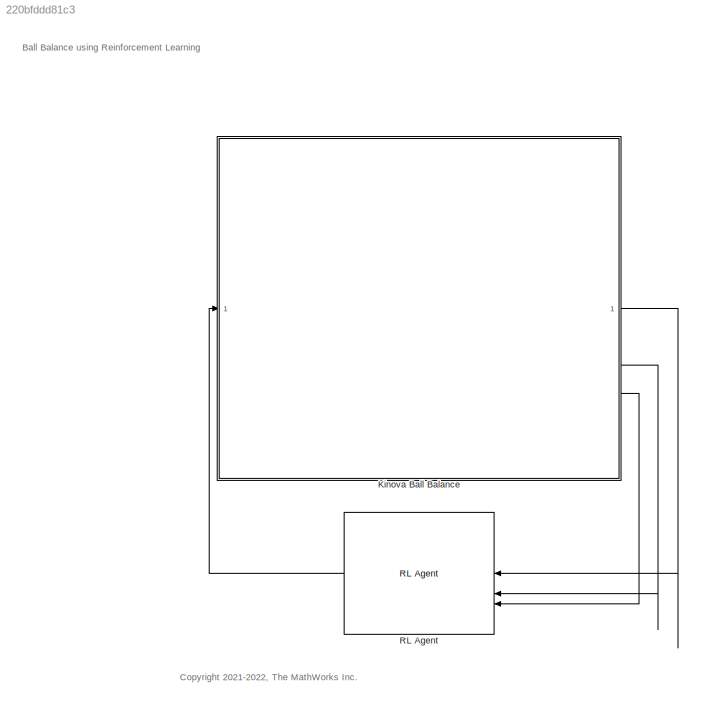
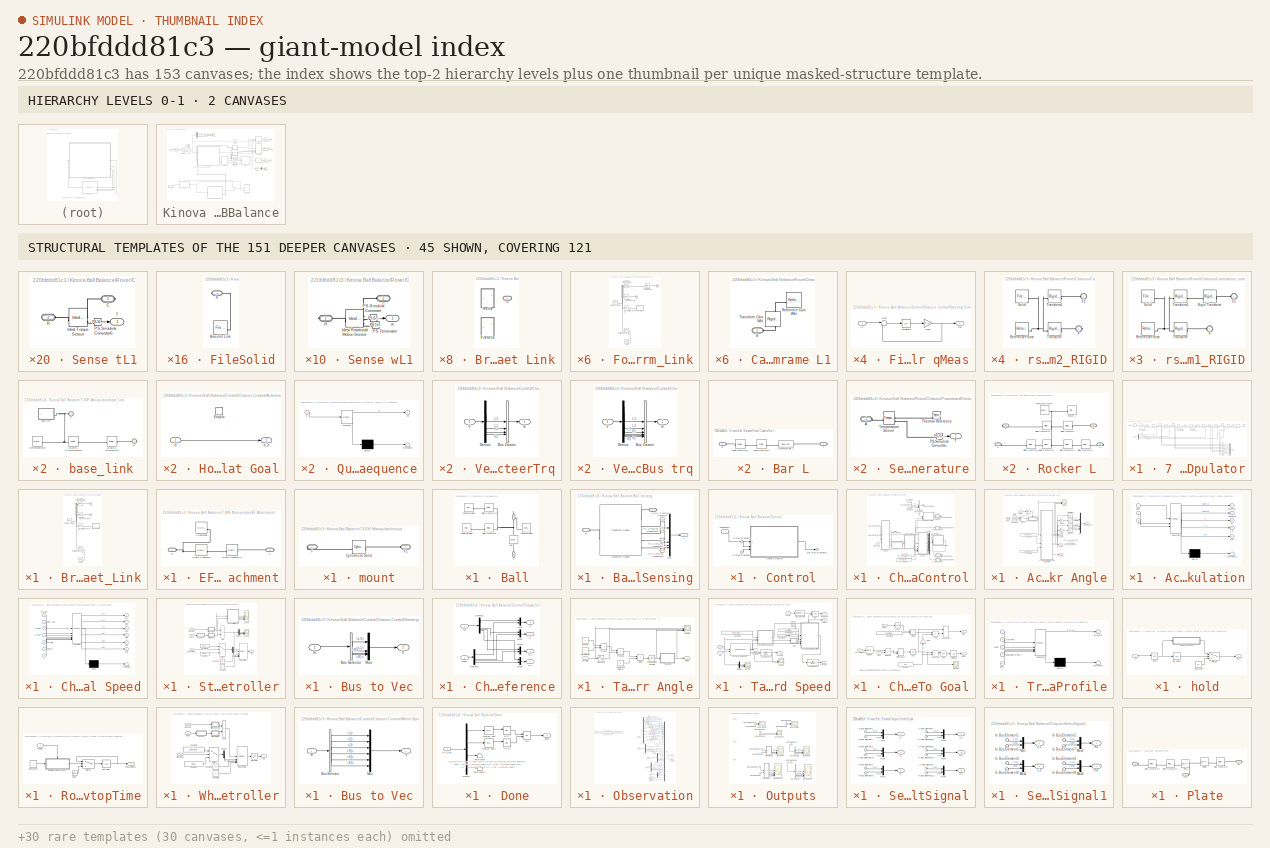
[diagram: thumbnail index - top-2 hierarchy levels (2 canvases) + 45 structural-template representatives of the remaining 151 canvases]
MODEL slx_220bfddd81c3
KIND model
CONFIG AbsTol = 1e-3
CONFIG EnableMultiTasking = off
CONFIG FixedStep = auto
CONFIG MaxStep = auto
CONFIG MinStep = auto
CONFIG RelTol = 1e-2
CONFIG SampleTimeConstraint = Unconstrained
CONFIG SolverName = ode15s
CONFIG StartTime = 0.0
CONFIG StopTime = 10.0
BLOCK [SubSystem] Kinova Ball Balance
BLOCK [Reference] Kinova Ball Balance/6-DOF Joint  REF=sm_lib/Joints/6-DOF Joint
  SourceBlock = sm_lib/Joints/6-DOF Joint
  SourceType = 6-DOF Joint
BLOCK [SubSystem] Kinova Ball Balance/7 DOF Manipulator
BLOCK [Reference] Kinova Ball Balance/7 DOF Manipulator/Actuator1  REF=sm_lib/Joints/Revolute Joint
  SourceBlock = sm_lib/Joints/Revolute Joint
  SourceType = Revolute Joint
BLOCK [Reference] Kinova Ball Balance/7 DOF Manipulator/Actuator2  REF=sm_lib/Joints/Revolute Joint
  SourceBlock = sm_lib/Joints/Revolute Joint
  SourceType = Revolute Joint
BLOCK [Reference] Kinova Ball Balance/7 DOF Manipulator/Actuator3  REF=sm_lib/Joints/Revolute Joint
  SourceBlock = sm_lib/Joints/Revolute Joint
  SourceType = Revolute Joint
BLOCK [Reference] Kinova Ball Balance/7 DOF Manipulator/Actuator4  REF=sm_lib/Joints/Revolute Joint
  SourceBlock = sm_lib/Joints/Revolute Joint
  SourceType = Revolute Joint
BLOCK [Reference] Kinova Ball Balance/7 DOF Manipulator/Actuator5  REF=sm_lib/Joints/Revolute Joint
  SourceBlock = sm_lib/Joints/Revolute Joint
  SourceType = Revolute Joint
BLOCK [Reference] Kinova Ball Balance/7 DOF Manipulator/Actuator6  REF=sm_lib/Joints/Revolute Joint
  SourceBlock = sm_lib/Joints/Revolute Joint
  SourceType = Revolute Joint
BLOCK [Reference] Kinova Ball Balance/7 DOF Manipulator/Actuator7  REF=sm_lib/Joints/Revolute Joint
  SourceBlock = sm_lib/Joints/Revolute Joint
  SourceType = Revolute Joint
BLOCK [SubSystem] Kinova Ball Balance/7 DOF Manipulator/Bracelet_Link
BLOCK [Reference] Kinova Ball Balance/7 DOF Manipulator/Bracelet_Link/Actuator7_AxisInvTransform  REF=sm_lib/Frames and
Transforms/Rigid
Transform
  SourceBlock = sm_lib/Frames and\nTransforms/Rigid\nTransform
  SourceType = Rigid\nTransform
BLOCK [SubSystem] Kinova Ball Balance/7 DOF Manipulator/Bracelet_Link/Bracelet Link
  LabelModeActiveChoice = Choice_1
  Variant = on
  VariantControl = Choice
  VariantControlMode = label
BLOCK [SubSystem] Kinova Ball Balance/7 DOF Manipulator/Bracelet_Link/Bracelet Link/FileSolid
  VariantControl = Choice_1
BLOCK [Reference] Kinova Ball Balance/7 DOF Manipulator/Bracelet_Link/Bracelet Link/FileSolid/Bracelet Link  REF=sm_lib/Body Elements/File Solid
  SourceBlock = sm_lib/Body Elements/File Solid
  SourceType = File Solid
BLOCK [PMIOPort] Kinova Ball Balance/7 DOF Manipulator/Bracelet_Link/Bracelet Link/FileSolid/R
  Side = Right
BLOCK [SubSystem] Kinova Ball Balance/7 DOF Manipulator/Bracelet_Link/Bracelet Link/Inertia
  VariantControl = Choice
BLOCK [Reference] Kinova Ball Balance/7 DOF Manipulator/Bracelet_Link/Bracelet Link/Inertia/Inertia1  REF=sm_lib/Body Elements/Inertia
  SourceBlock = sm_lib/Body Elements/Inertia
  SourceType = Inertia
BLOCK [PMIOPort] Kinova Ball Balance/7 DOF Manipulator/Bracelet_Link/Bracelet Link/Inertia/R
  Side = Right
BLOCK [PMIOPort] Kinova Ball Balance/7 DOF Manipulator/Bracelet_Link/Bracelet Link/R
  Side = Right
BLOCK [Reference] Kinova Ball Balance/7 DOF Manipulator/Bracelet_Link/Endeffector_OriginTransform  REF=sm_lib/Frames and
Transforms/Rigid
Transform
  SourceBlock = sm_lib/Frames and\nTransforms/Rigid\nTransform
  SourceType = Rigid\nTransform
BLOCK [PMIOPort] Kinova Ball Balance/7 DOF Manipulator/Bracelet_Link/F
  Side = Left
BLOCK [PMIOPort] Kinova Ball Balance/7 DOF Manipulator/Bracelet_Link/F1
  Port = 2
  Side = Right
BLOCK [Reference] Kinova Ball Balance/7 DOF Manipulator/Bracelet_Link/Inertia  REF=sm_lib/Body Elements/Inertia
  SourceBlock = sm_lib/Body Elements/Inertia
  SourceType = Inertia
BLOCK [Reference] Kinova Ball Balance/7 DOF Manipulator/Bracelet_Link/InertiaOriginTransform  REF=sm_lib/Frames and
Transforms/Rigid
Transform
  SourceBlock = sm_lib/Frames and\nTransforms/Rigid\nTransform
  SourceType = Rigid\nTransform
BLOCK [Reference] Kinova Ball Balance/7 DOF Manipulator/Bracelet_Link/ReferenceFrame  REF=sm_lib/Frames and
Transforms/Reference
Frame
  SourceBlock = sm_lib/Frames and\nTransforms/Reference\nFrame
  SourceType = Reference\nFrame
BLOCK [Reference] Kinova Ball Balance/7 DOF Manipulator/Bracelet_Link/VisualOriginTransform  REF=sm_lib/Frames and
Transforms/Rigid
Transform
  SourceBlock = sm_lib/Frames and\nTransforms/Rigid\nTransform
  SourceType = Rigid\nTransform
BLOCK [Constant] Kinova Ball Balance/7 DOF Manipulator/Constant1
  Value = R1_q0
BLOCK [Constant] Kinova Ball Balance/7 DOF Manipulator/Constant3
  Value = R4_q0
BLOCK [Constant] Kinova Ball Balance/7 DOF Manipulator/Constant4
  Value = R5_q0
BLOCK [Demux] Kinova Ball Balance/7 DOF Manipulator/Demux1
BLOCK [SubSystem] Kinova Ball Balance/7 DOF Manipulator/EF Attachment
BLOCK [Reference] Kinova Ball Balance/7 DOF Manipulator/EF Attachment/Attachment  REF=sm_lib/Body Elements/Cylindrical Solid
  SourceBlock = sm_lib/Body Elements/Cylindrical Solid
  SourceType = Cylindrical Solid
BLOCK [PMIOPort] Kinova Ball Balance/7 DOF Manipulator/EF Attachment/B
  Side = Left
BLOCK [PMIOPort] Kinova Ball Balance/7 DOF Manipulator/EF Attachment/F
  Port = 2
  Side = Right
BLOCK [Reference] Kinova Ball Balance/7 DOF Manipulator/EF Attachment/Rigid Transform  REF=sm_lib/Frames and
Transforms/Rigid
Transform
  SourceBlock = sm_lib/Frames and\nTransforms/Rigid\nTransform
  SourceType = Rigid\nTransform
BLOCK [Reference] Kinova Ball Balance/7 DOF Manipulator/EF Attachment/Rigid Transform1  REF=sm_lib/Frames and
Transforms/Rigid
Transform
  SourceBlock = sm_lib/Frames and\nTransforms/Rigid\nTransform
  SourceType = Rigid\nTransform
BLOCK [PMIOPort] Kinova Ball Balance/7 DOF Manipulator/End Effector
  Port = 2
  Side = Right
BLOCK [Reference] Kinova Ball Balance/7 DOF Manipulator/Endeffector  REF=sm_lib/Joints/Weld Joint
  SourceBlock = sm_lib/Joints/Weld Joint
  SourceType = Weld Joint
BLOCK [SubSystem] Kinova Ball Balance/7 DOF Manipulator/ForeArm_Link
BLOCK [Reference] Kinova Ball Balance/7 DOF Manipulator/ForeArm_Link/Actuator4_AxisInvTransform  REF=sm_lib/Frames and
Transforms/Rigid
Transform
  SourceBlock = sm_lib/Frames and\nTransforms/Rigid\nTransform
  SourceType = Rigid\nTransform
BLOCK [Reference] Kinova Ball Balance/7 DOF Manipulator/ForeArm_Link/Actuator5_AxisTransform  REF=sm_lib/Frames and
Transforms/Rigid
Transform
  SourceBlock = sm_lib/Frames and\nTransforms/Rigid\nTransform
  SourceType = Rigid\nTransform
BLOCK [Reference] Kinova Ball Balance/7 DOF Manipulator/ForeArm_Link/Actuator5_OriginTransform  REF=sm_lib/Frames and
Transforms/Rigid
Transform
  SourceBlock = sm_lib/Frames and\nTransforms/Rigid\nTransform
  SourceType = Rigid\nTransform
BLOCK [PMIOPort] Kinova Ball Balance/7 DOF Manipulator/ForeArm_Link/F
  Side = Left
BLOCK [PMIOPort] Kinova Ball Balance/7 DOF Manipulator/ForeArm_Link/F1
  Port = 2
  Side = Right
BLOCK [SubSystem] Kinova Ball Balance/7 DOF Manipulator/ForeArm_Link/ForeArm Link
  LabelModeActiveChoice = Choice_1
  Variant = on
  VariantControl = Choice
  VariantControlMode = label
BLOCK [SubSystem] Kinova Ball Balance/7 DOF Manipulator/ForeArm_Link/ForeArm Link/FileSolid
  VariantControl = Choice_1
BLOCK [Reference] Kinova Ball Balance/7 DOF Manipulator/ForeArm_Link/ForeArm Link/FileSolid/Forearm Link  REF=sm_lib/Body Elements/File Solid
  SourceBlock = sm_lib/Body Elements/File Solid
  SourceType = File Solid
BLOCK [PMIOPort] Kinova Ball Balance/7 DOF Manipulator/ForeArm_Link/ForeArm Link/FileSolid/R
  Side = Right
BLOCK [SubSystem] Kinova Ball Balance/7 DOF Manipulator/ForeArm_Link/ForeArm Link/Inertia
  VariantControl = Choice
BLOCK [Reference] Kinova Ball Balance/7 DOF Manipulator/ForeArm_Link/ForeArm Link/Inertia/Inertia1  REF=sm_lib/Body Elements/Inertia
  SourceBlock = sm_lib/Body Elements/Inertia
  SourceType = Inertia
BLOCK [PMIOPort] Kinova Ball Balance/7 DOF Manipulator/ForeArm_Link/ForeArm Link/Inertia/R
  Side = Right
BLOCK [PMIOPort] Kinova Ball Balance/7 DOF Manipulator/ForeArm_Link/ForeArm Link/R
  Side = Right
BLOCK [Reference] Kinova Ball Balance/7 DOF Manipulator/ForeArm_Link/Inertia  REF=sm_lib/Body Elements/Inertia
  SourceBlock = sm_lib/Body Elements/Inertia
  SourceType = Inertia
BLOCK [Reference] Kinova Ball Balance/7 DOF Manipulator/ForeArm_Link/InertiaOriginTransform  REF=sm_lib/Frames and
Transforms/Rigid
Transform
  SourceBlock = sm_lib/Frames and\nTransforms/Rigid\nTransform
  SourceType = Rigid\nTransform
BLOCK [Reference] Kinova Ball Balance/7 DOF Manipulator/ForeArm_Link/ReferenceFrame  REF=sm_lib/Frames and
Transforms/Reference
Frame
  SourceBlock = sm_lib/Frames and\nTransforms/Reference\nFrame
  SourceType = Reference\nFrame
BLOCK [Reference] Kinova Ball Balance/7 DOF Manipulator/ForeArm_Link/VisualOriginTransform  REF=sm_lib/Frames and
Transforms/Rigid
Transform
  SourceBlock = sm_lib/Frames and\nTransforms/Rigid\nTransform
  SourceType = Rigid\nTransform
BLOCK [SubSystem] Kinova Ball Balance/7 DOF Manipulator/HalfArm1_Link
BLOCK [Reference] Kinova Ball Balance/7 DOF Manipulator/HalfArm1_Link/Actuator2_AxisInvTransform  REF=sm_lib/Frames and
Transforms/Rigid
Transform
  SourceBlock = sm_lib/Frames and\nTransforms/Rigid\nTransform
  SourceType = Rigid\nTransform
BLOCK [Reference] Kinova Ball Balance/7 DOF Manipulator/HalfArm1_Link/Actuator3_AxisTransform  REF=sm_lib/Frames and
Transforms/Rigid
Transform
  SourceBlock = sm_lib/Frames and\nTransforms/Rigid\nTransform
  SourceType = Rigid\nTransform
BLOCK [Reference] Kinova Ball Balance/7 DOF Manipulator/HalfArm1_Link/Actuator3_OriginTransform  REF=sm_lib/Frames and
Transforms/Rigid
Transform
  SourceBlock = sm_lib/Frames and\nTransforms/Rigid\nTransform
  SourceType = Rigid\nTransform
BLOCK [PMIOPort] Kinova Ball Balance/7 DOF Manipulator/HalfArm1_Link/F
  Side = Left
BLOCK [PMIOPort] Kinova Ball Balance/7 DOF Manipulator/HalfArm1_Link/F1
  Port = 2
  Side = Right
BLOCK [SubSystem] Kinova Ball Balance/7 DOF Manipulator/HalfArm1_Link/HalfArm1 Link
  LabelModeActiveChoice = Choice_1
  Variant = on
  VariantControl = Choice
  VariantControlMode = label
BLOCK [SubSystem] Kinova Ball Balance/7 DOF Manipulator/HalfArm1_Link/HalfArm1 Link/FileSolid
  VariantControl = Choice_1
BLOCK [Reference] Kinova Ball Balance/7 DOF Manipulator/HalfArm1_Link/HalfArm1 Link/FileSolid/Half Arm1 Link  REF=sm_lib/Body Elements/File Solid
  SourceBlock = sm_lib/Body Elements/File Solid
  SourceType = File Solid
BLOCK [PMIOPort] Kinova Ball Balance/7 DOF Manipulator/HalfArm1_Link/HalfArm1 Link/FileSolid/R
  Side = Right
BLOCK [SubSystem] Kinova Ball Balance/7 DOF Manipulator/HalfArm1_Link/HalfArm1 Link/Inertia
  VariantControl = Choice
BLOCK [Reference] Kinova Ball Balance/7 DOF Manipulator/HalfArm1_Link/HalfArm1 Link/Inertia/Inertia1  REF=sm_lib/Body Elements/Inertia
  SourceBlock = sm_lib/Body Elements/Inertia
  SourceType = Inertia
BLOCK [PMIOPort] Kinova Ball Balance/7 DOF Manipulator/HalfArm1_Link/HalfArm1 Link/Inertia/R
  Side = Right
BLOCK [PMIOPort] Kinova Ball Balance/7 DOF Manipulator/HalfArm1_Link/HalfArm1 Link/R
  Side = Right
BLOCK [Reference] Kinova Ball Balance/7 DOF Manipulator/HalfArm1_Link/Inertia  REF=sm_lib/Body Elements/Inertia
  SourceBlock = sm_lib/Body Elements/Inertia
  SourceType = Inertia
BLOCK [Reference] Kinova Ball Balance/7 DOF Manipulator/HalfArm1_Link/InertiaOriginTransform  REF=sm_lib/Frames and
Transforms/Rigid
Transform
  SourceBlock = sm_lib/Frames and\nTransforms/Rigid\nTransform
  SourceType = Rigid\nTransform
BLOCK [Reference] Kinova Ball Balance/7 DOF Manipulator/HalfArm1_Link/ReferenceFrame  REF=sm_lib/Frames and
Transforms/Reference
Frame
  SourceBlock = sm_lib/Frames and\nTransforms/Reference\nFrame
  SourceType = Reference\nFrame
BLOCK [Reference] Kinova Ball Balance/7 DOF Manipulator/HalfArm1_Link/VisualOriginTransform  REF=sm_lib/Frames and
Transforms/Rigid
Transform
  SourceBlock = sm_lib/Frames and\nTransforms/Rigid\nTransform
  SourceType = Rigid\nTransform
BLOCK [SubSystem] Kinova Ball Balance/7 DOF Manipulator/HalfArm2_Link
BLOCK [Reference] Kinova Ball Balance/7 DOF Manipulator/HalfArm2_Link/Actuator3_AxisInvTransform  REF=sm_lib/Frames and
Transforms/Rigid
Transform
  SourceBlock = sm_lib/Frames and\nTransforms/Rigid\nTransform
  SourceType = Rigid\nTransform
BLOCK [Reference] Kinova Ball Balance/7 DOF Manipulator/HalfArm2_Link/Actuator4_AxisTransform  REF=sm_lib/Frames and
Transforms/Rigid
Transform
  SourceBlock = sm_lib/Frames and\nTransforms/Rigid\nTransform
  SourceType = Rigid\nTransform
BLOCK [Reference] Kinova Ball Balance/7 DOF Manipulator/HalfArm2_Link/Actuator4_OriginTransform  REF=sm_lib/Frames and
Transforms/Rigid
Transform
  SourceBlock = sm_lib/Frames and\nTransforms/Rigid\nTransform
  SourceType = Rigid\nTransform
BLOCK [PMIOPort] Kinova Ball Balance/7 DOF Manipulator/HalfArm2_Link/F
  Side = Left
BLOCK [PMIOPort] Kinova Ball Balance/7 DOF Manipulator/HalfArm2_Link/F1
  Port = 2
  Side = Right
BLOCK [SubSystem] Kinova Ball Balance/7 DOF Manipulator/HalfArm2_Link/HalfArm2 Link
  LabelModeActiveChoice = Choice_1
  Variant = on
  VariantControl = Choice
  VariantControlMode = label
BLOCK [SubSystem] Kinova Ball Balance/7 DOF Manipulator/HalfArm2_Link/HalfArm2 Link/FileSolid
  VariantControl = Choice_1
BLOCK [Reference] Kinova Ball Balance/7 DOF Manipulator/HalfArm2_Link/HalfArm2 Link/FileSolid/Half Arm2 Link  REF=sm_lib/Body Elements/File Solid
  SourceBlock = sm_lib/Body Elements/File Solid
  SourceType = File Solid
BLOCK [PMIOPort] Kinova Ball Balance/7 DOF Manipulator/HalfArm2_Link/HalfArm2 Link/FileSolid/R
  Side = Right
BLOCK [SubSystem] Kinova Ball Balance/7 DOF Manipulator/HalfArm2_Link/HalfArm2 Link/Inertia
  VariantControl = Choice
BLOCK [Reference] Kinova Ball Balance/7 DOF Manipulator/HalfArm2_Link/HalfArm2 Link/Inertia/Inertia1  REF=sm_lib/Body Elements/Inertia
  SourceBlock = sm_lib/Body Elements/Inertia
  SourceType = Inertia
BLOCK [PMIOPort] Kinova Ball Balance/7 DOF Manipulator/HalfArm2_Link/HalfArm2 Link/Inertia/R
  Side = Right
BLOCK [PMIOPort] Kinova Ball Balance/7 DOF Manipulator/HalfArm2_Link/HalfArm2 Link/R
  Side = Right
BLOCK [Reference] Kinova Ball Balance/7 DOF Manipulator/HalfArm2_Link/Inertia  REF=sm_lib/Body Elements/Inertia
  SourceBlock = sm_lib/Body Elements/Inertia
  SourceType = Inertia
BLOCK [Reference] Kinova Ball Balance/7 DOF Manipulator/HalfArm2_Link/InertiaOriginTransform  REF=sm_lib/Frames and
Transforms/Rigid
Transform
  SourceBlock = sm_lib/Frames and\nTransforms/Rigid\nTransform
  SourceType = Rigid\nTransform
BLOCK [Reference] Kinova Ball Balance/7 DOF Manipulator/HalfArm2_Link/ReferenceFrame  REF=sm_lib/Frames and
Transforms/Reference
Frame
  SourceBlock = sm_lib/Frames and\nTransforms/Reference\nFrame
  SourceType = Reference\nFrame
BLOCK [Reference] Kinova Ball Balance/7 DOF Manipulator/HalfArm2_Link/VisualOriginTransform  REF=sm_lib/Frames and
Transforms/Rigid
Transform
  SourceBlock = sm_lib/Frames and\nTransforms/Rigid\nTransform
  SourceType = Rigid\nTransform
BLOCK [Mux] Kinova Ball Balance/7 DOF Manipulator/Mux1
  DisplayOption = bar
  Inputs = 8
BLOCK [Reference] Kinova Ball Balance/7 DOF Manipulator/PSS11  REF=nesl_utility_internal/PS-Simulink
Converter
  NameLocation = top
  SourceBlock = nesl_utility_internal/PS-Simulink\nConverter
  SourceType = PS-Simulink\nConverter
BLOCK [Reference] Kinova Ball Balance/7 DOF Manipulator/PSS12  REF=nesl_utility_internal/PS-Simulink
Converter
  NameLocation = top
  SourceBlock = nesl_utility_internal/PS-Simulink\nConverter
  SourceType = PS-Simulink\nConverter
BLOCK [Reference] Kinova Ball Balance/7 DOF Manipulator/PSS13  REF=nesl_utility_internal/PS-Simulink
Converter
  NameLocation = top
  SourceBlock = nesl_utility_internal/PS-Simulink\nConverter
  SourceType = PS-Simulink\nConverter
BLOCK [Reference] Kinova Ball Balance/7 DOF Manipulator/PSS2  REF=nesl_utility_internal/PS-Simulink
Converter
  NameLocation = top
  SourceBlock = nesl_utility_internal/PS-Simulink\nConverter
  SourceType = PS-Simulink\nConverter
BLOCK [Reference] Kinova Ball Balance/7 DOF Manipulator/PSS3  REF=nesl_utility_internal/PS-Simulink
Converter
  NameLocation = top
  SourceBlock = nesl_utility_internal/PS-Simulink\nConverter
  SourceType = PS-Simulink\nConverter
BLOCK [Reference] Kinova Ball Balance/7 DOF Manipulator/PSS4  REF=nesl_utility_internal/PS-Simulink
Converter
  NameLocation = top
  SourceBlock = nesl_utility_internal/PS-Simulink\nConverter
  SourceType = PS-Simulink\nConverter
BLOCK [Reference] Kinova Ball Balance/7 DOF Manipulator/PSS5  REF=nesl_utility_internal/PS-Simulink
Converter
  NameLocation = top
  SourceBlock = nesl_utility_internal/PS-Simulink\nConverter
  SourceType = PS-Simulink\nConverter
BLOCK [Reference] Kinova Ball Balance/7 DOF Manipulator/PSS8  REF=nesl_utility_internal/PS-Simulink
Converter
  NameLocation = top
  SourceBlock = nesl_utility_internal/PS-Simulink\nConverter
  SourceType = PS-Simulink\nConverter
BLOCK [Outport] Kinova Ball Balance/7 DOF Manipulator/PV
  NameLocation = top
BLOCK [Reference] Kinova Ball Balance/7 DOF Manipulator/SPS1  REF=nesl_utility_internal/Simulink-PS
Converter
  NameLocation = top
  SourceBlock = nesl_utility_internal/Simulink-PS\nConverter
  SourceType = Simulink-PS\nConverter
BLOCK [Reference] Kinova Ball Balance/7 DOF Manipulator/SPS2  REF=nesl_utility_internal/Simulink-PS
Converter
  NameLocation = top
  SourceBlock = nesl_utility_internal/Simulink-PS\nConverter
  SourceType = Simulink-PS\nConverter
BLOCK [Reference] Kinova Ball Balance/7 DOF Manipulator/SPS3  REF=nesl_utility_internal/Simulink-PS
Converter
  NameLocation = top
  SourceBlock = nesl_utility_internal/Simulink-PS\nConverter
  SourceType = Simulink-PS\nConverter
BLOCK [Reference] Kinova Ball Balance/7 DOF Manipulator/SPS4  REF=nesl_utility_internal/Simulink-PS
Converter
  NameLocation = top
  SourceBlock = nesl_utility_internal/Simulink-PS\nConverter
  SourceType = Simulink-PS\nConverter
BLOCK [SubSystem] Kinova Ball Balance/7 DOF Manipulator/Shoulder_Link
BLOCK [Reference] Kinova Ball Balance/7 DOF Manipulator/Shoulder_Link/Actuator1_AxisInvTransform  REF=sm_lib/Frames and
Transforms/Rigid
Transform
  SourceBlock = sm_lib/Frames and\nTransforms/Rigid\nTransform
  SourceType = Rigid\nTransform
BLOCK [Reference] Kinova Ball Balance/7 DOF Manipulator/Shoulder_Link/Actuator2_AxisTransform  REF=sm_lib/Frames and
Transforms/Rigid
Transform
  SourceBlock = sm_lib/Frames and\nTransforms/Rigid\nTransform
  SourceType = Rigid\nTransform
BLOCK [Reference] Kinova Ball Balance/7 DOF Manipulator/Shoulder_Link/Actuator2_OriginTransform  REF=sm_lib/Frames and
Transforms/Rigid
Transform
  SourceBlock = sm_lib/Frames and\nTransforms/Rigid\nTransform
  SourceType = Rigid\nTransform
BLOCK [PMIOPort] Kinova Ball Balance/7 DOF Manipulator/Shoulder_Link/F
  Side = Left
BLOCK [PMIOPort] Kinova Ball Balance/7 DOF Manipulator/Shoulder_Link/F1
  Port = 2
  Side = Right
BLOCK [Reference] Kinova Ball Balance/7 DOF Manipulator/Shoulder_Link/Inertia  REF=sm_lib/Body Elements/Inertia
  SourceBlock = sm_lib/Body Elements/Inertia
  SourceType = Inertia
BLOCK [Reference] Kinova Ball Balance/7 DOF Manipulator/Shoulder_Link/InertiaOriginTransform  REF=sm_lib/Frames and
Transforms/Rigid
Transform
  SourceBlock = sm_lib/Frames and\nTransforms/Rigid\nTransform
  SourceType = Rigid\nTransform
BLOCK [Reference] Kinova Ball Balance/7 DOF Manipulator/Shoulder_Link/ReferenceFrame  REF=sm_lib/Frames and
Transforms/Reference
Frame
  SourceBlock = sm_lib/Frames and\nTransforms/Reference\nFrame
  SourceType = Reference\nFrame
BLOCK [SubSystem] Kinova Ball Balance/7 DOF Manipulator/Shoulder_Link/Shoulder Link
  LabelModeActiveChoice = Choice_1
  Variant = on
  VariantControl = Choice
  VariantControlMode = label
BLOCK [SubSystem] Kinova Ball Balance/7 DOF Manipulator/Shoulder_Link/Shoulder Link/FileSolid
  VariantControl = Choice_1
BLOCK [PMIOPort] Kinova Ball Balance/7 DOF Manipulator/Shoulder_Link/Shoulder Link/FileSolid/R
  Side = Right
BLOCK [Reference] Kinova Ball Balance/7 DOF Manipulator/Shoulder_Link/Shoulder Link/FileSolid/Shoulder Link  REF=sm_lib/Body Elements/File Solid
  SourceBlock = sm_lib/Body Elements/File Solid
  SourceType = File Solid
BLOCK [SubSystem] Kinova Ball Balance/7 DOF Manipulator/Shoulder_Link/Shoulder Link/Inertia
  VariantControl = Choice
BLOCK [Reference] Kinova Ball Balance/7 DOF Manipulator/Shoulder_Link/Shoulder Link/Inertia/Inertia1  REF=sm_lib/Body Elements/Inertia
  SourceBlock = sm_lib/Body Elements/Inertia
  SourceType = Inertia
BLOCK [PMIOPort] Kinova Ball Balance/7 DOF Manipulator/Shoulder_Link/Shoulder Link/Inertia/R
  Side = Right
BLOCK [PMIOPort] Kinova Ball Balance/7 DOF Manipulator/Shoulder_Link/Shoulder Link/R
  Side = Right
BLOCK [Reference] Kinova Ball Balance/7 DOF Manipulator/Shoulder_Link/VisualOriginTransform  REF=sm_lib/Frames and
Transforms/Rigid
Transform
  SourceBlock = sm_lib/Frames and\nTransforms/Rigid\nTransform
  SourceType = Rigid\nTransform
BLOCK [Reference] Kinova Ball Balance/7 DOF Manipulator/Simulink-PS Converter1  REF=nesl_utility_internal/Simulink-PS
Converter
  SourceBlock = nesl_utility_internal/Simulink-PS\nConverter
  SourceType = Simulink-PS\nConverter
BLOCK [Reference] Kinova Ball Balance/7 DOF Manipulator/Simulink-PS Converter3  REF=nesl_utility_internal/Simulink-PS
Converter
  SourceBlock = nesl_utility_internal/Simulink-PS\nConverter
  SourceType = Simulink-PS\nConverter
BLOCK [Reference] Kinova Ball Balance/7 DOF Manipulator/Simulink-PS Converter4  REF=nesl_utility_internal/Simulink-PS
Converter
  SourceBlock = nesl_utility_internal/Simulink-PS\nConverter
  SourceType = Simulink-PS\nConverter
BLOCK [PMIOPort] Kinova Ball Balance/7 DOF Manipulator/World
  Side = Left
BLOCK [SubSystem] Kinova Ball Balance/7 DOF Manipulator/Wrist1_Link
BLOCK [Reference] Kinova Ball Balance/7 DOF Manipulator/Wrist1_Link/Actuator5_AxisInvTransform  REF=sm_lib/Frames and
Transforms/Rigid
Transform
  SourceBlock = sm_lib/Frames and\nTransforms/Rigid\nTransform
  SourceType = Rigid\nTransform
BLOCK [Reference] Kinova Ball Balance/7 DOF Manipulator/Wrist1_Link/Actuator6_AxisTransform  REF=sm_lib/Frames and
Transforms/Rigid
Transform
  SourceBlock = sm_lib/Frames and\nTransforms/Rigid\nTransform
  SourceType = Rigid\nTransform
BLOCK [Reference] Kinova Ball Balance/7 DOF Manipulator/Wrist1_Link/Actuator6_OriginTransform  REF=sm_lib/Frames and
Transforms/Rigid
Transform
  SourceBlock = sm_lib/Frames and\nTransforms/Rigid\nTransform
  SourceType = Rigid\nTransform
BLOCK [PMIOPort] Kinova Ball Balance/7 DOF Manipulator/Wrist1_Link/F
  Side = Left
BLOCK [PMIOPort] Kinova Ball Balance/7 DOF Manipulator/Wrist1_Link/F1
  Port = 2
  Side = Right
BLOCK [Reference] Kinova Ball Balance/7 DOF Manipulator/Wrist1_Link/Inertia  REF=sm_lib/Body Elements/Inertia
  SourceBlock = sm_lib/Body Elements/Inertia
  SourceType = Inertia
BLOCK [Reference] Kinova Ball Balance/7 DOF Manipulator/Wrist1_Link/InertiaOriginTransform  REF=sm_lib/Frames and
Transforms/Rigid
Transform
  SourceBlock = sm_lib/Frames and\nTransforms/Rigid\nTransform
  SourceType = Rigid\nTransform
BLOCK [Reference] Kinova Ball Balance/7 DOF Manipulator/Wrist1_Link/ReferenceFrame  REF=sm_lib/Frames and
Transforms/Reference
Frame
  SourceBlock = sm_lib/Frames and\nTransforms/Reference\nFrame
  SourceType = Reference\nFrame
BLOCK [Reference] Kinova Ball Balance/7 DOF Manipulator/Wrist1_Link/VisualOriginTransform  REF=sm_lib/Frames and
Transforms/Rigid
Transform
  SourceBlock = sm_lib/Frames and\nTransforms/Rigid\nTransform
  SourceType = Rigid\nTransform
BLOCK [SubSystem] Kinova Ball Balance/7 DOF Manipulator/Wrist1_Link/Wrist1 Link
  LabelModeActiveChoice = Choice_1
  Variant = on
  VariantControl = Choice
  VariantControlMode = label
BLOCK [SubSystem] Kinova Ball Balance/7 DOF Manipulator/Wrist1_Link/Wrist1 Link/FileSolid
  VariantControl = Choice_1
BLOCK [PMIOPort] Kinova Ball Balance/7 DOF Manipulator/Wrist1_Link/Wrist1 Link/FileSolid/R
  Side = Right
BLOCK [Reference] Kinova Ball Balance/7 DOF Manipulator/Wrist1_Link/Wrist1 Link/FileSolid/Wrist1 Link  REF=sm_lib/Body Elements/File Solid
  SourceBlock = sm_lib/Body Elements/File Solid
  SourceType = File Solid
BLOCK [SubSystem] Kinova Ball Balance/7 DOF Manipulator/Wrist1_Link/Wrist1 Link/Inertia
  VariantControl = Choice
BLOCK [Reference] Kinova Ball Balance/7 DOF Manipulator/Wrist1_Link/Wrist1 Link/Inertia/Inertia1  REF=sm_lib/Body Elements/Inertia
  SourceBlock = sm_lib/Body Elements/Inertia
  SourceType = Inertia
BLOCK [PMIOPort] Kinova Ball Balance/7 DOF Manipulator/Wrist1_Link/Wrist1 Link/Inertia/R
  Side = Right
BLOCK [PMIOPort] Kinova Ball Balance/7 DOF Manipulator/Wrist1_Link/Wrist1 Link/R
  Side = Right
BLOCK [SubSystem] Kinova Ball Balance/7 DOF Manipulator/Wrist2_Link
BLOCK [Reference] Kinova Ball Balance/7 DOF Manipulator/Wrist2_Link/Actuator6_AxisInvTransform  REF=sm_lib/Frames and
Transforms/Rigid
Transform
  SourceBlock = sm_lib/Frames and\nTransforms/Rigid\nTransform
  SourceType = Rigid\nTransform
BLOCK [Reference] Kinova Ball Balance/7 DOF Manipulator/Wrist2_Link/Actuator7_AxisTransform  REF=sm_lib/Frames and
Transforms/Rigid
Transform
  SourceBlock = sm_lib/Frames and\nTransforms/Rigid\nTransform
  SourceType = Rigid\nTransform
BLOCK [Reference] Kinova Ball Balance/7 DOF Manipulator/Wrist2_Link/Actuator7_OriginTransform  REF=sm_lib/Frames and
Transforms/Rigid
Transform
  SourceBlock = sm_lib/Frames and\nTransforms/Rigid\nTransform
  SourceType = Rigid\nTransform
BLOCK [PMIOPort] Kinova Ball Balance/7 DOF Manipulator/Wrist2_Link/F
  Side = Left
BLOCK [PMIOPort] Kinova Ball Balance/7 DOF Manipulator/Wrist2_Link/F1
  Port = 2
  Side = Right
BLOCK [Reference] Kinova Ball Balance/7 DOF Manipulator/Wrist2_Link/Inertia  REF=sm_lib/Body Elements/Inertia
  SourceBlock = sm_lib/Body Elements/Inertia
  SourceType = Inertia
BLOCK [Reference] Kinova Ball Balance/7 DOF Manipulator/Wrist2_Link/InertiaOriginTransform  REF=sm_lib/Frames and
Transforms/Rigid
Transform
  SourceBlock = sm_lib/Frames and\nTransforms/Rigid\nTransform
  SourceType = Rigid\nTransform
BLOCK [Reference] Kinova Ball Balance/7 DOF Manipulator/Wrist2_Link/ReferenceFrame  REF=sm_lib/Frames and
Transforms/Reference
Frame
  SourceBlock = sm_lib/Frames and\nTransforms/Reference\nFrame
  SourceType = Reference\nFrame
BLOCK [Reference] Kinova Ball Balance/7 DOF Manipulator/Wrist2_Link/VisualOriginTransform  REF=sm_lib/Frames and
Transforms/Rigid
Transform
  SourceBlock = sm_lib/Frames and\nTransforms/Rigid\nTransform
  SourceType = Rigid\nTransform
BLOCK [SubSystem] Kinova Ball Balance/7 DOF Manipulator/Wrist2_Link/Wrist2 Link
  LabelModeActiveChoice = Choice_1
  Variant = on
  VariantControl = Choice
  VariantControlMode = label
BLOCK [SubSystem] Kinova Ball Balance/7 DOF Manipulator/Wrist2_Link/Wrist2 Link/FileSolid
  VariantControl = Choice_1
BLOCK [PMIOPort] Kinova Ball Balance/7 DOF Manipulator/Wrist2_Link/Wrist2 Link/FileSolid/R
  Side = Right
BLOCK [Reference] Kinova Ball Balance/7 DOF Manipulator/Wrist2_Link/Wrist2 Link/FileSolid/Wrist2 Link  REF=sm_lib/Body Elements/File Solid
  SourceBlock = sm_lib/Body Elements/File Solid
  SourceType = File Solid
BLOCK [SubSystem] Kinova Ball Balance/7 DOF Manipulator/Wrist2_Link/Wrist2 Link/Inertia
  VariantControl = Choice
BLOCK [Reference] Kinova Ball Balance/7 DOF Manipulator/Wrist2_Link/Wrist2 Link/Inertia/Inertia1  REF=sm_lib/Body Elements/Inertia
  SourceBlock = sm_lib/Body Elements/Inertia
  SourceType = Inertia
BLOCK [PMIOPort] Kinova Ball Balance/7 DOF Manipulator/Wrist2_Link/Wrist2 Link/Inertia/R
  Side = Right
BLOCK [PMIOPort] Kinova Ball Balance/7 DOF Manipulator/Wrist2_Link/Wrist2 Link/R
  Side = Right
BLOCK [SubSystem] Kinova Ball Balance/7 DOF Manipulator/base_link
BLOCK [Reference] Kinova Ball Balance/7 DOF Manipulator/base_link/Actuator1_AxisTransform  REF=sm_lib/Frames and
Transforms/Rigid
Transform
  SourceBlock = sm_lib/Frames and\nTransforms/Rigid\nTransform
  SourceType = Rigid\nTransform
BLOCK [Reference] Kinova Ball Balance/7 DOF Manipulator/base_link/Actuator1_OriginTransform  REF=sm_lib/Frames and
Transforms/Rigid
Transform
  SourceBlock = sm_lib/Frames and\nTransforms/Rigid\nTransform
  SourceType = Rigid\nTransform
BLOCK [SubSystem] Kinova Ball Balance/7 DOF Manipulator/base_link/Base Link
  LabelModeActiveChoice = Choice_1
  Variant = on
  VariantControl = Choice
  VariantControlMode = label
BLOCK [SubSystem] Kinova Ball Balance/7 DOF Manipulator/base_link/Base Link/FileSolid
  VariantControl = Choice_1
BLOCK [Reference] Kinova Ball Balance/7 DOF Manipulator/base_link/Base Link/FileSolid/Base Link  REF=sm_lib/Body Elements/File Solid
  SourceBlock = sm_lib/Body Elements/File Solid
  SourceType = File Solid
BLOCK [PMIOPort] Kinova Ball Balance/7 DOF Manipulator/base_link/Base Link/FileSolid/R
  Side = Right
BLOCK [SubSystem] Kinova Ball Balance/7 DOF Manipulator/base_link/Base Link/Inertia
  VariantControl = Choice
BLOCK [Reference] Kinova Ball Balance/7 DOF Manipulator/base_link/Base Link/Inertia/Inertia  REF=sm_lib/Body Elements/Inertia
  SourceBlock = sm_lib/Body Elements/Inertia
  SourceType = Inertia
BLOCK [PMIOPort] Kinova Ball Balance/7 DOF Manipulator/base_link/Base Link/Inertia/R
  Side = Right
BLOCK [PMIOPort] Kinova Ball Balance/7 DOF Manipulator/base_link/Base Link/R
  Side = Right
BLOCK [PMIOPort] Kinova Ball Balance/7 DOF Manipulator/base_link/F
  NameLocation = top
  Side = Left
BLOCK [PMIOPort] Kinova Ball Balance/7 DOF Manipulator/base_link/F1
  Port = 2
  Side = Right
BLOCK [Reference] Kinova Ball Balance/7 DOF Manipulator/base_link/ReferenceFrame  REF=sm_lib/Frames and
Transforms/Reference
Frame
  SourceBlock = sm_lib/Frames and\nTransforms/Reference\nFrame
  SourceType = Reference\nFrame
BLOCK [SubSystem] Kinova Ball Balance/7 DOF Manipulator/mount
BLOCK [Reference] Kinova Ball Balance/7 DOF Manipulator/mount/Cylindrical Solid  REF=sm_lib/Body Elements/Cylindrical Solid
  NameLocation = top
  SourceBlock = sm_lib/Body Elements/Cylindrical Solid
  SourceType = Cylindrical Solid
BLOCK [PMIOPort] Kinova Ball Balance/7 DOF Manipulator/mount/F
  Side = Right
BLOCK [PMIOPort] Kinova Ball Balance/7 DOF Manipulator/mount/F1
  Port = 2
  Side = Left
BLOCK [Inport] Kinova Ball Balance/7 DOF Manipulator/torque
  NameLocation = top
BLOCK [Scope] Kinova Ball Balance/Action
  Floating = off
  NumInputPorts = 1
  ScopeSpecificationString = Simulink.scopes.TimeScopeBlockCfg('CurrentConfiguration', extmgr.ConfigurationSet(extmgr.Configuration('Core','General UI',true),extmgr.Configuration('Core','Source UI',true),extmgr.Configuration('Sources','WiredSimulink',true,'DataLoggingVariableName','ScopeData2'),extmgr.Configuration('Visuals','Time Domain',true,'SerializedDisplays',{struct('MinYLimReal','-2.6','MaxYLimReal','2.3','YLabelReal',...<+1652ch>
BLOCK [Sum] Kinova Ball Balance/Add
  IconShape = rectangular
BLOCK [SubSystem] Kinova Ball Balance/Ball
BLOCK [Scope] Kinova Ball Balance/Ball Position
  Floating = off
  NumInputPorts = 2
  ScopeSpecificationString = Simulink.scopes.TimeScopeBlockCfg('CurrentConfiguration', extmgr.ConfigurationSet(extmgr.Configuration('Core','General UI',true),extmgr.Configuration('Core','Source UI',true),extmgr.Configuration('Sources','WiredSimulink',true,'DataLoggingVariableName','ScopeData5'),extmgr.Configuration('Visuals','Time Domain',true,'SerializedDisplays',{struct('MinYLimReal','-0.03579','MaxYLimReal','0.08788','YLab...<+2244ch>
BLOCK [SubSystem] Kinova Ball Balance/Ball Sensing
BLOCK [PMIOPort] Kinova Ball Balance/Ball Sensing/B
  Side = Left
BLOCK [PMIOPort] Kinova Ball Balance/Ball Sensing/F
  Port = 2
  Side = Right
BLOCK [Mux] Kinova Ball Balance/Ball Sensing/Mux
  DisplayOption = bar
BLOCK [Reference] Kinova Ball Balance/Ball Sensing/PS-Simulink Converter  REF=nesl_utility_internal/PS-Simulink
Converter
  SourceBlock = nesl_utility_internal/PS-Simulink\nConverter
  SourceType = PS-Simulink\nConverter
BLOCK [Reference] Kinova Ball Balance/Ball Sensing/PS-Simulink Converter1  REF=nesl_utility_internal/PS-Simulink
Converter
  SourceBlock = nesl_utility_internal/PS-Simulink\nConverter
  SourceType = PS-Simulink\nConverter
BLOCK [Reference] Kinova Ball Balance/Ball Sensing/PS-Simulink Converter2  REF=nesl_utility_internal/PS-Simulink
Converter
  SourceBlock = nesl_utility_internal/PS-Simulink\nConverter
  SourceType = PS-Simulink\nConverter
BLOCK [Reference] Kinova Ball Balance/Ball Sensing/PS-Simulink Converter3  REF=nesl_utility_internal/PS-Simulink
Converter
  SourceBlock = nesl_utility_internal/PS-Simulink\nConverter
  SourceType = PS-Simulink\nConverter
BLOCK [Reference] Kinova Ball Balance/Ball Sensing/Transform Sensor  REF=sm_lib/Frames and
Transforms/Transform
Sensor
  SourceBlock = sm_lib/Frames and\nTransforms/Transform\nSensor
  SourceType = Transform\nSensor
BLOCK [Outport] Kinova Ball Balance/Ball Sensing/s
BLOCK [Reference] Kinova Ball Balance/Ball/Ball  REF=sm_lib/Body Elements/Spherical Solid
  NameLocation = left
  SourceBlock = sm_lib/Body Elements/Spherical Solid
  SourceType = Spherical Solid
BLOCK [PMIOPort] Kinova Ball Balance/Ball/CG
  NameLocation = right
  Side = Right
BLOCK [Reference] Kinova Ball Balance/Ball/Cylindrical Solid1  REF=sm_lib/Body Elements/Cylindrical Solid
  SourceBlock = sm_lib/Body Elements/Cylindrical Solid
  SourceType = Cylindrical Solid
BLOCK [Reference] Kinova Ball Balance/Ball/Cylindrical Solid2  REF=sm_lib/Body Elements/Cylindrical Solid
  SourceBlock = sm_lib/Body Elements/Cylindrical Solid
  SourceType = Cylindrical Solid
BLOCK [Reference] Kinova Ball Balance/Ball/Cylindrical Solid3  REF=sm_lib/Body Elements/Cylindrical Solid
  SourceBlock = sm_lib/Body Elements/Cylindrical Solid
  SourceType = Cylindrical Solid
BLOCK [PMIOPort] Kinova Ball Balance/Ball/G
  NameLocation = right
  Port = 2
  Side = Right
BLOCK [Reference] Kinova Ball Balance/Ball/Rigid Transform  REF=sm_lib/Frames and
Transforms/Rigid
Transform
  SourceBlock = sm_lib/Frames and\nTransforms/Rigid\nTransform
  SourceType = Rigid\nTransform
BLOCK [Reference] Kinova Ball Balance/Ball/Rigid Transform1  REF=sm_lib/Frames and
Transforms/Rigid
Transform
  SourceBlock = sm_lib/Frames and\nTransforms/Rigid\nTransform
  SourceType = Rigid\nTransform
BLOCK [SubSystem] Kinova Ball Balance/Control
  PortSchema = {"entries":[{"content":{"sides":[{"content":{"connectorIds":["In1"]},"type":"ConnectorPlacement.EquallySpacedRectSide","uuid":"c3d7e194-f80c-4e55-926d-d58bd075eaae"},{"content":{"connectorIds":["Out1"],"side":"RIGHT"},"type":"ConnectorPlacement.EquallySpacedRectSide","uuid":"f7d0fe5b-9aee-419d-9958-60715756a35f"},{"content":{"connectorIds":["In2"],"side":"TOP"},"type":"ConnectorPlacement.EquallySp...<+245ch>
BLOCK [SubSystem] Kinova Ball Balance/Control/Chassis Control
BLOCK [SubSystem] Kinova Ball Balance/Control/Chassis Control/Ackerman Steer Angle
BLOCK [Outport] Kinova Ball Balance/Control/Chassis Control/Ackerman Steer Angle/A3 ROC
  Port = 2
BLOCK [Outport] Kinova Ball Balance/Control/Chassis Control/Ackerman Steer Angle/AckSteerAngs
BLOCK [SubSystem] Kinova Ball Balance/Control/Chassis Control/Ackerman Steer Angle/Ackerman Steering Angle Formulation
  ErrorFcn = Stateflow.Translate.translate
  PermitHierarchicalResolution = ExplicitOnly
  SFBlockType = MATLAB Function
  TreatAsAtomicUnit = on
BLOCK [Demux] Kinova Ball Balance/Control/Chassis Control/Ackerman Steer Angle/Ackerman Steering Angle Formulation/ Demux 
  Outputs = 1
BLOCK [S-Function] Kinova Ball Balance/Control/Chassis Control/Ackerman Steer Angle/Ackerman Steering Angle Formulation/ SFunction 
  EnableBusSupport = on
  FunctionName = sf_sfun
  PortCounts = [3 6]
  SFcnIsStateOwnerBlock = off
  SFunctionDeploymentMode = off
  Tag = Stateflow S-Function 12
BLOCK [Terminator] Kinova Ball Balance/Control/Chassis Control/Ackerman Steer Angle/Ackerman Steering Angle Formulation/ Terminator 
BLOCK [Inport] Kinova Ball Balance/Control/Chassis Control/Ackerman Steer Angle/Ackerman Steering Angle Formulation/L
  Port = 2
BLOCK [Outport] Kinova Ball Balance/Control/Chassis Control/Ackerman Steer Angle/Ackerman Steering Angle Formulation/L_R
  Port = 4
BLOCK [Outport] Kinova Ball Balance/Control/Chassis Control/Ackerman Steer Angle/Ackerman Steering Angle Formulation/R
  Port = 3
BLOCK [Outport] Kinova Ball Balance/Control/Chassis Control/Ackerman Steer Angle/Ackerman Steering Angle Formulation/R_R
  Port = 5
BLOCK [Inport] Kinova Ball Balance/Control/Chassis Control/Ackerman Steer Angle/Ackerman Steering Angle Formulation/d
  Port = 3
BLOCK [Inport] Kinova Ball Balance/Control/Chassis Control/Ackerman Steer Angle/Ackerman Steering Angle Formulation/delta
BLOCK [Outport] Kinova Ball Balance/Control/Chassis Control/Ackerman Steer Angle/Ackerman Steering Angle Formulation/qSteerL3
BLOCK [Outport] Kinova Ball Balance/Control/Chassis Control/Ackerman Steer Angle/Ackerman Steering Angle Formulation/qSteerR3
  Port = 2
BLOCK [Inport] Kinova Ball Balance/Control/Chassis Control/Ackerman Steer Angle/AtGoal
BLOCK [Clock] Kinova Ball Balance/Control/Chassis Control/Ackerman Steer Angle/Clock1
BLOCK [Constant] Kinova Ball Balance/Control/Chassis Control/Ackerman Steer Angle/Constant
  Value = Rover.Chassis.Length/2
BLOCK [Constant] Kinova Ball Balance/Control/Chassis Control/Ackerman Steer Angle/Constant3
  NameLocation = top
  Value = 0
BLOCK [Constant] Kinova Ball Balance/Control/Chassis Control/Ackerman Steer Angle/Constant4
  Value = Rover.Chassis.Width
BLOCK [Inport] Kinova Ball Balance/Control/Chassis Control/Ackerman Steer Angle/Delta
  NameLocation = top
  Port = 2
BLOCK [Gain] Kinova Ball Balance/Control/Chassis Control/Ackerman Steer Angle/Gain3
  Gain = -1
BLOCK [Gain] Kinova Ball Balance/Control/Chassis Control/Ackerman Steer Angle/Gain4
  Gain = -1
BLOCK [SubSystem] Kinova Ball Balance/Control/Chassis Control/Ackerman Steer Angle/Hold Steer at Goal
  TreatAsAtomicUnit = on
BLOCK [EnablePort] Kinova Ball Balance/Control/Chassis Control/Ackerman Steer Angle/Hold Steer at Goal/Enable
BLOCK [Inport] Kinova Ball Balance/Control/Chassis Control/Ackerman Steer Angle/Hold Steer at Goal/d
BLOCK [Outport] Kinova Ball Balance/Control/Chassis Control/Ackerman Steer Angle/Hold Steer at Goal/d_h
BLOCK [Outport] Kinova Ball Balance/Control/Chassis Control/Ackerman Steer Angle/L3ROC
  Port = 3
BLOCK [Mux] Kinova Ball Balance/Control/Chassis Control/Ackerman Steer Angle/Mux
  DisplayOption = bar
BLOCK [Logic] Kinova Ball Balance/Control/Chassis Control/Ackerman Steer Angle/NOT
  AllPortsSameDT = off
  IconShape = distinctive
  Operator = NOT
  OutDataTypeStr = boolean
BLOCK [Outport] Kinova Ball Balance/Control/Chassis Control/Ackerman Steer Angle/R3ROC
  Port = 4
BLOCK [Saturate] Kinova Ball Balance/Control/Chassis Control/Ackerman Steer Angle/Saturation1
  LowerLimit = -60
  UpperLimit = 60
BLOCK [Saturate] Kinova Ball Balance/Control/Chassis Control/Ackerman Steer Angle/Saturation2
  LowerLimit = -60
  UpperLimit = 60
BLOCK [Saturate] Kinova Ball Balance/Control/Chassis Control/Ackerman Steer Angle/Saturation3
  LowerLimit = -60
  UpperLimit = 60
BLOCK [Saturate] Kinova Ball Balance/Control/Chassis Control/Ackerman Steer Angle/Saturation4
  LowerLimit = -60
  UpperLimit = 60
BLOCK [Scope] Kinova Ball Balance/Control/Chassis Control/Ackerman Steer Angle/Scope
  Floating = off
  NumInputPorts = 3
  ScopeSpecificationString = Simulink.scopes.TimeScopeBlockCfg('CurrentConfiguration', extmgr.ConfigurationSet(extmgr.Configuration('Core','General UI',true),extmgr.Configuration('Core','Source UI',true),extmgr.Configuration('Sources','WiredSimulink',true,'DataLoggingVariableName','ScopeData2'),extmgr.Configuration('Visuals','Time Domain',true,'SerializedDisplays',{struct('MinYLimReal','-35.60933','MaxYLimReal','51.25577','YL...<+1640ch>
BLOCK [Switch] Kinova Ball Balance/Control/Chassis Control/Ackerman Steer Angle/Switch2
  Criteria = u2 > Threshold
  InputSameDT = off
  SaturateOnIntegerOverflow = off
  Threshold = 1
BLOCK [BusCreator] Kinova Ball Balance/Control/Chassis Control/Bus Creator
  DisplayOption = bar
  InheritFromInputs = on
  Inputs = 3
BLOCK [Outport] Kinova Ball Balance/Control/Chassis Control/Bus Element Out
BLOCK [Outport] Kinova Ball Balance/Control/Chassis Control/Bus Element Out1
BLOCK [SubSystem] Kinova Ball Balance/Control/Chassis Control/Chassis Velocity To Wheel Speed
  ErrorFcn = Stateflow.Translate.translate
  PermitHierarchicalResolution = ExplicitOnly
  SFBlockType = MATLAB Function
  TreatAsAtomicUnit = on
BLOCK [Demux] Kinova Ball Balance/Control/Chassis Control/Chassis Velocity To Wheel Speed/ Demux 
  Outputs = 1
BLOCK [S-Function] Kinova Ball Balance/Control/Chassis Control/Chassis Velocity To Wheel Speed/ SFunction 
  EnableBusSupport = on
  FunctionName = sf_sfun
  PortCounts = [7 7]
  SFcnIsStateOwnerBlock = off
  SFunctionDeploymentMode = off
  Tag = Stateflow S-Function 14
BLOCK [Terminator] Kinova Ball Balance/Control/Chassis Control/Chassis Velocity To Wheel Speed/ Terminator 
BLOCK [Inport] Kinova Ball Balance/Control/Chassis Control/Chassis Velocity To Wheel Speed/A3_ROC
  Port = 3
BLOCK [Inport] Kinova Ball Balance/Control/Chassis Control/Chassis Velocity To Wheel Speed/L
  Port = 7
BLOCK [Inport] Kinova Ball Balance/Control/Chassis Control/Chassis Velocity To Wheel Speed/L3_ROC
  Port = 4
BLOCK [Inport] Kinova Ball Balance/Control/Chassis Control/Chassis Velocity To Wheel Speed/R3_ROC
  Port = 5
BLOCK [Inport] Kinova Ball Balance/Control/Chassis Control/Chassis Velocity To Wheel Speed/steer_ang
  Port = 2
BLOCK [Inport] Kinova Ball Balance/Control/Chassis Control/Chassis Velocity To Wheel Speed/vTarget
BLOCK [Outport] Kinova Ball Balance/Control/Chassis Control/Chassis Velocity To Wheel Speed/wL1
BLOCK [Outport] Kinova Ball Balance/Control/Chassis Control/Chassis Velocity To Wheel Speed/wL2
  Port = 2
BLOCK [Outport] Kinova Ball Balance/Control/Chassis Control/Chassis Velocity To Wheel Speed/wL3
  Port = 3
BLOCK [Outport] Kinova Ball Balance/Control/Chassis Control/Chassis Velocity To Wheel Speed/wR1
  Port = 4
BLOCK [Outport] Kinova Ball Balance/Control/Chassis Control/Chassis Velocity To Wheel Speed/wR2
  Port = 5
BLOCK [Outport] Kinova Ball Balance/Control/Chassis Control/Chassis Velocity To Wheel Speed/wR3
  Port = 6
BLOCK [Inport] Kinova Ball Balance/Control/Chassis Control/Chassis Velocity To Wheel Speed/wheel_r
  Port = 6
BLOCK [Constant] Kinova Ball Balance/Control/Chassis Control/Constant
  Value = 0
BLOCK [Constant] Kinova Ball Balance/Control/Chassis Control/Constant1
  Value = 0
BLOCK [Constant] Kinova Ball Balance/Control/Chassis Control/Constant12
  Value = Rover.Chassis.Length/2
BLOCK [Constant] Kinova Ball Balance/Control/Chassis Control/Constant2
  Value = 30*pi/180
BLOCK [Constant] Kinova Ball Balance/Control/Chassis Control/Constant8
  Value = Rover.Wheel.Radius
BLOCK [Inport] Kinova Ball Balance/Control/Chassis Control/In Bus Element
  Port = 2
BLOCK [Inport] Kinova Ball Balance/Control/Chassis Control/In Bus Element1
  Port = 2
BLOCK [Inport] Kinova Ball Balance/Control/Chassis Control/In Bus Element3
  Port = 3
BLOCK [Inport] Kinova Ball Balance/Control/Chassis Control/In Bus Element4
  Port = 3
BLOCK [Mux] Kinova Ball Balance/Control/Chassis Control/Mux2
  DisplayOption = bar
  Inputs = 6
BLOCK [Outport] Kinova Ball Balance/Control/Chassis Control/Out Bus Element
BLOCK [Outport] Kinova Ball Balance/Control/Chassis Control/Out Bus Element1
BLOCK [Outport] Kinova Ball Balance/Control/Chassis Control/Out Bus Element2
BLOCK [Outport] Kinova Ball Balance/Control/Chassis Control/Out Bus Element3
BLOCK [SubSystem] Kinova Ball Balance/Control/Chassis Control/Steering Controller
BLOCK [Sum] Kinova Ball Balance/Control/Chassis Control/Steering Controller/Add
  IconShape = rectangular
  Inputs = +-
BLOCK [SubSystem] Kinova Ball Balance/Control/Chassis Control/Steering Controller/Bus to Vec
BLOCK [Inport] Kinova Ball Balance/Control/Chassis Control/Steering Controller/Bus to Vec/B
BLOCK [BusSelector] Kinova Ball Balance/Control/Chassis Control/Steering Controller/Bus to Vec/Bus Selector
  OutputSignals = q.L3,q.L1,q.R3,q.R1
BLOCK [Mux] Kinova Ball Balance/Control/Chassis Control/Steering Controller/Bus to Vec/Mux
  DisplayOption = bar
BLOCK [Outport] Kinova Ball Balance/Control/Chassis Control/Steering Controller/Bus to Vec/V
BLOCK [SubSystem] Kinova Ball Balance/Control/Chassis Control/Steering Controller/Check Difference
BLOCK [Demux] Kinova Ball Balance/Control/Chassis Control/Steering Controller/Check Difference/Demux1
  NameLocation = top
BLOCK [Demux] Kinova Ball Balance/Control/Chassis Control/Steering Controller/Check Difference/Demux2
BLOCK [Outport] Kinova Ball Balance/Control/Chassis Control/Steering Controller/Check Difference/L1
  Port = 2
BLOCK [Outport] Kinova Ball Balance/Control/Chassis Control/Steering Controller/Check Difference/L3
BLOCK [Mux] Kinova Ball Balance/Control/Chassis Control/Steering Controller/Check Difference/Mux
  DisplayOption = bar
  Inputs = 2
BLOCK [Mux] Kinova Ball Balance/Control/Chassis Control/Steering Controller/Check Difference/Mux1
  DisplayOption = bar
  Inputs = 2
BLOCK [Mux] Kinova Ball Balance/Control/Chassis Control/Steering Controller/Check Difference/Mux2
  DisplayOption = bar
  Inputs = 2
BLOCK [Mux] Kinova Ball Balance/Control/Chassis Control/Steering Controller/Check Difference/Mux3
  DisplayOption = bar
  Inputs = 2
BLOCK [Outport] Kinova Ball Balance/Control/Chassis Control/Steering Controller/Check Difference/R1
  Port = 4
BLOCK [Outport] Kinova Ball Balance/Control/Chassis Control/Steering Controller/Check Difference/R3
  Port = 3
BLOCK [Inport] Kinova Ball Balance/Control/Chassis Control/Steering Controller/Check Difference/meas
  Port = 2
BLOCK [Inport] Kinova Ball Balance/Control/Chassis Control/Steering Controller/Check Difference/tgt
BLOCK [Constant] Kinova Ball Balance/Control/Chassis Control/Steering Controller/Constant
  Value = [Kp Ki]
BLOCK [Constant] Kinova Ball Balance/Control/Chassis Control/Steering Controller/Constant1
  Value = [10 1 ]
BLOCK [Constant] Kinova Ball Balance/Control/Chassis Control/Steering Controller/Constant2
  Value = Kd
BLOCK [Constant] Kinova Ball Balance/Control/Chassis Control/Steering Controller/Constant3
  Value = N
BLOCK [Demux] Kinova Ball Balance/Control/Chassis Control/Steering Controller/Demux
  Outputs = 2
BLOCK [Demux] Kinova Ball Balance/Control/Chassis Control/Steering Controller/Demux1
BLOCK [SubSystem] Kinova Ball Balance/Control/Chassis Control/Steering Controller/Filter qMeas
BLOCK [Gain] Kinova Ball Balance/Control/Chassis Control/Steering Controller/Filter qMeas/Gain
  Gain = 1./b
BLOCK [Inport] Kinova Ball Balance/Control/Chassis Control/Steering Controller/Filter qMeas/In
BLOCK [Integrator] Kinova Ball Balance/Control/Chassis Control/Steering Controller/Filter qMeas/Integrator
  InitialCondition = x_initial.*b
BLOCK [Outport] Kinova Ball Balance/Control/Chassis Control/Steering Controller/Filter qMeas/Out
  VectorParamsAs1DForOutWhenUnconnected = off
BLOCK [Sum] Kinova Ball Balance/Control/Chassis Control/Steering Controller/Filter qMeas/Sum
  InputSameDT = on
  Inputs = |+-
  OutDataTypeStr = Inherit: Same as first input
  SaturateOnIntegerOverflow = on
BLOCK [SubSystem] Kinova Ball Balance/Control/Chassis Control/Steering Controller/Filter qTarget
BLOCK [Gain] Kinova Ball Balance/Control/Chassis Control/Steering Controller/Filter qTarget/Gain
  Gain = 1./b
BLOCK [Inport] Kinova Ball Balance/Control/Chassis Control/Steering Controller/Filter qTarget/In
BLOCK [Integrator] Kinova Ball Balance/Control/Chassis Control/Steering Controller/Filter qTarget/Integrator
  InitialCondition = x_initial.*b
BLOCK [Outport] Kinova Ball Balance/Control/Chassis Control/Steering Controller/Filter qTarget/Out
  VectorParamsAs1DForOutWhenUnconnected = off
BLOCK [Sum] Kinova Ball Balance/Control/Chassis Control/Steering Controller/Filter qTarget/Sum
  InputSameDT = on
  Inputs = |+-
  OutDataTypeStr = Inherit: Same as first input
  SaturateOnIntegerOverflow = on
BLOCK [Inport] Kinova Ball Balance/Control/Chassis Control/Steering Controller/Meas
BLOCK [Reference] Kinova Ball Balance/Control/Chassis Control/Steering Controller/PID Controller  REF=slpidlib/PID Controller
  SourceBlock = slpidlib/PID Controller
  SourceType = PID 1dof
BLOCK [Inport] Kinova Ball Balance/Control/Chassis Control/Steering Controller/RoverAtGoal
  Port = 3
BLOCK [Scope] Kinova Ball Balance/Control/Chassis Control/Steering Controller/Scope
  Floating = off
  NumInputPorts = 4
  ScopeSpecificationString = Simulink.scopes.TimeScopeBlockCfg('CurrentConfiguration', extmgr.ConfigurationSet(extmgr.Configuration('Core','General UI',true),extmgr.Configuration('Core','Source UI',true),extmgr.Configuration('Sources','WiredSimulink',true,'DataLoggingVariableName','ScopeData1'),extmgr.Configuration('Visuals','Time Domain',true,'SerializedDisplays',{struct('MinYLimReal','-152.13979','MaxYLimReal','38.47588','Y...<+3829ch>
BLOCK [Scope] Kinova Ball Balance/Control/Chassis Control/Steering Controller/Scope1
  Floating = off
  NumInputPorts = 4
  ScopeSpecificationString = Simulink.scopes.TimeScopeBlockCfg('CurrentConfiguration', extmgr.ConfigurationSet(extmgr.Configuration('Core','General UI',true),extmgr.Configuration('Core','Source UI',true),extmgr.Configuration('Sources','WiredSimulink',true,'DataLoggingVariableName','ScopeData5'),extmgr.Configuration('Visuals','Time Domain',true,'SerializedDisplays',{struct('MinYLimReal','-2.45349','MaxYLimReal','1.54302','YLab...<+3817ch>
BLOCK [Switch] Kinova Ball Balance/Control/Chassis Control/Steering Controller/Switch
  Criteria = u2 > Threshold
  InputSameDT = off
  SaturateOnIntegerOverflow = off
BLOCK [Inport] Kinova Ball Balance/Control/Chassis Control/Steering Controller/qSteerWhl
  Port = 2
BLOCK [Outport] Kinova Ball Balance/Control/Chassis Control/Steering Controller/trq
BLOCK [SubSystem] Kinova Ball Balance/Control/Chassis Control/Target Dir To Bicycle Steer Angle
BLOCK [Constant] Kinova Ball Balance/Control/Chassis Control/Target Dir To Bicycle Steer Angle/Bicycle length
  Value = L
BLOCK [Constant] Kinova Ball Balance/Control/Chassis Control/Target Dir To Bicycle Steer Angle/Constant
  Value = 2
BLOCK [Product] Kinova Ball Balance/Control/Chassis Control/Target Dir To Bicycle Steer Angle/Divide
  Inputs = */
BLOCK [Constant] Kinova Ball Balance/Control/Chassis Control/Target Dir To Bicycle Steer Angle/Lookahead distance
  Value = ld
BLOCK [Product] Kinova Ball Balance/Control/Chassis Control/Target Dir To Bicycle Steer Angle/Product
BLOCK [Product] Kinova Ball Balance/Control/Chassis Control/Target Dir To Bicycle Steer Angle/Product1
BLOCK [SubSystem] Kinova Ball Balance/Control/Chassis Control/Target Dir To Bicycle Steer Angle/Rad2Deg
  ErrorFcn = Stateflow.Translate.translate
  PermitHierarchicalResolution = ExplicitOnly
  SFBlockType = MATLAB Function
  TreatAsAtomicUnit = on
BLOCK [Demux] Kinova Ball Balance/Control/Chassis Control/Target Dir To Bicycle Steer Angle/Rad2Deg/ Demux 
  Outputs = 1
BLOCK [S-Function] Kinova Ball Balance/Control/Chassis Control/Target Dir To Bicycle Steer Angle/Rad2Deg/ SFunction 
  EnableBusSupport = on
  FunctionName = sf_sfun
  PortCounts = [1 2]
  SFcnIsStateOwnerBlock = off
  SFunctionDeploymentMode = off
  Tag = Stateflow S-Function 1
BLOCK [Terminator] Kinova Ball Balance/Control/Chassis Control/Target Dir To Bicycle Steer Angle/Rad2Deg/ Terminator 
BLOCK [Inport] Kinova Ball Balance/Control/Chassis Control/Target Dir To Bicycle Steer Angle/Rad2Deg/u
BLOCK [Outport] Kinova Ball Balance/Control/Chassis Control/Target Dir To Bicycle Steer Angle/Rad2Deg/y
BLOCK [Scope] Kinova Ball Balance/Control/Chassis Control/Target Dir To Bicycle Steer Angle/Scope
  Floating = off
  NumInputPorts = 4
  ScopeSpecificationString = Simulink.scopes.TimeScopeBlockCfg('CurrentConfiguration', extmgr.ConfigurationSet(extmgr.Configuration('Core','General UI',true),extmgr.Configuration('Core','Source UI',true),extmgr.Configuration('Sources','WiredSimulink',true,'DataLoggingVariableName','ScopeData2'),extmgr.Configuration('Visuals','Time Domain',true,'SerializedDisplays',{struct('MinYLimReal','-0.21556','MaxYLimReal','0.02395','YLab...<+3815ch>
BLOCK [Sin] Kinova Ball Balance/Control/Chassis Control/Target Dir To Bicycle Steer Angle/Sine Wave
  SampleTime = 0
  TimeSource = Use external signal
BLOCK [Inport] Kinova Ball Balance/Control/Chassis Control/Target Dir To Bicycle Steer Angle/TargetDir
BLOCK [Trigonometry] Kinova Ball Balance/Control/Chassis Control/Target Dir To Bicycle Steer Angle/Trigonometric Function
  Operator = atan
BLOCK [Outport] Kinova Ball Balance/Control/Chassis Control/Target Dir To Bicycle Steer Angle/qSteer
BLOCK [SubSystem] Kinova Ball Balance/Control/Chassis Control/Target Direction and Speed
BLOCK [Logic] Kinova Ball Balance/Control/Chassis Control/Target Direction and Speed/AND
  AllPortsSameDT = off
  IconShape = distinctive
  OutDataTypeStr = boolean
BLOCK [Outport] Kinova Ball Balance/Control/Chassis Control/Target Direction and Speed/AtGoal
  Port = 3
BLOCK [SubSystem] Kinova Ball Balance/Control/Chassis Control/Target Direction and Speed/Check Distance To Goal
  NameLocation = top
BLOCK [Sum] Kinova Ball Balance/Control/Chassis Control/Target Direction and Speed/Check Distance To Goal/Add
  IconShape = rectangular
BLOCK [Constant] Kinova Ball Balance/Control/Chassis Control/Target Direction and Speed/Check Distance To Goal/Constant
  Value = 0.25
BLOCK [Constant] Kinova Ball Balance/Control/Chassis Control/Target Direction and Speed/Check Distance To Goal/Constant1
  Value = 2*Control.Drive.TargetAccel
BLOCK [Product] Kinova Ball Balance/Control/Chassis Control/Target Direction and Speed/Check Distance To Goal/Divide
  Inputs = */
BLOCK [DotProduct] Kinova Ball Balance/Control/Chassis Control/Target Direction and Speed/Check Distance To Goal/Dot Product
  OutDataTypeStr = Inherit: Inherit via internal rule
BLOCK [Gain] Kinova Ball Balance/Control/Chassis Control/Target Direction and Speed/Check Distance To Goal/Gain1
  NameLocation = right
BLOCK [RelationalOperator] Kinova Ball Balance/Control/Chassis Control/Target Direction and Speed/Check Distance To Goal/Less Than
  InputSameDT = off
  Operator = >
  OutDataTypeStr = boolean
  RndMeth = Simplest
BLOCK [RelationalOperator] Kinova Ball Balance/Control/Chassis Control/Target Direction and Speed/Check Distance To Goal/Less Than1
  InputSameDT = off
  Operator = >
  OutDataTypeStr = boolean
  RndMeth = Simplest
BLOCK [Logic] Kinova Ball Balance/Control/Chassis Control/Target Direction and Speed/Check Distance To Goal/NOT
  AllPortsSameDT = off
  IconShape = distinctive
  Operator = NOT
  OutDataTypeStr = boolean
BLOCK [Scope] Kinova Ball Balance/Control/Chassis Control/Target Direction and Speed/Check Distance To Goal/Scope1
  Floating = off
  NumInputPorts = 1
  ScopeSpecificationString = Simulink.scopes.TimeScopeBlockCfg('CurrentConfiguration', extmgr.ConfigurationSet(extmgr.Configuration('Core','General UI',true),extmgr.Configuration('Core','Source UI',true),extmgr.Configuration('Sources','WiredSimulink',true,'DataLoggingVariableName','ScopeData17'),extmgr.Configuration('Visuals','Time Domain',true,'SerializedDisplays',{struct('MinYLimReal','-1.62385','MaxYLimReal','15.54178','YL...<+1530ch>
BLOCK [Selector] Kinova Ball Balance/Control/Chassis Control/Target Direction and Speed/Check Distance To Goal/Selector
  IndexOptions = Index vector (dialog)
  Indices = [1 2]
  InputPortWidth = 3
  OutputSizes = 1
BLOCK [Outport] Kinova Ball Balance/Control/Chassis Control/Target Direction and Speed/Check Distance To Goal/Slow
  Port = 2
BLOCK [Sqrt] Kinova Ball Balance/Control/Chassis Control/Target Direction and Speed/Check Distance To Goal/Sqrt
BLOCK [Sum] Kinova Ball Balance/Control/Chassis Control/Target Direction and Speed/Check Distance To Goal/Subtract
  IconShape = rectangular
  Inputs = +-
BLOCK [UnitDelay] Kinova Ball Balance/Control/Chassis Control/Target Direction and Speed/Check Distance To Goal/Unit Delay
  HasFrameUpgradeWarning = on
  SampleTime = -1
BLOCK [Outport] Kinova Ball Balance/Control/Chassis Control/Target Direction and Speed/Check Distance To Goal/atGoal
BLOCK [Math] Kinova Ball Balance/Control/Chassis Control/Target Direction and Speed/Check Distance To Goal/const
  Operator = square
BLOCK [Inport] Kinova Ball Balance/Control/Chassis Control/Target Direction and Speed/Check Distance To Goal/currentPose
  Port = 2
BLOCK [Inport] Kinova Ball Balance/Control/Chassis Control/Target Direction and Speed/Check Distance To Goal/goal
BLOCK [Inport] Kinova Ball Balance/Control/Chassis Control/Target Direction and Speed/Check Distance To Goal/linVel
  Port = 3
BLOCK [Reference] Kinova Ball Balance/Control/Chassis Control/Target Direction and Speed/Check for Stop  REF=simulink/Logic and Bit
Operations/Compare
To Constant
  SourceBlock = simulink/Logic and Bit\nOperations/Compare\nTo Constant
  SourceType = Compare To Constant
BLOCK [Clock] Kinova Ball Balance/Control/Chassis Control/Target Direction and Speed/Clock3
BLOCK [Constant] Kinova Ball Balance/Control/Chassis Control/Target Direction and Speed/Constant10
  Value = Control.Drive.StartTime
BLOCK [Constant] Kinova Ball Balance/Control/Chassis Control/Target Direction and Speed/Constant11
  Value = Control.Drive.TargetAccel
BLOCK [Constant] Kinova Ball Balance/Control/Chassis Control/Target Direction and Speed/Constant7
  Value = [rover_path.x(end) rover_path.y(end)]
BLOCK [Demux] Kinova Ball Balance/Control/Chassis Control/Target Direction and Speed/Demux
  Outputs = 3
BLOCK [Inport] Kinova Ball Balance/Control/Chassis Control/Target Direction and Speed/Pose
  Port = 2
BLOCK [Reference] Kinova Ball Balance/Control/Chassis Control/Target Direction and Speed/Pure Pursuit Control  REF=robotalgslib/Pure Pursuit
  SourceBlock = robotalgslib/Pure Pursuit
  SourceType = nav.slalgs.internal.PurePursuit
BLOCK [Scope] Kinova Ball Balance/Control/Chassis Control/Target Direction and Speed/Scope
  Floating = off
  NumInputPorts = 2
  ScopeSpecificationString = Simulink.scopes.TimeScopeBlockCfg('CurrentConfiguration', extmgr.ConfigurationSet(extmgr.Configuration('Core','General UI',true),extmgr.Configuration('Core','Source UI',true),extmgr.Configuration('Sources','WiredSimulink',true,'DataLoggingVariableName','ScopeData3'),extmgr.Configuration('Visuals','Time Domain',true,'SerializedDisplays',{struct('MinYLimReal','-0.21027','MaxYLimReal','0.31469','YLab...<+1571ch>
BLOCK [Scope] Kinova Ball Balance/Control/Chassis Control/Target Direction and Speed/Scope1
  Floating = off
  NumInputPorts = 3
  ScopeSpecificationString = Simulink.scopes.TimeScopeBlockCfg('CurrentConfiguration', extmgr.ConfigurationSet(extmgr.Configuration('Core','General UI',true),extmgr.Configuration('Core','Source UI',true),extmgr.Configuration('Sources','WiredSimulink',true,'DataLoggingVariableName','ScopeData4'),extmgr.Configuration('Visuals','Time Domain',true,'SerializedDisplays',{struct('MinYLimReal','56.41006','MaxYLimReal','71.60549','YLa...<+3886ch>
BLOCK [Outport] Kinova Ball Balance/Control/Chassis Control/Target Direction and Speed/StopAtGoal
BLOCK [Outport] Kinova Ball Balance/Control/Chassis Control/Target Direction and Speed/TargetDir
  Port = 4
BLOCK [Terminator] Kinova Ball Balance/Control/Chassis Control/Target Direction and Speed/Terminator
BLOCK [TransferFcn] Kinova Ball Balance/Control/Chassis Control/Target Direction and Speed/Transfer Fcn
  Denominator = [0.1 1]
BLOCK [TransferFcn] Kinova Ball Balance/Control/Chassis Control/Target Direction and Speed/Transfer Fcn1
  Denominator = [0.5 1]
BLOCK [SubSystem] Kinova Ball Balance/Control/Chassis Control/Target Direction and Speed/Trapezoidal Vel Profile
  ErrorFcn = Stateflow.Translate.translate
  PermitHierarchicalResolution = ExplicitOnly
  SFBlockType = MATLAB Function
  TreatAsAtomicUnit = on
BLOCK [Demux] Kinova Ball Balance/Control/Chassis Control/Target Direction and Speed/Trapezoidal Vel Profile/ Demux 
  Outputs = 1
BLOCK [S-Function] Kinova Ball Balance/Control/Chassis Control/Target Direction and Speed/Trapezoidal Vel Profile/ SFunction 
  EnableBusSupport = on
  FunctionName = sf_sfun
  PortCounts = [5 2]
  SFcnIsStateOwnerBlock = off
  SFunctionDeploymentMode = off
  Tag = Stateflow S-Function 11
BLOCK [Terminator] Kinova Ball Balance/Control/Chassis Control/Target Direction and Speed/Trapezoidal Vel Profile/ Terminator 
BLOCK [Inport] Kinova Ball Balance/Control/Chassis Control/Target Direction and Speed/Trapezoidal Vel Profile/accel
  Port = 3
BLOCK [Inport] Kinova Ball Balance/Control/Chassis Control/Target Direction and Speed/Trapezoidal Vel Profile/deaccelStartTime
  Port = 4
BLOCK [Inport] Kinova Ball Balance/Control/Chassis Control/Target Direction and Speed/Trapezoidal Vel Profile/linVel
  Port = 5
BLOCK [Outport] Kinova Ball Balance/Control/Chassis Control/Target Direction and Speed/Trapezoidal Vel Profile/lin_Vel_out
BLOCK [Inport] Kinova Ball Balance/Control/Chassis Control/Target Direction and Speed/Trapezoidal Vel Profile/startTime
  Port = 2
BLOCK [Inport] Kinova Ball Balance/Control/Chassis Control/Target Direction and Speed/Trapezoidal Vel Profile/t
BLOCK [Inport] Kinova Ball Balance/Control/Chassis Control/Target Direction and Speed/WP
  Port = 3
BLOCK [SubSystem] Kinova Ball Balance/Control/Chassis Control/Target Direction and Speed/hold
BLOCK [Constant] Kinova Ball Balance/Control/Chassis Control/Target Direction and Speed/hold/Constant9
  Value = inf
BLOCK [Inport] Kinova Ball Balance/Control/Chassis Control/Target Direction and Speed/hold/In1
BLOCK [Logic] Kinova Ball Balance/Control/Chassis Control/Target Direction and Speed/hold/NOT1
  AllPortsSameDT = off
  IconShape = distinctive
  Operator = NOT
  OutDataTypeStr = boolean
BLOCK [Outport] Kinova Ball Balance/Control/Chassis Control/Target Direction and Speed/hold/Out1
BLOCK [SubSystem] Kinova Ball Balance/Control/Chassis Control/Target Direction and Speed/hold/RoverStopTime
BLOCK [Clock] Kinova Ball Balance/Control/Chassis Control/Target Direction and Speed/hold/RoverStopTime/Clock
BLOCK [Constant] Kinova Ball Balance/Control/Chassis Control/Target Direction and Speed/hold/RoverStopTime/Constant2
BLOCK [Outport] Kinova Ball Balance/Control/Chassis Control/Target Direction and Speed/hold/RoverStopTime/DeAccelTime
BLOCK [Inport] Kinova Ball Balance/Control/Chassis Control/Target Direction and Speed/hold/RoverStopTime/Enable
BLOCK [SubSystem] Kinova Ball Balance/Control/Chassis Control/Target Direction and Speed/hold/RoverStopTime/Enabled Subsystem1
  MinAlgLoopOccurrences = on
  TreatAsAtomicUnit = on
BLOCK [EnablePort] Kinova Ball Balance/Control/Chassis Control/Target Direction and Speed/hold/RoverStopTime/Enabled Subsystem1/Enable
BLOCK [Inport] Kinova Ball Balance/Control/Chassis Control/Target Direction and Speed/hold/RoverStopTime/Enabled Subsystem1/In1
BLOCK [Outport] Kinova Ball Balance/Control/Chassis Control/Target Direction and Speed/hold/RoverStopTime/Enabled Subsystem1/Out1
BLOCK [Switch] Kinova Ball Balance/Control/Chassis Control/Target Direction and Speed/hold/RoverStopTime/Switch
  Criteria = u2 > Threshold
  InputSameDT = off
  SaturateOnIntegerOverflow = off
BLOCK [UnitDelay] Kinova Ball Balance/Control/Chassis Control/Target Direction and Speed/hold/RoverStopTime/Unit Delay
  HasFrameUpgradeWarning = on
  SampleTime = -1
BLOCK [Switch] Kinova Ball Balance/Control/Chassis Control/Target Direction and Speed/hold/Switch3
  Criteria = u2 > Threshold
  InputSameDT = off
  SaturateOnIntegerOverflow = off
BLOCK [UnitDelay] Kinova Ball Balance/Control/Chassis Control/Target Direction and Speed/hold/Unit Delay1
  HasFrameUpgradeWarning = on
  SampleTime = -1
BLOCK [Inport] Kinova Ball Balance/Control/Chassis Control/Target Direction and Speed/vRover
BLOCK [Outport] Kinova Ball Balance/Control/Chassis Control/Target Direction and Speed/vTarget
  Port = 2
BLOCK [SubSystem] Kinova Ball Balance/Control/Chassis Control/Vec to Bus SteerTrq
BLOCK [Outport] Kinova Ball Balance/Control/Chassis Control/Vec to Bus SteerTrq/B
BLOCK [BusCreator] Kinova Ball Balance/Control/Chassis Control/Vec to Bus SteerTrq/Bus Creator
  DisplayOption = bar
  InheritFromInputs = on
  Inputs = 4
BLOCK [Demux] Kinova Ball Balance/Control/Chassis Control/Vec to Bus SteerTrq/Demux
BLOCK [Inport] Kinova Ball Balance/Control/Chassis Control/Vec to Bus SteerTrq/V
BLOCK [SubSystem] Kinova Ball Balance/Control/Chassis Control/Vec to Bus qSteer
BLOCK [Outport] Kinova Ball Balance/Control/Chassis Control/Vec to Bus qSteer/B
BLOCK [BusCreator] Kinova Ball Balance/Control/Chassis Control/Vec to Bus qSteer/Bus Creator
  DisplayOption = bar
  InheritFromInputs = on
  Inputs = 4
BLOCK [Demux] Kinova Ball Balance/Control/Chassis Control/Vec to Bus qSteer/Demux
BLOCK [Inport] Kinova Ball Balance/Control/Chassis Control/Vec to Bus qSteer/V
BLOCK [SubSystem] Kinova Ball Balance/Control/Chassis Control/Vec to Bus trq
BLOCK [Outport] Kinova Ball Balance/Control/Chassis Control/Vec to Bus trq/B
BLOCK [BusCreator] Kinova Ball Balance/Control/Chassis Control/Vec to Bus trq/Bus Creator
  DisplayOption = bar
  InheritFromInputs = on
  Inputs = 6
BLOCK [Demux] Kinova Ball Balance/Control/Chassis Control/Vec to Bus trq/Demux
  Outputs = 6
BLOCK [Inport] Kinova Ball Balance/Control/Chassis Control/Vec to Bus trq/V
BLOCK [SubSystem] Kinova Ball Balance/Control/Chassis Control/Vec to Bus wWhl
BLOCK [Outport] Kinova Ball Balance/Control/Chassis Control/Vec to Bus wWhl/B
BLOCK [BusCreator] Kinova Ball Balance/Control/Chassis Control/Vec to Bus wWhl/Bus Creator
  DisplayOption = bar
  InheritFromInputs = on
  Inputs = 6
BLOCK [Demux] Kinova Ball Balance/Control/Chassis Control/Vec to Bus wWhl/Demux
  Outputs = 6
BLOCK [Inport] Kinova Ball Balance/Control/Chassis Control/Vec to Bus wWhl/V
BLOCK [Inport] Kinova Ball Balance/Control/Chassis Control/Waypoints
BLOCK [SubSystem] Kinova Ball Balance/Control/Chassis Control/Wheel Speed Controller
BLOCK [Sum] Kinova Ball Balance/Control/Chassis Control/Wheel Speed Controller/Add3
  IconShape = rectangular
  Inputs = +-
BLOCK [SubSystem] Kinova Ball Balance/Control/Chassis Control/Wheel Speed Controller/Bus to Vec
BLOCK [Inport] Kinova Ball Balance/Control/Chassis Control/Wheel Speed Controller/Bus to Vec/B
BLOCK [BusSelector] Kinova Ball Balance/Control/Chassis Control/Wheel Speed Controller/Bus to Vec/Bus Selector
  OutputSignals = w.L1,w.L2,w.L3,w.R1,w.R2,w.R3
BLOCK [Mux] Kinova Ball Balance/Control/Chassis Control/Wheel Speed Controller/Bus to Vec/Mux
  DisplayOption = bar
  Inputs = 6
BLOCK [Outport] Kinova Ball Balance/Control/Chassis Control/Wheel Speed Controller/Bus to Vec/V
BLOCK [Constant] Kinova Ball Balance/Control/Chassis Control/Wheel Speed Controller/Constant
  Value = [Kp,Ki]
BLOCK [Constant] Kinova Ball Balance/Control/Chassis Control/Wheel Speed Controller/Constant1
  Value = [5000 100]
BLOCK [Constant] Kinova Ball Balance/Control/Chassis Control/Wheel Speed Controller/Constant2
  Value = Kd
BLOCK [Constant] Kinova Ball Balance/Control/Chassis Control/Wheel Speed Controller/Constant3
  Value = N
BLOCK [Demux] Kinova Ball Balance/Control/Chassis Control/Wheel Speed Controller/Demux
  Outputs = 2
BLOCK [SubSystem] Kinova Ball Balance/Control/Chassis Control/Wheel Speed Controller/Filter wMeas
BLOCK [Gain] Kinova Ball Balance/Control/Chassis Control/Wheel Speed Controller/Filter wMeas/Gain
  Gain = 1./b
BLOCK [Inport] Kinova Ball Balance/Control/Chassis Control/Wheel Speed Controller/Filter wMeas/In
BLOCK [Integrator] Kinova Ball Balance/Control/Chassis Control/Wheel Speed Controller/Filter wMeas/Integrator
  InitialCondition = x_initial.*b
BLOCK [Outport] Kinova Ball Balance/Control/Chassis Control/Wheel Speed Controller/Filter wMeas/Out
  VectorParamsAs1DForOutWhenUnconnected = off
BLOCK [Sum] Kinova Ball Balance/Control/Chassis Control/Wheel Speed Controller/Filter wMeas/Sum
  InputSameDT = on
  Inputs = |+-
  OutDataTypeStr = Inherit: Same as first input
  SaturateOnIntegerOverflow = on
BLOCK [SubSystem] Kinova Ball Balance/Control/Chassis Control/Wheel Speed Controller/Filter wTarget
BLOCK [Gain] Kinova Ball Balance/Control/Chassis Control/Wheel Speed Controller/Filter wTarget/Gain
  Gain = 1./b
BLOCK [Inport] Kinova Ball Balance/Control/Chassis Control/Wheel Speed Controller/Filter wTarget/In
BLOCK [Integrator] Kinova Ball Balance/Control/Chassis Control/Wheel Speed Controller/Filter wTarget/Integrator
  InitialCondition = x_initial.*b
BLOCK [Outport] Kinova Ball Balance/Control/Chassis Control/Wheel Speed Controller/Filter wTarget/Out
  VectorParamsAs1DForOutWhenUnconnected = off
BLOCK [Sum] Kinova Ball Balance/Control/Chassis Control/Wheel Speed Controller/Filter wTarget/Sum
  InputSameDT = on
  Inputs = |+-
  OutDataTypeStr = Inherit: Same as first input
  SaturateOnIntegerOverflow = on
BLOCK [Inport] Kinova Ball Balance/Control/Chassis Control/Wheel Speed Controller/Meas
BLOCK [Reference] Kinova Ball Balance/Control/Chassis Control/Wheel Speed Controller/PID Controller  REF=slpidlib/PID Controller
  SourceBlock = slpidlib/PID Controller
  SourceType = PID 1dof
BLOCK [Saturate] Kinova Ball Balance/Control/Chassis Control/Wheel Speed Controller/Saturation
  LowerLimit = trq_max_neg
  UpperLimit = trq_max_pos
BLOCK [Inport] Kinova Ball Balance/Control/Chassis Control/Wheel Speed Controller/StopAtGoal
  Port = 2
BLOCK [Switch] Kinova Ball Balance/Control/Chassis Control/Wheel Speed Controller/Switch
  Criteria = u2 > Threshold
  InputSameDT = off
  SaturateOnIntegerOverflow = off
BLOCK [Outport] Kinova Ball Balance/Control/Chassis Control/Wheel Speed Controller/trq
BLOCK [Inport] Kinova Ball Balance/Control/Chassis Control/Wheel Speed Controller/wTarget
  Port = 3
BLOCK [Inport] Kinova Ball Balance/Control/In Bus Element1
  Port = 2
BLOCK [Inport] Kinova Ball Balance/Control/In Bus Element5
  Port = 2
BLOCK [Outport] Kinova Ball Balance/Control/Out Bus Element1
BLOCK [Inport] Kinova Ball Balance/Control/Waypoints
BLOCK [Demux] Kinova Ball Balance/Demux
  Outputs = 2
BLOCK [Demux] Kinova Ball Balance/Demux2
BLOCK [SubSystem] Kinova Ball Balance/Done
BLOCK [Demux] Kinova Ball Balance/Done/Demux
BLOCK [Reference] Kinova Ball Balance/Done/Interval Test  REF=simulink/Logic and Bit
Operations/Interval Test
  SourceBlock = simulink/Logic and Bit\nOperations/Interval Test
  SourceType = Interval Test
BLOCK [Reference] Kinova Ball Balance/Done/Interval Test1  REF=simulink/Logic and Bit
Operations/Interval Test
  SourceBlock = simulink/Logic and Bit\nOperations/Interval Test
  SourceType = Interval Test
BLOCK [Logic] Kinova Ball Balance/Done/NOT
  AllPortsSameDT = off
  IconShape = distinctive
  Operator = NOT
  OutDataTypeStr = boolean
BLOCK [Logic] Kinova Ball Balance/Done/NOT1
  AllPortsSameDT = off
  IconShape = distinctive
  Operator = NOT
  OutDataTypeStr = boolean
BLOCK [Logic] Kinova Ball Balance/Done/OR
  AllPortsSameDT = off
  IconShape = distinctive
  Operator = OR
  OutDataTypeStr = boolean
BLOCK [Inport] Kinova Ball Balance/Done/PV_Ball
BLOCK [Terminator] Kinova Ball Balance/Done/Terminator
BLOCK [Terminator] Kinova Ball Balance/Done/Terminator1
BLOCK [Outport] Kinova Ball Balance/Done/done
BLOCK [Gain] Kinova Ball Balance/Gain
  Gain = max_torque
BLOCK [Constant] Kinova Ball Balance/Initial Torque
  Value = U0
BLOCK [Scope] Kinova Ball Balance/Input Torques
  Floating = off
  NumInputPorts = 4
  ScopeSpecificationString = Simulink.scopes.TimeScopeBlockCfg('CurrentConfiguration', extmgr.ConfigurationSet(extmgr.Configuration('Core','General UI',true),extmgr.Configuration('Core','Source UI',true),extmgr.Configuration('Sources','WiredSimulink',true,'DataLoggingVariableName','ScopeData4'),extmgr.Configuration('Visuals','Time Domain',true,'SerializedDisplays',{struct('MinYLimReal','-2.19296','MaxYLimReal','-1.58316','YLa...<+2276ch>
BLOCK [SubSystem] Kinova Ball Balance/Observation
BLOCK [Constant] Kinova Ball Balance/Observation/Constant
  Value = ball.radius
BLOCK [Constant] Kinova Ball Balance/Observation/Constant1
  Value = ball.mass
BLOCK [Demux] Kinova Ball Balance/Observation/Demux
  Outputs = 8
BLOCK [Demux] Kinova Ball Balance/Observation/Demux1
BLOCK [Demux] Kinova Ball Balance/Observation/Demux2
BLOCK [Demux] Kinova Ball Balance/Observation/Demux3
BLOCK [Demux] Kinova Ball Balance/Observation/Demux4
BLOCK [Gain] Kinova Ball Balance/Observation/Gain1
  Gain = 1/100
BLOCK [Gain] Kinova Ball Balance/Observation/Gain2
  Gain = 1/100
BLOCK [Gain] Kinova Ball Balance/Observation/Gain3
  Gain = 1/100
BLOCK [Gain] Kinova Ball Balance/Observation/Gain4
  Gain = 1/100
BLOCK [Gain] Kinova Ball Balance/Observation/Gain7
  Gain = 1/10
BLOCK [Gain] Kinova Ball Balance/Observation/Gain8
  Gain = 1/10
BLOCK [Mux] Kinova Ball Balance/Observation/Mux
  DisplayOption = bar
  Inputs = 30
BLOCK [Scope] Kinova Ball Balance/Observation/Observations
  Floating = off
  NumInputPorts = 1
  ScopeSpecificationString = Simulink.scopes.TimeScopeBlockCfg('CurrentConfiguration', extmgr.ConfigurationSet(extmgr.Configuration('Core','General UI',true),extmgr.Configuration('Core','Source UI',true),extmgr.Configuration('Sources','WiredSimulink',true,'DataLoggingVariableName','ScopeData1'),extmgr.Configuration('Visuals','Time Domain',true,'SerializedDisplays',{struct('MinYLimReal','-3.57646','MaxYLimReal','2.86907','YLab...<+1897ch>
BLOCK [Inport] Kinova Ball Balance/Observation/PV_Ball
  Port = 5
BLOCK [Inport] Kinova Ball Balance/Observation/PV_Joint
  Port = 4
BLOCK [Trigonometry] Kinova Ball Balance/Observation/Sin
BLOCK [Trigonometry] Kinova Ball Balance/Observation/Sin1
BLOCK [Trigonometry] Kinova Ball Balance/Observation/Sin2
  Operator = cos
BLOCK [Trigonometry] Kinova Ball Balance/Observation/Sin3
  Operator = cos
BLOCK [Trigonometry] Kinova Ball Balance/Observation/Sin4
BLOCK [Trigonometry] Kinova Ball Balance/Observation/Sin5
  Operator = cos
BLOCK [Trigonometry] Kinova Ball Balance/Observation/Sin6
BLOCK [Trigonometry] Kinova Ball Balance/Observation/Sin7
  Operator = cos
BLOCK [Outport] Kinova Ball Balance/Observation/obs
BLOCK [Inport] Kinova Ball Balance/Observation/q_Plate
  Port = 2
BLOCK [Inport] Kinova Ball Balance/Observation/qd_Plate
  Port = 3
BLOCK [Inport] Kinova Ball Balance/Observation/torque
BLOCK [SubSystem] Kinova Ball Balance/Outputs
BLOCK [Scope] Kinova Ball Balance/Outputs/Body Position
  Floating = off
  NumInputPorts = 2
  ScopeSpecificationString = Simulink.scopes.TimeScopeBlockCfg('CurrentConfiguration', extmgr.ConfigurationSet(extmgr.Configuration('Core','General UI',true),extmgr.Configuration('Core','Source UI',true),extmgr.Configuration('Sources','WiredSimulink',true,'DataLoggingVariableName','ScopeData2'),extmgr.Configuration('Visuals','Time Domain',true,'SerializedDisplays',{struct('MinYLimReal','-4.54452','MaxYLimReal','67.13718','YLa...<+2566ch>
BLOCK [Scope] Kinova Ball Balance/Outputs/Body Speed
  Floating = off
  NumInputPorts = 2
  ScopeSpecificationString = Simulink.scopes.TimeScopeBlockCfg('CurrentConfiguration', extmgr.ConfigurationSet(extmgr.Configuration('Core','General UI',true),extmgr.Configuration('Core','Source UI',true),extmgr.Configuration('Sources','WiredSimulink',true,'DataLoggingVariableName','ScopeData7'),extmgr.Configuration('Visuals','Time Domain',true,'SerializedDisplays',{struct('MinYLimReal','-0.02002','MaxYLimReal','0.33686','YLab...<+1604ch>
BLOCK [Scope] Kinova Ball Balance/Outputs/Body Velocity
  Floating = off
  NumInputPorts = 2
  ScopeSpecificationString = Simulink.scopes.TimeScopeBlockCfg('CurrentConfiguration', extmgr.ConfigurationSet(extmgr.Configuration('Core','General UI',true),extmgr.Configuration('Core','Source UI',true),extmgr.Configuration('Sources','WiredSimulink',true,'DataLoggingVariableName','ScopeData1'),extmgr.Configuration('Visuals','Time Domain',true,'SerializedDisplays',{struct('MinYLimReal','-0.35082','MaxYLimReal','0.38387','YLab...<+2434ch>
BLOCK [BusSelector] Kinova Ball Balance/Outputs/Bus Selector
  OutputSignals = L1,L2,L3,R1,R2,R3
BLOCK [BusSelector] Kinova Ball Balance/Outputs/Bus Selector1
  OutputSignals = trq.L1,trq.L3,trq.R1,trq.R3
BLOCK [Inport] Kinova Ball Balance/Outputs/In Bus Element1
  NameLocation = top
  Port = 2
BLOCK [Inport] Kinova Ball Balance/Outputs/In Bus Element10
BLOCK [Inport] Kinova Ball Balance/Outputs/In Bus Element12
  Port = 2
BLOCK [Inport] Kinova Ball Balance/Outputs/In Bus Element13
  Port = 2
BLOCK [Inport] Kinova Ball Balance/Outputs/In Bus Element14
  Port = 2
BLOCK [Inport] Kinova Ball Balance/Outputs/In Bus Element16
BLOCK [Inport] Kinova Ball Balance/Outputs/In Bus Element2
BLOCK [Inport] Kinova Ball Balance/Outputs/In Bus Element3
BLOCK [Inport] Kinova Ball Balance/Outputs/In Bus Element4
BLOCK [Inport] Kinova Ball Balance/Outputs/In Bus Element7
BLOCK [Inport] Kinova Ball Balance/Outputs/In Bus Element8
BLOCK [Inport] Kinova Ball Balance/Outputs/In Bus Element9
BLOCK [SubSystem] Kinova Ball Balance/Outputs/SelectSignal
BLOCK [Inport] Kinova Ball Balance/Outputs/SelectSignal/In Bus Element
BLOCK [Inport] Kinova Ball Balance/Outputs/SelectSignal/In Bus Element1
BLOCK [Inport] Kinova Ball Balance/Outputs/SelectSignal/In Bus Element10
  Port = 2
BLOCK [Inport] Kinova Ball Balance/Outputs/SelectSignal/In Bus Element11
  Port = 2
BLOCK [Inport] Kinova Ball Balance/Outputs/SelectSignal/In Bus Element12
  Port = 2
BLOCK [Inport] Kinova Ball Balance/Outputs/SelectSignal/In Bus Element2
BLOCK [Inport] Kinova Ball Balance/Outputs/SelectSignal/In Bus Element3
BLOCK [Inport] Kinova Ball Balance/Outputs/SelectSignal/In Bus Element4
BLOCK [Inport] Kinova Ball Balance/Outputs/SelectSignal/In Bus Element5
BLOCK [Inport] Kinova Ball Balance/Outputs/SelectSignal/In Bus Element7
  Port = 2
BLOCK [Inport] Kinova Ball Balance/Outputs/SelectSignal/In Bus Element8
  Port = 2
BLOCK [Inport] Kinova Ball Balance/Outputs/SelectSignal/In Bus Element9
  Port = 2
BLOCK [Outport] Kinova Ball Balance/Outputs/SelectSignal/L1
BLOCK [Outport] Kinova Ball Balance/Outputs/SelectSignal/L2
  Port = 2
BLOCK [Outport] Kinova Ball Balance/Outputs/SelectSignal/L3
  Port = 3
BLOCK [Mux] Kinova Ball Balance/Outputs/SelectSignal/Mux
  DisplayOption = bar
  Inputs = 2
BLOCK [Mux] Kinova Ball Balance/Outputs/SelectSignal/Mux1
  DisplayOption = bar
  Inputs = 2
BLOCK [Mux] Kinova Ball Balance/Outputs/SelectSignal/Mux2
  DisplayOption = bar
  Inputs = 2
BLOCK [Mux] Kinova Ball Balance/Outputs/SelectSignal/Mux3
  DisplayOption = bar
  Inputs = 2
BLOCK [Mux] Kinova Ball Balance/Outputs/SelectSignal/Mux4
  DisplayOption = bar
  Inputs = 2
BLOCK [Mux] Kinova Ball Balance/Outputs/SelectSignal/Mux5
  DisplayOption = bar
  Inputs = 2
BLOCK [Outport] Kinova Ball Balance/Outputs/SelectSignal/R1
  Port = 4
BLOCK [Outport] Kinova Ball Balance/Outputs/SelectSignal/R2
  Port = 5
BLOCK [Outport] Kinova Ball Balance/Outputs/SelectSignal/R3
  Port = 6
BLOCK [SubSystem] Kinova Ball Balance/Outputs/SelectSignal1
BLOCK [Inport] Kinova Ball Balance/Outputs/SelectSignal1/In Bus Element1
BLOCK [Inport] Kinova Ball Balance/Outputs/SelectSignal1/In Bus Element2
BLOCK [Inport] Kinova Ball Balance/Outputs/SelectSignal1/In Bus Element3
BLOCK [Inport] Kinova Ball Balance/Outputs/SelectSignal1/In Bus Element4
BLOCK [Inport] Kinova Ball Balance/Outputs/SelectSignal1/In Bus Element5
  Port = 2
BLOCK [Inport] Kinova Ball Balance/Outputs/SelectSignal1/In Bus Element6
  Port = 2
BLOCK [Inport] Kinova Ball Balance/Outputs/SelectSignal1/In Bus Element7
  Port = 2
BLOCK [Inport] Kinova Ball Balance/Outputs/SelectSignal1/In Bus Element8
  Port = 2
BLOCK [Outport] Kinova Ball Balance/Outputs/SelectSignal1/L1
BLOCK [Outport] Kinova Ball Balance/Outputs/SelectSignal1/L3
  Port = 2
BLOCK [Mux] Kinova Ball Balance/Outputs/SelectSignal1/Mux
  DisplayOption = bar
  Inputs = 2
BLOCK [Mux] Kinova Ball Balance/Outputs/SelectSignal1/Mux1
  DisplayOption = bar
  Inputs = 2
BLOCK [Mux] Kinova Ball Balance/Outputs/SelectSignal1/Mux2
  DisplayOption = bar
  Inputs = 2
BLOCK [Mux] Kinova Ball Balance/Outputs/SelectSignal1/Mux3
  DisplayOption = bar
  Inputs = 2
BLOCK [Outport] Kinova Ball Balance/Outputs/SelectSignal1/R1
  Port = 3
BLOCK [Outport] Kinova Ball Balance/Outputs/SelectSignal1/R3
  Port = 4
BLOCK [Scope] Kinova Ball Balance/Outputs/Steer Angles
  Floating = off
  NumInputPorts = 4
  ScopeSpecificationString = Simulink.scopes.TimeScopeBlockCfg('CurrentConfiguration', extmgr.ConfigurationSet(extmgr.Configuration('Core','General UI',true),extmgr.Configuration('Core','Source UI',true),extmgr.Configuration('Sources','WiredSimulink',true,'DataLoggingVariableName','ScopeData3'),extmgr.Configuration('Visuals','Time Domain',true,'SerializedDisplays',{struct('MinYLimReal','-23.51402','MaxYLimReal','36.5986','YLa...<+4085ch>
BLOCK [Scope] Kinova Ball Balance/Outputs/Steer Torque
  Floating = off
  NumInputPorts = 4
  ScopeSpecificationString = Simulink.scopes.TimeScopeBlockCfg('CurrentConfiguration', extmgr.ConfigurationSet(extmgr.Configuration('Core','General UI',true),extmgr.Configuration('Core','Source UI',true),extmgr.Configuration('Sources','WiredSimulink',true,'DataLoggingVariableName','ScopeData4'),extmgr.Configuration('Visuals','Time Domain',true,'SerializedDisplays',{struct('MinYLimReal','-139.38584','MaxYLimReal','135.19843','...<+4087ch>
BLOCK [Scope] Kinova Ball Balance/Outputs/Wheel Speeds
  Floating = off
  NumInputPorts = 6
  ScopeSpecificationString = Simulink.scopes.TimeScopeBlockCfg('CurrentConfiguration', extmgr.ConfigurationSet(extmgr.Configuration('Core','General UI',true),extmgr.Configuration('Core','Source UI',true),extmgr.Configuration('Sources','WiredSimulink',true,'DataLoggingVariableName','ScopeData5'),extmgr.Configuration('Visuals','Time Domain',true,'SerializedDisplays',{struct('MinYLimReal','-0.5','MaxYLimReal','4','YLabelReal','W...<+5884ch>
BLOCK [Scope] Kinova Ball Balance/Outputs/Wheel Torques
  Floating = off
  NumInputPorts = 6
  ScopeSpecificationString = Simulink.scopes.TimeScopeBlockCfg('CurrentConfiguration', extmgr.ConfigurationSet(extmgr.Configuration('Core','General UI',true),extmgr.Configuration('Core','Source UI',true),extmgr.Configuration('Sources','WiredSimulink',true,'DataLoggingVariableName','ScopeData6'),extmgr.Configuration('Visuals','Time Domain',true,'SerializedDisplays',{struct('MinYLimReal','17.86848','MaxYLimReal','20.11099','YLa...<+5921ch>
BLOCK [SubSystem] Kinova Ball Balance/Plate
BLOCK [SubSystem] Kinova Ball Balance/Plate Sensing
BLOCK [PMIOPort] Kinova Ball Balance/Plate Sensing/P
  Port = 2
  Side = Left
BLOCK [Reference] Kinova Ball Balance/Plate Sensing/PS-Simulink Converter  REF=nesl_utility_internal/PS-Simulink
Converter
  SourceBlock = nesl_utility_internal/PS-Simulink\nConverter
  SourceType = PS-Simulink\nConverter
BLOCK [Reference] Kinova Ball Balance/Plate Sensing/PS-Simulink Converter1  REF=nesl_utility_internal/PS-Simulink
Converter
  SourceBlock = nesl_utility_internal/PS-Simulink\nConverter
  SourceType = PS-Simulink\nConverter
BLOCK [Outport] Kinova Ball Balance/Plate Sensing/Q
BLOCK [Outport] Kinova Ball Balance/Plate Sensing/Qd
  Port = 2
BLOCK [Reference] Kinova Ball Balance/Plate Sensing/Transform Sensor  REF=sm_lib/Frames and
Transforms/Transform
Sensor
  SourceBlock = sm_lib/Frames and\nTransforms/Transform\nSensor
  SourceType = Transform\nSensor
BLOCK [PMIOPort] Kinova Ball Balance/Plate Sensing/WF
  Side = Left
BLOCK [PMIOPort] Kinova Ball Balance/Plate/EF
  NameLocation = top
  Side = Right
BLOCK [PMIOPort] Kinova Ball Balance/Plate/G
  Port = 3
  Side = Left
BLOCK [Reference] Kinova Ball Balance/Plate/Holder  REF=sm_lib/Body Elements/Extruded Solid
  SourceBlock = sm_lib/Body Elements/Extruded Solid
  SourceType = Extruded Solid
BLOCK [PMIOPort] Kinova Ball Balance/Plate/P
  Port = 2
  Side = Left
BLOCK [Reference] Kinova Ball Balance/Plate/Plate  REF=sm_lib/Body Elements/Extruded Solid
  NameLocation = top
  SourceBlock = sm_lib/Body Elements/Extruded Solid
  SourceType = Extruded Solid
BLOCK [Reference] Kinova Ball Balance/Plate/Rigid Transform  REF=sm_lib/Frames and
Transforms/Rigid
Transform
  NameLocation = top
  SourceBlock = sm_lib/Frames and\nTransforms/Rigid\nTransform
  SourceType = Rigid\nTransform
BLOCK [Reference] Kinova Ball Balance/Plate/Rigid Transform1  REF=sm_lib/Frames and
Transforms/Rigid
Transform
  SourceBlock = sm_lib/Frames and\nTransforms/Rigid\nTransform
  SourceType = Rigid\nTransform
BLOCK [Reference] Kinova Ball Balance/Plate/Rigid Transform2  REF=sm_lib/Frames and
Transforms/Rigid
Transform
  SourceBlock = sm_lib/Frames and\nTransforms/Rigid\nTransform
  SourceType = Rigid\nTransform
BLOCK [RateTransition] Kinova Ball Balance/Rate Transition
BLOCK [RateTransition] Kinova Ball Balance/Rate Transition1
BLOCK [RateTransition] Kinova Ball Balance/Rate Transition2
BLOCK [Reshape] Kinova Ball Balance/Reshape
  OutputDimensionality = Row vector (2-D)
BLOCK [SubSystem] Kinova Ball Balance/Reward
BLOCK [Sum] Kinova Ball Balance/Reward/Add1
  IconShape = rectangular
  Inputs = ++++
BLOCK [Sum] Kinova Ball Balance/Reward/Add2
  IconShape = rectangular
BLOCK [Demux] Kinova Ball Balance/Reward/Demux
  Outputs = 2
BLOCK [Demux] Kinova Ball Balance/Reward/Demux1
  Outputs = 3
BLOCK [Demux] Kinova Ball Balance/Reward/Demux2
  Outputs = 2
BLOCK [Math] Kinova Ball Balance/Reward/Exp
BLOCK [Gain] Kinova Ball Balance/Reward/Gain
  Gain = -0.005
BLOCK [Gain] Kinova Ball Balance/Reward/Gain1
  Gain = -0.00025
BLOCK [Gain] Kinova Ball Balance/Reward/Gain2
BLOCK [Gain] Kinova Ball Balance/Reward/Gain3
  Gain = -1e3
BLOCK [Gain] Kinova Ball Balance/Reward/Gain4
  Gain = -0.01
BLOCK [Math] Kinova Ball Balance/Reward/Math Function
  Operator = square
BLOCK [Math] Kinova Ball Balance/Reward/Math Function1
  Operator = square
BLOCK [Inport] Kinova Ball Balance/Reward/PV_ball
  Port = 2
BLOCK [Scope] Kinova Ball Balance/Reward/Plate Tilt Angles
  Floating = off
  NumInputPorts = 2
  ScopeSpecificationString = Simulink.scopes.TimeScopeBlockCfg('CurrentConfiguration', extmgr.ConfigurationSet(extmgr.Configuration('Core','General UI',true),extmgr.Configuration('Core','Source UI',true),extmgr.Configuration('Sources','WiredSimulink',true,'DataLoggingVariableName','ScopeData1'),extmgr.Configuration('Visuals','Time Domain',true,'SerializedDisplays',{struct('MinYLimReal','-0.08839','MaxYLimReal','0.07824','YLab...<+2022ch>
BLOCK [SubSystem] Kinova Ball Balance/Reward/Quaternions to Rotation Angles ZYX sequence
  ErrorFcn = Stateflow.Translate.translate
  PermitHierarchicalResolution = ExplicitOnly
  SFBlockType = MATLAB Function
  TreatAsAtomicUnit = on
BLOCK [Demux] Kinova Ball Balance/Reward/Quaternions to Rotation Angles ZYX sequence/ Demux 
  Outputs = 1
BLOCK [S-Function] Kinova Ball Balance/Reward/Quaternions to Rotation Angles ZYX sequence/ SFunction 
  EnableBusSupport = on
  FunctionName = sf_sfun
  PortCounts = [1 2]
  SFcnIsStateOwnerBlock = off
  SFunctionDeploymentMode = off
  Tag = Stateflow S-Function 2
BLOCK [Terminator] Kinova Ball Balance/Reward/Quaternions to Rotation Angles ZYX sequence/ Terminator 
BLOCK [Inport] Kinova Ball Balance/Reward/Quaternions to Rotation Angles ZYX sequence/q
BLOCK [Outport] Kinova Ball Balance/Reward/Quaternions to Rotation Angles ZYX sequence/tilt
BLOCK [Scope] Kinova Ball Balance/Reward/Rewards
  Floating = off
  NumInputPorts = 3
  ScopeSpecificationString = Simulink.scopes.TimeScopeBlockCfg('CurrentConfiguration', extmgr.ConfigurationSet(extmgr.Configuration('Core','General UI',true),extmgr.Configuration('Core','Source UI',true),extmgr.Configuration('Sources','WiredSimulink',true,'DataLoggingVariableName','ScopeData3'),extmgr.Configuration('Visuals','Time Domain',true,'SerializedDisplays',{struct('MinYLimReal','-0.02518','MaxYLimReal','0.003','YLabel...<+1500ch>
BLOCK [Selector] Kinova Ball Balance/Reward/Selector
  IndexOptions = Index vector (dialog)
  Indices = 1:2
  InputPortWidth = 4
  OutputSizes = 1
BLOCK [Selector] Kinova Ball Balance/Reward/Selector1
  IndexOptions = Index vector (dialog)
  Indices = 3:4
  InputPortWidth = 4
  OutputSizes = 1
BLOCK [Math] Kinova Ball Balance/Reward/Square1
  Operator = square
BLOCK [Math] Kinova Ball Balance/Reward/Square2
  Operator = square
BLOCK [Math] Kinova Ball Balance/Reward/Square3
  Operator = square
BLOCK [Math] Kinova Ball Balance/Reward/Square4
  Operator = square
BLOCK [Sum] Kinova Ball Balance/Reward/Sum
  Inputs = |++
BLOCK [Sum] Kinova Ball Balance/Reward/Sum of Elements
  IconShape = rectangular
  Inputs = +
BLOCK [Sum] Kinova Ball Balance/Reward/Sum of Elements1
  IconShape = rectangular
  Inputs = +
BLOCK [Terminator] Kinova Ball Balance/Reward/Terminator
BLOCK [Inport] Kinova Ball Balance/Reward/q_plate
BLOCK [Outport] Kinova Ball Balance/Reward/reward
BLOCK [Inport] Kinova Ball Balance/Reward/torque
  Port = 3
BLOCK [SubSystem] Kinova Ball Balance/Rover
BLOCK [SubSystem] Kinova Ball Balance/Rover/Chassis
  PortSchema = {"entries":[{"content":{"sides":[{"content":{"connectorIds":["LConn1","LConn2","In1","LConn3","LConn4"]},"type":"ConnectorPlacement.EquallySpacedRectSide","uuid":"1e8a3e2b-b3ca-4467-863a-9c237d71771f"},{"content":{"connectorIds":["Out1"],"side":"RIGHT"},"type":"ConnectorPlacement.EquallySpacedRectSide","uuid":"1c304fdb-ff64-4dc8-bd28-208b239a200a"},{"content":{"connectorIds":[],"side":"TOP"},"type...<+276ch>
BLOCK [SubSystem] Kinova Ball Balance/Rover/Chassis DOF
BLOCK [PMIOPort] Kinova Ball Balance/Rover/Chassis DOF/B
  Port = 2
  Side = Left
BLOCK [PMIOPort] Kinova Ball Balance/Rover/Chassis DOF/F
  Side = Right
BLOCK [Mux] Kinova Ball Balance/Rover/Chassis DOF/Mux
  DisplayOption = bar
  Inputs = 3
BLOCK [Mux] Kinova Ball Balance/Rover/Chassis DOF/Mux1
  DisplayOption = bar
  Inputs = 2
BLOCK [Mux] Kinova Ball Balance/Rover/Chassis DOF/Mux2
  DisplayOption = bar
  Inputs = 3
BLOCK [Mux] Kinova Ball Balance/Rover/Chassis DOF/Mux3
  DisplayOption = bar
  Inputs = 3
BLOCK [Outport] Kinova Ball Balance/Rover/Chassis DOF/Out Bus Element
BLOCK [Outport] Kinova Ball Balance/Rover/Chassis DOF/Out Bus Element1
BLOCK [Outport] Kinova Ball Balance/Rover/Chassis DOF/Out Bus Element2
BLOCK [Outport] Kinova Ball Balance/Rover/Chassis DOF/Out Bus Element3
BLOCK [Outport] Kinova Ball Balance/Rover/Chassis DOF/Out Bus Element4
BLOCK [Outport] Kinova Ball Balance/Rover/Chassis DOF/Out Bus Element5
BLOCK [Reference] Kinova Ball Balance/Rover/Chassis DOF/PS-Simulink Converter  REF=nesl_utility/PS-Simulink
Converter
  SourceBlock = nesl_utility/PS-Simulink\nConverter
  SourceType = PS-Simulink\nConverter
BLOCK [Reference] Kinova Ball Balance/Rover/Chassis DOF/PS-Simulink Converter1  REF=nesl_utility/PS-Simulink
Converter
  SourceBlock = nesl_utility/PS-Simulink\nConverter
  SourceType = PS-Simulink\nConverter
BLOCK [Reference] Kinova Ball Balance/Rover/Chassis DOF/PS-Simulink Converter2  REF=nesl_utility/PS-Simulink
Converter
  SourceBlock = nesl_utility/PS-Simulink\nConverter
  SourceType = PS-Simulink\nConverter
BLOCK [Reference] Kinova Ball Balance/Rover/Chassis DOF/PS-Simulink Converter3  REF=nesl_utility/PS-Simulink
Converter
  SourceBlock = nesl_utility/PS-Simulink\nConverter
  SourceType = PS-Simulink\nConverter
BLOCK [Reference] Kinova Ball Balance/Rover/Chassis DOF/PS-Simulink Converter4  REF=nesl_utility/PS-Simulink
Converter
  SourceBlock = nesl_utility/PS-Simulink\nConverter
  SourceType = PS-Simulink\nConverter
BLOCK [Reference] Kinova Ball Balance/Rover/Chassis DOF/PS-Simulink Converter5  REF=nesl_utility/PS-Simulink
Converter
  SourceBlock = nesl_utility/PS-Simulink\nConverter
  SourceType = PS-Simulink\nConverter
BLOCK [Reference] Kinova Ball Balance/Rover/Chassis DOF/PS-Simulink Converter7  REF=nesl_utility/PS-Simulink
Converter
  SourceBlock = nesl_utility/PS-Simulink\nConverter
  SourceType = PS-Simulink\nConverter
BLOCK [Reference] Kinova Ball Balance/Rover/Chassis DOF/Rover Six Dof  REF=sm_lib/Joints/6-DOF Joint
  SourceBlock = sm_lib/Joints/6-DOF Joint
  SourceType = 6-DOF Joint
BLOCK [Sqrt] Kinova Ball Balance/Rover/Chassis DOF/Sqrt
BLOCK [Math] Kinova Ball Balance/Rover/Chassis DOF/Square
  Operator = square
BLOCK [Math] Kinova Ball Balance/Rover/Chassis DOF/Square1
  Operator = square
BLOCK [Sum] Kinova Ball Balance/Rover/Chassis DOF/Sum
  Inputs = |++
BLOCK [SubSystem] Kinova Ball Balance/Rover/Chassis DOF/theta_act
  ErrorFcn = Stateflow.Translate.translate
  PermitHierarchicalResolution = ExplicitOnly
  SFBlockType = MATLAB Function
  TreatAsAtomicUnit = on
BLOCK [Demux] Kinova Ball Balance/Rover/Chassis DOF/theta_act/ Demux 
  Outputs = 1
BLOCK [S-Function] Kinova Ball Balance/Rover/Chassis DOF/theta_act/ SFunction 
  EnableBusSupport = on
  FunctionName = sf_sfun
  PortCounts = [1 4]
  SFcnIsStateOwnerBlock = off
  SFunctionDeploymentMode = off
  Tag = Stateflow S-Function 4
BLOCK [Terminator] Kinova Ball Balance/Rover/Chassis DOF/theta_act/ Terminator 
BLOCK [Inport] Kinova Ball Balance/Rover/Chassis DOF/theta_act/u
BLOCK [Outport] Kinova Ball Balance/Rover/Chassis DOF/theta_act/x
  Port = 3
BLOCK [Outport] Kinova Ball Balance/Rover/Chassis DOF/theta_act/y
  Port = 2
BLOCK [Outport] Kinova Ball Balance/Rover/Chassis DOF/theta_act/z
BLOCK [PMIOPort] Kinova Ball Balance/Rover/Chassis/ArmB
  Side = Left
BLOCK [SubSystem] Kinova Ball Balance/Rover/Chassis/Bar L
BLOCK [PMIOPort] Kinova Ball Balance/Rover/Chassis/Bar L/B
  Side = Left
BLOCK [Reference] Kinova Ball Balance/Rover/Chassis/Bar L/Connecting Bar L  REF=sm_lib/Body Elements/Brick Solid
  SourceBlock = sm_lib/Body Elements/Brick Solid
  SourceType = Brick Solid
BLOCK [PMIOPort] Kinova Ball Balance/Rover/Chassis/Bar L/F
  Port = 2
  Side = Right
BLOCK [Reference] Kinova Ball Balance/Rover/Chassis/Bar L/Rigid Transform2  REF=sm_lib/Frames and
Transforms/Rigid
Transform
  SourceBlock = sm_lib/Frames and\nTransforms/Rigid\nTransform
  SourceType = Rigid\nTransform
BLOCK [Reference] Kinova Ball Balance/Rover/Chassis/Bar L/Rigid Transform4  REF=sm_lib/Frames and
Transforms/Rigid
Transform
  SourceBlock = sm_lib/Frames and\nTransforms/Rigid\nTransform
  SourceType = Rigid\nTransform
BLOCK [SubSystem] Kinova Ball Balance/Rover/Chassis/Bar R
BLOCK [PMIOPort] Kinova Ball Balance/Rover/Chassis/Bar R/B
  Side = Left
BLOCK [Reference] Kinova Ball Balance/Rover/Chassis/Bar R/Connecting Bar R  REF=sm_lib/Body Elements/Brick Solid
  SourceBlock = sm_lib/Body Elements/Brick Solid
  SourceType = Brick Solid
BLOCK [PMIOPort] Kinova Ball Balance/Rover/Chassis/Bar R/F
  Port = 2
  Side = Right
BLOCK [Reference] Kinova Ball Balance/Rover/Chassis/Bar R/Rigid Transform2  REF=sm_lib/Frames and
Transforms/Rigid
Transform
  SourceBlock = sm_lib/Frames and\nTransforms/Rigid\nTransform
  SourceType = Rigid\nTransform
BLOCK [Reference] Kinova Ball Balance/Rover/Chassis/Bar R/Rigid Transform3  REF=sm_lib/Frames and
Transforms/Rigid
Transform
  SourceBlock = sm_lib/Frames and\nTransforms/Rigid\nTransform
  SourceType = Rigid\nTransform
BLOCK [SubSystem] Kinova Ball Balance/Rover/Chassis/Bogie L
BLOCK [Reference] Kinova Ball Balance/Rover/Chassis/Bogie L/Bogie  REF=sm_lib/Body Elements/File Solid
  SourceBlock = sm_lib/Body Elements/File Solid
  SourceType = File Solid
BLOCK [PMIOPort] Kinova Ball Balance/Rover/Chassis/Bogie L/D
  Side = Right
BLOCK [PMIOPort] Kinova Ball Balance/Rover/Chassis/Bogie L/R
  Port = 3
  Side = Left
BLOCK [Reference] Kinova Ball Balance/Rover/Chassis/Bogie L/Reference Frame  REF=sm_lib/Frames and
Transforms/Reference
Frame
  SourceBlock = sm_lib/Frames and\nTransforms/Reference\nFrame
  SourceType = Reference\nFrame
BLOCK [Reference] Kinova Ball Balance/Rover/Chassis/Bogie L/Rigid Transform1  REF=sm_lib/Frames and
Transforms/Rigid
Transform
  SourceBlock = sm_lib/Frames and\nTransforms/Rigid\nTransform
  SourceType = Rigid\nTransform
BLOCK [Reference] Kinova Ball Balance/Rover/Chassis/Bogie L/Rigid Transform2  REF=sm_lib/Frames and
Transforms/Rigid
Transform
  NameLocation = top
  SourceBlock = sm_lib/Frames and\nTransforms/Rigid\nTransform
  SourceType = Rigid\nTransform
BLOCK [Reference] Kinova Ball Balance/Rover/Chassis/Bogie L/Rigid Transform3  REF=sm_lib/Frames and
Transforms/Rigid
Transform
  SourceBlock = sm_lib/Frames and\nTransforms/Rigid\nTransform
  SourceType = Rigid\nTransform
BLOCK [Reference] Kinova Ball Balance/Rover/Chassis/Bogie L/Rigid Transform4  REF=sm_lib/Frames and
Transforms/Rigid
Transform
  SourceBlock = sm_lib/Frames and\nTransforms/Rigid\nTransform
  SourceType = Rigid\nTransform
BLOCK [PMIOPort] Kinova Ball Balance/Rover/Chassis/Bogie L/S
  Port = 2
  Side = Right
BLOCK [SubSystem] Kinova Ball Balance/Rover/Chassis/Bogie R
BLOCK [Reference] Kinova Ball Balance/Rover/Chassis/Bogie R/Bogie  REF=sm_lib/Body Elements/File Solid
  SourceBlock = sm_lib/Body Elements/File Solid
  SourceType = File Solid
BLOCK [PMIOPort] Kinova Ball Balance/Rover/Chassis/Bogie R/D
  Side = Left
BLOCK [PMIOPort] Kinova Ball Balance/Rover/Chassis/Bogie R/R
  Port = 3
  Side = Right
BLOCK [Reference] Kinova Ball Balance/Rover/Chassis/Bogie R/Reference Frame  REF=sm_lib/Frames and
Transforms/Reference
Frame
  SourceBlock = sm_lib/Frames and\nTransforms/Reference\nFrame
  SourceType = Reference\nFrame
BLOCK [Reference] Kinova Ball Balance/Rover/Chassis/Bogie R/Rigid Transform1  REF=sm_lib/Frames and
Transforms/Rigid
Transform
  NameLocation = top
  SourceBlock = sm_lib/Frames and\nTransforms/Rigid\nTransform
  SourceType = Rigid\nTransform
BLOCK [Reference] Kinova Ball Balance/Rover/Chassis/Bogie R/Rigid Transform2  REF=sm_lib/Frames and
Transforms/Rigid
Transform
  NameLocation = top
  SourceBlock = sm_lib/Frames and\nTransforms/Rigid\nTransform
  SourceType = Rigid\nTransform
BLOCK [Reference] Kinova Ball Balance/Rover/Chassis/Bogie R/Rigid Transform3  REF=sm_lib/Frames and
Transforms/Rigid
Transform
  SourceBlock = sm_lib/Frames and\nTransforms/Rigid\nTransform
  SourceType = Rigid\nTransform
BLOCK [Reference] Kinova Ball Balance/Rover/Chassis/Bogie R/Rigid Transform4  REF=sm_lib/Frames and
Transforms/Rigid
Transform
  SourceBlock = sm_lib/Frames and\nTransforms/Rigid\nTransform
  SourceType = Rigid\nTransform
BLOCK [PMIOPort] Kinova Ball Balance/Rover/Chassis/Bogie R/S
  Port = 2
  Side = Left
BLOCK [Reference] Kinova Ball Balance/Rover/Chassis/Bogie R/Transform Right Side  REF=sm_lib/Frames and
Transforms/Rigid
Transform
  SourceBlock = sm_lib/Frames and\nTransforms/Rigid\nTransform
  SourceType = Rigid\nTransform
BLOCK [SubSystem] Kinova Ball Balance/Rover/Chassis/Camera
BLOCK [Outport] Kinova Ball Balance/Rover/Chassis/Camera/Bus Element Out1
BLOCK [Outport] Kinova Ball Balance/Rover/Chassis/Camera/Bus Element Out2
BLOCK [Outport] Kinova Ball Balance/Rover/Chassis/Camera/Bus Element Out5
BLOCK [PMIOPort] Kinova Ball Balance/Rover/Chassis/Camera/C
  Side = Left
BLOCK [Inport] Kinova Ball Balance/Rover/Chassis/Camera/In Bus Element1
BLOCK [Inport] Kinova Ball Balance/Rover/Chassis/Camera/In Bus Element2
BLOCK [Inport] Kinova Ball Balance/Rover/Chassis/Camera/In Bus Element6
BLOCK [Reference] Kinova Ball Balance/Rover/Chassis/Camera/PS-Simulink Converter1  REF=nesl_utility/PS-Simulink
Converter
  SourceBlock = nesl_utility/PS-Simulink\nConverter
  SourceType = PS-Simulink\nConverter
BLOCK [Reference] Kinova Ball Balance/Rover/Chassis/Camera/PS-Simulink Converter11  REF=nesl_utility/PS-Simulink
Converter
  SourceBlock = nesl_utility/PS-Simulink\nConverter
  SourceType = PS-Simulink\nConverter
BLOCK [Reference] Kinova Ball Balance/Rover/Chassis/Camera/PS-Simulink Converter2  REF=nesl_utility/PS-Simulink
Converter
  SourceBlock = nesl_utility/PS-Simulink\nConverter
  SourceType = PS-Simulink\nConverter
BLOCK [Reference] Kinova Ball Balance/Rover/Chassis/Camera/Revolute Head Pitch  REF=sm_lib/Joints/Revolute Joint
  SourceBlock = sm_lib/Joints/Revolute Joint
  SourceType = Revolute Joint
BLOCK [Reference] Kinova Ball Balance/Rover/Chassis/Camera/Revolute Mast Pitch  REF=sm_lib/Joints/Revolute Joint
  SourceBlock = sm_lib/Joints/Revolute Joint
  SourceType = Revolute Joint
BLOCK [Reference] Kinova Ball Balance/Rover/Chassis/Camera/Revolute Mast Yaw  REF=sm_lib/Joints/Revolute Joint
  NameLocation = right
  SourceBlock = sm_lib/Joints/Revolute Joint
  SourceType = Revolute Joint
BLOCK [Reference] Kinova Ball Balance/Rover/Chassis/Camera/Simulink-PS Converter1  REF=nesl_utility/Simulink-PS
Converter
  SourceBlock = nesl_utility/Simulink-PS\nConverter
  SourceType = Simulink-PS\nConverter
BLOCK [Reference] Kinova Ball Balance/Rover/Chassis/Camera/Simulink-PS Converter2  REF=nesl_utility/Simulink-PS
Converter
  SourceBlock = nesl_utility/Simulink-PS\nConverter
  SourceType = Simulink-PS\nConverter
BLOCK [Reference] Kinova Ball Balance/Rover/Chassis/Camera/Simulink-PS Converter5  REF=nesl_utility/Simulink-PS
Converter
  SourceBlock = nesl_utility/Simulink-PS\nConverter
  SourceType = Simulink-PS\nConverter
BLOCK [SubSystem] Kinova Ball Balance/Rover/Chassis/Camera/rsm_base_1_RIGID
BLOCK [PMIOPort] Kinova Ball Balance/Rover/Chassis/Camera/rsm_base_1_RIGID/F
  Side = Right
BLOCK [PMIOPort] Kinova Ball Balance/Rover/Chassis/Camera/rsm_base_1_RIGID/F1
  Port = 2
  Side = Left
BLOCK [Reference] Kinova Ball Balance/Rover/Chassis/Camera/rsm_base_1_RIGID/ReferenceFrame  REF=sm_lib/Frames and
Transforms/Reference
Frame
  SourceBlock = sm_lib/Frames and\nTransforms/Reference\nFrame
  SourceType = Reference\nFrame
BLOCK [Reference] Kinova Ball Balance/Rover/Chassis/Camera/rsm_base_1_RIGID/Solid  REF=sm_lib/Body Elements/File Solid
  SourceBlock = sm_lib/Body Elements/File Solid
  SourceType = File Solid
BLOCK [Reference] Kinova Ball Balance/Rover/Chassis/Camera/rsm_base_1_RIGID/Transform  REF=sm_lib/Frames and
Transforms/Rigid
Transform
  SourceBlock = sm_lib/Frames and\nTransforms/Rigid\nTransform
  SourceType = Rigid\nTransform
BLOCK [SubSystem] Kinova Ball Balance/Rover/Chassis/Camera/rsm_head_1_RIGID
  NameLocation = right
BLOCK [PMIOPort] Kinova Ball Balance/Rover/Chassis/Camera/rsm_head_1_RIGID/F
  Side = Left
BLOCK [Reference] Kinova Ball Balance/Rover/Chassis/Camera/rsm_head_1_RIGID/Reference Camera  REF=sm_lib/Frames and
Transforms/Reference
Frame
  NameLocation = left
  SourceBlock = sm_lib/Frames and\nTransforms/Reference\nFrame
  SourceType = Reference\nFrame
BLOCK [Reference] Kinova Ball Balance/Rover/Chassis/Camera/rsm_head_1_RIGID/ReferenceFrame  REF=sm_lib/Frames and
Transforms/Reference
Frame
  SourceBlock = sm_lib/Frames and\nTransforms/Reference\nFrame
  SourceType = Reference\nFrame
BLOCK [Reference] Kinova Ball Balance/Rover/Chassis/Camera/rsm_head_1_RIGID/Rigid Transform  REF=sm_lib/Frames and
Transforms/Rigid
Transform
  NameLocation = right
  SourceBlock = sm_lib/Frames and\nTransforms/Rigid\nTransform
  SourceType = Rigid\nTransform
BLOCK [Reference] Kinova Ball Balance/Rover/Chassis/Camera/rsm_head_1_RIGID/Solid  REF=sm_lib/Body Elements/File Solid
  SourceBlock = sm_lib/Body Elements/File Solid
  SourceType = File Solid
BLOCK [Reference] Kinova Ball Balance/Rover/Chassis/Camera/rsm_head_1_RIGID/Transform  REF=sm_lib/Frames and
Transforms/Rigid
Transform
  SourceBlock = sm_lib/Frames and\nTransforms/Rigid\nTransform
  SourceType = Rigid\nTransform
BLOCK [SubSystem] Kinova Ball Balance/Rover/Chassis/Camera/rsm_lower_mast_2_RIGID
BLOCK [PMIOPort] Kinova Ball Balance/Rover/Chassis/Camera/rsm_lower_mast_2_RIGID/F
  Port = 2
  Side = Right
BLOCK [PMIOPort] Kinova Ball Balance/Rover/Chassis/Camera/rsm_lower_mast_2_RIGID/F1
  Side = Left
BLOCK [Reference] Kinova Ball Balance/Rover/Chassis/Camera/rsm_lower_mast_2_RIGID/ReferenceFrame  REF=sm_lib/Frames and
Transforms/Reference
Frame
  SourceBlock = sm_lib/Frames and\nTransforms/Reference\nFrame
  SourceType = Reference\nFrame
BLOCK [Reference] Kinova Ball Balance/Rover/Chassis/Camera/rsm_lower_mast_2_RIGID/Solid  REF=sm_lib/Body Elements/File Solid
  SourceBlock = sm_lib/Body Elements/File Solid
  SourceType = File Solid
BLOCK [Reference] Kinova Ball Balance/Rover/Chassis/Camera/rsm_lower_mast_2_RIGID/Transform  REF=sm_lib/Frames and
Transforms/Rigid
Transform
  SourceBlock = sm_lib/Frames and\nTransforms/Rigid\nTransform
  SourceType = Rigid\nTransform
BLOCK [Reference] Kinova Ball Balance/Rover/Chassis/Camera/rsm_lower_mast_2_RIGID/Transform1  REF=sm_lib/Frames and
Transforms/Rigid
Transform
  SourceBlock = sm_lib/Frames and\nTransforms/Rigid\nTransform
  SourceType = Rigid\nTransform
BLOCK [SubSystem] Kinova Ball Balance/Rover/Chassis/Camera/rsm_outer_ring_1_RIGID
  NameLocation = top
BLOCK [PMIOPort] Kinova Ball Balance/Rover/Chassis/Camera/rsm_outer_ring_1_RIGID/F
  Port = 2
  Side = Left
BLOCK [PMIOPort] Kinova Ball Balance/Rover/Chassis/Camera/rsm_outer_ring_1_RIGID/F1
  Side = Left
BLOCK [Reference] Kinova Ball Balance/Rover/Chassis/Camera/rsm_outer_ring_1_RIGID/ReferenceFrame  REF=sm_lib/Frames and
Transforms/Reference
Frame
  SourceBlock = sm_lib/Frames and\nTransforms/Reference\nFrame
  SourceType = Reference\nFrame
BLOCK [Reference] Kinova Ball Balance/Rover/Chassis/Camera/rsm_outer_ring_1_RIGID/Rigid Transform  REF=sm_lib/Frames and
Transforms/Rigid
Transform
  SourceBlock = sm_lib/Frames and\nTransforms/Rigid\nTransform
  SourceType = Rigid\nTransform
BLOCK [Reference] Kinova Ball Balance/Rover/Chassis/Camera/rsm_outer_ring_1_RIGID/Solid  REF=sm_lib/Body Elements/File Solid
  SourceBlock = sm_lib/Body Elements/File Solid
  SourceType = File Solid
BLOCK [Reference] Kinova Ball Balance/Rover/Chassis/Camera/rsm_outer_ring_1_RIGID/Transform  REF=sm_lib/Frames and
Transforms/Rigid
Transform
  SourceBlock = sm_lib/Frames and\nTransforms/Rigid\nTransform
  SourceType = Rigid\nTransform
BLOCK [Reference] Kinova Ball Balance/Rover/Chassis/Camera/rsm_outer_ring_1_RIGID/Transform1  REF=sm_lib/Frames and
Transforms/Rigid
Transform
  SourceBlock = sm_lib/Frames and\nTransforms/Rigid\nTransform
  SourceType = Rigid\nTransform
BLOCK [SubSystem] Kinova Ball Balance/Rover/Chassis/Camera/rsm_upper_mast_1_RIGID
  NameLocation = right
BLOCK [PMIOPort] Kinova Ball Balance/Rover/Chassis/Camera/rsm_upper_mast_1_RIGID/F
  Side = Left
BLOCK [PMIOPort] Kinova Ball Balance/Rover/Chassis/Camera/rsm_upper_mast_1_RIGID/F1
  Port = 2
  Side = Right
BLOCK [Reference] Kinova Ball Balance/Rover/Chassis/Camera/rsm_upper_mast_1_RIGID/ReferenceFrame  REF=sm_lib/Frames and
Transforms/Reference
Frame
  SourceBlock = sm_lib/Frames and\nTransforms/Reference\nFrame
  SourceType = Reference\nFrame
BLOCK [Reference] Kinova Ball Balance/Rover/Chassis/Camera/rsm_upper_mast_1_RIGID/Solid  REF=sm_lib/Body Elements/File Solid
  SourceBlock = sm_lib/Body Elements/File Solid
  SourceType = File Solid
BLOCK [Reference] Kinova Ball Balance/Rover/Chassis/Camera/rsm_upper_mast_1_RIGID/Transform  REF=sm_lib/Frames and
Transforms/Rigid
Transform
  SourceBlock = sm_lib/Frames and\nTransforms/Rigid\nTransform
  SourceType = Rigid\nTransform
BLOCK [Reference] Kinova Ball Balance/Rover/Chassis/Camera/rsm_upper_mast_1_RIGID/Transform1  REF=sm_lib/Frames and
Transforms/Rigid
Transform
  SourceBlock = sm_lib/Frames and\nTransforms/Rigid\nTransform
  SourceType = Rigid\nTransform
BLOCK [SubSystem] Kinova Ball Balance/Rover/Chassis/Chassis
  AncestorBlock = mars_rover_lib/Chassis
  PortSchema = {"entries":[{"content":{"sides":[{"content":{"connectorIds":["LConn1","LConn2","LConn3"]},"type":"ConnectorPlacement.EquallySpacedRectSide","uuid":"18f29509-40f0-486f-8814-4aaf0f3db205"},{"content":{"connectorIds":["RConn1","RConn2","RConn3"],"side":"RIGHT"},"type":"ConnectorPlacement.EquallySpacedRectSide","uuid":"2e7bb58d-7039-4a67-8374-bf875ba97ad5"},{"content":{"connectorIds":["LConn4"],"side"...<+289ch>
BLOCK [PMIOPort] Kinova Ball Balance/Rover/Chassis/Chassis/ArmB
  Port = 2
  Side = Left
BLOCK [Reference] Kinova Ball Balance/Rover/Chassis/Chassis/Arm_Base  REF=sm_lib/Frames and
Transforms/Rigid
Transform
  SourceBlock = sm_lib/Frames and\nTransforms/Rigid\nTransform
  SourceType = Rigid\nTransform
BLOCK [PMIOPort] Kinova Ball Balance/Rover/Chassis/Chassis/Cam
  Port = 6
  Side = Right
BLOCK [SubSystem] Kinova Ball Balance/Rover/Chassis/Chassis/Camera Frames
BLOCK [PMIOPort] Kinova Ball Balance/Rover/Chassis/Chassis/Camera Frames/B
  NameLocation = left
  Side = Left
BLOCK [Reference] Kinova Ball Balance/Rover/Chassis/Chassis/Camera Frames/Reference Chassis Camera FR  REF=sm_lib/Frames and
Transforms/Reference
Frame
  SourceBlock = sm_lib/Frames and\nTransforms/Reference\nFrame
  SourceType = Reference\nFrame
BLOCK [Reference] Kinova Ball Balance/Rover/Chassis/Chassis/Camera Frames/Reference Chassis Camera Front  REF=sm_lib/Frames and
Transforms/Reference
Frame
  NameLocation = right
  SourceBlock = sm_lib/Frames and\nTransforms/Reference\nFrame
  SourceType = Reference\nFrame
BLOCK [Reference] Kinova Ball Balance/Rover/Chassis/Chassis/Camera Frames/Reference Chassis Camera Rear  REF=sm_lib/Frames and
Transforms/Reference
Frame
  NameLocation = right
  SourceBlock = sm_lib/Frames and\nTransforms/Reference\nFrame
  SourceType = Reference\nFrame
BLOCK [Reference] Kinova Ball Balance/Rover/Chassis/Chassis/Camera Frames/Reference Chassis Camera Right  REF=sm_lib/Frames and
Transforms/Reference
Frame
  SourceBlock = sm_lib/Frames and\nTransforms/Reference\nFrame
  SourceType = Reference\nFrame
BLOCK [Reference] Kinova Ball Balance/Rover/Chassis/Chassis/Camera Frames/Reference Chassis Camera Top  REF=sm_lib/Frames and
Transforms/Reference
Frame
  NameLocation = right
  SourceBlock = sm_lib/Frames and\nTransforms/Reference\nFrame
  SourceType = Reference\nFrame
BLOCK [Reference] Kinova Ball Balance/Rover/Chassis/Chassis/Camera Frames/Reference Chassis Camera WhlFR  REF=sm_lib/Frames and
Transforms/Reference
Frame
  SourceBlock = sm_lib/Frames and\nTransforms/Reference\nFrame
  SourceType = Reference\nFrame
BLOCK [Reference] Kinova Ball Balance/Rover/Chassis/Chassis/Camera Frames/Reference Chassis Camera WhlRR  REF=sm_lib/Frames and
Transforms/Reference
Frame
  SourceBlock = sm_lib/Frames and\nTransforms/Reference\nFrame
  SourceType = Reference\nFrame
BLOCK [Reference] Kinova Ball Balance/Rover/Chassis/Chassis/Camera Frames/Transform Chassis Camera FR  REF=sm_lib/Frames and
Transforms/Rigid
Transform
  SourceBlock = sm_lib/Frames and\nTransforms/Rigid\nTransform
  SourceType = Rigid\nTransform
BLOCK [Reference] Kinova Ball Balance/Rover/Chassis/Chassis/Camera Frames/Transform Chassis Camera Front  REF=sm_lib/Frames and
Transforms/Rigid
Transform
  NameLocation = right
  SourceBlock = sm_lib/Frames and\nTransforms/Rigid\nTransform
  SourceType = Rigid\nTransform
BLOCK [Reference] Kinova Ball Balance/Rover/Chassis/Chassis/Camera Frames/Transform Chassis Camera Rear  REF=sm_lib/Frames and
Transforms/Rigid
Transform
  NameLocation = right
  SourceBlock = sm_lib/Frames and\nTransforms/Rigid\nTransform
  SourceType = Rigid\nTransform
BLOCK [Reference] Kinova Ball Balance/Rover/Chassis/Chassis/Camera Frames/Transform Chassis Camera Right   REF=sm_lib/Frames and
Transforms/Rigid
Transform
  SourceBlock = sm_lib/Frames and\nTransforms/Rigid\nTransform
  SourceType = Rigid\nTransform
BLOCK [Reference] Kinova Ball Balance/Rover/Chassis/Chassis/Camera Frames/Transform Chassis Camera Top  REF=sm_lib/Frames and
Transforms/Rigid
Transform
  NameLocation = right
  SourceBlock = sm_lib/Frames and\nTransforms/Rigid\nTransform
  SourceType = Rigid\nTransform
BLOCK [Reference] Kinova Ball Balance/Rover/Chassis/Chassis/Camera Frames/Transform Chassis Camera WhlFR  REF=sm_lib/Frames and
Transforms/Rigid
Transform
  SourceBlock = sm_lib/Frames and\nTransforms/Rigid\nTransform
  SourceType = Rigid\nTransform
BLOCK [Reference] Kinova Ball Balance/Rover/Chassis/Chassis/Camera Frames/Transform Chassis Camera WhlRR  REF=sm_lib/Frames and
Transforms/Rigid
Transform
  SourceBlock = sm_lib/Frames and\nTransforms/Rigid\nTransform
  SourceType = Rigid\nTransform
BLOCK [Reference] Kinova Ball Balance/Rover/Chassis/Chassis/Camera_Base  REF=sm_lib/Frames and
Transforms/Rigid
Transform
  SourceBlock = sm_lib/Frames and\nTransforms/Rigid\nTransform
  SourceType = Rigid\nTransform
BLOCK [PMIOPort] Kinova Ball Balance/Rover/Chassis/Chassis/L
  NameLocation = top
  Port = 3
  Side = Left
BLOCK [PMIOPort] Kinova Ball Balance/Rover/Chassis/Chassis/R
  Port = 7
  Side = Right
BLOCK [Reference] Kinova Ball Balance/Rover/Chassis/Chassis/RTG  REF=sm_lib/Body Elements/File Solid
  SourceBlock = sm_lib/Body Elements/File Solid
  SourceType = File Solid
BLOCK [Reference] Kinova Ball Balance/Rover/Chassis/Chassis/RTG Bridge  REF=sm_lib/Body Elements/File Solid
  SourceBlock = sm_lib/Body Elements/File Solid
  SourceType = File Solid
BLOCK [Reference] Kinova Ball Balance/Rover/Chassis/Chassis/RTG Shroud  REF=sm_lib/Body Elements/File Solid
  SourceBlock = sm_lib/Body Elements/File Solid
  SourceType = File Solid
BLOCK [Reference] Kinova Ball Balance/Rover/Chassis/Chassis/RTG_Base  REF=sm_lib/Frames and
Transforms/Rigid
Transform
  SourceBlock = sm_lib/Frames and\nTransforms/Rigid\nTransform
  SourceType = Rigid\nTransform
BLOCK [Reference] Kinova Ball Balance/Rover/Chassis/Chassis/RTG_BridgeBase  REF=sm_lib/Frames and
Transforms/Rigid
Transform
  SourceBlock = sm_lib/Frames and\nTransforms/Rigid\nTransform
  SourceType = Rigid\nTransform
BLOCK [Reference] Kinova Ball Balance/Rover/Chassis/Chassis/RT_F4  REF=sm_lib/Frames and
Transforms/Rigid
Transform
  SourceBlock = sm_lib/Frames and\nTransforms/Rigid\nTransform
  SourceType = Rigid\nTransform
BLOCK [Reference] Kinova Ball Balance/Rover/Chassis/Chassis/RT_L  REF=sm_lib/Frames and
Transforms/Rigid
Transform
  SourceBlock = sm_lib/Frames and\nTransforms/Rigid\nTransform
  SourceType = Rigid\nTransform
BLOCK [Reference] Kinova Ball Balance/Rover/Chassis/Chassis/RT_R  REF=sm_lib/Frames and
Transforms/Rigid
Transform
  SourceBlock = sm_lib/Frames and\nTransforms/Rigid\nTransform
  SourceType = Rigid\nTransform
BLOCK [Reference] Kinova Ball Balance/Rover/Chassis/Chassis/RT_Top  REF=sm_lib/Frames and
Transforms/Rigid
Transform
  SourceBlock = sm_lib/Frames and\nTransforms/Rigid\nTransform
  SourceType = Rigid\nTransform
BLOCK [Reference] Kinova Ball Balance/Rover/Chassis/Chassis/R_F  REF=sm_lib/Frames and
Transforms/Rigid
Transform
  SourceBlock = sm_lib/Frames and\nTransforms/Rigid\nTransform
  SourceType = Rigid\nTransform
BLOCK [PMIOPort] Kinova Ball Balance/Rover/Chassis/Chassis/Ref
  Side = Left
BLOCK [Reference] Kinova Ball Balance/Rover/Chassis/Chassis/Rigid Transform1  REF=sm_lib/Frames and
Transforms/Rigid
Transform
  NameLocation = top
  SourceBlock = sm_lib/Frames and\nTransforms/Rigid\nTransform
  SourceType = Rigid\nTransform
BLOCK [Reference] Kinova Ball Balance/Rover/Chassis/Chassis/Rover Chassis  REF=sm_lib/Body Elements/File Solid
  SourceBlock = sm_lib/Body Elements/File Solid
  SourceType = File Solid
BLOCK [PMIOPort] Kinova Ball Balance/Rover/Chassis/Chassis/Sto
  Port = 5
  Side = Right
BLOCK [PMIOPort] Kinova Ball Balance/Rover/Chassis/Chassis/Top
  Port = 4
  Side = Left
BLOCK [Reference] Kinova Ball Balance/Rover/Chassis/Chassis/Transform Storage  REF=sm_lib/Frames and
Transforms/Rigid
Transform
  NameLocation = left
  SourceBlock = sm_lib/Frames and\nTransforms/Rigid\nTransform
  SourceType = Rigid\nTransform
BLOCK [SubSystem] Kinova Ball Balance/Rover/Chassis/Differential Bar
  NameLocation = top
  PortSchema = {"entries":[{"content":{"sides":[{"content":{"connectorIds":["LConn1"]},"type":"ConnectorPlacement.EquallySpacedRectSide","uuid":"221cdbde-9b85-4491-b488-ab21b8b80dc6"},{"content":{"connectorIds":["RConn1"],"side":"RIGHT"},"type":"ConnectorPlacement.EquallySpacedRectSide","uuid":"70e1e311-dd19-4389-b9b6-0ef8a1761d4a"},{"content":{"connectorIds":[],"side":"TOP"},"type":"ConnectorPlacement.EquallySp...<+397ch>
BLOCK [PMIOPort] Kinova Ball Balance/Rover/Chassis/Differential Bar/C
  NameLocation = right
  Port = 3
  Side = Right
BLOCK [Reference] Kinova Ball Balance/Rover/Chassis/Differential Bar/Geometry  REF=sm_lib/Body Elements/File Solid
  NameLocation = right
  SourceBlock = sm_lib/Body Elements/File Solid
  SourceType = File Solid
BLOCK [PMIOPort] Kinova Ball Balance/Rover/Chassis/Differential Bar/L
  Side = Left
BLOCK [Reference] Kinova Ball Balance/Rover/Chassis/Differential Bar/Part  REF=sm_lib/Body Elements/File Solid
  SourceBlock = sm_lib/Body Elements/File Solid
  SourceType = File Solid
BLOCK [PMIOPort] Kinova Ball Balance/Rover/Chassis/Differential Bar/R
  Port = 2
  Side = Right
BLOCK [Reference] Kinova Ball Balance/Rover/Chassis/Differential Bar/Rigid Transform  REF=sm_lib/Frames and
Transforms/Rigid
Transform
  SourceBlock = sm_lib/Frames and\nTransforms/Rigid\nTransform
  SourceType = Rigid\nTransform
BLOCK [Reference] Kinova Ball Balance/Rover/Chassis/Differential Bar/Rigid Transform1  REF=sm_lib/Frames and
Transforms/Rigid
Transform
  SourceBlock = sm_lib/Frames and\nTransforms/Rigid\nTransform
  SourceType = Rigid\nTransform
BLOCK [Reference] Kinova Ball Balance/Rover/Chassis/Differential Bar/Rigid Transform2  REF=sm_lib/Frames and
Transforms/Rigid
Transform
  SourceBlock = sm_lib/Frames and\nTransforms/Rigid\nTransform
  SourceType = Rigid\nTransform
BLOCK [Reference] Kinova Ball Balance/Rover/Chassis/Differential Bar/Rigid Transform3  REF=sm_lib/Frames and
Transforms/Rigid
Transform
  SourceBlock = sm_lib/Frames and\nTransforms/Rigid\nTransform
  SourceType = Rigid\nTransform
BLOCK [PMIOPort] Kinova Ball Balance/Rover/Chassis/G
  Port = 4
  Side = Left
BLOCK [Inport] Kinova Ball Balance/Rover/Chassis/In Bus Element
BLOCK [Inport] Kinova Ball Balance/Rover/Chassis/In Bus Element1
  NameLocation = top
BLOCK [Outport] Kinova Ball Balance/Rover/Chassis/Out Bus Element
BLOCK [Outport] Kinova Ball Balance/Rover/Chassis/Out Bus Element1
BLOCK [Outport] Kinova Ball Balance/Rover/Chassis/Out Bus Element2
BLOCK [SubSystem] Kinova Ball Balance/Rover/Chassis/Powertrain
  AttributesFormatString = %<LabelModeActiveChoice>
  LabelModeActiveChoice = Ideal
  Variant = on
  VariantControl = Choice
  VariantControlMode = label
BLOCK [SubSystem] Kinova Ball Balance/Rover/Chassis/Powertrain/Electrical
  VariantControl = Electrical
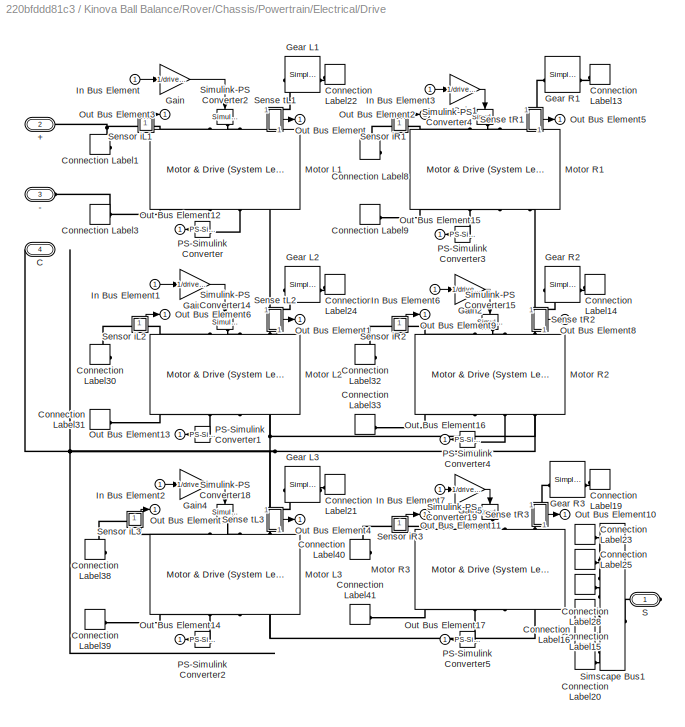
BLOCK [SubSystem] Kinova Ball Balance/Rover/Chassis/Powertrain/Electrical/Drive
BLOCK [PMIOPort] Kinova Ball Balance/Rover/Chassis/Powertrain/Electrical/Drive/+
  Port = 2
  Side = Left
BLOCK [PMIOPort] Kinova Ball Balance/Rover/Chassis/Powertrain/Electrical/Drive/-
  Port = 3
  Side = Left
BLOCK [PMIOPort] Kinova Ball Balance/Rover/Chassis/Powertrain/Electrical/Drive/C
  Port = 4
  Side = Right
BLOCK [ConnectionLabel] Kinova Ball Balance/Rover/Chassis/Powertrain/Electrical/Drive/Connection Label1
  Label = p
BLOCK [ConnectionLabel] Kinova Ball Balance/Rover/Chassis/Powertrain/Electrical/Drive/Connection Label13
  Label = R1
BLOCK [ConnectionLabel] Kinova Ball Balance/Rover/Chassis/Powertrain/Electrical/Drive/Connection Label14
  Label = R2
BLOCK [ConnectionLabel] Kinova Ball Balance/Rover/Chassis/Powertrain/Electrical/Drive/Connection Label15
  Label = R1
  NameLocation = top
BLOCK [ConnectionLabel] Kinova Ball Balance/Rover/Chassis/Powertrain/Electrical/Drive/Connection Label16
  Label = R2
  NameLocation = top
BLOCK [ConnectionLabel] Kinova Ball Balance/Rover/Chassis/Powertrain/Electrical/Drive/Connection Label19
  Label = R3
BLOCK [ConnectionLabel] Kinova Ball Balance/Rover/Chassis/Powertrain/Electrical/Drive/Connection Label20
  Label = R3
  NameLocation = top
BLOCK [ConnectionLabel] Kinova Ball Balance/Rover/Chassis/Powertrain/Electrical/Drive/Connection Label21
  Label = L3
BLOCK [ConnectionLabel] Kinova Ball Balance/Rover/Chassis/Powertrain/Electrical/Drive/Connection Label22
  Label = L1
BLOCK [ConnectionLabel] Kinova Ball Balance/Rover/Chassis/Powertrain/Electrical/Drive/Connection Label23
  Label = L1
  NameLocation = top
BLOCK [ConnectionLabel] Kinova Ball Balance/Rover/Chassis/Powertrain/Electrical/Drive/Connection Label24
  Label = L2
BLOCK [ConnectionLabel] Kinova Ball Balance/Rover/Chassis/Powertrain/Electrical/Drive/Connection Label25
  Label = L2
  NameLocation = top
BLOCK [ConnectionLabel] Kinova Ball Balance/Rover/Chassis/Powertrain/Electrical/Drive/Connection Label28
  Label = L3
  NameLocation = top
BLOCK [ConnectionLabel] Kinova Ball Balance/Rover/Chassis/Powertrain/Electrical/Drive/Connection Label3
  Label = n
BLOCK [ConnectionLabel] Kinova Ball Balance/Rover/Chassis/Powertrain/Electrical/Drive/Connection Label30
  Label = p
BLOCK [ConnectionLabel] Kinova Ball Balance/Rover/Chassis/Powertrain/Electrical/Drive/Connection Label31
  Label = n
BLOCK [ConnectionLabel] Kinova Ball Balance/Rover/Chassis/Powertrain/Electrical/Drive/Connection Label32
  Label = p
BLOCK [ConnectionLabel] Kinova Ball Balance/Rover/Chassis/Powertrain/Electrical/Drive/Connection Label33
  Label = n
BLOCK [ConnectionLabel] Kinova Ball Balance/Rover/Chassis/Powertrain/Electrical/Drive/Connection Label38
  Label = p
BLOCK [ConnectionLabel] Kinova Ball Balance/Rover/Chassis/Powertrain/Electrical/Drive/Connection Label39
  Label = n
BLOCK [ConnectionLabel] Kinova Ball Balance/Rover/Chassis/Powertrain/Electrical/Drive/Connection Label40
  Label = p
BLOCK [ConnectionLabel] Kinova Ball Balance/Rover/Chassis/Powertrain/Electrical/Drive/Connection Label41
  Label = n
BLOCK [ConnectionLabel] Kinova Ball Balance/Rover/Chassis/Powertrain/Electrical/Drive/Connection Label8
  Label = p
BLOCK [ConnectionLabel] Kinova Ball Balance/Rover/Chassis/Powertrain/Electrical/Drive/Connection Label9
  Label = n
BLOCK [Gain] Kinova Ball Balance/Rover/Chassis/Powertrain/Electrical/Drive/Gain
  Gain = 1/drive_ratio
BLOCK [Gain] Kinova Ball Balance/Rover/Chassis/Powertrain/Electrical/Drive/Gain1
  Gain = 1/drive_ratio
BLOCK [Gain] Kinova Ball Balance/Rover/Chassis/Powertrain/Electrical/Drive/Gain2
  Gain = 1/drive_ratio
BLOCK [Gain] Kinova Ball Balance/Rover/Chassis/Powertrain/Electrical/Drive/Gain3
  Gain = 1/drive_ratio
BLOCK [Gain] Kinova Ball Balance/Rover/Chassis/Powertrain/Electrical/Drive/Gain4
  Gain = 1/drive_ratio
BLOCK [Gain] Kinova Ball Balance/Rover/Chassis/Powertrain/Electrical/Drive/Gain5
  Gain = 1/drive_ratio
BLOCK [Reference] Kinova Ball Balance/Rover/Chassis/Powertrain/Electrical/Drive/Gear L1  REF=sdl_lib/Gears/Simple Gear
  SourceBlock = sdl_lib/Gears/Simple Gear
  SourceType = Simple Gear
BLOCK [Reference] Kinova Ball Balance/Rover/Chassis/Powertrain/Electrical/Drive/Gear L2  REF=sdl_lib/Gears/Simple Gear
  SourceBlock = sdl_lib/Gears/Simple Gear
  SourceType = Simple Gear
BLOCK [Reference] Kinova Ball Balance/Rover/Chassis/Powertrain/Electrical/Drive/Gear L3  REF=sdl_lib/Gears/Simple Gear
  NameLocation = top
  SourceBlock = sdl_lib/Gears/Simple Gear
  SourceType = Simple Gear
BLOCK [Reference] Kinova Ball Balance/Rover/Chassis/Powertrain/Electrical/Drive/Gear R1  REF=sdl_lib/Gears/Simple Gear
  SourceBlock = sdl_lib/Gears/Simple Gear
  SourceType = Simple Gear
BLOCK [Reference] Kinova Ball Balance/Rover/Chassis/Powertrain/Electrical/Drive/Gear R2  REF=sdl_lib/Gears/Simple Gear
  SourceBlock = sdl_lib/Gears/Simple Gear
  SourceType = Simple Gear
BLOCK [Reference] Kinova Ball Balance/Rover/Chassis/Powertrain/Electrical/Drive/Gear R3  REF=sdl_lib/Gears/Simple Gear
  NameLocation = top
  SourceBlock = sdl_lib/Gears/Simple Gear
  SourceType = Simple Gear
BLOCK [Inport] Kinova Ball Balance/Rover/Chassis/Powertrain/Electrical/Drive/In Bus Element
BLOCK [Inport] Kinova Ball Balance/Rover/Chassis/Powertrain/Electrical/Drive/In Bus Element1
BLOCK [Inport] Kinova Ball Balance/Rover/Chassis/Powertrain/Electrical/Drive/In Bus Element2
BLOCK [Inport] Kinova Ball Balance/Rover/Chassis/Powertrain/Electrical/Drive/In Bus Element3
BLOCK [Inport] Kinova Ball Balance/Rover/Chassis/Powertrain/Electrical/Drive/In Bus Element6
BLOCK [Inport] Kinova Ball Balance/Rover/Chassis/Powertrain/Electrical/Drive/In Bus Element7
BLOCK [Reference] Kinova Ball Balance/Rover/Chassis/Powertrain/Electrical/Drive/Motor L1  REF=ee_lib/Electromechanical/Motor & Drive
(System Level)
  NameLocation = left
  SourceBlock = ee_lib/Electromechanical/Motor & Drive\n(System Level)
  SourceType = Motor & Drive\n(System Level)
BLOCK [Reference] Kinova Ball Balance/Rover/Chassis/Powertrain/Electrical/Drive/Motor L2  REF=ee_lib/Electromechanical/Motor & Drive
(System Level)
  NameLocation = left
  SourceBlock = ee_lib/Electromechanical/Motor & Drive\n(System Level)
  SourceType = Motor & Drive\n(System Level)
BLOCK [Reference] Kinova Ball Balance/Rover/Chassis/Powertrain/Electrical/Drive/Motor L3  REF=ee_lib/Electromechanical/Motor & Drive
(System Level)
  NameLocation = left
  SourceBlock = ee_lib/Electromechanical/Motor & Drive\n(System Level)
  SourceType = Motor & Drive\n(System Level)
BLOCK [Reference] Kinova Ball Balance/Rover/Chassis/Powertrain/Electrical/Drive/Motor R1  REF=ee_lib/Electromechanical/Motor & Drive
(System Level)
  NameLocation = left
  SourceBlock = ee_lib/Electromechanical/Motor & Drive\n(System Level)
  SourceType = Motor & Drive\n(System Level)
BLOCK [Reference] Kinova Ball Balance/Rover/Chassis/Powertrain/Electrical/Drive/Motor R2  REF=ee_lib/Electromechanical/Motor & Drive
(System Level)
  NameLocation = left
  SourceBlock = ee_lib/Electromechanical/Motor & Drive\n(System Level)
  SourceType = Motor & Drive\n(System Level)
BLOCK [Reference] Kinova Ball Balance/Rover/Chassis/Powertrain/Electrical/Drive/Motor R3  REF=ee_lib/Electromechanical/Motor & Drive
(System Level)
  NameLocation = left
  SourceBlock = ee_lib/Electromechanical/Motor & Drive\n(System Level)
  SourceType = Motor & Drive\n(System Level)
BLOCK [Outport] Kinova Ball Balance/Rover/Chassis/Powertrain/Electrical/Drive/Out Bus Element
BLOCK [Outport] Kinova Ball Balance/Rover/Chassis/Powertrain/Electrical/Drive/Out Bus Element1
  NameLocation = top
BLOCK [Outport] Kinova Ball Balance/Rover/Chassis/Powertrain/Electrical/Drive/Out Bus Element10
BLOCK [Outport] Kinova Ball Balance/Rover/Chassis/Powertrain/Electrical/Drive/Out Bus Element11
BLOCK [Outport] Kinova Ball Balance/Rover/Chassis/Powertrain/Electrical/Drive/Out Bus Element12
BLOCK [Outport] Kinova Ball Balance/Rover/Chassis/Powertrain/Electrical/Drive/Out Bus Element13
BLOCK [Outport] Kinova Ball Balance/Rover/Chassis/Powertrain/Electrical/Drive/Out Bus Element14
BLOCK [Outport] Kinova Ball Balance/Rover/Chassis/Powertrain/Electrical/Drive/Out Bus Element15
BLOCK [Outport] Kinova Ball Balance/Rover/Chassis/Powertrain/Electrical/Drive/Out Bus Element16
BLOCK [Outport] Kinova Ball Balance/Rover/Chassis/Powertrain/Electrical/Drive/Out Bus Element17
BLOCK [Outport] Kinova Ball Balance/Rover/Chassis/Powertrain/Electrical/Drive/Out Bus Element2
BLOCK [Outport] Kinova Ball Balance/Rover/Chassis/Powertrain/Electrical/Drive/Out Bus Element3
BLOCK [Outport] Kinova Ball Balance/Rover/Chassis/Powertrain/Electrical/Drive/Out Bus Element4
BLOCK [Outport] Kinova Ball Balance/Rover/Chassis/Powertrain/Electrical/Drive/Out Bus Element5
BLOCK [Outport] Kinova Ball Balance/Rover/Chassis/Powertrain/Electrical/Drive/Out Bus Element6
BLOCK [Outport] Kinova Ball Balance/Rover/Chassis/Powertrain/Electrical/Drive/Out Bus Element7
BLOCK [Outport] Kinova Ball Balance/Rover/Chassis/Powertrain/Electrical/Drive/Out Bus Element8
BLOCK [Outport] Kinova Ball Balance/Rover/Chassis/Powertrain/Electrical/Drive/Out Bus Element9
BLOCK [Reference] Kinova Ball Balance/Rover/Chassis/Powertrain/Electrical/Drive/PS-Simulink Converter  REF=nesl_utility/PS-Simulink
Converter
  NameLocation = top
  SourceBlock = nesl_utility/PS-Simulink\nConverter
  SourceType = PS-Simulink\nConverter
BLOCK [Reference] Kinova Ball Balance/Rover/Chassis/Powertrain/Electrical/Drive/PS-Simulink Converter1  REF=nesl_utility/PS-Simulink
Converter
  NameLocation = top
  SourceBlock = nesl_utility/PS-Simulink\nConverter
  SourceType = PS-Simulink\nConverter
BLOCK [Reference] Kinova Ball Balance/Rover/Chassis/Powertrain/Electrical/Drive/PS-Simulink Converter2  REF=nesl_utility/PS-Simulink
Converter
  NameLocation = top
  SourceBlock = nesl_utility/PS-Simulink\nConverter
  SourceType = PS-Simulink\nConverter
BLOCK [Reference] Kinova Ball Balance/Rover/Chassis/Powertrain/Electrical/Drive/PS-Simulink Converter3  REF=nesl_utility/PS-Simulink
Converter
  NameLocation = top
  SourceBlock = nesl_utility/PS-Simulink\nConverter
  SourceType = PS-Simulink\nConverter
BLOCK [Reference] Kinova Ball Balance/Rover/Chassis/Powertrain/Electrical/Drive/PS-Simulink Converter4  REF=nesl_utility/PS-Simulink
Converter
  NameLocation = top
  SourceBlock = nesl_utility/PS-Simulink\nConverter
  SourceType = PS-Simulink\nConverter
BLOCK [Reference] Kinova Ball Balance/Rover/Chassis/Powertrain/Electrical/Drive/PS-Simulink Converter5  REF=nesl_utility/PS-Simulink
Converter
  NameLocation = top
  SourceBlock = nesl_utility/PS-Simulink\nConverter
  SourceType = PS-Simulink\nConverter
BLOCK [PMIOPort] Kinova Ball Balance/Rover/Chassis/Powertrain/Electrical/Drive/S
  Side = Right
BLOCK [SubSystem] Kinova Ball Balance/Rover/Chassis/Powertrain/Electrical/Drive/Sense tL1
  NameLocation = left
  PortSchema = {"entries":[{"content":{"sides":[{"content":{"connectorIds":["LConn1"]},"type":"ConnectorPlacement.EquallySpacedRectSide","uuid":"592cc1a1-656f-47ce-ad3a-4b4dc1070b5c"},{"content":{"connectorIds":["RConn1"],"side":"RIGHT"},"type":"ConnectorPlacement.EquallySpacedRectSide","uuid":"9bca39c3-eeb4-4456-9b97-61ec2f027d42"},{"content":{"connectorIds":["Out1"],"side":"TOP"},"type":"ConnectorPlacement.Equ...<+251ch>  <repeated x19 — deduplicated; at blocks: Sense tL1, Sense tL2, Sense tR1, Sense tR2, Sense tR3, Sensor iL1, Sensor iL2, Sensor iL3, Sensor iR1, Sensor iR2, Sensor iR3, Sense T1, Sense tL3>
BLOCK [PMIOPort] Kinova Ball Balance/Rover/Chassis/Powertrain/Electrical/Drive/Sense tL1/C
  Side = Right
BLOCK [Reference] Kinova Ball Balance/Rover/Chassis/Powertrain/Electrical/Drive/Sense tL1/Ideal Torque Sensor  REF=fl_lib/Mechanical/Mechanical Sensors/Ideal Torque Sensor
  SourceBlock = fl_lib/Mechanical/Mechanical Sensors/Ideal Torque Sensor
  SourceType = Ideal Torque Sensor
BLOCK [Reference] Kinova Ball Balance/Rover/Chassis/Powertrain/Electrical/Drive/Sense tL1/PS-Simulink Converter6  REF=nesl_utility/PS-Simulink
Converter
  SourceBlock = nesl_utility/PS-Simulink\nConverter
  SourceType = PS-Simulink\nConverter
BLOCK [PMIOPort] Kinova Ball Balance/Rover/Chassis/Powertrain/Electrical/Drive/Sense tL1/R
  Port = 2
  Side = Left
BLOCK [Outport] Kinova Ball Balance/Rover/Chassis/Powertrain/Electrical/Drive/Sense tL1/T
BLOCK [SubSystem] Kinova Ball Balance/Rover/Chassis/Powertrain/Electrical/Drive/Sense tL2
  NameLocation = left
BLOCK [PMIOPort] Kinova Ball Balance/Rover/Chassis/Powertrain/Electrical/Drive/Sense tL2/C
  Side = Right
BLOCK [Reference] Kinova Ball Balance/Rover/Chassis/Powertrain/Electrical/Drive/Sense tL2/Ideal Torque Sensor  REF=fl_lib/Mechanical/Mechanical Sensors/Ideal Torque Sensor
  SourceBlock = fl_lib/Mechanical/Mechanical Sensors/Ideal Torque Sensor
  SourceType = Ideal Torque Sensor
BLOCK [Reference] Kinova Ball Balance/Rover/Chassis/Powertrain/Electrical/Drive/Sense tL2/PS-Simulink Converter6  REF=nesl_utility/PS-Simulink
Converter
  SourceBlock = nesl_utility/PS-Simulink\nConverter
  SourceType = PS-Simulink\nConverter
BLOCK [PMIOPort] Kinova Ball Balance/Rover/Chassis/Powertrain/Electrical/Drive/Sense tL2/R
  Port = 2
  Side = Left
BLOCK [Outport] Kinova Ball Balance/Rover/Chassis/Powertrain/Electrical/Drive/Sense tL2/T
BLOCK [SubSystem] Kinova Ball Balance/Rover/Chassis/Powertrain/Electrical/Drive/Sense tL3
  NameLocation = left
  PortSchema = {"entries":[{"content":{"sides":[{"content":{"connectorIds":["LConn1"]},"type":"ConnectorPlacement.EquallySpacedRectSide","uuid":"592cc1a1-656f-47ce-ad3a-4b4dc1070b5c"},{"content":{"connectorIds":["RConn1"],"side":"RIGHT"},"type":"ConnectorPlacement.EquallySpacedRectSide","uuid":"9bca39c3-eeb4-4456-9b97-61ec2f027d42"},{"content":{"connectorIds":["Out1"],"side":"TOP"},"type":"ConnectorPlacement.Equ...<+395ch>
BLOCK [PMIOPort] Kinova Ball Balance/Rover/Chassis/Powertrain/Electrical/Drive/Sense tL3/C
  Port = 2
  Side = Right
BLOCK [Reference] Kinova Ball Balance/Rover/Chassis/Powertrain/Electrical/Drive/Sense tL3/Ideal Torque Sensor  REF=fl_lib/Mechanical/Mechanical Sensors/Ideal Torque Sensor
  SourceBlock = fl_lib/Mechanical/Mechanical Sensors/Ideal Torque Sensor
  SourceType = Ideal Torque Sensor
BLOCK [Reference] Kinova Ball Balance/Rover/Chassis/Powertrain/Electrical/Drive/Sense tL3/PS-Simulink Converter6  REF=nesl_utility/PS-Simulink
Converter
  SourceBlock = nesl_utility/PS-Simulink\nConverter
  SourceType = PS-Simulink\nConverter
BLOCK [PMIOPort] Kinova Ball Balance/Rover/Chassis/Powertrain/Electrical/Drive/Sense tL3/R
  Side = Left
BLOCK [Outport] Kinova Ball Balance/Rover/Chassis/Powertrain/Electrical/Drive/Sense tL3/T
BLOCK [SubSystem] Kinova Ball Balance/Rover/Chassis/Powertrain/Electrical/Drive/Sense tR1
  NameLocation = left
BLOCK [PMIOPort] Kinova Ball Balance/Rover/Chassis/Powertrain/Electrical/Drive/Sense tR1/C
  Side = Right
BLOCK [Reference] Kinova Ball Balance/Rover/Chassis/Powertrain/Electrical/Drive/Sense tR1/Ideal Torque Sensor  REF=fl_lib/Mechanical/Mechanical Sensors/Ideal Torque Sensor
  SourceBlock = fl_lib/Mechanical/Mechanical Sensors/Ideal Torque Sensor
  SourceType = Ideal Torque Sensor
BLOCK [Reference] Kinova Ball Balance/Rover/Chassis/Powertrain/Electrical/Drive/Sense tR1/PS-Simulink Converter6  REF=nesl_utility/PS-Simulink
Converter
  SourceBlock = nesl_utility/PS-Simulink\nConverter
  SourceType = PS-Simulink\nConverter
BLOCK [PMIOPort] Kinova Ball Balance/Rover/Chassis/Powertrain/Electrical/Drive/Sense tR1/R
  Port = 2
  Side = Left
BLOCK [Outport] Kinova Ball Balance/Rover/Chassis/Powertrain/Electrical/Drive/Sense tR1/T
BLOCK [SubSystem] Kinova Ball Balance/Rover/Chassis/Powertrain/Electrical/Drive/Sense tR2
  NameLocation = left
BLOCK [PMIOPort] Kinova Ball Balance/Rover/Chassis/Powertrain/Electrical/Drive/Sense tR2/C
  Side = Right
BLOCK [Reference] Kinova Ball Balance/Rover/Chassis/Powertrain/Electrical/Drive/Sense tR2/Ideal Torque Sensor  REF=fl_lib/Mechanical/Mechanical Sensors/Ideal Torque Sensor
  SourceBlock = fl_lib/Mechanical/Mechanical Sensors/Ideal Torque Sensor
  SourceType = Ideal Torque Sensor
BLOCK [Reference] Kinova Ball Balance/Rover/Chassis/Powertrain/Electrical/Drive/Sense tR2/PS-Simulink Converter6  REF=nesl_utility/PS-Simulink
Converter
  SourceBlock = nesl_utility/PS-Simulink\nConverter
  SourceType = PS-Simulink\nConverter
BLOCK [PMIOPort] Kinova Ball Balance/Rover/Chassis/Powertrain/Electrical/Drive/Sense tR2/R
  Port = 2
  Side = Left
BLOCK [Outport] Kinova Ball Balance/Rover/Chassis/Powertrain/Electrical/Drive/Sense tR2/T
BLOCK [SubSystem] Kinova Ball Balance/Rover/Chassis/Powertrain/Electrical/Drive/Sense tR3
  NameLocation = left
BLOCK [PMIOPort] Kinova Ball Balance/Rover/Chassis/Powertrain/Electrical/Drive/Sense tR3/C
  Side = Right
BLOCK [Reference] Kinova Ball Balance/Rover/Chassis/Powertrain/Electrical/Drive/Sense tR3/Ideal Torque Sensor  REF=fl_lib/Mechanical/Mechanical Sensors/Ideal Torque Sensor
  SourceBlock = fl_lib/Mechanical/Mechanical Sensors/Ideal Torque Sensor
  SourceType = Ideal Torque Sensor
BLOCK [Reference] Kinova Ball Balance/Rover/Chassis/Powertrain/Electrical/Drive/Sense tR3/PS-Simulink Converter6  REF=nesl_utility/PS-Simulink
Converter
  SourceBlock = nesl_utility/PS-Simulink\nConverter
  SourceType = PS-Simulink\nConverter
BLOCK [PMIOPort] Kinova Ball Balance/Rover/Chassis/Powertrain/Electrical/Drive/Sense tR3/R
  Port = 2
  Side = Left
BLOCK [Outport] Kinova Ball Balance/Rover/Chassis/Powertrain/Electrical/Drive/Sense tR3/T
BLOCK [SubSystem] Kinova Ball Balance/Rover/Chassis/Powertrain/Electrical/Drive/Sensor iL1
BLOCK [PMIOPort] Kinova Ball Balance/Rover/Chassis/Powertrain/Electrical/Drive/Sensor iL1/+
  Side = Left
BLOCK [PMIOPort] Kinova Ball Balance/Rover/Chassis/Powertrain/Electrical/Drive/Sensor iL1/-
  Port = 2
  Side = Right
BLOCK [Reference] Kinova Ball Balance/Rover/Chassis/Powertrain/Electrical/Drive/Sensor iL1/Current Sensor  REF=fl_lib/Electrical/Electrical Sensors/Current Sensor
  SourceBlock = fl_lib/Electrical/Electrical Sensors/Current Sensor
  SourceType = Current Sensor
BLOCK [Reference] Kinova Ball Balance/Rover/Chassis/Powertrain/Electrical/Drive/Sensor iL1/PS-Simulink Converter3  REF=nesl_utility/PS-Simulink
Converter
  SourceBlock = nesl_utility/PS-Simulink\nConverter
  SourceType = PS-Simulink\nConverter
BLOCK [Outport] Kinova Ball Balance/Rover/Chassis/Powertrain/Electrical/Drive/Sensor iL1/i
BLOCK [SubSystem] Kinova Ball Balance/Rover/Chassis/Powertrain/Electrical/Drive/Sensor iL2
BLOCK [PMIOPort] Kinova Ball Balance/Rover/Chassis/Powertrain/Electrical/Drive/Sensor iL2/+
  Side = Left
BLOCK [PMIOPort] Kinova Ball Balance/Rover/Chassis/Powertrain/Electrical/Drive/Sensor iL2/-
  Port = 2
  Side = Right
BLOCK [Reference] Kinova Ball Balance/Rover/Chassis/Powertrain/Electrical/Drive/Sensor iL2/Current Sensor  REF=fl_lib/Electrical/Electrical Sensors/Current Sensor
  SourceBlock = fl_lib/Electrical/Electrical Sensors/Current Sensor
  SourceType = Current Sensor
BLOCK [Reference] Kinova Ball Balance/Rover/Chassis/Powertrain/Electrical/Drive/Sensor iL2/PS-Simulink Converter3  REF=nesl_utility/PS-Simulink
Converter
  SourceBlock = nesl_utility/PS-Simulink\nConverter
  SourceType = PS-Simulink\nConverter
BLOCK [Outport] Kinova Ball Balance/Rover/Chassis/Powertrain/Electrical/Drive/Sensor iL2/i
BLOCK [SubSystem] Kinova Ball Balance/Rover/Chassis/Powertrain/Electrical/Drive/Sensor iL3
BLOCK [PMIOPort] Kinova Ball Balance/Rover/Chassis/Powertrain/Electrical/Drive/Sensor iL3/+
  Side = Left
BLOCK [PMIOPort] Kinova Ball Balance/Rover/Chassis/Powertrain/Electrical/Drive/Sensor iL3/-
  Port = 2
  Side = Right
BLOCK [Reference] Kinova Ball Balance/Rover/Chassis/Powertrain/Electrical/Drive/Sensor iL3/Current Sensor  REF=fl_lib/Electrical/Electrical Sensors/Current Sensor
  SourceBlock = fl_lib/Electrical/Electrical Sensors/Current Sensor
  SourceType = Current Sensor
BLOCK [Reference] Kinova Ball Balance/Rover/Chassis/Powertrain/Electrical/Drive/Sensor iL3/PS-Simulink Converter3  REF=nesl_utility/PS-Simulink
Converter
  SourceBlock = nesl_utility/PS-Simulink\nConverter
  SourceType = PS-Simulink\nConverter
BLOCK [Outport] Kinova Ball Balance/Rover/Chassis/Powertrain/Electrical/Drive/Sensor iL3/i
BLOCK [SubSystem] Kinova Ball Balance/Rover/Chassis/Powertrain/Electrical/Drive/Sensor iR1
BLOCK [PMIOPort] Kinova Ball Balance/Rover/Chassis/Powertrain/Electrical/Drive/Sensor iR1/+
  Side = Left
BLOCK [PMIOPort] Kinova Ball Balance/Rover/Chassis/Powertrain/Electrical/Drive/Sensor iR1/-
  Port = 2
  Side = Right
BLOCK [Reference] Kinova Ball Balance/Rover/Chassis/Powertrain/Electrical/Drive/Sensor iR1/Current Sensor  REF=fl_lib/Electrical/Electrical Sensors/Current Sensor
  SourceBlock = fl_lib/Electrical/Electrical Sensors/Current Sensor
  SourceType = Current Sensor
BLOCK [Reference] Kinova Ball Balance/Rover/Chassis/Powertrain/Electrical/Drive/Sensor iR1/PS-Simulink Converter3  REF=nesl_utility/PS-Simulink
Converter
  SourceBlock = nesl_utility/PS-Simulink\nConverter
  SourceType = PS-Simulink\nConverter
BLOCK [Outport] Kinova Ball Balance/Rover/Chassis/Powertrain/Electrical/Drive/Sensor iR1/i
BLOCK [SubSystem] Kinova Ball Balance/Rover/Chassis/Powertrain/Electrical/Drive/Sensor iR2
BLOCK [PMIOPort] Kinova Ball Balance/Rover/Chassis/Powertrain/Electrical/Drive/Sensor iR2/+
  Side = Left
BLOCK [PMIOPort] Kinova Ball Balance/Rover/Chassis/Powertrain/Electrical/Drive/Sensor iR2/-
  Port = 2
  Side = Right
BLOCK [Reference] Kinova Ball Balance/Rover/Chassis/Powertrain/Electrical/Drive/Sensor iR2/Current Sensor  REF=fl_lib/Electrical/Electrical Sensors/Current Sensor
  SourceBlock = fl_lib/Electrical/Electrical Sensors/Current Sensor
  SourceType = Current Sensor
BLOCK [Reference] Kinova Ball Balance/Rover/Chassis/Powertrain/Electrical/Drive/Sensor iR2/PS-Simulink Converter3  REF=nesl_utility/PS-Simulink
Converter
  SourceBlock = nesl_utility/PS-Simulink\nConverter
  SourceType = PS-Simulink\nConverter
BLOCK [Outport] Kinova Ball Balance/Rover/Chassis/Powertrain/Electrical/Drive/Sensor iR2/i
BLOCK [SubSystem] Kinova Ball Balance/Rover/Chassis/Powertrain/Electrical/Drive/Sensor iR3
BLOCK [PMIOPort] Kinova Ball Balance/Rover/Chassis/Powertrain/Electrical/Drive/Sensor iR3/+
  Side = Left
BLOCK [PMIOPort] Kinova Ball Balance/Rover/Chassis/Powertrain/Electrical/Drive/Sensor iR3/-
  Port = 2
  Side = Right
BLOCK [Reference] Kinova Ball Balance/Rover/Chassis/Powertrain/Electrical/Drive/Sensor iR3/Current Sensor  REF=fl_lib/Electrical/Electrical Sensors/Current Sensor
  SourceBlock = fl_lib/Electrical/Electrical Sensors/Current Sensor
  SourceType = Current Sensor
BLOCK [Reference] Kinova Ball Balance/Rover/Chassis/Powertrain/Electrical/Drive/Sensor iR3/PS-Simulink Converter3  REF=nesl_utility/PS-Simulink
Converter
  SourceBlock = nesl_utility/PS-Simulink\nConverter
  SourceType = PS-Simulink\nConverter
BLOCK [Outport] Kinova Ball Balance/Rover/Chassis/Powertrain/Electrical/Drive/Sensor iR3/i
BLOCK [SimscapeBus] Kinova Ball Balance/Rover/Chassis/Powertrain/Electrical/Drive/Simscape Bus1
  HierarchyStrings = L1;L2;L3;R1;R2;R3
BLOCK [Reference] Kinova Ball Balance/Rover/Chassis/Powertrain/Electrical/Drive/Simulink-PS Converter14  REF=nesl_utility/Simulink-PS
Converter
  NameLocation = left
  SourceBlock = nesl_utility/Simulink-PS\nConverter
  SourceType = Simulink-PS\nConverter
BLOCK [Reference] Kinova Ball Balance/Rover/Chassis/Powertrain/Electrical/Drive/Simulink-PS Converter15  REF=nesl_utility/Simulink-PS
Converter
  NameLocation = left
  SourceBlock = nesl_utility/Simulink-PS\nConverter
  SourceType = Simulink-PS\nConverter
BLOCK [Reference] Kinova Ball Balance/Rover/Chassis/Powertrain/Electrical/Drive/Simulink-PS Converter18  REF=nesl_utility/Simulink-PS
Converter
  NameLocation = left
  SourceBlock = nesl_utility/Simulink-PS\nConverter
  SourceType = Simulink-PS\nConverter
BLOCK [Reference] Kinova Ball Balance/Rover/Chassis/Powertrain/Electrical/Drive/Simulink-PS Converter19  REF=nesl_utility/Simulink-PS
Converter
  NameLocation = left
  SourceBlock = nesl_utility/Simulink-PS\nConverter
  SourceType = Simulink-PS\nConverter
BLOCK [Reference] Kinova Ball Balance/Rover/Chassis/Powertrain/Electrical/Drive/Simulink-PS Converter2  REF=nesl_utility/Simulink-PS
Converter
  NameLocation = left
  SourceBlock = nesl_utility/Simulink-PS\nConverter
  SourceType = Simulink-PS\nConverter
BLOCK [Reference] Kinova Ball Balance/Rover/Chassis/Powertrain/Electrical/Drive/Simulink-PS Converter4  REF=nesl_utility/Simulink-PS
Converter
  NameLocation = left
  SourceBlock = nesl_utility/Simulink-PS\nConverter
  SourceType = Simulink-PS\nConverter
BLOCK [Inport] Kinova Ball Balance/Rover/Chassis/Powertrain/Electrical/In Bus Element
BLOCK [Inport] Kinova Ball Balance/Rover/Chassis/Powertrain/Electrical/In Bus Element1
BLOCK [Reference] Kinova Ball Balance/Rover/Chassis/Powertrain/Electrical/Mechanical Rotational Reference  REF=fl_lib/Mechanical/Rotational Elements/Mechanical
Rotational Reference
  SourceBlock = fl_lib/Mechanical/Rotational Elements/Mechanical\nRotational Reference
  SourceType = Mechanical\nRotational Reference
BLOCK [Outport] Kinova Ball Balance/Rover/Chassis/Powertrain/Electrical/Out Bus Element
BLOCK [Outport] Kinova Ball Balance/Rover/Chassis/Powertrain/Electrical/Out Bus Element1
BLOCK [Outport] Kinova Ball Balance/Rover/Chassis/Powertrain/Electrical/Out Bus Element2
BLOCK [SubSystem] Kinova Ball Balance/Rover/Chassis/Powertrain/Electrical/Power
BLOCK [PMIOPort] Kinova Ball Balance/Rover/Chassis/Powertrain/Electrical/Power/+
  Side = Right
BLOCK [PMIOPort] Kinova Ball Balance/Rover/Chassis/Powertrain/Electrical/Power/-
  Port = 2
  Side = Right
BLOCK [Reference] Kinova Ball Balance/Rover/Chassis/Powertrain/Electrical/Power/Ambient Temperature  REF=fl_lib/Thermal/Thermal Sources/Temperature Source
  SourceBlock = fl_lib/Thermal/Thermal Sources/Temperature Source
  SourceType = Temperature Source
BLOCK [Reference] Kinova Ball Balance/Rover/Chassis/Powertrain/Electrical/Power/Battery  REF=batteryecm_lib/Battery
  LibrarySourceBlock = ee_lib/Sources/Battery
  NameLocation = right
  SourceBlock = batteryecm_lib/Battery
  SourceType = Battery
BLOCK [Reference] Kinova Ball Balance/Rover/Chassis/Powertrain/Electrical/Power/Convective Heat Transfer  REF=fl_lib/Thermal/Thermal Elements/Convective Heat
Transfer
  SourceBlock = fl_lib/Thermal/Thermal Elements/Convective Heat\nTransfer
  SourceType = Convective Heat\nTransfer
BLOCK [Reference] Kinova Ball Balance/Rover/Chassis/Powertrain/Electrical/Power/Electrical Reference  REF=fl_lib/Electrical/Electrical Elements/Electrical Reference
  NameLocation = right
  SourceBlock = fl_lib/Electrical/Electrical Elements/Electrical Reference
  SourceType = Electrical Reference
BLOCK [Outport] Kinova Ball Balance/Rover/Chassis/Powertrain/Electrical/Power/Out Bus Element4
BLOCK [Outport] Kinova Ball Balance/Rover/Chassis/Powertrain/Electrical/Power/Out Bus Element5
BLOCK [Reference] Kinova Ball Balance/Rover/Chassis/Powertrain/Electrical/Power/PS-Simulink Converter  REF=nesl_utility/PS-Simulink
Converter
  SourceBlock = nesl_utility/PS-Simulink\nConverter
  SourceType = PS-Simulink\nConverter
BLOCK [SubSystem] Kinova Ball Balance/Rover/Chassis/Powertrain/Electrical/Power/Sensing Temperature
  NameLocation = left
BLOCK [PMIOPort] Kinova Ball Balance/Rover/Chassis/Powertrain/Electrical/Power/Sensing Temperature/A
  Side = Left
BLOCK [Reference] Kinova Ball Balance/Rover/Chassis/Powertrain/Electrical/Power/Sensing Temperature/PS-Simulink Converter  REF=nesl_utility/PS-Simulink
Converter
  SourceBlock = nesl_utility/PS-Simulink\nConverter
  SourceType = PS-Simulink\nConverter
BLOCK [Outport] Kinova Ball Balance/Rover/Chassis/Powertrain/Electrical/Power/Sensing Temperature/T
BLOCK [Reference] Kinova Ball Balance/Rover/Chassis/Powertrain/Electrical/Power/Sensing Temperature/Temperature Sensor  REF=fl_lib/Thermal/Thermal Sensors/Temperature Sensor
  SourceBlock = fl_lib/Thermal/Thermal Sensors/Temperature Sensor
  SourceType = Temperature Sensor
BLOCK [Reference] Kinova Ball Balance/Rover/Chassis/Powertrain/Electrical/Power/Sensing Temperature/Thermal Reference  REF=fl_lib/Thermal/Thermal Elements/Thermal Reference
  SourceBlock = fl_lib/Thermal/Thermal Elements/Thermal Reference
  SourceType = Thermal Reference
BLOCK [PMIOPort] Kinova Ball Balance/Rover/Chassis/Powertrain/Electrical/S
  Side = Right
BLOCK [SubSystem] Kinova Ball Balance/Rover/Chassis/Powertrain/Electrical/Steer
BLOCK [PMIOPort] Kinova Ball Balance/Rover/Chassis/Powertrain/Electrical/Steer/+
  Port = 2
  Side = Left
BLOCK [PMIOPort] Kinova Ball Balance/Rover/Chassis/Powertrain/Electrical/Steer/-
  Port = 3
  Side = Left
BLOCK [PMIOPort] Kinova Ball Balance/Rover/Chassis/Powertrain/Electrical/Steer/C
  Port = 4
  Side = Right
BLOCK [ConnectionLabel] Kinova Ball Balance/Rover/Chassis/Powertrain/Electrical/Steer/Connection Label1
  Label = p
BLOCK [ConnectionLabel] Kinova Ball Balance/Rover/Chassis/Powertrain/Electrical/Steer/Connection Label10
  Label = LS1
BLOCK [ConnectionLabel] Kinova Ball Balance/Rover/Chassis/Powertrain/Electrical/Steer/Connection Label11
  Label = LS1
  NameLocation = top
BLOCK [ConnectionLabel] Kinova Ball Balance/Rover/Chassis/Powertrain/Electrical/Steer/Connection Label12
  Label = RS1
  NameLocation = top
BLOCK [ConnectionLabel] Kinova Ball Balance/Rover/Chassis/Powertrain/Electrical/Steer/Connection Label17
  Label = RS3
BLOCK [ConnectionLabel] Kinova Ball Balance/Rover/Chassis/Powertrain/Electrical/Steer/Connection Label2
  Label = n
BLOCK [ConnectionLabel] Kinova Ball Balance/Rover/Chassis/Powertrain/Electrical/Steer/Connection Label20
  Label = RS3
  NameLocation = top
BLOCK [ConnectionLabel] Kinova Ball Balance/Rover/Chassis/Powertrain/Electrical/Steer/Connection Label26
  Label = LS3
BLOCK [ConnectionLabel] Kinova Ball Balance/Rover/Chassis/Powertrain/Electrical/Steer/Connection Label27
  Label = LS3
  NameLocation = top
BLOCK [ConnectionLabel] Kinova Ball Balance/Rover/Chassis/Powertrain/Electrical/Steer/Connection Label29
  Label = RS1
  NameLocation = top
BLOCK [ConnectionLabel] Kinova Ball Balance/Rover/Chassis/Powertrain/Electrical/Steer/Connection Label34
  Label = p
BLOCK [ConnectionLabel] Kinova Ball Balance/Rover/Chassis/Powertrain/Electrical/Steer/Connection Label35
  Label = n
BLOCK [ConnectionLabel] Kinova Ball Balance/Rover/Chassis/Powertrain/Electrical/Steer/Connection Label36
  Label = p
BLOCK [ConnectionLabel] Kinova Ball Balance/Rover/Chassis/Powertrain/Electrical/Steer/Connection Label37
  Label = n
BLOCK [ConnectionLabel] Kinova Ball Balance/Rover/Chassis/Powertrain/Electrical/Steer/Connection Label4
  Label = p
BLOCK [ConnectionLabel] Kinova Ball Balance/Rover/Chassis/Powertrain/Electrical/Steer/Connection Label5
  Label = n
BLOCK [Gain] Kinova Ball Balance/Rover/Chassis/Powertrain/Electrical/Steer/Gain
  Gain = 1/drive_ratio
BLOCK [Gain] Kinova Ball Balance/Rover/Chassis/Powertrain/Electrical/Steer/Gain1
  Gain = 1/drive_ratio
BLOCK [Gain] Kinova Ball Balance/Rover/Chassis/Powertrain/Electrical/Steer/Gain2
  Gain = 1/drive_ratio
BLOCK [Gain] Kinova Ball Balance/Rover/Chassis/Powertrain/Electrical/Steer/Gain3
  Gain = 1/drive_ratio
BLOCK [Reference] Kinova Ball Balance/Rover/Chassis/Powertrain/Electrical/Steer/Gear LS1  REF=sdl_lib/Gears/Simple Gear
  NameLocation = top
  SourceBlock = sdl_lib/Gears/Simple Gear
  SourceType = Simple Gear
BLOCK [Reference] Kinova Ball Balance/Rover/Chassis/Powertrain/Electrical/Steer/Gear LS3  REF=sdl_lib/Gears/Simple Gear
  SourceBlock = sdl_lib/Gears/Simple Gear
  SourceType = Simple Gear
BLOCK [Reference] Kinova Ball Balance/Rover/Chassis/Powertrain/Electrical/Steer/Gear RS1  REF=sdl_lib/Gears/Simple Gear
  SourceBlock = sdl_lib/Gears/Simple Gear
  SourceType = Simple Gear
BLOCK [Reference] Kinova Ball Balance/Rover/Chassis/Powertrain/Electrical/Steer/Gear RS3  REF=sdl_lib/Gears/Simple Gear
  SourceBlock = sdl_lib/Gears/Simple Gear
  SourceType = Simple Gear
BLOCK [Inport] Kinova Ball Balance/Rover/Chassis/Powertrain/Electrical/Steer/In Bus Element
BLOCK [Inport] Kinova Ball Balance/Rover/Chassis/Powertrain/Electrical/Steer/In Bus Element1
BLOCK [Inport] Kinova Ball Balance/Rover/Chassis/Powertrain/Electrical/Steer/In Bus Element2
BLOCK [Inport] Kinova Ball Balance/Rover/Chassis/Powertrain/Electrical/Steer/In Bus Element3
BLOCK [Reference] Kinova Ball Balance/Rover/Chassis/Powertrain/Electrical/Steer/Motor LS1  REF=ee_lib/Electromechanical/Motor & Drive
(System Level)
  NameLocation = left
  SourceBlock = ee_lib/Electromechanical/Motor & Drive\n(System Level)
  SourceType = Motor & Drive\n(System Level)
BLOCK [Reference] Kinova Ball Balance/Rover/Chassis/Powertrain/Electrical/Steer/Motor LS3  REF=ee_lib/Electromechanical/Motor & Drive
(System Level)
  NameLocation = left
  SourceBlock = ee_lib/Electromechanical/Motor & Drive\n(System Level)
  SourceType = Motor & Drive\n(System Level)
BLOCK [Reference] Kinova Ball Balance/Rover/Chassis/Powertrain/Electrical/Steer/Motor RS1  REF=ee_lib/Electromechanical/Motor & Drive
(System Level)
  NameLocation = left
  SourceBlock = ee_lib/Electromechanical/Motor & Drive\n(System Level)
  SourceType = Motor & Drive\n(System Level)
BLOCK [Reference] Kinova Ball Balance/Rover/Chassis/Powertrain/Electrical/Steer/Motor RS3  REF=ee_lib/Electromechanical/Motor & Drive
(System Level)
  NameLocation = left
  SourceBlock = ee_lib/Electromechanical/Motor & Drive\n(System Level)
  SourceType = Motor & Drive\n(System Level)
BLOCK [Outport] Kinova Ball Balance/Rover/Chassis/Powertrain/Electrical/Steer/Out Bus Element11
BLOCK [Outport] Kinova Ball Balance/Rover/Chassis/Powertrain/Electrical/Steer/Out Bus Element12
BLOCK [Outport] Kinova Ball Balance/Rover/Chassis/Powertrain/Electrical/Steer/Out Bus Element14
BLOCK [Outport] Kinova Ball Balance/Rover/Chassis/Powertrain/Electrical/Steer/Out Bus Element15
BLOCK [Outport] Kinova Ball Balance/Rover/Chassis/Powertrain/Electrical/Steer/Out Bus Element17
BLOCK [Outport] Kinova Ball Balance/Rover/Chassis/Powertrain/Electrical/Steer/Out Bus Element2
BLOCK [Outport] Kinova Ball Balance/Rover/Chassis/Powertrain/Electrical/Steer/Out Bus Element3
BLOCK [Outport] Kinova Ball Balance/Rover/Chassis/Powertrain/Electrical/Steer/Out Bus Element4
  NameLocation = top
BLOCK [Outport] Kinova Ball Balance/Rover/Chassis/Powertrain/Electrical/Steer/Out Bus Element5
BLOCK [Outport] Kinova Ball Balance/Rover/Chassis/Powertrain/Electrical/Steer/Out Bus Element6
BLOCK [Outport] Kinova Ball Balance/Rover/Chassis/Powertrain/Electrical/Steer/Out Bus Element7
BLOCK [Outport] Kinova Ball Balance/Rover/Chassis/Powertrain/Electrical/Steer/Out Bus Element9
BLOCK [Reference] Kinova Ball Balance/Rover/Chassis/Powertrain/Electrical/Steer/PS-Simulink Converter  REF=nesl_utility/PS-Simulink
Converter
  NameLocation = top
  SourceBlock = nesl_utility/PS-Simulink\nConverter
  SourceType = PS-Simulink\nConverter
BLOCK [Reference] Kinova Ball Balance/Rover/Chassis/Powertrain/Electrical/Steer/PS-Simulink Converter2  REF=nesl_utility/PS-Simulink
Converter
  NameLocation = top
  SourceBlock = nesl_utility/PS-Simulink\nConverter
  SourceType = PS-Simulink\nConverter
BLOCK [Reference] Kinova Ball Balance/Rover/Chassis/Powertrain/Electrical/Steer/PS-Simulink Converter3  REF=nesl_utility/PS-Simulink
Converter
  NameLocation = top
  SourceBlock = nesl_utility/PS-Simulink\nConverter
  SourceType = PS-Simulink\nConverter
BLOCK [Reference] Kinova Ball Balance/Rover/Chassis/Powertrain/Electrical/Steer/PS-Simulink Converter5  REF=nesl_utility/PS-Simulink
Converter
  NameLocation = top
  SourceBlock = nesl_utility/PS-Simulink\nConverter
  SourceType = PS-Simulink\nConverter
BLOCK [PMIOPort] Kinova Ball Balance/Rover/Chassis/Powertrain/Electrical/Steer/S
  Side = Right
BLOCK [SubSystem] Kinova Ball Balance/Rover/Chassis/Powertrain/Electrical/Steer/Sense T1
  NameLocation = left
BLOCK [PMIOPort] Kinova Ball Balance/Rover/Chassis/Powertrain/Electrical/Steer/Sense T1/C
  Side = Right
BLOCK [Reference] Kinova Ball Balance/Rover/Chassis/Powertrain/Electrical/Steer/Sense T1/Ideal Torque Sensor  REF=fl_lib/Mechanical/Mechanical Sensors/Ideal Torque Sensor
  SourceBlock = fl_lib/Mechanical/Mechanical Sensors/Ideal Torque Sensor
  SourceType = Ideal Torque Sensor
BLOCK [Reference] Kinova Ball Balance/Rover/Chassis/Powertrain/Electrical/Steer/Sense T1/PS-Simulink Converter6  REF=nesl_utility/PS-Simulink
Converter
  SourceBlock = nesl_utility/PS-Simulink\nConverter
  SourceType = PS-Simulink\nConverter
BLOCK [PMIOPort] Kinova Ball Balance/Rover/Chassis/Powertrain/Electrical/Steer/Sense T1/R
  Port = 2
  Side = Left
BLOCK [Outport] Kinova Ball Balance/Rover/Chassis/Powertrain/Electrical/Steer/Sense T1/T
BLOCK [SubSystem] Kinova Ball Balance/Rover/Chassis/Powertrain/Electrical/Steer/Sense tL3
  NameLocation = left
BLOCK [PMIOPort] Kinova Ball Balance/Rover/Chassis/Powertrain/Electrical/Steer/Sense tL3/C
  Side = Right
BLOCK [Reference] Kinova Ball Balance/Rover/Chassis/Powertrain/Electrical/Steer/Sense tL3/Ideal Torque Sensor  REF=fl_lib/Mechanical/Mechanical Sensors/Ideal Torque Sensor
  SourceBlock = fl_lib/Mechanical/Mechanical Sensors/Ideal Torque Sensor
  SourceType = Ideal Torque Sensor
BLOCK [Reference] Kinova Ball Balance/Rover/Chassis/Powertrain/Electrical/Steer/Sense tL3/PS-Simulink Converter6  REF=nesl_utility/PS-Simulink
Converter
  SourceBlock = nesl_utility/PS-Simulink\nConverter
  SourceType = PS-Simulink\nConverter
BLOCK [PMIOPort] Kinova Ball Balance/Rover/Chassis/Powertrain/Electrical/Steer/Sense tL3/R
  Port = 2
  Side = Left
BLOCK [Outport] Kinova Ball Balance/Rover/Chassis/Powertrain/Electrical/Steer/Sense tL3/T
BLOCK [SubSystem] Kinova Ball Balance/Rover/Chassis/Powertrain/Electrical/Steer/Sense tR1
  NameLocation = left
BLOCK [PMIOPort] Kinova Ball Balance/Rover/Chassis/Powertrain/Electrical/Steer/Sense tR1/C
  Side = Right
BLOCK [Reference] Kinova Ball Balance/Rover/Chassis/Powertrain/Electrical/Steer/Sense tR1/Ideal Torque Sensor  REF=fl_lib/Mechanical/Mechanical Sensors/Ideal Torque Sensor
  SourceBlock = fl_lib/Mechanical/Mechanical Sensors/Ideal Torque Sensor
  SourceType = Ideal Torque Sensor
BLOCK [Reference] Kinova Ball Balance/Rover/Chassis/Powertrain/Electrical/Steer/Sense tR1/PS-Simulink Converter6  REF=nesl_utility/PS-Simulink
Converter
  SourceBlock = nesl_utility/PS-Simulink\nConverter
  SourceType = PS-Simulink\nConverter
BLOCK [PMIOPort] Kinova Ball Balance/Rover/Chassis/Powertrain/Electrical/Steer/Sense tR1/R
  Port = 2
  Side = Left
BLOCK [Outport] Kinova Ball Balance/Rover/Chassis/Powertrain/Electrical/Steer/Sense tR1/T
BLOCK [SubSystem] Kinova Ball Balance/Rover/Chassis/Powertrain/Electrical/Steer/Sense tR3
  NameLocation = left
BLOCK [PMIOPort] Kinova Ball Balance/Rover/Chassis/Powertrain/Electrical/Steer/Sense tR3/C
  Side = Right
BLOCK [Reference] Kinova Ball Balance/Rover/Chassis/Powertrain/Electrical/Steer/Sense tR3/Ideal Torque Sensor  REF=fl_lib/Mechanical/Mechanical Sensors/Ideal Torque Sensor
  SourceBlock = fl_lib/Mechanical/Mechanical Sensors/Ideal Torque Sensor
  SourceType = Ideal Torque Sensor
BLOCK [Reference] Kinova Ball Balance/Rover/Chassis/Powertrain/Electrical/Steer/Sense tR3/PS-Simulink Converter6  REF=nesl_utility/PS-Simulink
Converter
  SourceBlock = nesl_utility/PS-Simulink\nConverter
  SourceType = PS-Simulink\nConverter
BLOCK [PMIOPort] Kinova Ball Balance/Rover/Chassis/Powertrain/Electrical/Steer/Sense tR3/R
  Port = 2
  Side = Left
BLOCK [Outport] Kinova Ball Balance/Rover/Chassis/Powertrain/Electrical/Steer/Sense tR3/T
BLOCK [SubSystem] Kinova Ball Balance/Rover/Chassis/Powertrain/Electrical/Steer/Sensor iL1
BLOCK [PMIOPort] Kinova Ball Balance/Rover/Chassis/Powertrain/Electrical/Steer/Sensor iL1/+
  Side = Left
BLOCK [PMIOPort] Kinova Ball Balance/Rover/Chassis/Powertrain/Electrical/Steer/Sensor iL1/-
  Port = 2
  Side = Right
BLOCK [Reference] Kinova Ball Balance/Rover/Chassis/Powertrain/Electrical/Steer/Sensor iL1/Current Sensor  REF=fl_lib/Electrical/Electrical Sensors/Current Sensor
  SourceBlock = fl_lib/Electrical/Electrical Sensors/Current Sensor
  SourceType = Current Sensor
BLOCK [Reference] Kinova Ball Balance/Rover/Chassis/Powertrain/Electrical/Steer/Sensor iL1/PS-Simulink Converter3  REF=nesl_utility/PS-Simulink
Converter
  SourceBlock = nesl_utility/PS-Simulink\nConverter
  SourceType = PS-Simulink\nConverter
BLOCK [Outport] Kinova Ball Balance/Rover/Chassis/Powertrain/Electrical/Steer/Sensor iL1/i
BLOCK [SubSystem] Kinova Ball Balance/Rover/Chassis/Powertrain/Electrical/Steer/Sensor iL3
BLOCK [PMIOPort] Kinova Ball Balance/Rover/Chassis/Powertrain/Electrical/Steer/Sensor iL3/+
  Side = Left
BLOCK [PMIOPort] Kinova Ball Balance/Rover/Chassis/Powertrain/Electrical/Steer/Sensor iL3/-
  Port = 2
  Side = Right
BLOCK [Reference] Kinova Ball Balance/Rover/Chassis/Powertrain/Electrical/Steer/Sensor iL3/Current Sensor  REF=fl_lib/Electrical/Electrical Sensors/Current Sensor
  SourceBlock = fl_lib/Electrical/Electrical Sensors/Current Sensor
  SourceType = Current Sensor
BLOCK [Reference] Kinova Ball Balance/Rover/Chassis/Powertrain/Electrical/Steer/Sensor iL3/PS-Simulink Converter3  REF=nesl_utility/PS-Simulink
Converter
  SourceBlock = nesl_utility/PS-Simulink\nConverter
  SourceType = PS-Simulink\nConverter
BLOCK [Outport] Kinova Ball Balance/Rover/Chassis/Powertrain/Electrical/Steer/Sensor iL3/i
BLOCK [SubSystem] Kinova Ball Balance/Rover/Chassis/Powertrain/Electrical/Steer/Sensor iR1
BLOCK [PMIOPort] Kinova Ball Balance/Rover/Chassis/Powertrain/Electrical/Steer/Sensor iR1/+
  Side = Left
BLOCK [PMIOPort] Kinova Ball Balance/Rover/Chassis/Powertrain/Electrical/Steer/Sensor iR1/-
  Port = 2
  Side = Right
BLOCK [Reference] Kinova Ball Balance/Rover/Chassis/Powertrain/Electrical/Steer/Sensor iR1/Current Sensor  REF=fl_lib/Electrical/Electrical Sensors/Current Sensor
  SourceBlock = fl_lib/Electrical/Electrical Sensors/Current Sensor
  SourceType = Current Sensor
BLOCK [Reference] Kinova Ball Balance/Rover/Chassis/Powertrain/Electrical/Steer/Sensor iR1/PS-Simulink Converter3  REF=nesl_utility/PS-Simulink
Converter
  SourceBlock = nesl_utility/PS-Simulink\nConverter
  SourceType = PS-Simulink\nConverter
BLOCK [Outport] Kinova Ball Balance/Rover/Chassis/Powertrain/Electrical/Steer/Sensor iR1/i
BLOCK [SubSystem] Kinova Ball Balance/Rover/Chassis/Powertrain/Electrical/Steer/Sensor iR3
BLOCK [PMIOPort] Kinova Ball Balance/Rover/Chassis/Powertrain/Electrical/Steer/Sensor iR3/+
  Side = Left
BLOCK [PMIOPort] Kinova Ball Balance/Rover/Chassis/Powertrain/Electrical/Steer/Sensor iR3/-
  Port = 2
  Side = Right
BLOCK [Reference] Kinova Ball Balance/Rover/Chassis/Powertrain/Electrical/Steer/Sensor iR3/Current Sensor  REF=fl_lib/Electrical/Electrical Sensors/Current Sensor
  SourceBlock = fl_lib/Electrical/Electrical Sensors/Current Sensor
  SourceType = Current Sensor
BLOCK [Reference] Kinova Ball Balance/Rover/Chassis/Powertrain/Electrical/Steer/Sensor iR3/PS-Simulink Converter3  REF=nesl_utility/PS-Simulink
Converter
  SourceBlock = nesl_utility/PS-Simulink\nConverter
  SourceType = PS-Simulink\nConverter
BLOCK [Outport] Kinova Ball Balance/Rover/Chassis/Powertrain/Electrical/Steer/Sensor iR3/i
BLOCK [SimscapeBus] Kinova Ball Balance/Rover/Chassis/Powertrain/Electrical/Steer/Simscape Bus1
  HierarchyStrings = LS1;LS3;RS1;RS3
BLOCK [Reference] Kinova Ball Balance/Rover/Chassis/Powertrain/Electrical/Steer/Simulink-PS Converter1  REF=nesl_utility/Simulink-PS
Converter
  NameLocation = left
  SourceBlock = nesl_utility/Simulink-PS\nConverter
  SourceType = Simulink-PS\nConverter
BLOCK [Reference] Kinova Ball Balance/Rover/Chassis/Powertrain/Electrical/Steer/Simulink-PS Converter16  REF=nesl_utility/Simulink-PS
Converter
  NameLocation = left
  SourceBlock = nesl_utility/Simulink-PS\nConverter
  SourceType = Simulink-PS\nConverter
BLOCK [Reference] Kinova Ball Balance/Rover/Chassis/Powertrain/Electrical/Steer/Simulink-PS Converter17  REF=nesl_utility/Simulink-PS
Converter
  NameLocation = left
  SourceBlock = nesl_utility/Simulink-PS\nConverter
  SourceType = Simulink-PS\nConverter
BLOCK [Reference] Kinova Ball Balance/Rover/Chassis/Powertrain/Electrical/Steer/Simulink-PS Converter3  REF=nesl_utility/Simulink-PS
Converter
  NameLocation = left
  SourceBlock = nesl_utility/Simulink-PS\nConverter
  SourceType = Simulink-PS\nConverter
BLOCK [SubSystem] Kinova Ball Balance/Rover/Chassis/Powertrain/Ideal
  VariantControl = Ideal
BLOCK [SubSystem] Kinova Ball Balance/Rover/Chassis/Powertrain/Ideal/Calculate Power
BLOCK [Abs] Kinova Ball Balance/Rover/Chassis/Powertrain/Ideal/Calculate Power/Abs
  SaturateOnIntegerOverflow = off
  ZeroCross = off
BLOCK [BusSelector] Kinova Ball Balance/Rover/Chassis/Powertrain/Ideal/Calculate Power/Bus Selector
  OutputSignals = w.L1,trq.L1,w.L3,trq.L3,w.R1,trq.R1,w.R3,trq.R3
BLOCK [BusSelector] Kinova Ball Balance/Rover/Chassis/Powertrain/Ideal/Calculate Power/Bus Selector1
  OutputSignals = w.L1,trq.L1,w.L2,trq.L2,w.L3,trq.L3,w.R1,trq.R1,w.R2,trq.R2,w.R3,trq.R3
BLOCK [Inport] Kinova Ball Balance/Rover/Chassis/Powertrain/Ideal/Calculate Power/D
  Port = 2
BLOCK [Product] Kinova Ball Balance/Rover/Chassis/Powertrain/Ideal/Calculate Power/Product
BLOCK [Product] Kinova Ball Balance/Rover/Chassis/Powertrain/Ideal/Calculate Power/Product1
BLOCK [Product] Kinova Ball Balance/Rover/Chassis/Powertrain/Ideal/Calculate Power/Product2
BLOCK [Product] Kinova Ball Balance/Rover/Chassis/Powertrain/Ideal/Calculate Power/Product3
BLOCK [Product] Kinova Ball Balance/Rover/Chassis/Powertrain/Ideal/Calculate Power/Product4
BLOCK [Product] Kinova Ball Balance/Rover/Chassis/Powertrain/Ideal/Calculate Power/Product5
BLOCK [Product] Kinova Ball Balance/Rover/Chassis/Powertrain/Ideal/Calculate Power/Product6
BLOCK [Product] Kinova Ball Balance/Rover/Chassis/Powertrain/Ideal/Calculate Power/Product7
BLOCK [Product] Kinova Ball Balance/Rover/Chassis/Powertrain/Ideal/Calculate Power/Product8
BLOCK [Product] Kinova Ball Balance/Rover/Chassis/Powertrain/Ideal/Calculate Power/Product9
BLOCK [Gain] Kinova Ball Balance/Rover/Chassis/Powertrain/Ideal/Calculate Power/R
  Gain = 1/100
BLOCK [Inport] Kinova Ball Balance/Rover/Chassis/Powertrain/Ideal/Calculate Power/S
BLOCK [Sum] Kinova Ball Balance/Rover/Chassis/Powertrain/Ideal/Calculate Power/Sum
  IconShape = rectangular
  Inputs = ++++
BLOCK [Sum] Kinova Ball Balance/Rover/Chassis/Powertrain/Ideal/Calculate Power/Sum1
  IconShape = rectangular
  Inputs = ++++++
BLOCK [Sum] Kinova Ball Balance/Rover/Chassis/Powertrain/Ideal/Calculate Power/Sum2
  IconShape = rectangular
BLOCK [Outport] Kinova Ball Balance/Rover/Chassis/Powertrain/Ideal/Calculate Power/i
BLOCK [SubSystem] Kinova Ball Balance/Rover/Chassis/Powertrain/Ideal/Drive
BLOCK [PMIOPort] Kinova Ball Balance/Rover/Chassis/Powertrain/Ideal/Drive/C
  Side = Left
BLOCK [ConnectionLabel] Kinova Ball Balance/Rover/Chassis/Powertrain/Ideal/Drive/Connection Label11
  Label = R1
BLOCK [ConnectionLabel] Kinova Ball Balance/Rover/Chassis/Powertrain/Ideal/Drive/Connection Label12
  Label = R2
BLOCK [ConnectionLabel] Kinova Ball Balance/Rover/Chassis/Powertrain/Ideal/Drive/Connection Label15
  Label = R1
  NameLocation = top
BLOCK [ConnectionLabel] Kinova Ball Balance/Rover/Chassis/Powertrain/Ideal/Drive/Connection Label16
  Label = R2
  NameLocation = top
BLOCK [ConnectionLabel] Kinova Ball Balance/Rover/Chassis/Powertrain/Ideal/Drive/Connection Label17
  Label = R3
BLOCK [ConnectionLabel] Kinova Ball Balance/Rover/Chassis/Powertrain/Ideal/Drive/Connection Label19
  Label = L3
BLOCK [ConnectionLabel] Kinova Ball Balance/Rover/Chassis/Powertrain/Ideal/Drive/Connection Label2
  Label = L1
BLOCK [ConnectionLabel] Kinova Ball Balance/Rover/Chassis/Powertrain/Ideal/Drive/Connection Label20
  Label = R3
  NameLocation = top
BLOCK [ConnectionLabel] Kinova Ball Balance/Rover/Chassis/Powertrain/Ideal/Drive/Connection Label23
  Label = L1
  NameLocation = top
BLOCK [ConnectionLabel] Kinova Ball Balance/Rover/Chassis/Powertrain/Ideal/Drive/Connection Label25
  Label = L2
  NameLocation = top
BLOCK [ConnectionLabel] Kinova Ball Balance/Rover/Chassis/Powertrain/Ideal/Drive/Connection Label28
  Label = L3
  NameLocation = top
BLOCK [ConnectionLabel] Kinova Ball Balance/Rover/Chassis/Powertrain/Ideal/Drive/Connection Label4
  Label = L2
BLOCK [Reference] Kinova Ball Balance/Rover/Chassis/Powertrain/Ideal/Drive/Damper L1  REF=fl_lib/Mechanical/Rotational Elements/Rotational Damper
  SourceBlock = fl_lib/Mechanical/Rotational Elements/Rotational Damper
  SourceType = Rotational Damper
BLOCK [Reference] Kinova Ball Balance/Rover/Chassis/Powertrain/Ideal/Drive/Damper L2  REF=fl_lib/Mechanical/Rotational Elements/Rotational Damper
  SourceBlock = fl_lib/Mechanical/Rotational Elements/Rotational Damper
  SourceType = Rotational Damper
BLOCK [Reference] Kinova Ball Balance/Rover/Chassis/Powertrain/Ideal/Drive/Damper L3  REF=fl_lib/Mechanical/Rotational Elements/Rotational Damper
  SourceBlock = fl_lib/Mechanical/Rotational Elements/Rotational Damper
  SourceType = Rotational Damper
BLOCK [Reference] Kinova Ball Balance/Rover/Chassis/Powertrain/Ideal/Drive/Damper R1  REF=fl_lib/Mechanical/Rotational Elements/Rotational Damper
  SourceBlock = fl_lib/Mechanical/Rotational Elements/Rotational Damper
  SourceType = Rotational Damper
BLOCK [Reference] Kinova Ball Balance/Rover/Chassis/Powertrain/Ideal/Drive/Damper R2  REF=fl_lib/Mechanical/Rotational Elements/Rotational Damper
  SourceBlock = fl_lib/Mechanical/Rotational Elements/Rotational Damper
  SourceType = Rotational Damper
BLOCK [Reference] Kinova Ball Balance/Rover/Chassis/Powertrain/Ideal/Drive/Damper R3  REF=fl_lib/Mechanical/Rotational Elements/Rotational Damper
  SourceBlock = fl_lib/Mechanical/Rotational Elements/Rotational Damper
  SourceType = Rotational Damper
BLOCK [Gain] Kinova Ball Balance/Rover/Chassis/Powertrain/Ideal/Drive/Gain
  Gain = 1/drive_ratio
BLOCK [Gain] Kinova Ball Balance/Rover/Chassis/Powertrain/Ideal/Drive/Gain1
  Gain = 1/drive_ratio
BLOCK [Gain] Kinova Ball Balance/Rover/Chassis/Powertrain/Ideal/Drive/Gain2
  Gain = 1/drive_ratio
BLOCK [Gain] Kinova Ball Balance/Rover/Chassis/Powertrain/Ideal/Drive/Gain3
  Gain = 1/drive_ratio
BLOCK [Gain] Kinova Ball Balance/Rover/Chassis/Powertrain/Ideal/Drive/Gain4
  Gain = 1/drive_ratio
BLOCK [Gain] Kinova Ball Balance/Rover/Chassis/Powertrain/Ideal/Drive/Gain5
  Gain = 1/drive_ratio
BLOCK [Reference] Kinova Ball Balance/Rover/Chassis/Powertrain/Ideal/Drive/Gear L1  REF=sdl_lib/Gears/Simple Gear
  SourceBlock = sdl_lib/Gears/Simple Gear
  SourceType = Simple Gear
BLOCK [Reference] Kinova Ball Balance/Rover/Chassis/Powertrain/Ideal/Drive/Gear L2  REF=sdl_lib/Gears/Simple Gear
  NameLocation = top
  SourceBlock = sdl_lib/Gears/Simple Gear
  SourceType = Simple Gear
BLOCK [Reference] Kinova Ball Balance/Rover/Chassis/Powertrain/Ideal/Drive/Gear L3  REF=sdl_lib/Gears/Simple Gear
  NameLocation = top
  SourceBlock = sdl_lib/Gears/Simple Gear
  SourceType = Simple Gear
BLOCK [Reference] Kinova Ball Balance/Rover/Chassis/Powertrain/Ideal/Drive/Gear R1  REF=sdl_lib/Gears/Simple Gear
  NameLocation = top
  SourceBlock = sdl_lib/Gears/Simple Gear
  SourceType = Simple Gear
BLOCK [Reference] Kinova Ball Balance/Rover/Chassis/Powertrain/Ideal/Drive/Gear R2  REF=sdl_lib/Gears/Simple Gear
  NameLocation = top
  SourceBlock = sdl_lib/Gears/Simple Gear
  SourceType = Simple Gear
BLOCK [Reference] Kinova Ball Balance/Rover/Chassis/Powertrain/Ideal/Drive/Gear R3  REF=sdl_lib/Gears/Simple Gear
  NameLocation = top
  SourceBlock = sdl_lib/Gears/Simple Gear
  SourceType = Simple Gear
BLOCK [Inport] Kinova Ball Balance/Rover/Chassis/Powertrain/Ideal/Drive/In Bus Element10
BLOCK [Inport] Kinova Ball Balance/Rover/Chassis/Powertrain/Ideal/Drive/In Bus Element11
BLOCK [Inport] Kinova Ball Balance/Rover/Chassis/Powertrain/Ideal/Drive/In Bus Element6
BLOCK [Inport] Kinova Ball Balance/Rover/Chassis/Powertrain/Ideal/Drive/In Bus Element7
BLOCK [Inport] Kinova Ball Balance/Rover/Chassis/Powertrain/Ideal/Drive/In Bus Element8
BLOCK [Inport] Kinova Ball Balance/Rover/Chassis/Powertrain/Ideal/Drive/In Bus Element9
BLOCK [Outport] Kinova Ball Balance/Rover/Chassis/Powertrain/Ideal/Drive/Out Bus Element
BLOCK [Outport] Kinova Ball Balance/Rover/Chassis/Powertrain/Ideal/Drive/Out Bus Element1
BLOCK [Outport] Kinova Ball Balance/Rover/Chassis/Powertrain/Ideal/Drive/Out Bus Element10
BLOCK [Outport] Kinova Ball Balance/Rover/Chassis/Powertrain/Ideal/Drive/Out Bus Element11
BLOCK [Outport] Kinova Ball Balance/Rover/Chassis/Powertrain/Ideal/Drive/Out Bus Element2
BLOCK [Outport] Kinova Ball Balance/Rover/Chassis/Powertrain/Ideal/Drive/Out Bus Element3
BLOCK [Outport] Kinova Ball Balance/Rover/Chassis/Powertrain/Ideal/Drive/Out Bus Element4
BLOCK [Outport] Kinova Ball Balance/Rover/Chassis/Powertrain/Ideal/Drive/Out Bus Element5
BLOCK [Outport] Kinova Ball Balance/Rover/Chassis/Powertrain/Ideal/Drive/Out Bus Element6
BLOCK [Outport] Kinova Ball Balance/Rover/Chassis/Powertrain/Ideal/Drive/Out Bus Element7
BLOCK [Outport] Kinova Ball Balance/Rover/Chassis/Powertrain/Ideal/Drive/Out Bus Element8
BLOCK [Outport] Kinova Ball Balance/Rover/Chassis/Powertrain/Ideal/Drive/Out Bus Element9
BLOCK [PMIOPort] Kinova Ball Balance/Rover/Chassis/Powertrain/Ideal/Drive/S
  Port = 2
  Side = Right
BLOCK [SubSystem] Kinova Ball Balance/Rover/Chassis/Powertrain/Ideal/Drive/Sense wL1
  PortSchema = {"entries":[{"content":{"sides":[{"content":{"connectorIds":["LConn1"]},"type":"ConnectorPlacement.EquallySpacedRectSide","uuid":"592cc1a1-656f-47ce-ad3a-4b4dc1070b5c"},{"content":{"connectorIds":["RConn1"],"side":"RIGHT"},"type":"ConnectorPlacement.EquallySpacedRectSide","uuid":"9bca39c3-eeb4-4456-9b97-61ec2f027d42"},{"content":{"connectorIds":[],"side":"TOP"},"type":"ConnectorPlacement.EquallySp...<+395ch>  <repeated x10 — deduplicated; at blocks: Sense wL1, Sense wL2, Sense wL3, Sense wR1, Sense wR2, Sense wR3>
BLOCK [PMIOPort] Kinova Ball Balance/Rover/Chassis/Powertrain/Ideal/Drive/Sense wL1/C
  NameLocation = top
  Port = 2
  Side = Left
BLOCK [Reference] Kinova Ball Balance/Rover/Chassis/Powertrain/Ideal/Drive/Sense wL1/Ideal Rotational Motion Sensor  REF=fl_lib/Mechanical/Mechanical Sensors/Ideal Rotational
Motion Sensor
  SourceBlock = fl_lib/Mechanical/Mechanical Sensors/Ideal Rotational\nMotion Sensor
  SourceType = Ideal Rotational\nMotion Sensor
BLOCK [Reference] Kinova Ball Balance/Rover/Chassis/Powertrain/Ideal/Drive/Sense wL1/PS Terminator  REF=fl_lib/Physical Signals/Sinks/PS Terminator
  SourceBlock = fl_lib/Physical Signals/Sinks/PS Terminator
  SourceType = PS Terminator
BLOCK [Reference] Kinova Ball Balance/Rover/Chassis/Powertrain/Ideal/Drive/Sense wL1/PS-Simulink Converter  REF=nesl_utility/PS-Simulink
Converter
  SourceBlock = nesl_utility/PS-Simulink\nConverter
  SourceType = PS-Simulink\nConverter
BLOCK [PMIOPort] Kinova Ball Balance/Rover/Chassis/Powertrain/Ideal/Drive/Sense wL1/R
  Side = Right
BLOCK [Outport] Kinova Ball Balance/Rover/Chassis/Powertrain/Ideal/Drive/Sense wL1/w
BLOCK [SubSystem] Kinova Ball Balance/Rover/Chassis/Powertrain/Ideal/Drive/Sense wL2
BLOCK [PMIOPort] Kinova Ball Balance/Rover/Chassis/Powertrain/Ideal/Drive/Sense wL2/C
  NameLocation = top
  Port = 2
  Side = Left
BLOCK [Reference] Kinova Ball Balance/Rover/Chassis/Powertrain/Ideal/Drive/Sense wL2/Ideal Rotational Motion Sensor  REF=fl_lib/Mechanical/Mechanical Sensors/Ideal Rotational
Motion Sensor
  SourceBlock = fl_lib/Mechanical/Mechanical Sensors/Ideal Rotational\nMotion Sensor
  SourceType = Ideal Rotational\nMotion Sensor
BLOCK [Reference] Kinova Ball Balance/Rover/Chassis/Powertrain/Ideal/Drive/Sense wL2/PS Terminator  REF=fl_lib/Physical Signals/Sinks/PS Terminator
  SourceBlock = fl_lib/Physical Signals/Sinks/PS Terminator
  SourceType = PS Terminator
BLOCK [Reference] Kinova Ball Balance/Rover/Chassis/Powertrain/Ideal/Drive/Sense wL2/PS-Simulink Converter  REF=nesl_utility/PS-Simulink
Converter
  SourceBlock = nesl_utility/PS-Simulink\nConverter
  SourceType = PS-Simulink\nConverter
BLOCK [PMIOPort] Kinova Ball Balance/Rover/Chassis/Powertrain/Ideal/Drive/Sense wL2/R
  Side = Right
BLOCK [Outport] Kinova Ball Balance/Rover/Chassis/Powertrain/Ideal/Drive/Sense wL2/w
BLOCK [SubSystem] Kinova Ball Balance/Rover/Chassis/Powertrain/Ideal/Drive/Sense wL3
BLOCK [PMIOPort] Kinova Ball Balance/Rover/Chassis/Powertrain/Ideal/Drive/Sense wL3/C
  NameLocation = top
  Port = 2
  Side = Left
BLOCK [Reference] Kinova Ball Balance/Rover/Chassis/Powertrain/Ideal/Drive/Sense wL3/Ideal Rotational Motion Sensor  REF=fl_lib/Mechanical/Mechanical Sensors/Ideal Rotational
Motion Sensor
  SourceBlock = fl_lib/Mechanical/Mechanical Sensors/Ideal Rotational\nMotion Sensor
  SourceType = Ideal Rotational\nMotion Sensor
BLOCK [Reference] Kinova Ball Balance/Rover/Chassis/Powertrain/Ideal/Drive/Sense wL3/PS Terminator  REF=fl_lib/Physical Signals/Sinks/PS Terminator
  SourceBlock = fl_lib/Physical Signals/Sinks/PS Terminator
  SourceType = PS Terminator
BLOCK [Reference] Kinova Ball Balance/Rover/Chassis/Powertrain/Ideal/Drive/Sense wL3/PS-Simulink Converter  REF=nesl_utility/PS-Simulink
Converter
  SourceBlock = nesl_utility/PS-Simulink\nConverter
  SourceType = PS-Simulink\nConverter
BLOCK [PMIOPort] Kinova Ball Balance/Rover/Chassis/Powertrain/Ideal/Drive/Sense wL3/R
  Side = Right
BLOCK [Outport] Kinova Ball Balance/Rover/Chassis/Powertrain/Ideal/Drive/Sense wL3/w
BLOCK [SubSystem] Kinova Ball Balance/Rover/Chassis/Powertrain/Ideal/Drive/Sense wR1
BLOCK [PMIOPort] Kinova Ball Balance/Rover/Chassis/Powertrain/Ideal/Drive/Sense wR1/C
  NameLocation = top
  Port = 2
  Side = Left
BLOCK [Reference] Kinova Ball Balance/Rover/Chassis/Powertrain/Ideal/Drive/Sense wR1/Ideal Rotational Motion Sensor  REF=fl_lib/Mechanical/Mechanical Sensors/Ideal Rotational
Motion Sensor
  SourceBlock = fl_lib/Mechanical/Mechanical Sensors/Ideal Rotational\nMotion Sensor
  SourceType = Ideal Rotational\nMotion Sensor
BLOCK [Reference] Kinova Ball Balance/Rover/Chassis/Powertrain/Ideal/Drive/Sense wR1/PS Terminator  REF=fl_lib/Physical Signals/Sinks/PS Terminator
  SourceBlock = fl_lib/Physical Signals/Sinks/PS Terminator
  SourceType = PS Terminator
BLOCK [Reference] Kinova Ball Balance/Rover/Chassis/Powertrain/Ideal/Drive/Sense wR1/PS-Simulink Converter  REF=nesl_utility/PS-Simulink
Converter
  SourceBlock = nesl_utility/PS-Simulink\nConverter
  SourceType = PS-Simulink\nConverter
BLOCK [PMIOPort] Kinova Ball Balance/Rover/Chassis/Powertrain/Ideal/Drive/Sense wR1/R
  Side = Right
BLOCK [Outport] Kinova Ball Balance/Rover/Chassis/Powertrain/Ideal/Drive/Sense wR1/w
BLOCK [SubSystem] Kinova Ball Balance/Rover/Chassis/Powertrain/Ideal/Drive/Sense wR2
BLOCK [PMIOPort] Kinova Ball Balance/Rover/Chassis/Powertrain/Ideal/Drive/Sense wR2/C
  NameLocation = top
  Port = 2
  Side = Left
BLOCK [Reference] Kinova Ball Balance/Rover/Chassis/Powertrain/Ideal/Drive/Sense wR2/Ideal Rotational Motion Sensor  REF=fl_lib/Mechanical/Mechanical Sensors/Ideal Rotational
Motion Sensor
  SourceBlock = fl_lib/Mechanical/Mechanical Sensors/Ideal Rotational\nMotion Sensor
  SourceType = Ideal Rotational\nMotion Sensor
BLOCK [Reference] Kinova Ball Balance/Rover/Chassis/Powertrain/Ideal/Drive/Sense wR2/PS Terminator  REF=fl_lib/Physical Signals/Sinks/PS Terminator
  SourceBlock = fl_lib/Physical Signals/Sinks/PS Terminator
  SourceType = PS Terminator
BLOCK [Reference] Kinova Ball Balance/Rover/Chassis/Powertrain/Ideal/Drive/Sense wR2/PS-Simulink Converter  REF=nesl_utility/PS-Simulink
Converter
  SourceBlock = nesl_utility/PS-Simulink\nConverter
  SourceType = PS-Simulink\nConverter
BLOCK [PMIOPort] Kinova Ball Balance/Rover/Chassis/Powertrain/Ideal/Drive/Sense wR2/R
  Side = Right
BLOCK [Outport] Kinova Ball Balance/Rover/Chassis/Powertrain/Ideal/Drive/Sense wR2/w
BLOCK [SubSystem] Kinova Ball Balance/Rover/Chassis/Powertrain/Ideal/Drive/Sense wR3
BLOCK [PMIOPort] Kinova Ball Balance/Rover/Chassis/Powertrain/Ideal/Drive/Sense wR3/C
  NameLocation = top
  Port = 2
  Side = Left
BLOCK [Reference] Kinova Ball Balance/Rover/Chassis/Powertrain/Ideal/Drive/Sense wR3/Ideal Rotational Motion Sensor  REF=fl_lib/Mechanical/Mechanical Sensors/Ideal Rotational
Motion Sensor
  SourceBlock = fl_lib/Mechanical/Mechanical Sensors/Ideal Rotational\nMotion Sensor
  SourceType = Ideal Rotational\nMotion Sensor
BLOCK [Reference] Kinova Ball Balance/Rover/Chassis/Powertrain/Ideal/Drive/Sense wR3/PS Terminator  REF=fl_lib/Physical Signals/Sinks/PS Terminator
  SourceBlock = fl_lib/Physical Signals/Sinks/PS Terminator
  SourceType = PS Terminator
BLOCK [Reference] Kinova Ball Balance/Rover/Chassis/Powertrain/Ideal/Drive/Sense wR3/PS-Simulink Converter  REF=nesl_utility/PS-Simulink
Converter
  SourceBlock = nesl_utility/PS-Simulink\nConverter
  SourceType = PS-Simulink\nConverter
BLOCK [PMIOPort] Kinova Ball Balance/Rover/Chassis/Powertrain/Ideal/Drive/Sense wR3/R
  Side = Right
BLOCK [Outport] Kinova Ball Balance/Rover/Chassis/Powertrain/Ideal/Drive/Sense wR3/w
BLOCK [SimscapeBus] Kinova Ball Balance/Rover/Chassis/Powertrain/Ideal/Drive/Simscape Bus1
  HierarchyStrings = L1;L2;L3;R1;R2;R3
BLOCK [Reference] Kinova Ball Balance/Rover/Chassis/Powertrain/Ideal/Drive/Simulink-PS Converter  REF=nesl_utility/Simulink-PS
Converter
  SourceBlock = nesl_utility/Simulink-PS\nConverter
  SourceType = Simulink-PS\nConverter
BLOCK [Reference] Kinova Ball Balance/Rover/Chassis/Powertrain/Ideal/Drive/Simulink-PS Converter4  REF=nesl_utility/Simulink-PS
Converter
  SourceBlock = nesl_utility/Simulink-PS\nConverter
  SourceType = Simulink-PS\nConverter
BLOCK [Reference] Kinova Ball Balance/Rover/Chassis/Powertrain/Ideal/Drive/Simulink-PS Converter5  REF=nesl_utility/Simulink-PS
Converter
  SourceBlock = nesl_utility/Simulink-PS\nConverter
  SourceType = Simulink-PS\nConverter
BLOCK [Reference] Kinova Ball Balance/Rover/Chassis/Powertrain/Ideal/Drive/Simulink-PS Converter7  REF=nesl_utility/Simulink-PS
Converter
  SourceBlock = nesl_utility/Simulink-PS\nConverter
  SourceType = Simulink-PS\nConverter
BLOCK [Reference] Kinova Ball Balance/Rover/Chassis/Powertrain/Ideal/Drive/Simulink-PS Converter8  REF=nesl_utility/Simulink-PS
Converter
  SourceBlock = nesl_utility/Simulink-PS\nConverter
  SourceType = Simulink-PS\nConverter
BLOCK [Reference] Kinova Ball Balance/Rover/Chassis/Powertrain/Ideal/Drive/Simulink-PS Converter9  REF=nesl_utility/Simulink-PS
Converter
  SourceBlock = nesl_utility/Simulink-PS\nConverter
  SourceType = Simulink-PS\nConverter
BLOCK [Reference] Kinova Ball Balance/Rover/Chassis/Powertrain/Ideal/Drive/Torque Source L1  REF=fl_lib/Mechanical/Mechanical Sources/Ideal Torque Source
  NameLocation = top
  SourceBlock = fl_lib/Mechanical/Mechanical Sources/Ideal Torque Source
  SourceType = Ideal Torque Source
BLOCK [Reference] Kinova Ball Balance/Rover/Chassis/Powertrain/Ideal/Drive/Torque Source L2  REF=fl_lib/Mechanical/Mechanical Sources/Ideal Torque Source
  NameLocation = top
  SourceBlock = fl_lib/Mechanical/Mechanical Sources/Ideal Torque Source
  SourceType = Ideal Torque Source
BLOCK [Reference] Kinova Ball Balance/Rover/Chassis/Powertrain/Ideal/Drive/Torque Source L3  REF=fl_lib/Mechanical/Mechanical Sources/Ideal Torque Source
  NameLocation = top
  SourceBlock = fl_lib/Mechanical/Mechanical Sources/Ideal Torque Source
  SourceType = Ideal Torque Source
BLOCK [Reference] Kinova Ball Balance/Rover/Chassis/Powertrain/Ideal/Drive/Torque Source R1  REF=fl_lib/Mechanical/Mechanical Sources/Ideal Torque Source
  NameLocation = top
  SourceBlock = fl_lib/Mechanical/Mechanical Sources/Ideal Torque Source
  SourceType = Ideal Torque Source
BLOCK [Reference] Kinova Ball Balance/Rover/Chassis/Powertrain/Ideal/Drive/Torque Source R2  REF=fl_lib/Mechanical/Mechanical Sources/Ideal Torque Source
  NameLocation = top
  SourceBlock = fl_lib/Mechanical/Mechanical Sources/Ideal Torque Source
  SourceType = Ideal Torque Source
BLOCK [Reference] Kinova Ball Balance/Rover/Chassis/Powertrain/Ideal/Drive/Torque Source R3  REF=fl_lib/Mechanical/Mechanical Sources/Ideal Torque Source
  NameLocation = top
  SourceBlock = fl_lib/Mechanical/Mechanical Sources/Ideal Torque Source
  SourceType = Ideal Torque Source
BLOCK [TransferFcn] Kinova Ball Balance/Rover/Chassis/Powertrain/Ideal/Drive/Transfer Fcn
  Denominator = [motor_tc 1]
BLOCK [TransferFcn] Kinova Ball Balance/Rover/Chassis/Powertrain/Ideal/Drive/Transfer Fcn1
  Denominator = [motor_tc 1]
BLOCK [TransferFcn] Kinova Ball Balance/Rover/Chassis/Powertrain/Ideal/Drive/Transfer Fcn2
  Denominator = [motor_tc 1]
BLOCK [TransferFcn] Kinova Ball Balance/Rover/Chassis/Powertrain/Ideal/Drive/Transfer Fcn3
  Denominator = [motor_tc 1]
BLOCK [TransferFcn] Kinova Ball Balance/Rover/Chassis/Powertrain/Ideal/Drive/Transfer Fcn4
  Denominator = [motor_tc 1]
BLOCK [TransferFcn] Kinova Ball Balance/Rover/Chassis/Powertrain/Ideal/Drive/Transfer Fcn5
  Denominator = [motor_tc 1]
BLOCK [From] Kinova Ball Balance/Rover/Chassis/Powertrain/Ideal/From
  GotoTag = D
  NameLocation = top
BLOCK [From] Kinova Ball Balance/Rover/Chassis/Powertrain/Ideal/From1
  GotoTag = S
  NameLocation = top
BLOCK [Goto] Kinova Ball Balance/Rover/Chassis/Powertrain/Ideal/Goto
  GotoTag = S
  NameLocation = right
BLOCK [Goto] Kinova Ball Balance/Rover/Chassis/Powertrain/Ideal/Goto1
  GotoTag = D
  NameLocation = right
BLOCK [Inport] Kinova Ball Balance/Rover/Chassis/Powertrain/Ideal/In Bus Element
BLOCK [Inport] Kinova Ball Balance/Rover/Chassis/Powertrain/Ideal/In Bus Element6
BLOCK [Reference] Kinova Ball Balance/Rover/Chassis/Powertrain/Ideal/Mechanical Rotational Reference  REF=fl_lib/Mechanical/Rotational Elements/Mechanical
Rotational Reference
  SourceBlock = fl_lib/Mechanical/Rotational Elements/Mechanical\nRotational Reference
  SourceType = Mechanical\nRotational Reference
BLOCK [Outport] Kinova Ball Balance/Rover/Chassis/Powertrain/Ideal/Out Bus Element
BLOCK [Outport] Kinova Ball Balance/Rover/Chassis/Powertrain/Ideal/Out Bus Element1
BLOCK [Outport] Kinova Ball Balance/Rover/Chassis/Powertrain/Ideal/Out Bus Element2
BLOCK [SubSystem] Kinova Ball Balance/Rover/Chassis/Powertrain/Ideal/Power
BLOCK [Reference] Kinova Ball Balance/Rover/Chassis/Powertrain/Ideal/Power/Ambient Temperature  REF=fl_lib/Thermal/Thermal Sources/Temperature Source
  SourceBlock = fl_lib/Thermal/Thermal Sources/Temperature Source
  SourceType = Temperature Source
BLOCK [Reference] Kinova Ball Balance/Rover/Chassis/Powertrain/Ideal/Power/Battery  REF=batteryecm_lib/Battery
  NameLocation = right
  SourceBlock = batteryecm_lib/Battery
  SourceType = Battery
BLOCK [Reference] Kinova Ball Balance/Rover/Chassis/Powertrain/Ideal/Power/Controlled Current Source  REF=fl_lib/Electrical/Electrical Sources/Controlled Current
Source
  SourceBlock = fl_lib/Electrical/Electrical Sources/Controlled Current\nSource
  SourceType = Controlled Current\nSource
BLOCK [Reference] Kinova Ball Balance/Rover/Chassis/Powertrain/Ideal/Power/Convective Heat Transfer  REF=fl_lib/Thermal/Thermal Elements/Convective Heat
Transfer
  SourceBlock = fl_lib/Thermal/Thermal Elements/Convective Heat\nTransfer
  SourceType = Convective Heat\nTransfer
BLOCK [Reference] Kinova Ball Balance/Rover/Chassis/Powertrain/Ideal/Power/Electrical Reference  REF=fl_lib/Electrical/Electrical Elements/Electrical Reference
  NameLocation = right
  SourceBlock = fl_lib/Electrical/Electrical Elements/Electrical Reference
  SourceType = Electrical Reference
BLOCK [Outport] Kinova Ball Balance/Rover/Chassis/Powertrain/Ideal/Power/Out Bus Element4
BLOCK [Outport] Kinova Ball Balance/Rover/Chassis/Powertrain/Ideal/Power/Out Bus Element5
BLOCK [Reference] Kinova Ball Balance/Rover/Chassis/Powertrain/Ideal/Power/PS-Simulink Converter  REF=nesl_utility/PS-Simulink
Converter
  SourceBlock = nesl_utility/PS-Simulink\nConverter
  SourceType = PS-Simulink\nConverter
BLOCK [SubSystem] Kinova Ball Balance/Rover/Chassis/Powertrain/Ideal/Power/Sensing Temperature
  NameLocation = left
BLOCK [PMIOPort] Kinova Ball Balance/Rover/Chassis/Powertrain/Ideal/Power/Sensing Temperature/A
  Side = Left
BLOCK [Reference] Kinova Ball Balance/Rover/Chassis/Powertrain/Ideal/Power/Sensing Temperature/PS-Simulink Converter  REF=nesl_utility/PS-Simulink
Converter
  SourceBlock = nesl_utility/PS-Simulink\nConverter
  SourceType = PS-Simulink\nConverter
BLOCK [Outport] Kinova Ball Balance/Rover/Chassis/Powertrain/Ideal/Power/Sensing Temperature/T
BLOCK [Reference] Kinova Ball Balance/Rover/Chassis/Powertrain/Ideal/Power/Sensing Temperature/Temperature Sensor  REF=fl_lib/Thermal/Thermal Sensors/Temperature Sensor
  SourceBlock = fl_lib/Thermal/Thermal Sensors/Temperature Sensor
  SourceType = Temperature Sensor
BLOCK [Reference] Kinova Ball Balance/Rover/Chassis/Powertrain/Ideal/Power/Sensing Temperature/Thermal Reference  REF=fl_lib/Thermal/Thermal Elements/Thermal Reference
  SourceBlock = fl_lib/Thermal/Thermal Elements/Thermal Reference
  SourceType = Thermal Reference
BLOCK [Reference] Kinova Ball Balance/Rover/Chassis/Powertrain/Ideal/Power/Simulink-PS Converter  REF=nesl_utility/Simulink-PS
Converter
  SourceBlock = nesl_utility/Simulink-PS\nConverter
  SourceType = Simulink-PS\nConverter
BLOCK [Reference] Kinova Ball Balance/Rover/Chassis/Powertrain/Ideal/Power/Solver Configuration  REF=nesl_utility/Solver
Configuration
  SourceBlock = nesl_utility/Solver\nConfiguration
  SourceType = Solver\nConfiguration
BLOCK [Inport] Kinova Ball Balance/Rover/Chassis/Powertrain/Ideal/Power/i
BLOCK [PMIOPort] Kinova Ball Balance/Rover/Chassis/Powertrain/Ideal/S
  Side = Right
BLOCK [SubSystem] Kinova Ball Balance/Rover/Chassis/Powertrain/Ideal/Steer
BLOCK [PMIOPort] Kinova Ball Balance/Rover/Chassis/Powertrain/Ideal/Steer/C
  Port = 2
  Side = Left
BLOCK [ConnectionLabel] Kinova Ball Balance/Rover/Chassis/Powertrain/Ideal/Steer/Connection Label
  Label = LS1
BLOCK [ConnectionLabel] Kinova Ball Balance/Rover/Chassis/Powertrain/Ideal/Steer/Connection Label1
  Label = LS1
  NameLocation = left
BLOCK [ConnectionLabel] Kinova Ball Balance/Rover/Chassis/Powertrain/Ideal/Steer/Connection Label10
  Label = RS1
  NameLocation = left
BLOCK [ConnectionLabel] Kinova Ball Balance/Rover/Chassis/Powertrain/Ideal/Steer/Connection Label15
  Label = RS3
BLOCK [ConnectionLabel] Kinova Ball Balance/Rover/Chassis/Powertrain/Ideal/Steer/Connection Label16
  Label = RS3
  NameLocation = left
BLOCK [ConnectionLabel] Kinova Ball Balance/Rover/Chassis/Powertrain/Ideal/Steer/Connection Label6
  Label = LS3
BLOCK [ConnectionLabel] Kinova Ball Balance/Rover/Chassis/Powertrain/Ideal/Steer/Connection Label7
  Label = LS3
  NameLocation = left
BLOCK [ConnectionLabel] Kinova Ball Balance/Rover/Chassis/Powertrain/Ideal/Steer/Connection Label9
  Label = RS1
BLOCK [Reference] Kinova Ball Balance/Rover/Chassis/Powertrain/Ideal/Steer/Damper L1  REF=fl_lib/Mechanical/Rotational Elements/Rotational Damper
  SourceBlock = fl_lib/Mechanical/Rotational Elements/Rotational Damper
  SourceType = Rotational Damper
BLOCK [Reference] Kinova Ball Balance/Rover/Chassis/Powertrain/Ideal/Steer/Damper L2  REF=fl_lib/Mechanical/Rotational Elements/Rotational Damper
  SourceBlock = fl_lib/Mechanical/Rotational Elements/Rotational Damper
  SourceType = Rotational Damper
BLOCK [Reference] Kinova Ball Balance/Rover/Chassis/Powertrain/Ideal/Steer/Damper L3  REF=fl_lib/Mechanical/Rotational Elements/Rotational Damper
  SourceBlock = fl_lib/Mechanical/Rotational Elements/Rotational Damper
  SourceType = Rotational Damper
BLOCK [Reference] Kinova Ball Balance/Rover/Chassis/Powertrain/Ideal/Steer/Damper L4  REF=fl_lib/Mechanical/Rotational Elements/Rotational Damper
  SourceBlock = fl_lib/Mechanical/Rotational Elements/Rotational Damper
  SourceType = Rotational Damper
BLOCK [Gain] Kinova Ball Balance/Rover/Chassis/Powertrain/Ideal/Steer/Gain
  Gain = 1/drive_ratio
BLOCK [Gain] Kinova Ball Balance/Rover/Chassis/Powertrain/Ideal/Steer/Gain2
  Gain = 1/drive_ratio
BLOCK [Gain] Kinova Ball Balance/Rover/Chassis/Powertrain/Ideal/Steer/Gain3
  Gain = 1/drive_ratio
BLOCK [Gain] Kinova Ball Balance/Rover/Chassis/Powertrain/Ideal/Steer/Gain5
  Gain = 1/drive_ratio
BLOCK [Reference] Kinova Ball Balance/Rover/Chassis/Powertrain/Ideal/Steer/Gear L1  REF=sdl_lib/Gears/Simple Gear
  SourceBlock = sdl_lib/Gears/Simple Gear
  SourceType = Simple Gear
BLOCK [Reference] Kinova Ball Balance/Rover/Chassis/Powertrain/Ideal/Steer/Gear L3  REF=sdl_lib/Gears/Simple Gear
  NameLocation = top
  SourceBlock = sdl_lib/Gears/Simple Gear
  SourceType = Simple Gear
BLOCK [Reference] Kinova Ball Balance/Rover/Chassis/Powertrain/Ideal/Steer/Gear R1  REF=sdl_lib/Gears/Simple Gear
  NameLocation = top
  SourceBlock = sdl_lib/Gears/Simple Gear
  SourceType = Simple Gear
BLOCK [Reference] Kinova Ball Balance/Rover/Chassis/Powertrain/Ideal/Steer/Gear R3  REF=sdl_lib/Gears/Simple Gear
  NameLocation = top
  SourceBlock = sdl_lib/Gears/Simple Gear
  SourceType = Simple Gear
BLOCK [Inport] Kinova Ball Balance/Rover/Chassis/Powertrain/Ideal/Steer/In Bus Element
BLOCK [Inport] Kinova Ball Balance/Rover/Chassis/Powertrain/Ideal/Steer/In Bus Element1
BLOCK [Inport] Kinova Ball Balance/Rover/Chassis/Powertrain/Ideal/Steer/In Bus Element2
BLOCK [Inport] Kinova Ball Balance/Rover/Chassis/Powertrain/Ideal/Steer/In Bus Element3
BLOCK [Outport] Kinova Ball Balance/Rover/Chassis/Powertrain/Ideal/Steer/Out Bus Element
BLOCK [Outport] Kinova Ball Balance/Rover/Chassis/Powertrain/Ideal/Steer/Out Bus Element11
BLOCK [Outport] Kinova Ball Balance/Rover/Chassis/Powertrain/Ideal/Steer/Out Bus Element2
BLOCK [Outport] Kinova Ball Balance/Rover/Chassis/Powertrain/Ideal/Steer/Out Bus Element3
BLOCK [Outport] Kinova Ball Balance/Rover/Chassis/Powertrain/Ideal/Steer/Out Bus Element5
BLOCK [Outport] Kinova Ball Balance/Rover/Chassis/Powertrain/Ideal/Steer/Out Bus Element6
BLOCK [Outport] Kinova Ball Balance/Rover/Chassis/Powertrain/Ideal/Steer/Out Bus Element8
BLOCK [Outport] Kinova Ball Balance/Rover/Chassis/Powertrain/Ideal/Steer/Out Bus Element9
BLOCK [PMIOPort] Kinova Ball Balance/Rover/Chassis/Powertrain/Ideal/Steer/S
  NameLocation = right
  Side = Right
BLOCK [SubSystem] Kinova Ball Balance/Rover/Chassis/Powertrain/Ideal/Steer/Sense wL1
BLOCK [PMIOPort] Kinova Ball Balance/Rover/Chassis/Powertrain/Ideal/Steer/Sense wL1/C
  NameLocation = top
  Port = 2
  Side = Left
BLOCK [Reference] Kinova Ball Balance/Rover/Chassis/Powertrain/Ideal/Steer/Sense wL1/Ideal Rotational Motion Sensor  REF=fl_lib/Mechanical/Mechanical Sensors/Ideal Rotational
Motion Sensor
  SourceBlock = fl_lib/Mechanical/Mechanical Sensors/Ideal Rotational\nMotion Sensor
  SourceType = Ideal Rotational\nMotion Sensor
BLOCK [Reference] Kinova Ball Balance/Rover/Chassis/Powertrain/Ideal/Steer/Sense wL1/PS Terminator  REF=fl_lib/Physical Signals/Sinks/PS Terminator
  SourceBlock = fl_lib/Physical Signals/Sinks/PS Terminator
  SourceType = PS Terminator
BLOCK [Reference] Kinova Ball Balance/Rover/Chassis/Powertrain/Ideal/Steer/Sense wL1/PS-Simulink Converter  REF=nesl_utility/PS-Simulink
Converter
  SourceBlock = nesl_utility/PS-Simulink\nConverter
  SourceType = PS-Simulink\nConverter
BLOCK [PMIOPort] Kinova Ball Balance/Rover/Chassis/Powertrain/Ideal/Steer/Sense wL1/R
  Side = Right
BLOCK [Outport] Kinova Ball Balance/Rover/Chassis/Powertrain/Ideal/Steer/Sense wL1/w
BLOCK [SubSystem] Kinova Ball Balance/Rover/Chassis/Powertrain/Ideal/Steer/Sense wL3
BLOCK [PMIOPort] Kinova Ball Balance/Rover/Chassis/Powertrain/Ideal/Steer/Sense wL3/C
  NameLocation = top
  Port = 2
  Side = Left
BLOCK [Reference] Kinova Ball Balance/Rover/Chassis/Powertrain/Ideal/Steer/Sense wL3/Ideal Rotational Motion Sensor  REF=fl_lib/Mechanical/Mechanical Sensors/Ideal Rotational
Motion Sensor
  SourceBlock = fl_lib/Mechanical/Mechanical Sensors/Ideal Rotational\nMotion Sensor
  SourceType = Ideal Rotational\nMotion Sensor
BLOCK [Reference] Kinova Ball Balance/Rover/Chassis/Powertrain/Ideal/Steer/Sense wL3/PS Terminator  REF=fl_lib/Physical Signals/Sinks/PS Terminator
  SourceBlock = fl_lib/Physical Signals/Sinks/PS Terminator
  SourceType = PS Terminator
BLOCK [Reference] Kinova Ball Balance/Rover/Chassis/Powertrain/Ideal/Steer/Sense wL3/PS-Simulink Converter  REF=nesl_utility/PS-Simulink
Converter
  SourceBlock = nesl_utility/PS-Simulink\nConverter
  SourceType = PS-Simulink\nConverter
BLOCK [PMIOPort] Kinova Ball Balance/Rover/Chassis/Powertrain/Ideal/Steer/Sense wL3/R
  Side = Right
BLOCK [Outport] Kinova Ball Balance/Rover/Chassis/Powertrain/Ideal/Steer/Sense wL3/w
BLOCK [SubSystem] Kinova Ball Balance/Rover/Chassis/Powertrain/Ideal/Steer/Sense wR1
BLOCK [PMIOPort] Kinova Ball Balance/Rover/Chassis/Powertrain/Ideal/Steer/Sense wR1/C
  NameLocation = top
  Port = 2
  Side = Left
BLOCK [Reference] Kinova Ball Balance/Rover/Chassis/Powertrain/Ideal/Steer/Sense wR1/Ideal Rotational Motion Sensor  REF=fl_lib/Mechanical/Mechanical Sensors/Ideal Rotational
Motion Sensor
  SourceBlock = fl_lib/Mechanical/Mechanical Sensors/Ideal Rotational\nMotion Sensor
  SourceType = Ideal Rotational\nMotion Sensor
BLOCK [Reference] Kinova Ball Balance/Rover/Chassis/Powertrain/Ideal/Steer/Sense wR1/PS Terminator  REF=fl_lib/Physical Signals/Sinks/PS Terminator
  SourceBlock = fl_lib/Physical Signals/Sinks/PS Terminator
  SourceType = PS Terminator
BLOCK [Reference] Kinova Ball Balance/Rover/Chassis/Powertrain/Ideal/Steer/Sense wR1/PS-Simulink Converter  REF=nesl_utility/PS-Simulink
Converter
  SourceBlock = nesl_utility/PS-Simulink\nConverter
  SourceType = PS-Simulink\nConverter
BLOCK [PMIOPort] Kinova Ball Balance/Rover/Chassis/Powertrain/Ideal/Steer/Sense wR1/R
  Side = Right
BLOCK [Outport] Kinova Ball Balance/Rover/Chassis/Powertrain/Ideal/Steer/Sense wR1/w
BLOCK [SubSystem] Kinova Ball Balance/Rover/Chassis/Powertrain/Ideal/Steer/Sense wR3
BLOCK [PMIOPort] Kinova Ball Balance/Rover/Chassis/Powertrain/Ideal/Steer/Sense wR3/C
  NameLocation = top
  Port = 2
  Side = Left
BLOCK [Reference] Kinova Ball Balance/Rover/Chassis/Powertrain/Ideal/Steer/Sense wR3/Ideal Rotational Motion Sensor  REF=fl_lib/Mechanical/Mechanical Sensors/Ideal Rotational
Motion Sensor
  SourceBlock = fl_lib/Mechanical/Mechanical Sensors/Ideal Rotational\nMotion Sensor
  SourceType = Ideal Rotational\nMotion Sensor
BLOCK [Reference] Kinova Ball Balance/Rover/Chassis/Powertrain/Ideal/Steer/Sense wR3/PS Terminator  REF=fl_lib/Physical Signals/Sinks/PS Terminator
  SourceBlock = fl_lib/Physical Signals/Sinks/PS Terminator
  SourceType = PS Terminator
BLOCK [Reference] Kinova Ball Balance/Rover/Chassis/Powertrain/Ideal/Steer/Sense wR3/PS-Simulink Converter  REF=nesl_utility/PS-Simulink
Converter
  SourceBlock = nesl_utility/PS-Simulink\nConverter
  SourceType = PS-Simulink\nConverter
BLOCK [PMIOPort] Kinova Ball Balance/Rover/Chassis/Powertrain/Ideal/Steer/Sense wR3/R
  Side = Right
BLOCK [Outport] Kinova Ball Balance/Rover/Chassis/Powertrain/Ideal/Steer/Sense wR3/w
BLOCK [SimscapeBus] Kinova Ball Balance/Rover/Chassis/Powertrain/Ideal/Steer/Simscape Bus1
  HierarchyStrings = LS1;LS3;RS1;RS3
  NameLocation = right
BLOCK [Reference] Kinova Ball Balance/Rover/Chassis/Powertrain/Ideal/Steer/Simulink-PS Converter1  REF=nesl_utility/Simulink-PS
Converter
  NameLocation = top
  SourceBlock = nesl_utility/Simulink-PS\nConverter
  SourceType = Simulink-PS\nConverter
BLOCK [Reference] Kinova Ball Balance/Rover/Chassis/Powertrain/Ideal/Steer/Simulink-PS Converter2  REF=nesl_utility/Simulink-PS
Converter
  SourceBlock = nesl_utility/Simulink-PS\nConverter
  SourceType = Simulink-PS\nConverter
BLOCK [Reference] Kinova Ball Balance/Rover/Chassis/Powertrain/Ideal/Steer/Simulink-PS Converter3  REF=nesl_utility/Simulink-PS
Converter
  SourceBlock = nesl_utility/Simulink-PS\nConverter
  SourceType = Simulink-PS\nConverter
BLOCK [Reference] Kinova Ball Balance/Rover/Chassis/Powertrain/Ideal/Steer/Simulink-PS Converter6  REF=nesl_utility/Simulink-PS
Converter
  SourceBlock = nesl_utility/Simulink-PS\nConverter
  SourceType = Simulink-PS\nConverter
BLOCK [Reference] Kinova Ball Balance/Rover/Chassis/Powertrain/Ideal/Steer/Torque Source LS1  REF=fl_lib/Mechanical/Mechanical Sources/Ideal Torque Source
  NameLocation = top
  SourceBlock = fl_lib/Mechanical/Mechanical Sources/Ideal Torque Source
  SourceType = Ideal Torque Source
BLOCK [Reference] Kinova Ball Balance/Rover/Chassis/Powertrain/Ideal/Steer/Torque Source LS3  REF=fl_lib/Mechanical/Mechanical Sources/Ideal Torque Source
  NameLocation = top
  SourceBlock = fl_lib/Mechanical/Mechanical Sources/Ideal Torque Source
  SourceType = Ideal Torque Source
BLOCK [Reference] Kinova Ball Balance/Rover/Chassis/Powertrain/Ideal/Steer/Torque Source RS1  REF=fl_lib/Mechanical/Mechanical Sources/Ideal Torque Source
  NameLocation = top
  SourceBlock = fl_lib/Mechanical/Mechanical Sources/Ideal Torque Source
  SourceType = Ideal Torque Source
BLOCK [Reference] Kinova Ball Balance/Rover/Chassis/Powertrain/Ideal/Steer/Torque Source RS3  REF=fl_lib/Mechanical/Mechanical Sources/Ideal Torque Source
  NameLocation = top
  SourceBlock = fl_lib/Mechanical/Mechanical Sources/Ideal Torque Source
  SourceType = Ideal Torque Source
BLOCK [TransferFcn] Kinova Ball Balance/Rover/Chassis/Powertrain/Ideal/Steer/Transfer Fcn1
  Denominator = [motor_tc 1]
BLOCK [TransferFcn] Kinova Ball Balance/Rover/Chassis/Powertrain/Ideal/Steer/Transfer Fcn2
  Denominator = [motor_tc 1]
BLOCK [TransferFcn] Kinova Ball Balance/Rover/Chassis/Powertrain/Ideal/Steer/Transfer Fcn3
  Denominator = [motor_tc 1]
BLOCK [TransferFcn] Kinova Ball Balance/Rover/Chassis/Powertrain/Ideal/Steer/Transfer Fcn4
  Denominator = [motor_tc 1]
BLOCK [PMIOPort] Kinova Ball Balance/Rover/Chassis/Powertrain/S
  Side = Right
BLOCK [Inport] Kinova Ball Balance/Rover/Chassis/Powertrain/Trq
BLOCK [Outport] Kinova Ball Balance/Rover/Chassis/Powertrain/m
BLOCK [PMIOPort] Kinova Ball Balance/Rover/Chassis/Ref
  Port = 3
  Side = Left
BLOCK [Reference] Kinova Ball Balance/Rover/Chassis/Revolute Bogie L  REF=sm_lib/Joints/Revolute Joint
  SourceBlock = sm_lib/Joints/Revolute Joint
  SourceType = Revolute Joint
BLOCK [Reference] Kinova Ball Balance/Rover/Chassis/Revolute Bogie R  REF=sm_lib/Joints/Revolute Joint
  SourceBlock = sm_lib/Joints/Revolute Joint
  SourceType = Revolute Joint
BLOCK [Reference] Kinova Ball Balance/Rover/Chassis/Revolute Differential  REF=sm_lib/Joints/Revolute Joint
  NameLocation = right
  SourceBlock = sm_lib/Joints/Revolute Joint
  SourceType = Revolute Joint
BLOCK [Reference] Kinova Ball Balance/Rover/Chassis/Revolute Rocker L  REF=sm_lib/Joints/Revolute Joint
  SourceBlock = sm_lib/Joints/Revolute Joint
  SourceType = Revolute Joint
BLOCK [Reference] Kinova Ball Balance/Rover/Chassis/Revolute Rocker R  REF=sm_lib/Joints/Revolute Joint
  SourceBlock = sm_lib/Joints/Revolute Joint
  SourceType = Revolute Joint
BLOCK [SubSystem] Kinova Ball Balance/Rover/Chassis/Rocker L
BLOCK [PMIOPort] Kinova Ball Balance/Rover/Chassis/Rocker L/B
  Port = 4
  Side = Right
BLOCK [PMIOPort] Kinova Ball Balance/Rover/Chassis/Rocker L/C
  Port = 2
  Side = Right
BLOCK [PMIOPort] Kinova Ball Balance/Rover/Chassis/Rocker L/D
  Side = Left
BLOCK [Reference] Kinova Ball Balance/Rover/Chassis/Rocker L/Reference Frame  REF=sm_lib/Frames and
Transforms/Reference
Frame
  SourceBlock = sm_lib/Frames and\nTransforms/Reference\nFrame
  SourceType = Reference\nFrame
BLOCK [Reference] Kinova Ball Balance/Rover/Chassis/Rocker L/Rigid Transform  REF=sm_lib/Frames and
Transforms/Rigid
Transform
  SourceBlock = sm_lib/Frames and\nTransforms/Rigid\nTransform
  SourceType = Rigid\nTransform
BLOCK [Reference] Kinova Ball Balance/Rover/Chassis/Rocker L/Rigid Transform1  REF=sm_lib/Frames and
Transforms/Rigid
Transform
  SourceBlock = sm_lib/Frames and\nTransforms/Rigid\nTransform
  SourceType = Rigid\nTransform
BLOCK [Reference] Kinova Ball Balance/Rover/Chassis/Rocker L/Rigid Transform2  REF=sm_lib/Frames and
Transforms/Rigid
Transform
  SourceBlock = sm_lib/Frames and\nTransforms/Rigid\nTransform
  SourceType = Rigid\nTransform
BLOCK [Reference] Kinova Ball Balance/Rover/Chassis/Rocker L/Rigid Transform3  REF=sm_lib/Frames and
Transforms/Rigid
Transform
  SourceBlock = sm_lib/Frames and\nTransforms/Rigid\nTransform
  SourceType = Rigid\nTransform
BLOCK [Reference] Kinova Ball Balance/Rover/Chassis/Rocker L/Rigid Transform4  REF=sm_lib/Frames and
Transforms/Rigid
Transform
  SourceBlock = sm_lib/Frames and\nTransforms/Rigid\nTransform
  SourceType = Rigid\nTransform
BLOCK [Reference] Kinova Ball Balance/Rover/Chassis/Rocker L/Rigid Transform5  REF=sm_lib/Frames and
Transforms/Rigid
Transform
  SourceBlock = sm_lib/Frames and\nTransforms/Rigid\nTransform
  SourceType = Rigid\nTransform
BLOCK [Reference] Kinova Ball Balance/Rover/Chassis/Rocker L/Rocker L  REF=sm_lib/Body Elements/File Solid
  SourceBlock = sm_lib/Body Elements/File Solid
  SourceType = File Solid
BLOCK [PMIOPort] Kinova Ball Balance/Rover/Chassis/Rocker L/S
  Port = 3
  Side = Right
BLOCK [SubSystem] Kinova Ball Balance/Rover/Chassis/Rocker R
BLOCK [PMIOPort] Kinova Ball Balance/Rover/Chassis/Rocker R/B
  Port = 4
  Side = Left
BLOCK [PMIOPort] Kinova Ball Balance/Rover/Chassis/Rocker R/C
  Side = Left
BLOCK [PMIOPort] Kinova Ball Balance/Rover/Chassis/Rocker R/D
  Port = 2
  Side = Right
BLOCK [Reference] Kinova Ball Balance/Rover/Chassis/Rocker R/Reference Frame  REF=sm_lib/Frames and
Transforms/Reference
Frame
  SourceBlock = sm_lib/Frames and\nTransforms/Reference\nFrame
  SourceType = Reference\nFrame
BLOCK [Reference] Kinova Ball Balance/Rover/Chassis/Rocker R/Rigid Transform1  REF=sm_lib/Frames and
Transforms/Rigid
Transform
  SourceBlock = sm_lib/Frames and\nTransforms/Rigid\nTransform
  SourceType = Rigid\nTransform
BLOCK [Reference] Kinova Ball Balance/Rover/Chassis/Rocker R/Rigid Transform2  REF=sm_lib/Frames and
Transforms/Rigid
Transform
  SourceBlock = sm_lib/Frames and\nTransforms/Rigid\nTransform
  SourceType = Rigid\nTransform
BLOCK [Reference] Kinova Ball Balance/Rover/Chassis/Rocker R/Rigid Transform3  REF=sm_lib/Frames and
Transforms/Rigid
Transform
  SourceBlock = sm_lib/Frames and\nTransforms/Rigid\nTransform
  SourceType = Rigid\nTransform
BLOCK [Reference] Kinova Ball Balance/Rover/Chassis/Rocker R/Rigid Transform4  REF=sm_lib/Frames and
Transforms/Rigid
Transform
  SourceBlock = sm_lib/Frames and\nTransforms/Rigid\nTransform
  SourceType = Rigid\nTransform
BLOCK [Reference] Kinova Ball Balance/Rover/Chassis/Rocker R/Rigid Transform5  REF=sm_lib/Frames and
Transforms/Rigid
Transform
  SourceBlock = sm_lib/Frames and\nTransforms/Rigid\nTransform
  SourceType = Rigid\nTransform
BLOCK [Reference] Kinova Ball Balance/Rover/Chassis/Rocker R/Rigid Transform6  REF=sm_lib/Frames and
Transforms/Rigid
Transform
  SourceBlock = sm_lib/Frames and\nTransforms/Rigid\nTransform
  SourceType = Rigid\nTransform
BLOCK [Reference] Kinova Ball Balance/Rover/Chassis/Rocker R/Rocker R  REF=sm_lib/Body Elements/File Solid
  SourceBlock = sm_lib/Body Elements/File Solid
  SourceType = File Solid
BLOCK [PMIOPort] Kinova Ball Balance/Rover/Chassis/Rocker R/S
  Port = 3
  Side = Left
BLOCK [SubSystem] Kinova Ball Balance/Rover/Chassis/Roll and Steer
  NameLocation = top
  PortSchema = {"entries":[{"content":{"sides":[{"content":{"connectorIds":["LConn1","LConn2","LConn3","LConn4"]},"type":"ConnectorPlacement.EquallySpacedRectSide","uuid":"a6cfb551-8d36-4b7b-a27d-860438164ad5"},{"content":{"connectorIds":["Out1","RConn1","RConn2","RConn3"],"side":"RIGHT"},"type":"ConnectorPlacement.EquallySpacedRectSide","uuid":"63cd4134-c970-4875-8139-e10b865c9d5a"},{"content":{"connectorIds":[...<+449ch>
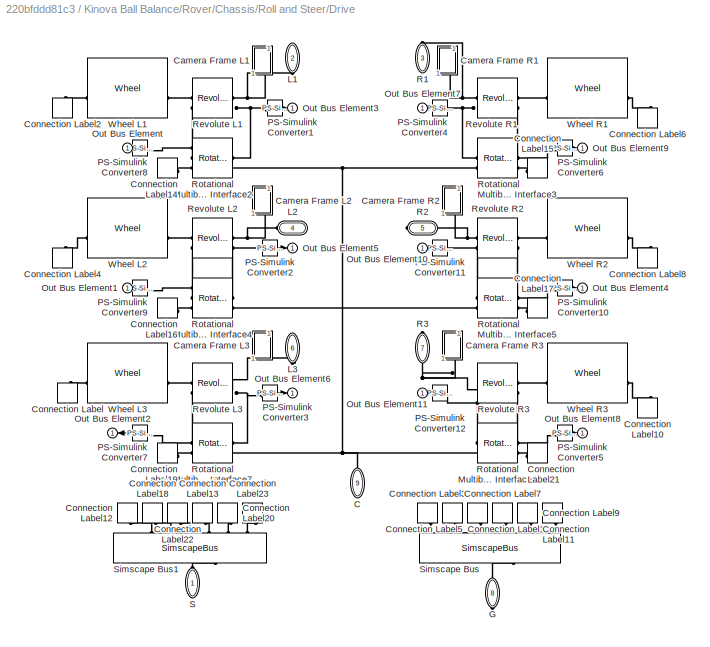
BLOCK [SubSystem] Kinova Ball Balance/Rover/Chassis/Roll and Steer/Drive
BLOCK [PMIOPort] Kinova Ball Balance/Rover/Chassis/Roll and Steer/Drive/C
  NameLocation = left
  Port = 9
  Side = Left
BLOCK [SubSystem] Kinova Ball Balance/Rover/Chassis/Roll and Steer/Drive/Camera Frame L1
  NameLocation = right
BLOCK [PMIOPort] Kinova Ball Balance/Rover/Chassis/Roll and Steer/Drive/Camera Frame L1/B
  Side = Left
BLOCK [Reference] Kinova Ball Balance/Rover/Chassis/Roll and Steer/Drive/Camera Frame L1/Reference Cam Whl  REF=sm_lib/Frames and
Transforms/Reference
Frame
  NameLocation = top
  SourceBlock = sm_lib/Frames and\nTransforms/Reference\nFrame
  SourceType = Reference\nFrame
BLOCK [Reference] Kinova Ball Balance/Rover/Chassis/Roll and Steer/Drive/Camera Frame L1/Transform Cam Whl  REF=sm_lib/Frames and
Transforms/Rigid
Transform
  NameLocation = right
  SourceBlock = sm_lib/Frames and\nTransforms/Rigid\nTransform
  SourceType = Rigid\nTransform
BLOCK [SubSystem] Kinova Ball Balance/Rover/Chassis/Roll and Steer/Drive/Camera Frame L2
  NameLocation = right
BLOCK [PMIOPort] Kinova Ball Balance/Rover/Chassis/Roll and Steer/Drive/Camera Frame L2/B
  Side = Left
BLOCK [Reference] Kinova Ball Balance/Rover/Chassis/Roll and Steer/Drive/Camera Frame L2/Reference Cam Whl  REF=sm_lib/Frames and
Transforms/Reference
Frame
  NameLocation = top
  SourceBlock = sm_lib/Frames and\nTransforms/Reference\nFrame
  SourceType = Reference\nFrame
BLOCK [Reference] Kinova Ball Balance/Rover/Chassis/Roll and Steer/Drive/Camera Frame L2/Transform Cam Whl  REF=sm_lib/Frames and
Transforms/Rigid
Transform
  NameLocation = right
  SourceBlock = sm_lib/Frames and\nTransforms/Rigid\nTransform
  SourceType = Rigid\nTransform
BLOCK [SubSystem] Kinova Ball Balance/Rover/Chassis/Roll and Steer/Drive/Camera Frame L3
  NameLocation = right
BLOCK [PMIOPort] Kinova Ball Balance/Rover/Chassis/Roll and Steer/Drive/Camera Frame L3/B
  Side = Left
BLOCK [Reference] Kinova Ball Balance/Rover/Chassis/Roll and Steer/Drive/Camera Frame L3/Reference Cam Whl  REF=sm_lib/Frames and
Transforms/Reference
Frame
  NameLocation = top
  SourceBlock = sm_lib/Frames and\nTransforms/Reference\nFrame
  SourceType = Reference\nFrame
BLOCK [Reference] Kinova Ball Balance/Rover/Chassis/Roll and Steer/Drive/Camera Frame L3/Transform Cam Whl  REF=sm_lib/Frames and
Transforms/Rigid
Transform
  NameLocation = right
  SourceBlock = sm_lib/Frames and\nTransforms/Rigid\nTransform
  SourceType = Rigid\nTransform
BLOCK [SubSystem] Kinova Ball Balance/Rover/Chassis/Roll and Steer/Drive/Camera Frame R1
  NameLocation = right
BLOCK [PMIOPort] Kinova Ball Balance/Rover/Chassis/Roll and Steer/Drive/Camera Frame R1/B
  Side = Left
BLOCK [Reference] Kinova Ball Balance/Rover/Chassis/Roll and Steer/Drive/Camera Frame R1/Reference Cam Whl  REF=sm_lib/Frames and
Transforms/Reference
Frame
  NameLocation = top
  SourceBlock = sm_lib/Frames and\nTransforms/Reference\nFrame
  SourceType = Reference\nFrame
BLOCK [Reference] Kinova Ball Balance/Rover/Chassis/Roll and Steer/Drive/Camera Frame R1/Transform Cam Whl  REF=sm_lib/Frames and
Transforms/Rigid
Transform
  NameLocation = right
  SourceBlock = sm_lib/Frames and\nTransforms/Rigid\nTransform
  SourceType = Rigid\nTransform
BLOCK [SubSystem] Kinova Ball Balance/Rover/Chassis/Roll and Steer/Drive/Camera Frame R2
  NameLocation = right
BLOCK [PMIOPort] Kinova Ball Balance/Rover/Chassis/Roll and Steer/Drive/Camera Frame R2/B
  Side = Left
BLOCK [Reference] Kinova Ball Balance/Rover/Chassis/Roll and Steer/Drive/Camera Frame R2/Reference Cam Whl  REF=sm_lib/Frames and
Transforms/Reference
Frame
  NameLocation = top
  SourceBlock = sm_lib/Frames and\nTransforms/Reference\nFrame
  SourceType = Reference\nFrame
BLOCK [Reference] Kinova Ball Balance/Rover/Chassis/Roll and Steer/Drive/Camera Frame R2/Transform Cam Whl  REF=sm_lib/Frames and
Transforms/Rigid
Transform
  NameLocation = right
  SourceBlock = sm_lib/Frames and\nTransforms/Rigid\nTransform
  SourceType = Rigid\nTransform
BLOCK [SubSystem] Kinova Ball Balance/Rover/Chassis/Roll and Steer/Drive/Camera Frame R3
  NameLocation = right
BLOCK [PMIOPort] Kinova Ball Balance/Rover/Chassis/Roll and Steer/Drive/Camera Frame R3/B
  Side = Left
BLOCK [Reference] Kinova Ball Balance/Rover/Chassis/Roll and Steer/Drive/Camera Frame R3/Reference Cam Whl  REF=sm_lib/Frames and
Transforms/Reference
Frame
  NameLocation = top
  SourceBlock = sm_lib/Frames and\nTransforms/Reference\nFrame
  SourceType = Reference\nFrame
BLOCK [Reference] Kinova Ball Balance/Rover/Chassis/Roll and Steer/Drive/Camera Frame R3/Transform Cam Whl  REF=sm_lib/Frames and
Transforms/Rigid
Transform
  NameLocation = right
  SourceBlock = sm_lib/Frames and\nTransforms/Rigid\nTransform
  SourceType = Rigid\nTransform
BLOCK [ConnectionLabel] Kinova Ball Balance/Rover/Chassis/Roll and Steer/Drive/Connection Label
  Label = GL3
  NameLocation = right
BLOCK [ConnectionLabel] Kinova Ball Balance/Rover/Chassis/Roll and Steer/Drive/Connection Label1
  Label = GL3
  NameLocation = left
BLOCK [ConnectionLabel] Kinova Ball Balance/Rover/Chassis/Roll and Steer/Drive/Connection Label10
  Label = GR3
  NameLocation = left
BLOCK [ConnectionLabel] Kinova Ball Balance/Rover/Chassis/Roll and Steer/Drive/Connection Label11
  Label = GR3
  NameLocation = right
BLOCK [ConnectionLabel] Kinova Ball Balance/Rover/Chassis/Roll and Steer/Drive/Connection Label12
  Label = L1
  NameLocation = left
BLOCK [ConnectionLabel] Kinova Ball Balance/Rover/Chassis/Roll and Steer/Drive/Connection Label13
  Label = R1
  NameLocation = left
BLOCK [ConnectionLabel] Kinova Ball Balance/Rover/Chassis/Roll and Steer/Drive/Connection Label14
  Label = L1
BLOCK [ConnectionLabel] Kinova Ball Balance/Rover/Chassis/Roll and Steer/Drive/Connection Label15
  Label = R1
BLOCK [ConnectionLabel] Kinova Ball Balance/Rover/Chassis/Roll and Steer/Drive/Connection Label16
  Label = L2
BLOCK [ConnectionLabel] Kinova Ball Balance/Rover/Chassis/Roll and Steer/Drive/Connection Label17
  Label = R2
BLOCK [ConnectionLabel] Kinova Ball Balance/Rover/Chassis/Roll and Steer/Drive/Connection Label18
  Label = L2
  NameLocation = left
BLOCK [ConnectionLabel] Kinova Ball Balance/Rover/Chassis/Roll and Steer/Drive/Connection Label19
  Label = L3
BLOCK [ConnectionLabel] Kinova Ball Balance/Rover/Chassis/Roll and Steer/Drive/Connection Label2
  Label = GL1
  NameLocation = right
BLOCK [ConnectionLabel] Kinova Ball Balance/Rover/Chassis/Roll and Steer/Drive/Connection Label20
  Label = R2
  NameLocation = left
BLOCK [ConnectionLabel] Kinova Ball Balance/Rover/Chassis/Roll and Steer/Drive/Connection Label21
  Label = R3
BLOCK [ConnectionLabel] Kinova Ball Balance/Rover/Chassis/Roll and Steer/Drive/Connection Label22
  Label = L3
  NameLocation = left
BLOCK [ConnectionLabel] Kinova Ball Balance/Rover/Chassis/Roll and Steer/Drive/Connection Label23
  Label = R3
  NameLocation = left
BLOCK [ConnectionLabel] Kinova Ball Balance/Rover/Chassis/Roll and Steer/Drive/Connection Label3
  Label = GL1
  NameLocation = right
BLOCK [ConnectionLabel] Kinova Ball Balance/Rover/Chassis/Roll and Steer/Drive/Connection Label4
  Label = GL2
  NameLocation = right
BLOCK [ConnectionLabel] Kinova Ball Balance/Rover/Chassis/Roll and Steer/Drive/Connection Label5
  Label = GL2
  NameLocation = right
BLOCK [ConnectionLabel] Kinova Ball Balance/Rover/Chassis/Roll and Steer/Drive/Connection Label6
  Label = GR1
  NameLocation = left
BLOCK [ConnectionLabel] Kinova Ball Balance/Rover/Chassis/Roll and Steer/Drive/Connection Label7
  Label = GR1
  NameLocation = right
BLOCK [ConnectionLabel] Kinova Ball Balance/Rover/Chassis/Roll and Steer/Drive/Connection Label8
  Label = GR2
  NameLocation = left
BLOCK [ConnectionLabel] Kinova Ball Balance/Rover/Chassis/Roll and Steer/Drive/Connection Label9
  Label = GR2
  NameLocation = right
BLOCK [PMIOPort] Kinova Ball Balance/Rover/Chassis/Roll and Steer/Drive/G
  NameLocation = left
  Port = 8
  Side = Right
BLOCK [PMIOPort] Kinova Ball Balance/Rover/Chassis/Roll and Steer/Drive/L1
  NameLocation = right
  Port = 2
  Side = Left
BLOCK [PMIOPort] Kinova Ball Balance/Rover/Chassis/Roll and Steer/Drive/L2
  NameLocation = top
  Port = 4
  Side = Left
BLOCK [PMIOPort] Kinova Ball Balance/Rover/Chassis/Roll and Steer/Drive/L3
  NameLocation = right
  Port = 6
  Side = Left
BLOCK [Outport] Kinova Ball Balance/Rover/Chassis/Roll and Steer/Drive/Out Bus Element
BLOCK [Outport] Kinova Ball Balance/Rover/Chassis/Roll and Steer/Drive/Out Bus Element1
BLOCK [Outport] Kinova Ball Balance/Rover/Chassis/Roll and Steer/Drive/Out Bus Element10
  NameLocation = top
BLOCK [Outport] Kinova Ball Balance/Rover/Chassis/Roll and Steer/Drive/Out Bus Element11
  NameLocation = top
BLOCK [Outport] Kinova Ball Balance/Rover/Chassis/Roll and Steer/Drive/Out Bus Element2
BLOCK [Outport] Kinova Ball Balance/Rover/Chassis/Roll and Steer/Drive/Out Bus Element3
  NameLocation = top
BLOCK [Outport] Kinova Ball Balance/Rover/Chassis/Roll and Steer/Drive/Out Bus Element4
BLOCK [Outport] Kinova Ball Balance/Rover/Chassis/Roll and Steer/Drive/Out Bus Element5
  NameLocation = top
BLOCK [Outport] Kinova Ball Balance/Rover/Chassis/Roll and Steer/Drive/Out Bus Element6
  NameLocation = top
BLOCK [Outport] Kinova Ball Balance/Rover/Chassis/Roll and Steer/Drive/Out Bus Element7
  NameLocation = top
BLOCK [Outport] Kinova Ball Balance/Rover/Chassis/Roll and Steer/Drive/Out Bus Element8
BLOCK [Outport] Kinova Ball Balance/Rover/Chassis/Roll and Steer/Drive/Out Bus Element9
BLOCK [Reference] Kinova Ball Balance/Rover/Chassis/Roll and Steer/Drive/PS-Simulink Converter1  REF=nesl_utility/PS-Simulink
Converter
  SourceBlock = nesl_utility/PS-Simulink\nConverter
  SourceType = PS-Simulink\nConverter
BLOCK [Reference] Kinova Ball Balance/Rover/Chassis/Roll and Steer/Drive/PS-Simulink Converter10  REF=nesl_utility/PS-Simulink
Converter
  NameLocation = top
  SourceBlock = nesl_utility/PS-Simulink\nConverter
  SourceType = PS-Simulink\nConverter
BLOCK [Reference] Kinova Ball Balance/Rover/Chassis/Roll and Steer/Drive/PS-Simulink Converter11  REF=nesl_utility/PS-Simulink
Converter
  NameLocation = top
  SourceBlock = nesl_utility/PS-Simulink\nConverter
  SourceType = PS-Simulink\nConverter
BLOCK [Reference] Kinova Ball Balance/Rover/Chassis/Roll and Steer/Drive/PS-Simulink Converter12  REF=nesl_utility/PS-Simulink
Converter
  NameLocation = top
  SourceBlock = nesl_utility/PS-Simulink\nConverter
  SourceType = PS-Simulink\nConverter
BLOCK [Reference] Kinova Ball Balance/Rover/Chassis/Roll and Steer/Drive/PS-Simulink Converter2  REF=nesl_utility/PS-Simulink
Converter
  SourceBlock = nesl_utility/PS-Simulink\nConverter
  SourceType = PS-Simulink\nConverter
BLOCK [Reference] Kinova Ball Balance/Rover/Chassis/Roll and Steer/Drive/PS-Simulink Converter3  REF=nesl_utility/PS-Simulink
Converter
  SourceBlock = nesl_utility/PS-Simulink\nConverter
  SourceType = PS-Simulink\nConverter
BLOCK [Reference] Kinova Ball Balance/Rover/Chassis/Roll and Steer/Drive/PS-Simulink Converter4  REF=nesl_utility/PS-Simulink
Converter
  NameLocation = top
  SourceBlock = nesl_utility/PS-Simulink\nConverter
  SourceType = PS-Simulink\nConverter
BLOCK [Reference] Kinova Ball Balance/Rover/Chassis/Roll and Steer/Drive/PS-Simulink Converter5  REF=nesl_utility/PS-Simulink
Converter
  NameLocation = top
  SourceBlock = nesl_utility/PS-Simulink\nConverter
  SourceType = PS-Simulink\nConverter
BLOCK [Reference] Kinova Ball Balance/Rover/Chassis/Roll and Steer/Drive/PS-Simulink Converter6  REF=nesl_utility/PS-Simulink
Converter
  NameLocation = top
  SourceBlock = nesl_utility/PS-Simulink\nConverter
  SourceType = PS-Simulink\nConverter
BLOCK [Reference] Kinova Ball Balance/Rover/Chassis/Roll and Steer/Drive/PS-Simulink Converter7  REF=nesl_utility/PS-Simulink
Converter
  NameLocation = top
  SourceBlock = nesl_utility/PS-Simulink\nConverter
  SourceType = PS-Simulink\nConverter
BLOCK [Reference] Kinova Ball Balance/Rover/Chassis/Roll and Steer/Drive/PS-Simulink Converter8  REF=nesl_utility/PS-Simulink
Converter
  NameLocation = top
  SourceBlock = nesl_utility/PS-Simulink\nConverter
  SourceType = PS-Simulink\nConverter
BLOCK [Reference] Kinova Ball Balance/Rover/Chassis/Roll and Steer/Drive/PS-Simulink Converter9  REF=nesl_utility/PS-Simulink
Converter
  NameLocation = top
  SourceBlock = nesl_utility/PS-Simulink\nConverter
  SourceType = PS-Simulink\nConverter
BLOCK [PMIOPort] Kinova Ball Balance/Rover/Chassis/Roll and Steer/Drive/R1
  NameLocation = left
  Port = 3
  Side = Right
BLOCK [PMIOPort] Kinova Ball Balance/Rover/Chassis/Roll and Steer/Drive/R2
  NameLocation = top
  Port = 5
  Side = Right
BLOCK [PMIOPort] Kinova Ball Balance/Rover/Chassis/Roll and Steer/Drive/R3
  NameLocation = left
  Port = 7
  Side = Right
BLOCK [Reference] Kinova Ball Balance/Rover/Chassis/Roll and Steer/Drive/Revolute L1  REF=sm_lib/Joints/Revolute Joint
  NameLocation = top
  SourceBlock = sm_lib/Joints/Revolute Joint
  SourceType = Revolute Joint
BLOCK [Reference] Kinova Ball Balance/Rover/Chassis/Roll and Steer/Drive/Revolute L2  REF=sm_lib/Joints/Revolute Joint
  NameLocation = top
  SourceBlock = sm_lib/Joints/Revolute Joint
  SourceType = Revolute Joint
BLOCK [Reference] Kinova Ball Balance/Rover/Chassis/Roll and Steer/Drive/Revolute L3  REF=sm_lib/Joints/Revolute Joint
  NameLocation = top
  SourceBlock = sm_lib/Joints/Revolute Joint
  SourceType = Revolute Joint
BLOCK [Reference] Kinova Ball Balance/Rover/Chassis/Roll and Steer/Drive/Revolute R1  REF=sm_lib/Joints/Revolute Joint
  NameLocation = top
  SourceBlock = sm_lib/Joints/Revolute Joint
  SourceType = Revolute Joint
BLOCK [Reference] Kinova Ball Balance/Rover/Chassis/Roll and Steer/Drive/Revolute R2  REF=sm_lib/Joints/Revolute Joint
  NameLocation = top
  SourceBlock = sm_lib/Joints/Revolute Joint
  SourceType = Revolute Joint
BLOCK [Reference] Kinova Ball Balance/Rover/Chassis/Roll and Steer/Drive/Revolute R3  REF=sm_lib/Joints/Revolute Joint
  NameLocation = top
  SourceBlock = sm_lib/Joints/Revolute Joint
  SourceType = Revolute Joint
BLOCK [Reference] Kinova Ball Balance/Rover/Chassis/Roll and Steer/Drive/Rotational Multibody Interface2  REF=fl_lib/Mechanical/Multibody Interfaces/Rotational Multibody
Interface
  SourceBlock = fl_lib/Mechanical/Multibody Interfaces/Rotational Multibody\nInterface
  SourceType = Rotational Multibody\nInterface
BLOCK [Reference] Kinova Ball Balance/Rover/Chassis/Roll and Steer/Drive/Rotational Multibody Interface3  REF=fl_lib/Mechanical/Multibody Interfaces/Rotational Multibody
Interface
  SourceBlock = fl_lib/Mechanical/Multibody Interfaces/Rotational Multibody\nInterface
  SourceType = Rotational Multibody\nInterface
BLOCK [Reference] Kinova Ball Balance/Rover/Chassis/Roll and Steer/Drive/Rotational Multibody Interface4  REF=fl_lib/Mechanical/Multibody Interfaces/Rotational Multibody
Interface
  SourceBlock = fl_lib/Mechanical/Multibody Interfaces/Rotational Multibody\nInterface
  SourceType = Rotational Multibody\nInterface
BLOCK [Reference] Kinova Ball Balance/Rover/Chassis/Roll and Steer/Drive/Rotational Multibody Interface5  REF=fl_lib/Mechanical/Multibody Interfaces/Rotational Multibody
Interface
  SourceBlock = fl_lib/Mechanical/Multibody Interfaces/Rotational Multibody\nInterface
  SourceType = Rotational Multibody\nInterface
BLOCK [Reference] Kinova Ball Balance/Rover/Chassis/Roll and Steer/Drive/Rotational Multibody Interface7  REF=fl_lib/Mechanical/Multibody Interfaces/Rotational Multibody
Interface
  SourceBlock = fl_lib/Mechanical/Multibody Interfaces/Rotational Multibody\nInterface
  SourceType = Rotational Multibody\nInterface
BLOCK [Reference] Kinova Ball Balance/Rover/Chassis/Roll and Steer/Drive/Rotational Multibody Interface9  REF=fl_lib/Mechanical/Multibody Interfaces/Rotational Multibody
Interface
  SourceBlock = fl_lib/Mechanical/Multibody Interfaces/Rotational Multibody\nInterface
  SourceType = Rotational Multibody\nInterface
BLOCK [PMIOPort] Kinova Ball Balance/Rover/Chassis/Roll and Steer/Drive/S
  NameLocation = left
  Side = Left
BLOCK [SimscapeBus] Kinova Ball Balance/Rover/Chassis/Roll and Steer/Drive/Simscape Bus
  HierarchyStrings = L1;L2;L3;R1;R2;R3
  NameLocation = left
BLOCK [SimscapeBus] Kinova Ball Balance/Rover/Chassis/Roll and Steer/Drive/Simscape Bus1
  HierarchyStrings = L1;L2;L3;R1;R2;R3
  NameLocation = left
BLOCK [Reference] Kinova Ball Balance/Rover/Chassis/Roll and Steer/Drive/Wheel L1  REF=mars_rover_lib/Wheel  (lib defined in slx_4b23714ba4d0)
  SourceBlock = mars_rover_lib/Wheel
BLOCK [Reference] Kinova Ball Balance/Rover/Chassis/Roll and Steer/Drive/Wheel L2  REF=mars_rover_lib/Wheel  (lib defined in slx_4b23714ba4d0)
  SourceBlock = mars_rover_lib/Wheel
BLOCK [Reference] Kinova Ball Balance/Rover/Chassis/Roll and Steer/Drive/Wheel L3  REF=mars_rover_lib/Wheel  (lib defined in slx_4b23714ba4d0)
  SourceBlock = mars_rover_lib/Wheel
BLOCK [Reference] Kinova Ball Balance/Rover/Chassis/Roll and Steer/Drive/Wheel R1  REF=mars_rover_lib/Wheel  (lib defined in slx_4b23714ba4d0)
  SourceBlock = mars_rover_lib/Wheel
BLOCK [Reference] Kinova Ball Balance/Rover/Chassis/Roll and Steer/Drive/Wheel R2  REF=mars_rover_lib/Wheel  (lib defined in slx_4b23714ba4d0)
  SourceBlock = mars_rover_lib/Wheel
BLOCK [Reference] Kinova Ball Balance/Rover/Chassis/Roll and Steer/Drive/Wheel R3  REF=mars_rover_lib/Wheel  (lib defined in slx_4b23714ba4d0)
  SourceBlock = mars_rover_lib/Wheel
BLOCK [PMIOPort] Kinova Ball Balance/Rover/Chassis/Roll and Steer/G
  NameLocation = right
  Side = Left
BLOCK [PMIOPort] Kinova Ball Balance/Rover/Chassis/Roll and Steer/L1S
  NameLocation = right
  Port = 2
  Side = Left
BLOCK [PMIOPort] Kinova Ball Balance/Rover/Chassis/Roll and Steer/L2
  Port = 3
  Side = Left
BLOCK [PMIOPort] Kinova Ball Balance/Rover/Chassis/Roll and Steer/L3S
  NameLocation = left
  Port = 4
  Side = Left
BLOCK [Reference] Kinova Ball Balance/Rover/Chassis/Roll and Steer/Mechanical Rotational Reference  REF=fl_lib/Mechanical/Rotational Elements/Mechanical
Rotational Reference
  SourceBlock = fl_lib/Mechanical/Rotational Elements/Mechanical\nRotational Reference
  SourceType = Mechanical\nRotational Reference
BLOCK [Outport] Kinova Ball Balance/Rover/Chassis/Roll and Steer/Out Bus Element
BLOCK [Outport] Kinova Ball Balance/Rover/Chassis/Roll and Steer/Out Bus Element1
BLOCK [PMIOPort] Kinova Ball Balance/Rover/Chassis/Roll and Steer/R1S
  NameLocation = left
  Port = 5
  Side = Right
BLOCK [PMIOPort] Kinova Ball Balance/Rover/Chassis/Roll and Steer/R2
  Port = 6
  Side = Right
BLOCK [PMIOPort] Kinova Ball Balance/Rover/Chassis/Roll and Steer/R3S
  NameLocation = right
  Port = 7
  Side = Right
BLOCK [PMIOPort] Kinova Ball Balance/Rover/Chassis/Roll and Steer/S
  Port = 8
  Side = Right
BLOCK [SubSystem] Kinova Ball Balance/Rover/Chassis/Roll and Steer/Steer
  PortSchema = {"entries":[{"content":{"sides":[{"content":{"connectorIds":["LConn1","LConn2","LConn3","LConn4","LConn5"]},"type":"ConnectorPlacement.EquallySpacedRectSide","uuid":"f07d1e77-d0a1-4edf-a910-40d537cbee93"},{"content":{"connectorIds":["RConn1","RConn2","RConn3","RConn4","Out1"],"side":"RIGHT"},"type":"ConnectorPlacement.EquallySpacedRectSide","uuid":"cb8a526a-201b-4efe-8433-4e03b64c0eab"},{"content"...<+315ch>
BLOCK [ConnectionLabel] Kinova Ball Balance/Rover/Chassis/Roll and Steer/Steer/Connection Label1
  Label = LS1
  NameLocation = top
BLOCK [ConnectionLabel] Kinova Ball Balance/Rover/Chassis/Roll and Steer/Steer/Connection Label12
  Label = LS1
  NameLocation = top
BLOCK [ConnectionLabel] Kinova Ball Balance/Rover/Chassis/Roll and Steer/Steer/Connection Label13
  Label = RS1
  NameLocation = left
BLOCK [ConnectionLabel] Kinova Ball Balance/Rover/Chassis/Roll and Steer/Steer/Connection Label18
  Label = LS3
  NameLocation = top
BLOCK [ConnectionLabel] Kinova Ball Balance/Rover/Chassis/Roll and Steer/Steer/Connection Label2
  Label = RS1
  NameLocation = right
BLOCK [ConnectionLabel] Kinova Ball Balance/Rover/Chassis/Roll and Steer/Steer/Connection Label20
  Label = RS3
  NameLocation = top
BLOCK [ConnectionLabel] Kinova Ball Balance/Rover/Chassis/Roll and Steer/Steer/Connection Label3
  Label = LS3
  NameLocation = top
BLOCK [ConnectionLabel] Kinova Ball Balance/Rover/Chassis/Roll and Steer/Steer/Connection Label4
  Label = RS3
  NameLocation = top
BLOCK [ConnectionLabel] Kinova Ball Balance/Rover/Chassis/Roll and Steer/Steer/Connection Label5
  Label = C
  NameLocation = left
BLOCK [ConnectionLabel] Kinova Ball Balance/Rover/Chassis/Roll and Steer/Steer/Connection Label6
  Label = C
  NameLocation = right
BLOCK [ConnectionLabel] Kinova Ball Balance/Rover/Chassis/Roll and Steer/Steer/Connection Label7
  Label = C
  NameLocation = left
BLOCK [ConnectionLabel] Kinova Ball Balance/Rover/Chassis/Roll and Steer/Steer/Connection Label8
  Label = C
  NameLocation = left
BLOCK [ConnectionLabel] Kinova Ball Balance/Rover/Chassis/Roll and Steer/Steer/Connection Label9
  Label = C
  NameLocation = left
BLOCK [PMIOPort] Kinova Ball Balance/Rover/Chassis/Roll and Steer/Steer/L1
  Port = 4
  Side = Left
BLOCK [PMIOPort] Kinova Ball Balance/Rover/Chassis/Roll and Steer/Steer/L1S
  NameLocation = left
  Side = Left
BLOCK [PMIOPort] Kinova Ball Balance/Rover/Chassis/Roll and Steer/Steer/L3
  Port = 5
  Side = Left
BLOCK [PMIOPort] Kinova Ball Balance/Rover/Chassis/Roll and Steer/Steer/L3S
  NameLocation = left
  Port = 3
  Side = Left
BLOCK [Reference] Kinova Ball Balance/Rover/Chassis/Roll and Steer/Steer/Mechanical Rotational Reference  REF=fl_lib/Mechanical/Rotational Elements/Mechanical
Rotational Reference
  SourceBlock = fl_lib/Mechanical/Rotational Elements/Mechanical\nRotational Reference
  SourceType = Mechanical\nRotational Reference
BLOCK [Outport] Kinova Ball Balance/Rover/Chassis/Roll and Steer/Steer/Out Bus Element1
BLOCK [Outport] Kinova Ball Balance/Rover/Chassis/Roll and Steer/Steer/Out Bus Element10
BLOCK [Outport] Kinova Ball Balance/Rover/Chassis/Roll and Steer/Steer/Out Bus Element11
BLOCK [Outport] Kinova Ball Balance/Rover/Chassis/Roll and Steer/Steer/Out Bus Element12
BLOCK [Outport] Kinova Ball Balance/Rover/Chassis/Roll and Steer/Steer/Out Bus Element2
BLOCK [Outport] Kinova Ball Balance/Rover/Chassis/Roll and Steer/Steer/Out Bus Element3
BLOCK [Outport] Kinova Ball Balance/Rover/Chassis/Roll and Steer/Steer/Out Bus Element4
BLOCK [Outport] Kinova Ball Balance/Rover/Chassis/Roll and Steer/Steer/Out Bus Element5
BLOCK [Outport] Kinova Ball Balance/Rover/Chassis/Roll and Steer/Steer/Out Bus Element6
BLOCK [Outport] Kinova Ball Balance/Rover/Chassis/Roll and Steer/Steer/Out Bus Element7
BLOCK [Outport] Kinova Ball Balance/Rover/Chassis/Roll and Steer/Steer/Out Bus Element8
BLOCK [Outport] Kinova Ball Balance/Rover/Chassis/Roll and Steer/Steer/Out Bus Element9
BLOCK [Reference] Kinova Ball Balance/Rover/Chassis/Roll and Steer/Steer/PS-Simulink Converter  REF=nesl_utility/PS-Simulink
Converter
  Commented = on
  SourceBlock = nesl_utility/PS-Simulink\nConverter
  SourceType = PS-Simulink\nConverter
BLOCK [Reference] Kinova Ball Balance/Rover/Chassis/Roll and Steer/Steer/PS-Simulink Converter1  REF=nesl_utility/PS-Simulink
Converter
  SourceBlock = nesl_utility/PS-Simulink\nConverter
  SourceType = PS-Simulink\nConverter
BLOCK [Reference] Kinova Ball Balance/Rover/Chassis/Roll and Steer/Steer/PS-Simulink Converter10  REF=nesl_utility/PS-Simulink
Converter
  SourceBlock = nesl_utility/PS-Simulink\nConverter
  SourceType = PS-Simulink\nConverter
BLOCK [Reference] Kinova Ball Balance/Rover/Chassis/Roll and Steer/Steer/PS-Simulink Converter11  REF=nesl_utility/PS-Simulink
Converter
  SourceBlock = nesl_utility/PS-Simulink\nConverter
  SourceType = PS-Simulink\nConverter
BLOCK [Reference] Kinova Ball Balance/Rover/Chassis/Roll and Steer/Steer/PS-Simulink Converter2  REF=nesl_utility/PS-Simulink
Converter
  SourceBlock = nesl_utility/PS-Simulink\nConverter
  SourceType = PS-Simulink\nConverter
BLOCK [Reference] Kinova Ball Balance/Rover/Chassis/Roll and Steer/Steer/PS-Simulink Converter3  REF=nesl_utility/PS-Simulink
Converter
  SourceBlock = nesl_utility/PS-Simulink\nConverter
  SourceType = PS-Simulink\nConverter
BLOCK [Reference] Kinova Ball Balance/Rover/Chassis/Roll and Steer/Steer/PS-Simulink Converter4  REF=nesl_utility/PS-Simulink
Converter
  SourceBlock = nesl_utility/PS-Simulink\nConverter
  SourceType = PS-Simulink\nConverter
BLOCK [Reference] Kinova Ball Balance/Rover/Chassis/Roll and Steer/Steer/PS-Simulink Converter5  REF=nesl_utility/PS-Simulink
Converter
  Commented = on
  SourceBlock = nesl_utility/PS-Simulink\nConverter
  SourceType = PS-Simulink\nConverter
BLOCK [Reference] Kinova Ball Balance/Rover/Chassis/Roll and Steer/Steer/PS-Simulink Converter6  REF=nesl_utility/PS-Simulink
Converter
  SourceBlock = nesl_utility/PS-Simulink\nConverter
  SourceType = PS-Simulink\nConverter
BLOCK [Reference] Kinova Ball Balance/Rover/Chassis/Roll and Steer/Steer/PS-Simulink Converter7  REF=nesl_utility/PS-Simulink
Converter
  SourceBlock = nesl_utility/PS-Simulink\nConverter
  SourceType = PS-Simulink\nConverter
BLOCK [Reference] Kinova Ball Balance/Rover/Chassis/Roll and Steer/Steer/PS-Simulink Converter8  REF=nesl_utility/PS-Simulink
Converter
  SourceBlock = nesl_utility/PS-Simulink\nConverter
  SourceType = PS-Simulink\nConverter
BLOCK [Reference] Kinova Ball Balance/Rover/Chassis/Roll and Steer/Steer/PS-Simulink Converter9  REF=nesl_utility/PS-Simulink
Converter
  Commented = on
  SourceBlock = nesl_utility/PS-Simulink\nConverter
  SourceType = PS-Simulink\nConverter
BLOCK [PMIOPort] Kinova Ball Balance/Rover/Chassis/Roll and Steer/Steer/R1
  Port = 8
  Side = Right
BLOCK [PMIOPort] Kinova Ball Balance/Rover/Chassis/Roll and Steer/Steer/R1S
  NameLocation = left
  Port = 2
  Side = Right
BLOCK [PMIOPort] Kinova Ball Balance/Rover/Chassis/Roll and Steer/Steer/R3
  Port = 9
  Side = Right
BLOCK [PMIOPort] Kinova Ball Balance/Rover/Chassis/Roll and Steer/Steer/R3S
  NameLocation = left
  Port = 7
  Side = Right
BLOCK [Reference] Kinova Ball Balance/Rover/Chassis/Roll and Steer/Steer/Revolute Steer L1  REF=sm_lib/Joints/Revolute Joint
  NameLocation = left
  SourceBlock = sm_lib/Joints/Revolute Joint
  SourceType = Revolute Joint
BLOCK [Reference] Kinova Ball Balance/Rover/Chassis/Roll and Steer/Steer/Revolute Steer L3  REF=sm_lib/Joints/Revolute Joint
  Commented = on
  NameLocation = left
  SourceBlock = sm_lib/Joints/Revolute Joint
  SourceType = Revolute Joint
BLOCK [Reference] Kinova Ball Balance/Rover/Chassis/Roll and Steer/Steer/Revolute Steer R1  REF=sm_lib/Joints/Revolute Joint
  NameLocation = left
  SourceBlock = sm_lib/Joints/Revolute Joint
  SourceType = Revolute Joint
BLOCK [Reference] Kinova Ball Balance/Rover/Chassis/Roll and Steer/Steer/Revolute Steer R3  REF=sm_lib/Joints/Revolute Joint
  Commented = on
  NameLocation = left
  SourceBlock = sm_lib/Joints/Revolute Joint
  SourceType = Revolute Joint
BLOCK [Reference] Kinova Ball Balance/Rover/Chassis/Roll and Steer/Steer/Rotational Multibody Interface  REF=fl_lib/Mechanical/Multibody Interfaces/Rotational Multibody
Interface
  NameLocation = right
  SourceBlock = fl_lib/Mechanical/Multibody Interfaces/Rotational Multibody\nInterface
  SourceType = Rotational Multibody\nInterface
BLOCK [Reference] Kinova Ball Balance/Rover/Chassis/Roll and Steer/Steer/Rotational Multibody Interface1  REF=fl_lib/Mechanical/Multibody Interfaces/Rotational Multibody
Interface
  NameLocation = right
  SourceBlock = fl_lib/Mechanical/Multibody Interfaces/Rotational Multibody\nInterface
  SourceType = Rotational Multibody\nInterface
BLOCK [Reference] Kinova Ball Balance/Rover/Chassis/Roll and Steer/Steer/Rotational Multibody Interface6  REF=fl_lib/Mechanical/Multibody Interfaces/Rotational Multibody
Interface
  Commented = on
  NameLocation = right
  SourceBlock = fl_lib/Mechanical/Multibody Interfaces/Rotational Multibody\nInterface
  SourceType = Rotational Multibody\nInterface
BLOCK [Reference] Kinova Ball Balance/Rover/Chassis/Roll and Steer/Steer/Rotational Multibody Interface8  REF=fl_lib/Mechanical/Multibody Interfaces/Rotational Multibody
Interface
  Commented = on
  NameLocation = right
  SourceBlock = fl_lib/Mechanical/Multibody Interfaces/Rotational Multibody\nInterface
  SourceType = Rotational Multibody\nInterface
BLOCK [PMIOPort] Kinova Ball Balance/Rover/Chassis/Roll and Steer/Steer/S
  NameLocation = top
  Port = 6
  Side = Left
BLOCK [SimscapeBus] Kinova Ball Balance/Rover/Chassis/Roll and Steer/Steer/Simscape Bus
  HierarchyStrings = LS1;LS3;RS1;RS3
BLOCK [SubSystem] Kinova Ball Balance/Rover/Chassis/Roll and Steer/Steer/Steering Bracket L1
  NameLocation = right
BLOCK [PMIOPort] Kinova Ball Balance/Rover/Chassis/Roll and Steer/Steer/Steering Bracket L1/B
  Side = Left
BLOCK [PMIOPort] Kinova Ball Balance/Rover/Chassis/Roll and Steer/Steer/Steering Bracket L1/F
  Port = 2
  Side = Left
BLOCK [Reference] Kinova Ball Balance/Rover/Chassis/Roll and Steer/Steer/Steering Bracket L1/File Solid5  REF=sm_lib/Body Elements/File Solid
  NameLocation = top
  SourceBlock = sm_lib/Body Elements/File Solid
  SourceType = File Solid
BLOCK [Reference] Kinova Ball Balance/Rover/Chassis/Roll and Steer/Steer/Steering Bracket L1/Reference Frame  REF=sm_lib/Frames and
Transforms/Reference
Frame
  SourceBlock = sm_lib/Frames and\nTransforms/Reference\nFrame
  SourceType = Reference\nFrame
BLOCK [Reference] Kinova Ball Balance/Rover/Chassis/Roll and Steer/Steer/Steering Bracket L1/Rigid Transform  REF=sm_lib/Frames and
Transforms/Rigid
Transform
  SourceBlock = sm_lib/Frames and\nTransforms/Rigid\nTransform
  SourceType = Rigid\nTransform
BLOCK [Reference] Kinova Ball Balance/Rover/Chassis/Roll and Steer/Steer/Steering Bracket L1/Rigid Transform1  REF=sm_lib/Frames and
Transforms/Rigid
Transform
  NameLocation = top
  SourceBlock = sm_lib/Frames and\nTransforms/Rigid\nTransform
  SourceType = Rigid\nTransform
BLOCK [SubSystem] Kinova Ball Balance/Rover/Chassis/Roll and Steer/Steer/Steering Bracket L3
  NameLocation = right
BLOCK [PMIOPort] Kinova Ball Balance/Rover/Chassis/Roll and Steer/Steer/Steering Bracket L3/B
  Side = Left
BLOCK [PMIOPort] Kinova Ball Balance/Rover/Chassis/Roll and Steer/Steer/Steering Bracket L3/F
  Port = 2
  Side = Right
BLOCK [Reference] Kinova Ball Balance/Rover/Chassis/Roll and Steer/Steer/Steering Bracket L3/File Solid5  REF=sm_lib/Body Elements/File Solid
  NameLocation = top
  SourceBlock = sm_lib/Body Elements/File Solid
  SourceType = File Solid
BLOCK [Reference] Kinova Ball Balance/Rover/Chassis/Roll and Steer/Steer/Steering Bracket L3/Reference Frame  REF=sm_lib/Frames and
Transforms/Reference
Frame
  SourceBlock = sm_lib/Frames and\nTransforms/Reference\nFrame
  SourceType = Reference\nFrame
BLOCK [Reference] Kinova Ball Balance/Rover/Chassis/Roll and Steer/Steer/Steering Bracket L3/Rigid Transform  REF=sm_lib/Frames and
Transforms/Rigid
Transform
  SourceBlock = sm_lib/Frames and\nTransforms/Rigid\nTransform
  SourceType = Rigid\nTransform
BLOCK [Reference] Kinova Ball Balance/Rover/Chassis/Roll and Steer/Steer/Steering Bracket L3/Rigid Transform1  REF=sm_lib/Frames and
Transforms/Rigid
Transform
  NameLocation = top
  SourceBlock = sm_lib/Frames and\nTransforms/Rigid\nTransform
  SourceType = Rigid\nTransform
BLOCK [SubSystem] Kinova Ball Balance/Rover/Chassis/Roll and Steer/Steer/Steering Bracket R1
  NameLocation = right
BLOCK [PMIOPort] Kinova Ball Balance/Rover/Chassis/Roll and Steer/Steer/Steering Bracket R1/B
  Side = Right
BLOCK [PMIOPort] Kinova Ball Balance/Rover/Chassis/Roll and Steer/Steer/Steering Bracket R1/F
  Port = 2
  Side = Left
BLOCK [Reference] Kinova Ball Balance/Rover/Chassis/Roll and Steer/Steer/Steering Bracket R1/File Solid5  REF=sm_lib/Body Elements/File Solid
  NameLocation = top
  SourceBlock = sm_lib/Body Elements/File Solid
  SourceType = File Solid
BLOCK [Reference] Kinova Ball Balance/Rover/Chassis/Roll and Steer/Steer/Steering Bracket R1/Reference Frame  REF=sm_lib/Frames and
Transforms/Reference
Frame
  SourceBlock = sm_lib/Frames and\nTransforms/Reference\nFrame
  SourceType = Reference\nFrame
BLOCK [Reference] Kinova Ball Balance/Rover/Chassis/Roll and Steer/Steer/Steering Bracket R1/Rigid Transform  REF=sm_lib/Frames and
Transforms/Rigid
Transform
  SourceBlock = sm_lib/Frames and\nTransforms/Rigid\nTransform
  SourceType = Rigid\nTransform
BLOCK [Reference] Kinova Ball Balance/Rover/Chassis/Roll and Steer/Steer/Steering Bracket R1/Rigid Transform1  REF=sm_lib/Frames and
Transforms/Rigid
Transform
  NameLocation = top
  SourceBlock = sm_lib/Frames and\nTransforms/Rigid\nTransform
  SourceType = Rigid\nTransform
BLOCK [Reference] Kinova Ball Balance/Rover/Chassis/Roll and Steer/Steer/Steering Bracket R1/Transform Right Side  REF=sm_lib/Frames and
Transforms/Rigid
Transform
  SourceBlock = sm_lib/Frames and\nTransforms/Rigid\nTransform
  SourceType = Rigid\nTransform
BLOCK [SubSystem] Kinova Ball Balance/Rover/Chassis/Roll and Steer/Steer/Steering Bracket R3
  NameLocation = right
BLOCK [PMIOPort] Kinova Ball Balance/Rover/Chassis/Roll and Steer/Steer/Steering Bracket R3/B
  Side = Right
BLOCK [PMIOPort] Kinova Ball Balance/Rover/Chassis/Roll and Steer/Steer/Steering Bracket R3/F
  Port = 2
  Side = Left
BLOCK [Reference] Kinova Ball Balance/Rover/Chassis/Roll and Steer/Steer/Steering Bracket R3/File Solid5  REF=sm_lib/Body Elements/File Solid
  NameLocation = top
  SourceBlock = sm_lib/Body Elements/File Solid
  SourceType = File Solid
BLOCK [Reference] Kinova Ball Balance/Rover/Chassis/Roll and Steer/Steer/Steering Bracket R3/Reference Frame  REF=sm_lib/Frames and
Transforms/Reference
Frame
  SourceBlock = sm_lib/Frames and\nTransforms/Reference\nFrame
  SourceType = Reference\nFrame
BLOCK [Reference] Kinova Ball Balance/Rover/Chassis/Roll and Steer/Steer/Steering Bracket R3/Rigid Transform  REF=sm_lib/Frames and
Transforms/Rigid
Transform
  SourceBlock = sm_lib/Frames and\nTransforms/Rigid\nTransform
  SourceType = Rigid\nTransform
BLOCK [Reference] Kinova Ball Balance/Rover/Chassis/Roll and Steer/Steer/Steering Bracket R3/Rigid Transform1  REF=sm_lib/Frames and
Transforms/Rigid
Transform
  NameLocation = top
  SourceBlock = sm_lib/Frames and\nTransforms/Rigid\nTransform
  SourceType = Rigid\nTransform
BLOCK [Reference] Kinova Ball Balance/Rover/Chassis/Roll and Steer/Steer/Steering Bracket R3/Transform Right Side  REF=sm_lib/Frames and
Transforms/Rigid
Transform
  SourceBlock = sm_lib/Frames and\nTransforms/Rigid\nTransform
  SourceType = Rigid\nTransform
BLOCK [Reference] Kinova Ball Balance/Rover/Chassis/Roll and Steer/Steer/Weld Joint  REF=sm_lib/Joints/Weld Joint
  SourceBlock = sm_lib/Joints/Weld Joint
  SourceType = Weld Joint
BLOCK [Reference] Kinova Ball Balance/Rover/Chassis/Roll and Steer/Steer/Weld Joint1  REF=sm_lib/Joints/Weld Joint
  SourceBlock = sm_lib/Joints/Weld Joint
  SourceType = Weld Joint
BLOCK [Reference] Kinova Ball Balance/Rover/Chassis/Spherical Diff L  REF=sm_lib/Joints/Spherical
Joint
  SourceBlock = sm_lib/Joints/Spherical\nJoint
  SourceType = Spherical\nJoint
BLOCK [Reference] Kinova Ball Balance/Rover/Chassis/Spherical Diff R  REF=sm_lib/Joints/Spherical
Joint
  SourceBlock = sm_lib/Joints/Spherical\nJoint
  SourceType = Spherical\nJoint
BLOCK [PMIOPort] Kinova Ball Balance/Rover/Chassis/Storage
  Port = 2
  Side = Left
BLOCK [Reference] Kinova Ball Balance/Rover/Chassis/Universal Diff L  REF=sm_lib/Joints/Universal
Joint
  SourceBlock = sm_lib/Joints/Universal\nJoint
  SourceType = Universal\nJoint
BLOCK [Reference] Kinova Ball Balance/Rover/Chassis/Universal Diff R  REF=sm_lib/Joints/Universal
Joint
  SourceBlock = sm_lib/Joints/Universal\nJoint
  SourceType = Universal\nJoint
BLOCK [Inport] Kinova Ball Balance/Rover/In Bus Element3
BLOCK [Reference] Kinova Ball Balance/Rover/Mechanism Configuration  REF=sm_lib/Utilities/Mechanism
Configuration
  SourceBlock = sm_lib/Utilities/Mechanism\nConfiguration
  SourceType = Mechanism\nConfiguration
BLOCK [Outport] Kinova Ball Balance/Rover/Out Bus Element1
BLOCK [Outport] Kinova Ball Balance/Rover/Out Bus Element4
BLOCK [SubSystem] Kinova Ball Balance/Rover/Path
BLOCK [Reference] Kinova Ball Balance/Rover/Path/Points  REF=sm_lib/Curves and Surfaces/Point Cloud
  SourceBlock = sm_lib/Curves and Surfaces/Point Cloud
  SourceType = Point Cloud
BLOCK [PMIOPort] Kinova Ball Balance/Rover/Path/R
  Side = Left
BLOCK [Reference] Kinova Ball Balance/Rover/Path/Rigid Transform  REF=sm_lib/Frames and
Transforms/Rigid
Transform
  SourceBlock = sm_lib/Frames and\nTransforms/Rigid\nTransform
  SourceType = Rigid\nTransform
BLOCK [Reference] Kinova Ball Balance/Rover/Path/Spline  REF=sm_lib/Curves and Surfaces/Spline
  Commented = on
  SourceBlock = sm_lib/Curves and Surfaces/Spline
  SourceType = Spline
BLOCK [Reference] Kinova Ball Balance/Rover/Rigid Transform  REF=sm_lib/Frames and
Transforms/Rigid
Transform
  SourceBlock = sm_lib/Frames and\nTransforms/Rigid\nTransform
  SourceType = Rigid\nTransform
BLOCK [PMIOPort] Kinova Ball Balance/Rover/RoboArm
  Side = Right
BLOCK [Reference] Kinova Ball Balance/Rover/Solver Configuration  REF=nesl_utility/Solver
Configuration
  SourceBlock = nesl_utility/Solver\nConfiguration
  SourceType = Solver\nConfiguration
BLOCK [SubSystem] Kinova Ball Balance/Rover/Terrain
  NameLocation = right
BLOCK [SubSystem] Kinova Ball Balance/Rover/Terrain/Contact
BLOCK [Reference] Kinova Ball Balance/Rover/Terrain/Contact/Contact L1  REF=sm_lib/Forces and
Torques/Spatial
Contact Force
  SourceBlock = sm_lib/Forces and\nTorques/Spatial\nContact Force
  SourceType = Spatial\nContact Force
BLOCK [Reference] Kinova Ball Balance/Rover/Terrain/Contact/Contact L2  REF=sm_lib/Forces and
Torques/Spatial
Contact Force
  SourceBlock = sm_lib/Forces and\nTorques/Spatial\nContact Force
  SourceType = Spatial\nContact Force
BLOCK [Reference] Kinova Ball Balance/Rover/Terrain/Contact/Contact L3  REF=sm_lib/Forces and
Torques/Spatial
Contact Force
  SourceBlock = sm_lib/Forces and\nTorques/Spatial\nContact Force
  SourceType = Spatial\nContact Force
BLOCK [Reference] Kinova Ball Balance/Rover/Terrain/Contact/Contact R1  REF=sm_lib/Forces and
Torques/Spatial
Contact Force
  SourceBlock = sm_lib/Forces and\nTorques/Spatial\nContact Force
  SourceType = Spatial\nContact Force
BLOCK [Reference] Kinova Ball Balance/Rover/Terrain/Contact/Contact R2  REF=sm_lib/Forces and
Torques/Spatial
Contact Force
  SourceBlock = sm_lib/Forces and\nTorques/Spatial\nContact Force
  SourceType = Spatial\nContact Force
BLOCK [Reference] Kinova Ball Balance/Rover/Terrain/Contact/Contact R3  REF=sm_lib/Forces and
Torques/Spatial
Contact Force
  SourceBlock = sm_lib/Forces and\nTorques/Spatial\nContact Force
  SourceType = Spatial\nContact Force
BLOCK [SimscapeBus] Kinova Ball Balance/Rover/Terrain/Contact/Simscape Bus
  HierarchyStrings = L1;L2;L3;R1;R2;R3
BLOCK [PMIOPort] Kinova Ball Balance/Rover/Terrain/Contact/Surface
  Port = 2
  Side = Right
BLOCK [PMIOPort] Kinova Ball Balance/Rover/Terrain/Contact/Wheels
  Side = Right
BLOCK [PMIOPort] Kinova Ball Balance/Rover/Terrain/G
  NameLocation = left
  Port = 2
  Side = Right
BLOCK [Reference] Kinova Ball Balance/Rover/Terrain/Terrain Geometry  REF=sm_lib/Body Elements/File Solid
  Commented = on
  NameLocation = left
  SourceBlock = sm_lib/Body Elements/File Solid
  SourceType = File Solid
BLOCK [Reference] Kinova Ball Balance/Rover/Terrain/Terrain Grid Surface  REF=sm_lib/Curves and Surfaces/Grid Surface
  SourceBlock = sm_lib/Curves and Surfaces/Grid Surface
  SourceType = Grid Surface
BLOCK [Reference] Kinova Ball Balance/Rover/Terrain/Terrain Point Cloud  REF=sm_lib/Curves and Surfaces/Point Cloud
  Commented = on
  NameLocation = right
  SourceBlock = sm_lib/Curves and Surfaces/Point Cloud
  SourceType = Point Cloud
BLOCK [PMIOPort] Kinova Ball Balance/Rover/Terrain/W
  Side = Right
BLOCK [Reference] Kinova Ball Balance/Rover/Weld Joint  REF=sm_lib/Joints/Weld Joint
  SourceBlock = sm_lib/Joints/Weld Joint
  SourceType = Weld Joint
BLOCK [Reference] Kinova Ball Balance/Rover/World Frame  REF=sm_lib/Frames and
Transforms/World Frame
  SourceBlock = sm_lib/Frames and\nTransforms/World Frame
  SourceType = World Frame
BLOCK [Selector] Kinova Ball Balance/Selector
  IndexOptions = Index vector (dialog)
  Indices = 1:2
  InputPortWidth = 4
  OutputSizes = 1
BLOCK [Reference] Kinova Ball Balance/Spatial Contact Force  REF=sm_lib/Forces and
Torques/Spatial
Contact Force
  SourceBlock = sm_lib/Forces and\nTorques/Spatial\nContact Force
  SourceType = Spatial\nContact Force
BLOCK [UnitDelay] Kinova Ball Balance/Unit Delay
  HasFrameUpgradeWarning = on
  InitialCondition = U0
  SampleTime = -1
BLOCK [SubSystem] Kinova Ball Balance/Waypoints
BLOCK [Concatenate] Kinova Ball Balance/Waypoints/Matrix Concatenate
  ConcatenateDimension = 2
  Mode = Multidimensional array
BLOCK [Outport] Kinova Ball Balance/Waypoints/W
BLOCK [Constant] Kinova Ball Balance/Waypoints/rover path x
  Value = rover_path.x
BLOCK [Constant] Kinova Ball Balance/Waypoints/rover path y
  Value = rover_path.y
BLOCK [Inport] Kinova Ball Balance/action
BLOCK [Outport] Kinova Ball Balance/isdone
  Port = 3
BLOCK [Outport] Kinova Ball Balance/observation
BLOCK [Outport] Kinova Ball Balance/reward
  Port = 2
BLOCK [Reference] RL Agent  REF=rllib/RL Agent
  SourceBlock = rllib/RL Agent
  SourceType = RL Agent
ANNOTATION (root): <copyright redacted>
ANNOTATION (root): Ball Balance using Reinforcement Learning
ANNOTATION Kinova Ball Balance: Select rendering option from the block dialog
ANNOTATION Kinova Ball Balance: tau_3
ANNOTATION Kinova Ball Balance/Control/Chassis Control/Ackerman Steer Angle: ROC: Radius of Curvature A3: Axle 3 L3: Rear Left Wheel R3: Rear Right Wheel
ANNOTATION Kinova Ball Balance/Control/Chassis Control/Target Direction and Speed/Check Distance To Goal: Distance from Goal to satisfy that the robot has reached the goal
ANNOTATION Kinova Ball Balance/Done: Determine if the x, y positions of the ball are outside the plate geometry: done = x < -0.5*plate.length OR x > 0.5*plate.length OR y < -0.5*plate.length OR y > 0.5*plate.length
ANNOTATION Kinova Ball Balance/Observation: Observations are: 1. positions (sine and cosine of joint angles) and velocities (joint angle derivatives) of the two actuated joints 2. positions (x and y distances from plate center) and velocities (x and y derivatives) of the ball 3. orientation (quaternions) and velocities (quaternion derivatives) of the plate 4. joint torques from the last time step 5. ball radius and mass
ANNOTATION Kinova Ball Balance/Outputs: Body
ANNOTATION Kinova Ball Balance/Outputs: Drive
ANNOTATION Kinova Ball Balance/Outputs: Steer
ANNOTATION Kinova Ball Balance/Reward: Reward the agent when the ball moves closer to the plate center: r_ball = exp(-0.001*(x^2+y^2)) Penalty for plate orientation: r_plate = -0.1*(phi^2+theta^2+ksi^2) Penalty for control effort: r_action = -0.001*(T1^2+T2^2)
ANNOTATION Kinova Ball Balance/Rover/Terrain: Uncomment for additional terrain visualization options.
LINE Kinova Ball Balance/7 DOF Manipulator/Constant1:1 -> Kinova Ball Balance/7 DOF Manipulator/Simulink-PS Converter1:1
LINE Kinova Ball Balance/7 DOF Manipulator/Constant3:1 -> Kinova Ball Balance/7 DOF Manipulator/Simulink-PS Converter3:1
LINE Kinova Ball Balance/7 DOF Manipulator/Constant4:1 -> Kinova Ball Balance/7 DOF Manipulator/Simulink-PS Converter4:1
LINE Kinova Ball Balance/7 DOF Manipulator/Demux1:1 -> Kinova Ball Balance/7 DOF Manipulator/SPS1:1
LINE Kinova Ball Balance/7 DOF Manipulator/Demux1:2 -> Kinova Ball Balance/7 DOF Manipulator/SPS2:1
LINE Kinova Ball Balance/7 DOF Manipulator/Demux1:3 -> Kinova Ball Balance/7 DOF Manipulator/SPS3:1
LINE Kinova Ball Balance/7 DOF Manipulator/Demux1:4 -> Kinova Ball Balance/7 DOF Manipulator/SPS4:1
LINE Kinova Ball Balance/7 DOF Manipulator/Mux1:1 -> Kinova Ball Balance/7 DOF Manipulator/PV:1
LINE Kinova Ball Balance/7 DOF Manipulator/PSS11:1 -> Kinova Ball Balance/7 DOF Manipulator/Mux1:6
LINE Kinova Ball Balance/7 DOF Manipulator/PSS12:1 -> Kinova Ball Balance/7 DOF Manipulator/Mux1:7
LINE Kinova Ball Balance/7 DOF Manipulator/PSS13:1 -> Kinova Ball Balance/7 DOF Manipulator/Mux1:8
LINE Kinova Ball Balance/7 DOF Manipulator/PSS2:1 -> Kinova Ball Balance/7 DOF Manipulator/Mux1:1
LINE Kinova Ball Balance/7 DOF Manipulator/PSS3:1 -> Kinova Ball Balance/7 DOF Manipulator/Mux1:2
LINE Kinova Ball Balance/7 DOF Manipulator/PSS4:1 -> Kinova Ball Balance/7 DOF Manipulator/Mux1:3
LINE Kinova Ball Balance/7 DOF Manipulator/PSS5:1 -> Kinova Ball Balance/7 DOF Manipulator/Mux1:4
LINE Kinova Ball Balance/7 DOF Manipulator/PSS8:1 -> Kinova Ball Balance/7 DOF Manipulator/Mux1:5
LINE Kinova Ball Balance/7 DOF Manipulator/torque:1 -> Kinova Ball Balance/7 DOF Manipulator/Demux1:1
LINE Kinova Ball Balance/7 DOF Manipulator:1 -> Kinova Ball Balance/Observation:4
NET Kinova Ball Balance/Add:1 -> Kinova Ball Balance/7 DOF Manipulator:1, Kinova Ball Balance/Action:1, Kinova Ball Balance/Demux2:1, Kinova Ball Balance/Unit Delay:1
LINE Kinova Ball Balance/Ball Sensing/Mux:1 -> Kinova Ball Balance/Ball Sensing/s:1
LINE Kinova Ball Balance/Ball Sensing/PS-Simulink Converter1:1 -> Kinova Ball Balance/Ball Sensing/Mux:2
LINE Kinova Ball Balance/Ball Sensing/PS-Simulink Converter2:1 -> Kinova Ball Balance/Ball Sensing/Mux:3
LINE Kinova Ball Balance/Ball Sensing/PS-Simulink Converter3:1 -> Kinova Ball Balance/Ball Sensing/Mux:4
LINE Kinova Ball Balance/Ball Sensing/PS-Simulink Converter:1 -> Kinova Ball Balance/Ball Sensing/Mux:1
NET Kinova Ball Balance/Ball Sensing:1 -> Kinova Ball Balance/Done:1, Kinova Ball Balance/Observation:5, Kinova Ball Balance/Reward:2, Kinova Ball Balance/Selector:1
NET Kinova Ball Balance/Control/Chassis Control/Ackerman Steer Angle/Ackerman Steering Angle Formulation:1 -> Kinova Ball Balance/Control/Chassis Control/Ackerman Steer Angle/Gain3:1, Kinova Ball Balance/Control/Chassis Control/Ackerman Steer Angle/Saturation2:1, Kinova Ball Balance/Control/Chassis Control/Ackerman Steer Angle/Scope:2
NET Kinova Ball Balance/Control/Chassis Control/Ackerman Steer Angle/Ackerman Steering Angle Formulation:2 -> Kinova Ball Balance/Control/Chassis Control/Ackerman Steer Angle/Gain4:1, Kinova Ball Balance/Control/Chassis Control/Ackerman Steer Angle/Saturation3:1, Kinova Ball Balance/Control/Chassis Control/Ackerman Steer Angle/Scope:3
LINE Kinova Ball Balance/Control/Chassis Control/Ackerman Steer Angle/Ackerman Steering Angle Formulation:3 -> Kinova Ball Balance/Control/Chassis Control/Ackerman Steer Angle/A3 ROC:1
LINE Kinova Ball Balance/Control/Chassis Control/Ackerman Steer Angle/Ackerman Steering Angle Formulation:4 -> Kinova Ball Balance/Control/Chassis Control/Ackerman Steer Angle/L3ROC:1
LINE Kinova Ball Balance/Control/Chassis Control/Ackerman Steer Angle/Ackerman Steering Angle Formulation:5 -> Kinova Ball Balance/Control/Chassis Control/Ackerman Steer Angle/R3ROC:1
LINE Kinova Ball Balance/Control/Chassis Control/Ackerman Steer Angle/AtGoal:1 -> Kinova Ball Balance/Control/Chassis Control/Ackerman Steer Angle/NOT:1
LINE Kinova Ball Balance/Control/Chassis Control/Ackerman Steer Angle/Clock1:1 -> Kinova Ball Balance/Control/Chassis Control/Ackerman Steer Angle/Switch2:2
LINE Kinova Ball Balance/Control/Chassis Control/Ackerman Steer Angle/Constant3:1 -> Kinova Ball Balance/Control/Chassis Control/Ackerman Steer Angle/Switch2:3
LINE Kinova Ball Balance/Control/Chassis Control/Ackerman Steer Angle/Constant4:1 -> Kinova Ball Balance/Control/Chassis Control/Ackerman Steer Angle/Ackerman Steering Angle Formulation:3
LINE Kinova Ball Balance/Control/Chassis Control/Ackerman Steer Angle/Constant:1 -> Kinova Ball Balance/Control/Chassis Control/Ackerman Steer Angle/Ackerman Steering Angle Formulation:2
LINE Kinova Ball Balance/Control/Chassis Control/Ackerman Steer Angle/Delta:1 -> Kinova Ball Balance/Control/Chassis Control/Ackerman Steer Angle/Switch2:1
LINE Kinova Ball Balance/Control/Chassis Control/Ackerman Steer Angle/Gain3:1 -> Kinova Ball Balance/Control/Chassis Control/Ackerman Steer Angle/Saturation1:1
LINE Kinova Ball Balance/Control/Chassis Control/Ackerman Steer Angle/Gain4:1 -> Kinova Ball Balance/Control/Chassis Control/Ackerman Steer Angle/Saturation4:1
LINE Kinova Ball Balance/Control/Chassis Control/Ackerman Steer Angle/Hold Steer at Goal/d:1 -> Kinova Ball Balance/Control/Chassis Control/Ackerman Steer Angle/Hold Steer at Goal/d_h:1
NET Kinova Ball Balance/Control/Chassis Control/Ackerman Steer Angle/Hold Steer at Goal:1 -> Kinova Ball Balance/Control/Chassis Control/Ackerman Steer Angle/Ackerman Steering Angle Formulation:1, Kinova Ball Balance/Control/Chassis Control/Ackerman Steer Angle/Scope:1
LINE Kinova Ball Balance/Control/Chassis Control/Ackerman Steer Angle/Mux:1 -> Kinova Ball Balance/Control/Chassis Control/Ackerman Steer Angle/AckSteerAngs:1
LINE Kinova Ball Balance/Control/Chassis Control/Ackerman Steer Angle/NOT:1 -> Kinova Ball Balance/Control/Chassis Control/Ackerman Steer Angle/Hold Steer at Goal:enable
LINE Kinova Ball Balance/Control/Chassis Control/Ackerman Steer Angle/Saturation1:1 -> Kinova Ball Balance/Control/Chassis Control/Ackerman Steer Angle/Mux:2
LINE Kinova Ball Balance/Control/Chassis Control/Ackerman Steer Angle/Saturation2:1 -> Kinova Ball Balance/Control/Chassis Control/Ackerman Steer Angle/Mux:1
LINE Kinova Ball Balance/Control/Chassis Control/Ackerman Steer Angle/Saturation3:1 -> Kinova Ball Balance/Control/Chassis Control/Ackerman Steer Angle/Mux:3
LINE Kinova Ball Balance/Control/Chassis Control/Ackerman Steer Angle/Saturation4:1 -> Kinova Ball Balance/Control/Chassis Control/Ackerman Steer Angle/Mux:4
LINE Kinova Ball Balance/Control/Chassis Control/Ackerman Steer Angle/Switch2:1 -> Kinova Ball Balance/Control/Chassis Control/Ackerman Steer Angle/Hold Steer at Goal:1
NET Kinova Ball Balance/Control/Chassis Control/Ackerman Steer Angle:1 -> Kinova Ball Balance/Control/Chassis Control/Chassis Velocity To Wheel Speed:2, Kinova Ball Balance/Control/Chassis Control/Steering Controller:2, Kinova Ball Balance/Control/Chassis Control/Vec to Bus qSteer:1
LINE Kinova Ball Balance/Control/Chassis Control/Ackerman Steer Angle:2 -> Kinova Ball Balance/Control/Chassis Control/Chassis Velocity To Wheel Speed:3
LINE Kinova Ball Balance/Control/Chassis Control/Ackerman Steer Angle:3 -> Kinova Ball Balance/Control/Chassis Control/Chassis Velocity To Wheel Speed:4
LINE Kinova Ball Balance/Control/Chassis Control/Ackerman Steer Angle:4 -> Kinova Ball Balance/Control/Chassis Control/Chassis Velocity To Wheel Speed:5
LINE Kinova Ball Balance/Control/Chassis Control/Bus Creator:1 -> Kinova Ball Balance/Control/Chassis Control/Out Bus Element3:1
LINE Kinova Ball Balance/Control/Chassis Control/Chassis Velocity To Wheel Speed:1 -> Kinova Ball Balance/Control/Chassis Control/Mux2:1
LINE Kinova Ball Balance/Control/Chassis Control/Chassis Velocity To Wheel Speed:2 -> Kinova Ball Balance/Control/Chassis Control/Mux2:2
LINE Kinova Ball Balance/Control/Chassis Control/Chassis Velocity To Wheel Speed:3 -> Kinova Ball Balance/Control/Chassis Control/Mux2:3
LINE Kinova Ball Balance/Control/Chassis Control/Chassis Velocity To Wheel Speed:4 -> Kinova Ball Balance/Control/Chassis Control/Mux2:4
LINE Kinova Ball Balance/Control/Chassis Control/Chassis Velocity To Wheel Speed:5 -> Kinova Ball Balance/Control/Chassis Control/Mux2:5
LINE Kinova Ball Balance/Control/Chassis Control/Chassis Velocity To Wheel Speed:6 -> Kinova Ball Balance/Control/Chassis Control/Mux2:6
LINE Kinova Ball Balance/Control/Chassis Control/Constant12:1 -> Kinova Ball Balance/Control/Chassis Control/Chassis Velocity To Wheel Speed:7
LINE Kinova Ball Balance/Control/Chassis Control/Constant1:1 -> Kinova Ball Balance/Control/Chassis Control/Bus Creator:2
LINE Kinova Ball Balance/Control/Chassis Control/Constant2:1 -> Kinova Ball Balance/Control/Chassis Control/Bus Creator:3
LINE Kinova Ball Balance/Control/Chassis Control/Constant8:1 -> Kinova Ball Balance/Control/Chassis Control/Chassis Velocity To Wheel Speed:6
LINE Kinova Ball Balance/Control/Chassis Control/Constant:1 -> Kinova Ball Balance/Control/Chassis Control/Bus Creator:1
LINE Kinova Ball Balance/Control/Chassis Control/In Bus Element1:1 -> Kinova Ball Balance/Control/Chassis Control/Wheel Speed Controller:1
LINE Kinova Ball Balance/Control/Chassis Control/In Bus Element3:1 -> Kinova Ball Balance/Control/Chassis Control/Target Direction and Speed:2
LINE Kinova Ball Balance/Control/Chassis Control/In Bus Element4:1 -> Kinova Ball Balance/Control/Chassis Control/Target Direction and Speed:1
LINE Kinova Ball Balance/Control/Chassis Control/In Bus Element:1 -> Kinova Ball Balance/Control/Chassis Control/Steering Controller:1
NET Kinova Ball Balance/Control/Chassis Control/Mux2:1 -> Kinova Ball Balance/Control/Chassis Control/Vec to Bus wWhl:1, Kinova Ball Balance/Control/Chassis Control/Wheel Speed Controller:3
NET Kinova Ball Balance/Control/Chassis Control/Steering Controller/Add:1 -> Kinova Ball Balance/Control/Chassis Control/Steering Controller/Demux1:1, Kinova Ball Balance/Control/Chassis Control/Steering Controller/PID Controller:1
LINE Kinova Ball Balance/Control/Chassis Control/Steering Controller/Bus to Vec/B:1 -> Kinova Ball Balance/Control/Chassis Control/Steering Controller/Bus to Vec/Bus Selector:1
LINE Kinova Ball Balance/Control/Chassis Control/Steering Controller/Bus to Vec/Bus Selector:1 -> Kinova Ball Balance/Control/Chassis Control/Steering Controller/Bus to Vec/Mux:1
LINE Kinova Ball Balance/Control/Chassis Control/Steering Controller/Bus to Vec/Bus Selector:2 -> Kinova Ball Balance/Control/Chassis Control/Steering Controller/Bus to Vec/Mux:2
LINE Kinova Ball Balance/Control/Chassis Control/Steering Controller/Bus to Vec/Bus Selector:3 -> Kinova Ball Balance/Control/Chassis Control/Steering Controller/Bus to Vec/Mux:3
LINE Kinova Ball Balance/Control/Chassis Control/Steering Controller/Bus to Vec/Bus Selector:4 -> Kinova Ball Balance/Control/Chassis Control/Steering Controller/Bus to Vec/Mux:4
LINE Kinova Ball Balance/Control/Chassis Control/Steering Controller/Bus to Vec/Mux:1 -> Kinova Ball Balance/Control/Chassis Control/Steering Controller/Bus to Vec/V:1
LINE Kinova Ball Balance/Control/Chassis Control/Steering Controller/Bus to Vec:1 -> Kinova Ball Balance/Control/Chassis Control/Steering Controller/Filter qMeas:1
LINE Kinova Ball Balance/Control/Chassis Control/Steering Controller/Check Difference/Demux1:1 -> Kinova Ball Balance/Control/Chassis Control/Steering Controller/Check Difference/Mux:1
LINE Kinova Ball Balance/Control/Chassis Control/Steering Controller/Check Difference/Demux1:2 -> Kinova Ball Balance/Control/Chassis Control/Steering Controller/Check Difference/Mux1:1
LINE Kinova Ball Balance/Control/Chassis Control/Steering Controller/Check Difference/Demux1:3 -> Kinova Ball Balance/Control/Chassis Control/Steering Controller/Check Difference/Mux2:1
LINE Kinova Ball Balance/Control/Chassis Control/Steering Controller/Check Difference/Demux1:4 -> Kinova Ball Balance/Control/Chassis Control/Steering Controller/Check Difference/Mux3:1
LINE Kinova Ball Balance/Control/Chassis Control/Steering Controller/Check Difference/Demux2:1 -> Kinova Ball Balance/Control/Chassis Control/Steering Controller/Check Difference/Mux:2
LINE Kinova Ball Balance/Control/Chassis Control/Steering Controller/Check Difference/Demux2:2 -> Kinova Ball Balance/Control/Chassis Control/Steering Controller/Check Difference/Mux1:2
LINE Kinova Ball Balance/Control/Chassis Control/Steering Controller/Check Difference/Demux2:3 -> Kinova Ball Balance/Control/Chassis Control/Steering Controller/Check Difference/Mux2:2
LINE Kinova Ball Balance/Control/Chassis Control/Steering Controller/Check Difference/Demux2:4 -> Kinova Ball Balance/Control/Chassis Control/Steering Controller/Check Difference/Mux3:2
LINE Kinova Ball Balance/Control/Chassis Control/Steering Controller/Check Difference/Mux1:1 -> Kinova Ball Balance/Control/Chassis Control/Steering Controller/Check Difference/L1:1
LINE Kinova Ball Balance/Control/Chassis Control/Steering Controller/Check Difference/Mux2:1 -> Kinova Ball Balance/Control/Chassis Control/Steering Controller/Check Difference/R3:1
LINE Kinova Ball Balance/Control/Chassis Control/Steering Controller/Check Difference/Mux3:1 -> Kinova Ball Balance/Control/Chassis Control/Steering Controller/Check Difference/R1:1
LINE Kinova Ball Balance/Control/Chassis Control/Steering Controller/Check Difference/Mux:1 -> Kinova Ball Balance/Control/Chassis Control/Steering Controller/Check Difference/L3:1
LINE Kinova Ball Balance/Control/Chassis Control/Steering Controller/Check Difference/meas:1 -> Kinova Ball Balance/Control/Chassis Control/Steering Controller/Check Difference/Demux2:1
LINE Kinova Ball Balance/Control/Chassis Control/Steering Controller/Check Difference/tgt:1 -> Kinova Ball Balance/Control/Chassis Control/Steering Controller/Check Difference/Demux1:1
LINE Kinova Ball Balance/Control/Chassis Control/Steering Controller/Check Difference:1 -> Kinova Ball Balance/Control/Chassis Control/Steering Controller/Scope:1
LINE Kinova Ball Balance/Control/Chassis Control/Steering Controller/Check Difference:2 -> Kinova Ball Balance/Control/Chassis Control/Steering Controller/Scope:2
LINE Kinova Ball Balance/Control/Chassis Control/Steering Controller/Check Difference:3 -> Kinova Ball Balance/Control/Chassis Control/Steering Controller/Scope:3
LINE Kinova Ball Balance/Control/Chassis Control/Steering Controller/Check Difference:4 -> Kinova Ball Balance/Control/Chassis Control/Steering Controller/Scope:4
LINE Kinova Ball Balance/Control/Chassis Control/Steering Controller/Constant1:1 -> Kinova Ball Balance/Control/Chassis Control/Steering Controller/Switch:1
LINE Kinova Ball Balance/Control/Chassis Control/Steering Controller/Constant2:1 -> Kinova Ball Balance/Control/Chassis Control/Steering Controller/PID Controller:4
LINE Kinova Ball Balance/Control/Chassis Control/Steering Controller/Constant3:1 -> Kinova Ball Balance/Control/Chassis Control/Steering Controller/PID Controller:5
LINE Kinova Ball Balance/Control/Chassis Control/Steering Controller/Constant:1 -> Kinova Ball Balance/Control/Chassis Control/Steering Controller/Switch:3
LINE Kinova Ball Balance/Control/Chassis Control/Steering Controller/Demux1:1 -> Kinova Ball Balance/Control/Chassis Control/Steering Controller/Scope1:1
LINE Kinova Ball Balance/Control/Chassis Control/Steering Controller/Demux1:2 -> Kinova Ball Balance/Control/Chassis Control/Steering Controller/Scope1:2
LINE Kinova Ball Balance/Control/Chassis Control/Steering Controller/Demux1:3 -> Kinova Ball Balance/Control/Chassis Control/Steering Controller/Scope1:3
LINE Kinova Ball Balance/Control/Chassis Control/Steering Controller/Demux1:4 -> Kinova Ball Balance/Control/Chassis Control/Steering Controller/Scope1:4
LINE Kinova Ball Balance/Control/Chassis Control/Steering Controller/Demux:1 -> Kinova Ball Balance/Control/Chassis Control/Steering Controller/PID Controller:2
LINE Kinova Ball Balance/Control/Chassis Control/Steering Controller/Demux:2 -> Kinova Ball Balance/Control/Chassis Control/Steering Controller/PID Controller:3
NET Kinova Ball Balance/Control/Chassis Control/Steering Controller/Filter qMeas/Gain:1 -> Kinova Ball Balance/Control/Chassis Control/Steering Controller/Filter qMeas/Out:1, Kinova Ball Balance/Control/Chassis Control/Steering Controller/Filter qMeas/Sum:2
LINE Kinova Ball Balance/Control/Chassis Control/Steering Controller/Filter qMeas/In:1 -> Kinova Ball Balance/Control/Chassis Control/Steering Controller/Filter qMeas/Sum:1
LINE Kinova Ball Balance/Control/Chassis Control/Steering Controller/Filter qMeas/Integrator:1 -> Kinova Ball Balance/Control/Chassis Control/Steering Controller/Filter qMeas/Gain:1
LINE Kinova Ball Balance/Control/Chassis Control/Steering Controller/Filter qMeas/Sum:1 -> Kinova Ball Balance/Control/Chassis Control/Steering Controller/Filter qMeas/Integrator:1
NET Kinova Ball Balance/Control/Chassis Control/Steering Controller/Filter qMeas:1 -> Kinova Ball Balance/Control/Chassis Control/Steering Controller/Add:2, Kinova Ball Balance/Control/Chassis Control/Steering Controller/Check Difference:2
NET Kinova Ball Balance/Control/Chassis Control/Steering Controller/Filter qTarget/Gain:1 -> Kinova Ball Balance/Control/Chassis Control/Steering Controller/Filter qTarget/Out:1, Kinova Ball Balance/Control/Chassis Control/Steering Controller/Filter qTarget/Sum:2
LINE Kinova Ball Balance/Control/Chassis Control/Steering Controller/Filter qTarget/In:1 -> Kinova Ball Balance/Control/Chassis Control/Steering Controller/Filter qTarget/Sum:1
LINE Kinova Ball Balance/Control/Chassis Control/Steering Controller/Filter qTarget/Integrator:1 -> Kinova Ball Balance/Control/Chassis Control/Steering Controller/Filter qTarget/Gain:1
LINE Kinova Ball Balance/Control/Chassis Control/Steering Controller/Filter qTarget/Sum:1 -> Kinova Ball Balance/Control/Chassis Control/Steering Controller/Filter qTarget/Integrator:1
NET Kinova Ball Balance/Control/Chassis Control/Steering Controller/Filter qTarget:1 -> Kinova Ball Balance/Control/Chassis Control/Steering Controller/Add:1, Kinova Ball Balance/Control/Chassis Control/Steering Controller/Check Difference:1
LINE Kinova Ball Balance/Control/Chassis Control/Steering Controller/Meas:1 -> Kinova Ball Balance/Control/Chassis Control/Steering Controller/Bus to Vec:1
LINE Kinova Ball Balance/Control/Chassis Control/Steering Controller/PID Controller:1 -> Kinova Ball Balance/Control/Chassis Control/Steering Controller/trq:1
LINE Kinova Ball Balance/Control/Chassis Control/Steering Controller/RoverAtGoal:1 -> Kinova Ball Balance/Control/Chassis Control/Steering Controller/Switch:2
LINE Kinova Ball Balance/Control/Chassis Control/Steering Controller/Switch:1 -> Kinova Ball Balance/Control/Chassis Control/Steering Controller/Demux:1
LINE Kinova Ball Balance/Control/Chassis Control/Steering Controller/qSteerWhl:1 -> Kinova Ball Balance/Control/Chassis Control/Steering Controller/Filter qTarget:1
LINE Kinova Ball Balance/Control/Chassis Control/Steering Controller:1 -> Kinova Ball Balance/Control/Chassis Control/Vec to Bus SteerTrq:1
LINE Kinova Ball Balance/Control/Chassis Control/Target Dir To Bicycle Steer Angle/Bicycle length:1 -> Kinova Ball Balance/Control/Chassis Control/Target Dir To Bicycle Steer Angle/Product:2
LINE Kinova Ball Balance/Control/Chassis Control/Target Dir To Bicycle Steer Angle/Constant:1 -> Kinova Ball Balance/Control/Chassis Control/Target Dir To Bicycle Steer Angle/Product:1
LINE Kinova Ball Balance/Control/Chassis Control/Target Dir To Bicycle Steer Angle/Divide:1 -> Kinova Ball Balance/Control/Chassis Control/Target Dir To Bicycle Steer Angle/Trigonometric Function:1
LINE Kinova Ball Balance/Control/Chassis Control/Target Dir To Bicycle Steer Angle/Lookahead distance:1 -> Kinova Ball Balance/Control/Chassis Control/Target Dir To Bicycle Steer Angle/Divide:2
LINE Kinova Ball Balance/Control/Chassis Control/Target Dir To Bicycle Steer Angle/Product1:1 -> Kinova Ball Balance/Control/Chassis Control/Target Dir To Bicycle Steer Angle/Divide:1
LINE Kinova Ball Balance/Control/Chassis Control/Target Dir To Bicycle Steer Angle/Product:1 -> Kinova Ball Balance/Control/Chassis Control/Target Dir To Bicycle Steer Angle/Product1:1
NET Kinova Ball Balance/Control/Chassis Control/Target Dir To Bicycle Steer Angle/Rad2Deg:1 -> Kinova Ball Balance/Control/Chassis Control/Target Dir To Bicycle Steer Angle/Scope:4, Kinova Ball Balance/Control/Chassis Control/Target Dir To Bicycle Steer Angle/qSteer:1
NET Kinova Ball Balance/Control/Chassis Control/Target Dir To Bicycle Steer Angle/Sine Wave:1 -> Kinova Ball Balance/Control/Chassis Control/Target Dir To Bicycle Steer Angle/Product1:2, Kinova Ball Balance/Control/Chassis Control/Target Dir To Bicycle Steer Angle/Scope:2
NET Kinova Ball Balance/Control/Chassis Control/Target Dir To Bicycle Steer Angle/TargetDir:1 -> Kinova Ball Balance/Control/Chassis Control/Target Dir To Bicycle Steer Angle/Scope:1, Kinova Ball Balance/Control/Chassis Control/Target Dir To Bicycle Steer Angle/Sine Wave:1
NET Kinova Ball Balance/Control/Chassis Control/Target Dir To Bicycle Steer Angle/Trigonometric Function:1 -> Kinova Ball Balance/Control/Chassis Control/Target Dir To Bicycle Steer Angle/Rad2Deg:1, Kinova Ball Balance/Control/Chassis Control/Target Dir To Bicycle Steer Angle/Scope:3
LINE Kinova Ball Balance/Control/Chassis Control/Target Dir To Bicycle Steer Angle:1 -> Kinova Ball Balance/Control/Chassis Control/Ackerman Steer Angle:2
LINE Kinova Ball Balance/Control/Chassis Control/Target Direction and Speed/AND:1 -> Kinova Ball Balance/Control/Chassis Control/Target Direction and Speed/StopAtGoal:1
LINE Kinova Ball Balance/Control/Chassis Control/Target Direction and Speed/Check Distance To Goal/Add:1 -> Kinova Ball Balance/Control/Chassis Control/Target Direction and Speed/Check Distance To Goal/Less Than1:2
LINE Kinova Ball Balance/Control/Chassis Control/Target Direction and Speed/Check Distance To Goal/Constant1:1 -> Kinova Ball Balance/Control/Chassis Control/Target Direction and Speed/Check Distance To Goal/Divide:2
NET Kinova Ball Balance/Control/Chassis Control/Target Direction and Speed/Check Distance To Goal/Constant:1 -> Kinova Ball Balance/Control/Chassis Control/Target Direction and Speed/Check Distance To Goal/Gain1:1, Kinova Ball Balance/Control/Chassis Control/Target Direction and Speed/Check Distance To Goal/Less Than:2
LINE Kinova Ball Balance/Control/Chassis Control/Target Direction and Speed/Check Distance To Goal/Divide:1 -> Kinova Ball Balance/Control/Chassis Control/Target Direction and Speed/Check Distance To Goal/Add:1
LINE Kinova Ball Balance/Control/Chassis Control/Target Direction and Speed/Check Distance To Goal/Dot Product:1 -> Kinova Ball Balance/Control/Chassis Control/Target Direction and Speed/Check Distance To Goal/Sqrt:1
LINE Kinova Ball Balance/Control/Chassis Control/Target Direction and Speed/Check Distance To Goal/Gain1:1 -> Kinova Ball Balance/Control/Chassis Control/Target Direction and Speed/Check Distance To Goal/Add:2
LINE Kinova Ball Balance/Control/Chassis Control/Target Direction and Speed/Check Distance To Goal/Less Than1:1 -> Kinova Ball Balance/Control/Chassis Control/Target Direction and Speed/Check Distance To Goal/Slow:1
LINE Kinova Ball Balance/Control/Chassis Control/Target Direction and Speed/Check Distance To Goal/Less Than:1 -> Kinova Ball Balance/Control/Chassis Control/Target Direction and Speed/Check Distance To Goal/NOT:1
LINE Kinova Ball Balance/Control/Chassis Control/Target Direction and Speed/Check Distance To Goal/NOT:1 -> Kinova Ball Balance/Control/Chassis Control/Target Direction and Speed/Check Distance To Goal/Unit Delay:1
LINE Kinova Ball Balance/Control/Chassis Control/Target Direction and Speed/Check Distance To Goal/Selector:1 -> Kinova Ball Balance/Control/Chassis Control/Target Direction and Speed/Check Distance To Goal/Subtract:1
NET Kinova Ball Balance/Control/Chassis Control/Target Direction and Speed/Check Distance To Goal/Sqrt:1 -> Kinova Ball Balance/Control/Chassis Control/Target Direction and Speed/Check Distance To Goal/Less Than1:1, Kinova Ball Balance/Control/Chassis Control/Target Direction and Speed/Check Distance To Goal/Less Than:1, Kinova Ball Balance/Control/Chassis Control/Target Direction and Speed/Check Distance To Goal/Scope1:1
NET Kinova Ball Balance/Control/Chassis Control/Target Direction and Speed/Check Distance To Goal/Subtract:1 -> Kinova Ball Balance/Control/Chassis Control/Target Direction and Speed/Check Distance To Goal/Dot Product:1, Kinova Ball Balance/Control/Chassis Control/Target Direction and Speed/Check Distance To Goal/Dot Product:2
LINE Kinova Ball Balance/Control/Chassis Control/Target Direction and Speed/Check Distance To Goal/Unit Delay:1 -> Kinova Ball Balance/Control/Chassis Control/Target Direction and Speed/Check Distance To Goal/atGoal:1
LINE Kinova Ball Balance/Control/Chassis Control/Target Direction and Speed/Check Distance To Goal/const:1 -> Kinova Ball Balance/Control/Chassis Control/Target Direction and Speed/Check Distance To Goal/Divide:1
LINE Kinova Ball Balance/Control/Chassis Control/Target Direction and Speed/Check Distance To Goal/currentPose:1 -> Kinova Ball Balance/Control/Chassis Control/Target Direction and Speed/Check Distance To Goal/Selector:1
LINE Kinova Ball Balance/Control/Chassis Control/Target Direction and Speed/Check Distance To Goal/goal:1 -> Kinova Ball Balance/Control/Chassis Control/Target Direction and Speed/Check Distance To Goal/Subtract:2
LINE Kinova Ball Balance/Control/Chassis Control/Target Direction and Speed/Check Distance To Goal/linVel:1 -> Kinova Ball Balance/Control/Chassis Control/Target Direction and Speed/Check Distance To Goal/const:1
NET Kinova Ball Balance/Control/Chassis Control/Target Direction and Speed/Check Distance To Goal:1 -> Kinova Ball Balance/Control/Chassis Control/Target Direction and Speed/AND:2, Kinova Ball Balance/Control/Chassis Control/Target Direction and Speed/AtGoal:1
LINE Kinova Ball Balance/Control/Chassis Control/Target Direction and Speed/Check Distance To Goal:2 -> Kinova Ball Balance/Control/Chassis Control/Target Direction and Speed/hold:1
LINE Kinova Ball Balance/Control/Chassis Control/Target Direction and Speed/Check for Stop:1 -> Kinova Ball Balance/Control/Chassis Control/Target Direction and Speed/AND:1
LINE Kinova Ball Balance/Control/Chassis Control/Target Direction and Speed/Clock3:1 -> Kinova Ball Balance/Control/Chassis Control/Target Direction and Speed/Trapezoidal Vel Profile:1
LINE Kinova Ball Balance/Control/Chassis Control/Target Direction and Speed/Constant10:1 -> Kinova Ball Balance/Control/Chassis Control/Target Direction and Speed/Trapezoidal Vel Profile:2
LINE Kinova Ball Balance/Control/Chassis Control/Target Direction and Speed/Constant11:1 -> Kinova Ball Balance/Control/Chassis Control/Target Direction and Speed/Trapezoidal Vel Profile:3
LINE Kinova Ball Balance/Control/Chassis Control/Target Direction and Speed/Constant7:1 -> Kinova Ball Balance/Control/Chassis Control/Target Direction and Speed/Check Distance To Goal:1
LINE Kinova Ball Balance/Control/Chassis Control/Target Direction and Speed/Demux:1 -> Kinova Ball Balance/Control/Chassis Control/Target Direction and Speed/Scope1:1
LINE Kinova Ball Balance/Control/Chassis Control/Target Direction and Speed/Demux:2 -> Kinova Ball Balance/Control/Chassis Control/Target Direction and Speed/Scope1:2
LINE Kinova Ball Balance/Control/Chassis Control/Target Direction and Speed/Demux:3 -> Kinova Ball Balance/Control/Chassis Control/Target Direction and Speed/Scope1:3
NET Kinova Ball Balance/Control/Chassis Control/Target Direction and Speed/Pose:1 -> Kinova Ball Balance/Control/Chassis Control/Target Direction and Speed/Check Distance To Goal:2, Kinova Ball Balance/Control/Chassis Control/Target Direction and Speed/Demux:1, Kinova Ball Balance/Control/Chassis Control/Target Direction and Speed/Pure Pursuit Control:1
NET Kinova Ball Balance/Control/Chassis Control/Target Direction and Speed/Pure Pursuit Control:1 -> Kinova Ball Balance/Control/Chassis Control/Target Direction and Speed/Check Distance To Goal:3, Kinova Ball Balance/Control/Chassis Control/Target Direction and Speed/Trapezoidal Vel Profile:5
LINE Kinova Ball Balance/Control/Chassis Control/Target Direction and Speed/Pure Pursuit Control:2 -> Kinova Ball Balance/Control/Chassis Control/Target Direction and Speed/Terminator:1
NET Kinova Ball Balance/Control/Chassis Control/Target Direction and Speed/Pure Pursuit Control:3 -> Kinova Ball Balance/Control/Chassis Control/Target Direction and Speed/Scope:1, Kinova Ball Balance/Control/Chassis Control/Target Direction and Speed/Transfer Fcn1:1
NET Kinova Ball Balance/Control/Chassis Control/Target Direction and Speed/Transfer Fcn1:1 -> Kinova Ball Balance/Control/Chassis Control/Target Direction and Speed/Scope:2, Kinova Ball Balance/Control/Chassis Control/Target Direction and Speed/TargetDir:1
LINE Kinova Ball Balance/Control/Chassis Control/Target Direction and Speed/Transfer Fcn:1 -> Kinova Ball Balance/Control/Chassis Control/Target Direction and Speed/vTarget:1
LINE Kinova Ball Balance/Control/Chassis Control/Target Direction and Speed/Trapezoidal Vel Profile:1 -> Kinova Ball Balance/Control/Chassis Control/Target Direction and Speed/Transfer Fcn:1
LINE Kinova Ball Balance/Control/Chassis Control/Target Direction and Speed/WP:1 -> Kinova Ball Balance/Control/Chassis Control/Target Direction and Speed/Pure Pursuit Control:2
LINE Kinova Ball Balance/Control/Chassis Control/Target Direction and Speed/hold/Constant9:1 -> Kinova Ball Balance/Control/Chassis Control/Target Direction and Speed/hold/Switch3:3
LINE Kinova Ball Balance/Control/Chassis Control/Target Direction and Speed/hold/In1:1 -> Kinova Ball Balance/Control/Chassis Control/Target Direction and Speed/hold/NOT1:1
NET Kinova Ball Balance/Control/Chassis Control/Target Direction and Speed/hold/NOT1:1 -> Kinova Ball Balance/Control/Chassis Control/Target Direction and Speed/hold/RoverStopTime:1, Kinova Ball Balance/Control/Chassis Control/Target Direction and Speed/hold/Unit Delay1:1
LINE Kinova Ball Balance/Control/Chassis Control/Target Direction and Speed/hold/RoverStopTime/Clock:1 -> Kinova Ball Balance/Control/Chassis Control/Target Direction and Speed/hold/RoverStopTime/Switch:3
LINE Kinova Ball Balance/Control/Chassis Control/Target Direction and Speed/hold/RoverStopTime/Constant2:1 -> Kinova Ball Balance/Control/Chassis Control/Target Direction and Speed/hold/RoverStopTime/Enabled Subsystem1:1
LINE Kinova Ball Balance/Control/Chassis Control/Target Direction and Speed/hold/RoverStopTime/Enable:1 -> Kinova Ball Balance/Control/Chassis Control/Target Direction and Speed/hold/RoverStopTime/Enabled Subsystem1:enable
LINE Kinova Ball Balance/Control/Chassis Control/Target Direction and Speed/hold/RoverStopTime/Enabled Subsystem1/In1:1 -> Kinova Ball Balance/Control/Chassis Control/Target Direction and Speed/hold/RoverStopTime/Enabled Subsystem1/Out1:1
LINE Kinova Ball Balance/Control/Chassis Control/Target Direction and Speed/hold/RoverStopTime/Enabled Subsystem1:1 -> Kinova Ball Balance/Control/Chassis Control/Target Direction and Speed/hold/RoverStopTime/Switch:2
LINE Kinova Ball Balance/Control/Chassis Control/Target Direction and Speed/hold/RoverStopTime/Switch:1 -> Kinova Ball Balance/Control/Chassis Control/Target Direction and Speed/hold/RoverStopTime/Unit Delay:1
NET Kinova Ball Balance/Control/Chassis Control/Target Direction and Speed/hold/RoverStopTime/Unit Delay:1 -> Kinova Ball Balance/Control/Chassis Control/Target Direction and Speed/hold/RoverStopTime/DeAccelTime:1, Kinova Ball Balance/Control/Chassis Control/Target Direction and Speed/hold/RoverStopTime/Switch:1
LINE Kinova Ball Balance/Control/Chassis Control/Target Direction and Speed/hold/RoverStopTime:1 -> Kinova Ball Balance/Control/Chassis Control/Target Direction and Speed/hold/Switch3:1
LINE Kinova Ball Balance/Control/Chassis Control/Target Direction and Speed/hold/Switch3:1 -> Kinova Ball Balance/Control/Chassis Control/Target Direction and Speed/hold/Out1:1
LINE Kinova Ball Balance/Control/Chassis Control/Target Direction and Speed/hold/Unit Delay1:1 -> Kinova Ball Balance/Control/Chassis Control/Target Direction and Speed/hold/Switch3:2
LINE Kinova Ball Balance/Control/Chassis Control/Target Direction and Speed/hold:1 -> Kinova Ball Balance/Control/Chassis Control/Target Direction and Speed/Trapezoidal Vel Profile:4
LINE Kinova Ball Balance/Control/Chassis Control/Target Direction and Speed/vRover:1 -> Kinova Ball Balance/Control/Chassis Control/Target Direction and Speed/Check for Stop:1
NET Kinova Ball Balance/Control/Chassis Control/Target Direction and Speed:1 -> Kinova Ball Balance/Control/Chassis Control/Steering Controller:3, Kinova Ball Balance/Control/Chassis Control/Wheel Speed Controller:2
NET Kinova Ball Balance/Control/Chassis Control/Target Direction and Speed:2 -> Kinova Ball Balance/Control/Chassis Control/Chassis Velocity To Wheel Speed:1, Kinova Ball Balance/Control/Chassis Control/Out Bus Element:1
LINE Kinova Ball Balance/Control/Chassis Control/Target Direction and Speed:3 -> Kinova Ball Balance/Control/Chassis Control/Ackerman Steer Angle:1
LINE Kinova Ball Balance/Control/Chassis Control/Target Direction and Speed:4 -> Kinova Ball Balance/Control/Chassis Control/Target Dir To Bicycle Steer Angle:1
LINE Kinova Ball Balance/Control/Chassis Control/Vec to Bus SteerTrq/Bus Creator:1 -> Kinova Ball Balance/Control/Chassis Control/Vec to Bus SteerTrq/B:1
LINE Kinova Ball Balance/Control/Chassis Control/Vec to Bus SteerTrq/Demux:1 -> Kinova Ball Balance/Control/Chassis Control/Vec to Bus SteerTrq/Bus Creator:1
LINE Kinova Ball Balance/Control/Chassis Control/Vec to Bus SteerTrq/Demux:2 -> Kinova Ball Balance/Control/Chassis Control/Vec to Bus SteerTrq/Bus Creator:2
LINE Kinova Ball Balance/Control/Chassis Control/Vec to Bus SteerTrq/Demux:3 -> Kinova Ball Balance/Control/Chassis Control/Vec to Bus SteerTrq/Bus Creator:3
LINE Kinova Ball Balance/Control/Chassis Control/Vec to Bus SteerTrq/Demux:4 -> Kinova Ball Balance/Control/Chassis Control/Vec to Bus SteerTrq/Bus Creator:4
LINE Kinova Ball Balance/Control/Chassis Control/Vec to Bus SteerTrq/V:1 -> Kinova Ball Balance/Control/Chassis Control/Vec to Bus SteerTrq/Demux:1
LINE Kinova Ball Balance/Control/Chassis Control/Vec to Bus SteerTrq:1 -> Kinova Ball Balance/Control/Chassis Control/Bus Element Out1:1
LINE Kinova Ball Balance/Control/Chassis Control/Vec to Bus qSteer/Bus Creator:1 -> Kinova Ball Balance/Control/Chassis Control/Vec to Bus qSteer/B:1
LINE Kinova Ball Balance/Control/Chassis Control/Vec to Bus qSteer/Demux:1 -> Kinova Ball Balance/Control/Chassis Control/Vec to Bus qSteer/Bus Creator:1
LINE Kinova Ball Balance/Control/Chassis Control/Vec to Bus qSteer/Demux:2 -> Kinova Ball Balance/Control/Chassis Control/Vec to Bus qSteer/Bus Creator:2
LINE Kinova Ball Balance/Control/Chassis Control/Vec to Bus qSteer/Demux:3 -> Kinova Ball Balance/Control/Chassis Control/Vec to Bus qSteer/Bus Creator:3
LINE Kinova Ball Balance/Control/Chassis Control/Vec to Bus qSteer/Demux:4 -> Kinova Ball Balance/Control/Chassis Control/Vec to Bus qSteer/Bus Creator:4
LINE Kinova Ball Balance/Control/Chassis Control/Vec to Bus qSteer/V:1 -> Kinova Ball Balance/Control/Chassis Control/Vec to Bus qSteer/Demux:1
LINE Kinova Ball Balance/Control/Chassis Control/Vec to Bus qSteer:1 -> Kinova Ball Balance/Control/Chassis Control/Out Bus Element1:1
LINE Kinova Ball Balance/Control/Chassis Control/Vec to Bus trq/Bus Creator:1 -> Kinova Ball Balance/Control/Chassis Control/Vec to Bus trq/B:1
LINE Kinova Ball Balance/Control/Chassis Control/Vec to Bus trq/Demux:1 -> Kinova Ball Balance/Control/Chassis Control/Vec to Bus trq/Bus Creator:1
LINE Kinova Ball Balance/Control/Chassis Control/Vec to Bus trq/Demux:2 -> Kinova Ball Balance/Control/Chassis Control/Vec to Bus trq/Bus Creator:2
LINE Kinova Ball Balance/Control/Chassis Control/Vec to Bus trq/Demux:3 -> Kinova Ball Balance/Control/Chassis Control/Vec to Bus trq/Bus Creator:3
LINE Kinova Ball Balance/Control/Chassis Control/Vec to Bus trq/Demux:4 -> Kinova Ball Balance/Control/Chassis Control/Vec to Bus trq/Bus Creator:4
LINE Kinova Ball Balance/Control/Chassis Control/Vec to Bus trq/Demux:5 -> Kinova Ball Balance/Control/Chassis Control/Vec to Bus trq/Bus Creator:5
LINE Kinova Ball Balance/Control/Chassis Control/Vec to Bus trq/Demux:6 -> Kinova Ball Balance/Control/Chassis Control/Vec to Bus trq/Bus Creator:6
LINE Kinova Ball Balance/Control/Chassis Control/Vec to Bus trq/V:1 -> Kinova Ball Balance/Control/Chassis Control/Vec to Bus trq/Demux:1
LINE Kinova Ball Balance/Control/Chassis Control/Vec to Bus trq:1 -> Kinova Ball Balance/Control/Chassis Control/Bus Element Out:1
LINE Kinova Ball Balance/Control/Chassis Control/Vec to Bus wWhl/Bus Creator:1 -> Kinova Ball Balance/Control/Chassis Control/Vec to Bus wWhl/B:1
LINE Kinova Ball Balance/Control/Chassis Control/Vec to Bus wWhl/Demux:1 -> Kinova Ball Balance/Control/Chassis Control/Vec to Bus wWhl/Bus Creator:1
LINE Kinova Ball Balance/Control/Chassis Control/Vec to Bus wWhl/Demux:2 -> Kinova Ball Balance/Control/Chassis Control/Vec to Bus wWhl/Bus Creator:2
LINE Kinova Ball Balance/Control/Chassis Control/Vec to Bus wWhl/Demux:3 -> Kinova Ball Balance/Control/Chassis Control/Vec to Bus wWhl/Bus Creator:3
LINE Kinova Ball Balance/Control/Chassis Control/Vec to Bus wWhl/Demux:4 -> Kinova Ball Balance/Control/Chassis Control/Vec to Bus wWhl/Bus Creator:4
LINE Kinova Ball Balance/Control/Chassis Control/Vec to Bus wWhl/Demux:5 -> Kinova Ball Balance/Control/Chassis Control/Vec to Bus wWhl/Bus Creator:5
LINE Kinova Ball Balance/Control/Chassis Control/Vec to Bus wWhl/Demux:6 -> Kinova Ball Balance/Control/Chassis Control/Vec to Bus wWhl/Bus Creator:6
LINE Kinova Ball Balance/Control/Chassis Control/Vec to Bus wWhl/V:1 -> Kinova Ball Balance/Control/Chassis Control/Vec to Bus wWhl/Demux:1
LINE Kinova Ball Balance/Control/Chassis Control/Vec to Bus wWhl:1 -> Kinova Ball Balance/Control/Chassis Control/Out Bus Element2:1
LINE Kinova Ball Balance/Control/Chassis Control/Waypoints:1 -> Kinova Ball Balance/Control/Chassis Control/Target Direction and Speed:3
LINE Kinova Ball Balance/Control/Chassis Control/Wheel Speed Controller/Add3:1 -> Kinova Ball Balance/Control/Chassis Control/Wheel Speed Controller/PID Controller:1
LINE Kinova Ball Balance/Control/Chassis Control/Wheel Speed Controller/Bus to Vec/B:1 -> Kinova Ball Balance/Control/Chassis Control/Wheel Speed Controller/Bus to Vec/Bus Selector:1
LINE Kinova Ball Balance/Control/Chassis Control/Wheel Speed Controller/Bus to Vec/Bus Selector:1 -> Kinova Ball Balance/Control/Chassis Control/Wheel Speed Controller/Bus to Vec/Mux:1
LINE Kinova Ball Balance/Control/Chassis Control/Wheel Speed Controller/Bus to Vec/Bus Selector:2 -> Kinova Ball Balance/Control/Chassis Control/Wheel Speed Controller/Bus to Vec/Mux:2
LINE Kinova Ball Balance/Control/Chassis Control/Wheel Speed Controller/Bus to Vec/Bus Selector:3 -> Kinova Ball Balance/Control/Chassis Control/Wheel Speed Controller/Bus to Vec/Mux:3
LINE Kinova Ball Balance/Control/Chassis Control/Wheel Speed Controller/Bus to Vec/Bus Selector:4 -> Kinova Ball Balance/Control/Chassis Control/Wheel Speed Controller/Bus to Vec/Mux:4
LINE Kinova Ball Balance/Control/Chassis Control/Wheel Speed Controller/Bus to Vec/Bus Selector:5 -> Kinova Ball Balance/Control/Chassis Control/Wheel Speed Controller/Bus to Vec/Mux:5
LINE Kinova Ball Balance/Control/Chassis Control/Wheel Speed Controller/Bus to Vec/Bus Selector:6 -> Kinova Ball Balance/Control/Chassis Control/Wheel Speed Controller/Bus to Vec/Mux:6
LINE Kinova Ball Balance/Control/Chassis Control/Wheel Speed Controller/Bus to Vec/Mux:1 -> Kinova Ball Balance/Control/Chassis Control/Wheel Speed Controller/Bus to Vec/V:1
LINE Kinova Ball Balance/Control/Chassis Control/Wheel Speed Controller/Bus to Vec:1 -> Kinova Ball Balance/Control/Chassis Control/Wheel Speed Controller/Filter wMeas:1
LINE Kinova Ball Balance/Control/Chassis Control/Wheel Speed Controller/Constant1:1 -> Kinova Ball Balance/Control/Chassis Control/Wheel Speed Controller/Switch:1
LINE Kinova Ball Balance/Control/Chassis Control/Wheel Speed Controller/Constant2:1 -> Kinova Ball Balance/Control/Chassis Control/Wheel Speed Controller/PID Controller:4
LINE Kinova Ball Balance/Control/Chassis Control/Wheel Speed Controller/Constant3:1 -> Kinova Ball Balance/Control/Chassis Control/Wheel Speed Controller/PID Controller:5
LINE Kinova Ball Balance/Control/Chassis Control/Wheel Speed Controller/Constant:1 -> Kinova Ball Balance/Control/Chassis Control/Wheel Speed Controller/Switch:3
LINE Kinova Ball Balance/Control/Chassis Control/Wheel Speed Controller/Demux:1 -> Kinova Ball Balance/Control/Chassis Control/Wheel Speed Controller/PID Controller:2
LINE Kinova Ball Balance/Control/Chassis Control/Wheel Speed Controller/Demux:2 -> Kinova Ball Balance/Control/Chassis Control/Wheel Speed Controller/PID Controller:3
NET Kinova Ball Balance/Control/Chassis Control/Wheel Speed Controller/Filter wMeas/Gain:1 -> Kinova Ball Balance/Control/Chassis Control/Wheel Speed Controller/Filter wMeas/Out:1, Kinova Ball Balance/Control/Chassis Control/Wheel Speed Controller/Filter wMeas/Sum:2
LINE Kinova Ball Balance/Control/Chassis Control/Wheel Speed Controller/Filter wMeas/In:1 -> Kinova Ball Balance/Control/Chassis Control/Wheel Speed Controller/Filter wMeas/Sum:1
LINE Kinova Ball Balance/Control/Chassis Control/Wheel Speed Controller/Filter wMeas/Integrator:1 -> Kinova Ball Balance/Control/Chassis Control/Wheel Speed Controller/Filter wMeas/Gain:1
LINE Kinova Ball Balance/Control/Chassis Control/Wheel Speed Controller/Filter wMeas/Sum:1 -> Kinova Ball Balance/Control/Chassis Control/Wheel Speed Controller/Filter wMeas/Integrator:1
LINE Kinova Ball Balance/Control/Chassis Control/Wheel Speed Controller/Filter wMeas:1 -> Kinova Ball Balance/Control/Chassis Control/Wheel Speed Controller/Add3:2
NET Kinova Ball Balance/Control/Chassis Control/Wheel Speed Controller/Filter wTarget/Gain:1 -> Kinova Ball Balance/Control/Chassis Control/Wheel Speed Controller/Filter wTarget/Out:1, Kinova Ball Balance/Control/Chassis Control/Wheel Speed Controller/Filter wTarget/Sum:2
LINE Kinova Ball Balance/Control/Chassis Control/Wheel Speed Controller/Filter wTarget/In:1 -> Kinova Ball Balance/Control/Chassis Control/Wheel Speed Controller/Filter wTarget/Sum:1
LINE Kinova Ball Balance/Control/Chassis Control/Wheel Speed Controller/Filter wTarget/Integrator:1 -> Kinova Ball Balance/Control/Chassis Control/Wheel Speed Controller/Filter wTarget/Gain:1
LINE Kinova Ball Balance/Control/Chassis Control/Wheel Speed Controller/Filter wTarget/Sum:1 -> Kinova Ball Balance/Control/Chassis Control/Wheel Speed Controller/Filter wTarget/Integrator:1
LINE Kinova Ball Balance/Control/Chassis Control/Wheel Speed Controller/Filter wTarget:1 -> Kinova Ball Balance/Control/Chassis Control/Wheel Speed Controller/Add3:1
LINE Kinova Ball Balance/Control/Chassis Control/Wheel Speed Controller/Meas:1 -> Kinova Ball Balance/Control/Chassis Control/Wheel Speed Controller/Bus to Vec:1
LINE Kinova Ball Balance/Control/Chassis Control/Wheel Speed Controller/PID Controller:1 -> Kinova Ball Balance/Control/Chassis Control/Wheel Speed Controller/Saturation:1
LINE Kinova Ball Balance/Control/Chassis Control/Wheel Speed Controller/Saturation:1 -> Kinova Ball Balance/Control/Chassis Control/Wheel Speed Controller/trq:1
LINE Kinova Ball Balance/Control/Chassis Control/Wheel Speed Controller/StopAtGoal:1 -> Kinova Ball Balance/Control/Chassis Control/Wheel Speed Controller/Switch:2
LINE Kinova Ball Balance/Control/Chassis Control/Wheel Speed Controller/Switch:1 -> Kinova Ball Balance/Control/Chassis Control/Wheel Speed Controller/Demux:1
LINE Kinova Ball Balance/Control/Chassis Control/Wheel Speed Controller/wTarget:1 -> Kinova Ball Balance/Control/Chassis Control/Wheel Speed Controller/Filter wTarget:1
LINE Kinova Ball Balance/Control/Chassis Control/Wheel Speed Controller:1 -> Kinova Ball Balance/Control/Chassis Control/Vec to Bus trq:1
LINE Kinova Ball Balance/Control/Chassis Control:1 -> Kinova Ball Balance/Control/Out Bus Element1:1
LINE Kinova Ball Balance/Control/In Bus Element1:1 -> Kinova Ball Balance/Control/Chassis Control:2
LINE Kinova Ball Balance/Control/In Bus Element5:1 -> Kinova Ball Balance/Control/Chassis Control:3
LINE Kinova Ball Balance/Control/Waypoints:1 -> Kinova Ball Balance/Control/Chassis Control:1
NET Kinova Ball Balance/Control:1 -> Kinova Ball Balance/Outputs:2, Kinova Ball Balance/Rover:1
LINE Kinova Ball Balance/Demux2:1 -> Kinova Ball Balance/Input Torques:1
LINE Kinova Ball Balance/Demux2:2 -> Kinova Ball Balance/Input Torques:2
LINE Kinova Ball Balance/Demux2:3 -> Kinova Ball Balance/Input Torques:3
LINE Kinova Ball Balance/Demux2:4 -> Kinova Ball Balance/Input Torques:4
LINE Kinova Ball Balance/Demux:1 -> Kinova Ball Balance/Ball Position:1
LINE Kinova Ball Balance/Demux:2 -> Kinova Ball Balance/Ball Position:2
LINE Kinova Ball Balance/Done/Demux:1 -> Kinova Ball Balance/Done/Interval Test:1
LINE Kinova Ball Balance/Done/Demux:2 -> Kinova Ball Balance/Done/Interval Test1:1
LINE Kinova Ball Balance/Done/Demux:3 -> Kinova Ball Balance/Done/Terminator:1
LINE Kinova Ball Balance/Done/Demux:4 -> Kinova Ball Balance/Done/Terminator1:1
LINE Kinova Ball Balance/Done/Interval Test1:1 -> Kinova Ball Balance/Done/NOT1:1
LINE Kinova Ball Balance/Done/Interval Test:1 -> Kinova Ball Balance/Done/NOT:1
LINE Kinova Ball Balance/Done/NOT1:1 -> Kinova Ball Balance/Done/OR:2
LINE Kinova Ball Balance/Done/NOT:1 -> Kinova Ball Balance/Done/OR:1
LINE Kinova Ball Balance/Done/OR:1 -> Kinova Ball Balance/Done/done:1
LINE Kinova Ball Balance/Done/PV_Ball:1 -> Kinova Ball Balance/Done/Demux:1
LINE Kinova Ball Balance/Done:1 -> Kinova Ball Balance/Rate Transition2:1
LINE Kinova Ball Balance/Gain:1 -> Kinova Ball Balance/Reshape:1
LINE Kinova Ball Balance/Initial Torque:1 -> Kinova Ball Balance/Add:2
LINE Kinova Ball Balance/Observation/Constant1:1 -> Kinova Ball Balance/Observation/Mux:30
LINE Kinova Ball Balance/Observation/Constant:1 -> Kinova Ball Balance/Observation/Mux:29
LINE Kinova Ball Balance/Observation/Demux1:1 -> Kinova Ball Balance/Observation/Mux:13
LINE Kinova Ball Balance/Observation/Demux1:2 -> Kinova Ball Balance/Observation/Mux:14
LINE Kinova Ball Balance/Observation/Demux1:3 -> Kinova Ball Balance/Observation/Gain7:1
LINE Kinova Ball Balance/Observation/Demux1:4 -> Kinova Ball Balance/Observation/Gain8:1
LINE Kinova Ball Balance/Observation/Demux2:1 -> Kinova Ball Balance/Observation/Mux:17
LINE Kinova Ball Balance/Observation/Demux2:2 -> Kinova Ball Balance/Observation/Mux:18
LINE Kinova Ball Balance/Observation/Demux2:3 -> Kinova Ball Balance/Observation/Mux:19
LINE Kinova Ball Balance/Observation/Demux2:4 -> Kinova Ball Balance/Observation/Mux:20
LINE Kinova Ball Balance/Observation/Demux3:1 -> Kinova Ball Balance/Observation/Mux:21
LINE Kinova Ball Balance/Observation/Demux3:2 -> Kinova Ball Balance/Observation/Mux:22
LINE Kinova Ball Balance/Observation/Demux3:3 -> Kinova Ball Balance/Observation/Mux:23
LINE Kinova Ball Balance/Observation/Demux3:4 -> Kinova Ball Balance/Observation/Mux:24
LINE Kinova Ball Balance/Observation/Demux4:1 -> Kinova Ball Balance/Observation/Mux:25
LINE Kinova Ball Balance/Observation/Demux4:2 -> Kinova Ball Balance/Observation/Mux:26
LINE Kinova Ball Balance/Observation/Demux4:3 -> Kinova Ball Balance/Observation/Mux:27
LINE Kinova Ball Balance/Observation/Demux4:4 -> Kinova Ball Balance/Observation/Mux:28
NET Kinova Ball Balance/Observation/Demux:1 -> Kinova Ball Balance/Observation/Sin2:1, Kinova Ball Balance/Observation/Sin:1
LINE Kinova Ball Balance/Observation/Demux:2 -> Kinova Ball Balance/Observation/Gain1:1
NET Kinova Ball Balance/Observation/Demux:3 -> Kinova Ball Balance/Observation/Sin1:1, Kinova Ball Balance/Observation/Sin3:1
LINE Kinova Ball Balance/Observation/Demux:4 -> Kinova Ball Balance/Observation/Gain4:1
NET Kinova Ball Balance/Observation/Demux:5 -> Kinova Ball Balance/Observation/Sin4:1, Kinova Ball Balance/Observation/Sin5:1
LINE Kinova Ball Balance/Observation/Demux:6 -> Kinova Ball Balance/Observation/Gain2:1
NET Kinova Ball Balance/Observation/Demux:7 -> Kinova Ball Balance/Observation/Sin6:1, Kinova Ball Balance/Observation/Sin7:1
LINE Kinova Ball Balance/Observation/Demux:8 -> Kinova Ball Balance/Observation/Gain3:1
LINE Kinova Ball Balance/Observation/Gain1:1 -> Kinova Ball Balance/Observation/Mux:3
LINE Kinova Ball Balance/Observation/Gain2:1 -> Kinova Ball Balance/Observation/Mux:9
LINE Kinova Ball Balance/Observation/Gain3:1 -> Kinova Ball Balance/Observation/Mux:12
LINE Kinova Ball Balance/Observation/Gain4:1 -> Kinova Ball Balance/Observation/Mux:6
LINE Kinova Ball Balance/Observation/Gain7:1 -> Kinova Ball Balance/Observation/Mux:15
LINE Kinova Ball Balance/Observation/Gain8:1 -> Kinova Ball Balance/Observation/Mux:16
NET Kinova Ball Balance/Observation/Mux:1 -> Kinova Ball Balance/Observation/Observations:1, Kinova Ball Balance/Observation/obs:1
LINE Kinova Ball Balance/Observation/PV_Ball:1 -> Kinova Ball Balance/Observation/Demux1:1
LINE Kinova Ball Balance/Observation/PV_Joint:1 -> Kinova Ball Balance/Observation/Demux:1
LINE Kinova Ball Balance/Observation/Sin1:1 -> Kinova Ball Balance/Observation/Mux:4
LINE Kinova Ball Balance/Observation/Sin2:1 -> Kinova Ball Balance/Observation/Mux:2
LINE Kinova Ball Balance/Observation/Sin3:1 -> Kinova Ball Balance/Observation/Mux:5
LINE Kinova Ball Balance/Observation/Sin4:1 -> Kinova Ball Balance/Observation/Mux:8
LINE Kinova Ball Balance/Observation/Sin5:1 -> Kinova Ball Balance/Observation/Mux:7
LINE Kinova Ball Balance/Observation/Sin6:1 -> Kinova Ball Balance/Observation/Mux:10
LINE Kinova Ball Balance/Observation/Sin7:1 -> Kinova Ball Balance/Observation/Mux:11
LINE Kinova Ball Balance/Observation/Sin:1 -> Kinova Ball Balance/Observation/Mux:1
LINE Kinova Ball Balance/Observation/q_Plate:1 -> Kinova Ball Balance/Observation/Demux2:1
LINE Kinova Ball Balance/Observation/qd_Plate:1 -> Kinova Ball Balance/Observation/Demux3:1
LINE Kinova Ball Balance/Observation/torque:1 -> Kinova Ball Balance/Observation/Demux4:1
LINE Kinova Ball Balance/Observation:1 -> Kinova Ball Balance/Rate Transition1:1
LINE Kinova Ball Balance/Outputs/Bus Selector1:1 -> Kinova Ball Balance/Outputs/Steer Torque:1
LINE Kinova Ball Balance/Outputs/Bus Selector1:2 -> Kinova Ball Balance/Outputs/Steer Torque:2
LINE Kinova Ball Balance/Outputs/Bus Selector1:3 -> Kinova Ball Balance/Outputs/Steer Torque:3
LINE Kinova Ball Balance/Outputs/Bus Selector1:4 -> Kinova Ball Balance/Outputs/Steer Torque:4
LINE Kinova Ball Balance/Outputs/Bus Selector:1 -> Kinova Ball Balance/Outputs/Wheel Torques:1
LINE Kinova Ball Balance/Outputs/Bus Selector:2 -> Kinova Ball Balance/Outputs/Wheel Torques:2
LINE Kinova Ball Balance/Outputs/Bus Selector:3 -> Kinova Ball Balance/Outputs/Wheel Torques:3
LINE Kinova Ball Balance/Outputs/Bus Selector:4 -> Kinova Ball Balance/Outputs/Wheel Torques:4
LINE Kinova Ball Balance/Outputs/Bus Selector:5 -> Kinova Ball Balance/Outputs/Wheel Torques:5
LINE Kinova Ball Balance/Outputs/Bus Selector:6 -> Kinova Ball Balance/Outputs/Wheel Torques:6
LINE Kinova Ball Balance/Outputs/In Bus Element10:1 -> Kinova Ball Balance/Outputs/Body Position:2
LINE Kinova Ball Balance/Outputs/In Bus Element12:1 -> Kinova Ball Balance/Outputs/SelectSignal:1
LINE Kinova Ball Balance/Outputs/In Bus Element13:1 -> Kinova Ball Balance/Outputs/Body Speed:1
LINE Kinova Ball Balance/Outputs/In Bus Element14:1 -> Kinova Ball Balance/Outputs/SelectSignal1:1
LINE Kinova Ball Balance/Outputs/In Bus Element16:1 -> Kinova Ball Balance/Outputs/Bus Selector:1
LINE Kinova Ball Balance/Outputs/In Bus Element1:1 -> Kinova Ball Balance/Outputs/Bus Selector1:1
LINE Kinova Ball Balance/Outputs/In Bus Element2:1 -> Kinova Ball Balance/Outputs/SelectSignal:2
LINE Kinova Ball Balance/Outputs/In Bus Element3:1 -> Kinova Ball Balance/Outputs/SelectSignal1:2
LINE Kinova Ball Balance/Outputs/In Bus Element4:1 -> Kinova Ball Balance/Outputs/Body Speed:2
LINE Kinova Ball Balance/Outputs/In Bus Element7:1 -> Kinova Ball Balance/Outputs/Body Velocity:1
LINE Kinova Ball Balance/Outputs/In Bus Element8:1 -> Kinova Ball Balance/Outputs/Body Velocity:2
LINE Kinova Ball Balance/Outputs/In Bus Element9:1 -> Kinova Ball Balance/Outputs/Body Position:1
LINE Kinova Ball Balance/Outputs/SelectSignal/In Bus Element10:1 -> Kinova Ball Balance/Outputs/SelectSignal/Mux1:2
LINE Kinova Ball Balance/Outputs/SelectSignal/In Bus Element11:1 -> Kinova Ball Balance/Outputs/SelectSignal/Mux5:2
LINE Kinova Ball Balance/Outputs/SelectSignal/In Bus Element12:1 -> Kinova Ball Balance/Outputs/SelectSignal/Mux4:2
LINE Kinova Ball Balance/Outputs/SelectSignal/In Bus Element1:1 -> Kinova Ball Balance/Outputs/SelectSignal/Mux:1
LINE Kinova Ball Balance/Outputs/SelectSignal/In Bus Element2:1 -> Kinova Ball Balance/Outputs/SelectSignal/Mux1:1
LINE Kinova Ball Balance/Outputs/SelectSignal/In Bus Element3:1 -> Kinova Ball Balance/Outputs/SelectSignal/Mux2:1
LINE Kinova Ball Balance/Outputs/SelectSignal/In Bus Element4:1 -> Kinova Ball Balance/Outputs/SelectSignal/Mux3:1
LINE Kinova Ball Balance/Outputs/SelectSignal/In Bus Element5:1 -> Kinova Ball Balance/Outputs/SelectSignal/Mux4:1
LINE Kinova Ball Balance/Outputs/SelectSignal/In Bus Element7:1 -> Kinova Ball Balance/Outputs/SelectSignal/Mux:2
LINE Kinova Ball Balance/Outputs/SelectSignal/In Bus Element8:1 -> Kinova Ball Balance/Outputs/SelectSignal/Mux2:2
LINE Kinova Ball Balance/Outputs/SelectSignal/In Bus Element9:1 -> Kinova Ball Balance/Outputs/SelectSignal/Mux3:2
LINE Kinova Ball Balance/Outputs/SelectSignal/In Bus Element:1 -> Kinova Ball Balance/Outputs/SelectSignal/Mux5:1
LINE Kinova Ball Balance/Outputs/SelectSignal/Mux1:1 -> Kinova Ball Balance/Outputs/SelectSignal/L2:1
LINE Kinova Ball Balance/Outputs/SelectSignal/Mux2:1 -> Kinova Ball Balance/Outputs/SelectSignal/L3:1
LINE Kinova Ball Balance/Outputs/SelectSignal/Mux3:1 -> Kinova Ball Balance/Outputs/SelectSignal/R1:1
LINE Kinova Ball Balance/Outputs/SelectSignal/Mux4:1 -> Kinova Ball Balance/Outputs/SelectSignal/R2:1
LINE Kinova Ball Balance/Outputs/SelectSignal/Mux5:1 -> Kinova Ball Balance/Outputs/SelectSignal/R3:1
LINE Kinova Ball Balance/Outputs/SelectSignal/Mux:1 -> Kinova Ball Balance/Outputs/SelectSignal/L1:1
LINE Kinova Ball Balance/Outputs/SelectSignal1/In Bus Element1:1 -> Kinova Ball Balance/Outputs/SelectSignal1/Mux:1
LINE Kinova Ball Balance/Outputs/SelectSignal1/In Bus Element2:1 -> Kinova Ball Balance/Outputs/SelectSignal1/Mux2:1
LINE Kinova Ball Balance/Outputs/SelectSignal1/In Bus Element3:1 -> Kinova Ball Balance/Outputs/SelectSignal1/Mux1:1
LINE Kinova Ball Balance/Outputs/SelectSignal1/In Bus Element4:1 -> Kinova Ball Balance/Outputs/SelectSignal1/Mux3:1
LINE Kinova Ball Balance/Outputs/SelectSignal1/In Bus Element5:1 -> Kinova Ball Balance/Outputs/SelectSignal1/Mux:2
LINE Kinova Ball Balance/Outputs/SelectSignal1/In Bus Element6:1 -> Kinova Ball Balance/Outputs/SelectSignal1/Mux1:2
LINE Kinova Ball Balance/Outputs/SelectSignal1/In Bus Element7:1 -> Kinova Ball Balance/Outputs/SelectSignal1/Mux2:2
LINE Kinova Ball Balance/Outputs/SelectSignal1/In Bus Element8:1 -> Kinova Ball Balance/Outputs/SelectSignal1/Mux3:2
LINE Kinova Ball Balance/Outputs/SelectSignal1/Mux1:1 -> Kinova Ball Balance/Outputs/SelectSignal1/L3:1
LINE Kinova Ball Balance/Outputs/SelectSignal1/Mux2:1 -> Kinova Ball Balance/Outputs/SelectSignal1/R1:1
LINE Kinova Ball Balance/Outputs/SelectSignal1/Mux3:1 -> Kinova Ball Balance/Outputs/SelectSignal1/R3:1
LINE Kinova Ball Balance/Outputs/SelectSignal1/Mux:1 -> Kinova Ball Balance/Outputs/SelectSignal1/L1:1
LINE Kinova Ball Balance/Outputs/SelectSignal1:1 -> Kinova Ball Balance/Outputs/Steer Angles:1
LINE Kinova Ball Balance/Outputs/SelectSignal1:2 -> Kinova Ball Balance/Outputs/Steer Angles:2
LINE Kinova Ball Balance/Outputs/SelectSignal1:3 -> Kinova Ball Balance/Outputs/Steer Angles:3
LINE Kinova Ball Balance/Outputs/SelectSignal1:4 -> Kinova Ball Balance/Outputs/Steer Angles:4
LINE Kinova Ball Balance/Outputs/SelectSignal:1 -> Kinova Ball Balance/Outputs/Wheel Speeds:1
LINE Kinova Ball Balance/Outputs/SelectSignal:2 -> Kinova Ball Balance/Outputs/Wheel Speeds:2
LINE Kinova Ball Balance/Outputs/SelectSignal:3 -> Kinova Ball Balance/Outputs/Wheel Speeds:3
LINE Kinova Ball Balance/Outputs/SelectSignal:4 -> Kinova Ball Balance/Outputs/Wheel Speeds:4
LINE Kinova Ball Balance/Outputs/SelectSignal:5 -> Kinova Ball Balance/Outputs/Wheel Speeds:5
LINE Kinova Ball Balance/Outputs/SelectSignal:6 -> Kinova Ball Balance/Outputs/Wheel Speeds:6
LINE Kinova Ball Balance/Plate Sensing/PS-Simulink Converter1:1 -> Kinova Ball Balance/Plate Sensing/Qd:1
LINE Kinova Ball Balance/Plate Sensing/PS-Simulink Converter:1 -> Kinova Ball Balance/Plate Sensing/Q:1
NET Kinova Ball Balance/Plate Sensing:1 -> Kinova Ball Balance/Observation:2, Kinova Ball Balance/Reward:1
LINE Kinova Ball Balance/Plate Sensing:2 -> Kinova Ball Balance/Observation:3
LINE Kinova Ball Balance/Rate Transition1:1 -> Kinova Ball Balance/observation:1
LINE Kinova Ball Balance/Rate Transition2:1 -> Kinova Ball Balance/isdone:1
LINE Kinova Ball Balance/Rate Transition:1 -> Kinova Ball Balance/reward:1
LINE Kinova Ball Balance/Reshape:1 -> Kinova Ball Balance/Add:1
LINE Kinova Ball Balance/Reward/Add1:1 -> Kinova Ball Balance/Reward/reward:1
LINE Kinova Ball Balance/Reward/Add2:1 -> Kinova Ball Balance/Reward/Gain3:1
LINE Kinova Ball Balance/Reward/Demux1:1 -> Kinova Ball Balance/Reward/Terminator:1
LINE Kinova Ball Balance/Reward/Demux1:2 -> Kinova Ball Balance/Reward/Plate Tilt Angles:1
LINE Kinova Ball Balance/Reward/Demux1:3 -> Kinova Ball Balance/Reward/Plate Tilt Angles:2
LINE Kinova Ball Balance/Reward/Demux2:1 -> Kinova Ball Balance/Reward/Math Function:1
LINE Kinova Ball Balance/Reward/Demux2:2 -> Kinova Ball Balance/Reward/Math Function1:1
LINE Kinova Ball Balance/Reward/Demux:1 -> Kinova Ball Balance/Reward/Square3:1
LINE Kinova Ball Balance/Reward/Demux:2 -> Kinova Ball Balance/Reward/Square4:1
LINE Kinova Ball Balance/Reward/Exp:1 -> Kinova Ball Balance/Reward/Gain2:1
NET Kinova Ball Balance/Reward/Gain1:1 -> Kinova Ball Balance/Reward/Add1:3, Kinova Ball Balance/Reward/Rewards:3
NET Kinova Ball Balance/Reward/Gain2:1 -> Kinova Ball Balance/Reward/Add1:2, Kinova Ball Balance/Reward/Rewards:2
LINE Kinova Ball Balance/Reward/Gain3:1 -> Kinova Ball Balance/Reward/Exp:1
NET Kinova Ball Balance/Reward/Gain4:1 -> Kinova Ball Balance/Reward/Add1:1, Kinova Ball Balance/Reward/Rewards:1
LINE Kinova Ball Balance/Reward/Gain:1 -> Kinova Ball Balance/Reward/Add1:4
LINE Kinova Ball Balance/Reward/Math Function1:1 -> Kinova Ball Balance/Reward/Sum:2
LINE Kinova Ball Balance/Reward/Math Function:1 -> Kinova Ball Balance/Reward/Sum:1
NET Kinova Ball Balance/Reward/PV_ball:1 -> Kinova Ball Balance/Reward/Selector1:1, Kinova Ball Balance/Reward/Selector:1
NET Kinova Ball Balance/Reward/Quaternions to Rotation Angles ZYX sequence:1 -> Kinova Ball Balance/Reward/Demux1:1, Kinova Ball Balance/Reward/Square2:1
LINE Kinova Ball Balance/Reward/Selector1:1 -> Kinova Ball Balance/Reward/Demux2:1
LINE Kinova Ball Balance/Reward/Selector:1 -> Kinova Ball Balance/Reward/Demux:1
LINE Kinova Ball Balance/Reward/Square1:1 -> Kinova Ball Balance/Reward/Sum of Elements:1
LINE Kinova Ball Balance/Reward/Square2:1 -> Kinova Ball Balance/Reward/Sum of Elements1:1
LINE Kinova Ball Balance/Reward/Square3:1 -> Kinova Ball Balance/Reward/Add2:1
LINE Kinova Ball Balance/Reward/Square4:1 -> Kinova Ball Balance/Reward/Add2:2
LINE Kinova Ball Balance/Reward/Sum of Elements1:1 -> Kinova Ball Balance/Reward/Gain4:1
LINE Kinova Ball Balance/Reward/Sum of Elements:1 -> Kinova Ball Balance/Reward/Gain1:1
LINE Kinova Ball Balance/Reward/Sum:1 -> Kinova Ball Balance/Reward/Gain:1
LINE Kinova Ball Balance/Reward/q_plate:1 -> Kinova Ball Balance/Reward/Quaternions to Rotation Angles ZYX sequence:1
LINE Kinova Ball Balance/Reward/torque:1 -> Kinova Ball Balance/Reward/Square1:1
LINE Kinova Ball Balance/Reward:1 -> Kinova Ball Balance/Rate Transition:1
LINE Kinova Ball Balance/Rover/Chassis DOF/Mux1:1 -> Kinova Ball Balance/Rover/Chassis DOF/Out Bus Element2:1
LINE Kinova Ball Balance/Rover/Chassis DOF/Mux2:1 -> Kinova Ball Balance/Rover/Chassis DOF/Out Bus Element3:1
LINE Kinova Ball Balance/Rover/Chassis DOF/Mux3:1 -> Kinova Ball Balance/Rover/Chassis DOF/Out Bus Element1:1
LINE Kinova Ball Balance/Rover/Chassis DOF/Mux:1 -> Kinova Ball Balance/Rover/Chassis DOF/Out Bus Element:1
NET Kinova Ball Balance/Rover/Chassis DOF/PS-Simulink Converter1:1 -> Kinova Ball Balance/Rover/Chassis DOF/Mux3:2, Kinova Ball Balance/Rover/Chassis DOF/Mux:2
NET Kinova Ball Balance/Rover/Chassis DOF/PS-Simulink Converter2:1 -> Kinova Ball Balance/Rover/Chassis DOF/Mux1:1, Kinova Ball Balance/Rover/Chassis DOF/Square:1
NET Kinova Ball Balance/Rover/Chassis DOF/PS-Simulink Converter3:1 -> Kinova Ball Balance/Rover/Chassis DOF/Mux1:2, Kinova Ball Balance/Rover/Chassis DOF/Square1:1
LINE Kinova Ball Balance/Rover/Chassis DOF/PS-Simulink Converter4:1 -> Kinova Ball Balance/Rover/Chassis DOF/Out Bus Element4:1
NET Kinova Ball Balance/Rover/Chassis DOF/PS-Simulink Converter5:1 -> Kinova Ball Balance/Rover/Chassis DOF/Mux3:1, Kinova Ball Balance/Rover/Chassis DOF/Mux:1
LINE Kinova Ball Balance/Rover/Chassis DOF/PS-Simulink Converter7:1 -> Kinova Ball Balance/Rover/Chassis DOF/Mux3:3
LINE Kinova Ball Balance/Rover/Chassis DOF/PS-Simulink Converter:1 -> Kinova Ball Balance/Rover/Chassis DOF/theta_act:1
LINE Kinova Ball Balance/Rover/Chassis DOF/Sqrt:1 -> Kinova Ball Balance/Rover/Chassis DOF/Out Bus Element5:1
LINE Kinova Ball Balance/Rover/Chassis DOF/Square1:1 -> Kinova Ball Balance/Rover/Chassis DOF/Sum:2
LINE Kinova Ball Balance/Rover/Chassis DOF/Square:1 -> Kinova Ball Balance/Rover/Chassis DOF/Sum:1
LINE Kinova Ball Balance/Rover/Chassis DOF/Sum:1 -> Kinova Ball Balance/Rover/Chassis DOF/Sqrt:1
NET Kinova Ball Balance/Rover/Chassis DOF/theta_act:1 -> Kinova Ball Balance/Rover/Chassis DOF/Mux2:3, Kinova Ball Balance/Rover/Chassis DOF/Mux:3
LINE Kinova Ball Balance/Rover/Chassis DOF/theta_act:2 -> Kinova Ball Balance/Rover/Chassis DOF/Mux2:2
LINE Kinova Ball Balance/Rover/Chassis DOF/theta_act:3 -> Kinova Ball Balance/Rover/Chassis DOF/Mux2:1
LINE Kinova Ball Balance/Rover/Chassis DOF:1 -> Kinova Ball Balance/Rover/Out Bus Element4:1
LINE Kinova Ball Balance/Rover/Chassis/Camera/In Bus Element1:1 -> Kinova Ball Balance/Rover/Chassis/Camera/Simulink-PS Converter1:1
LINE Kinova Ball Balance/Rover/Chassis/Camera/In Bus Element2:1 -> Kinova Ball Balance/Rover/Chassis/Camera/Simulink-PS Converter2:1
LINE Kinova Ball Balance/Rover/Chassis/Camera/In Bus Element6:1 -> Kinova Ball Balance/Rover/Chassis/Camera/Simulink-PS Converter5:1
LINE Kinova Ball Balance/Rover/Chassis/Camera/PS-Simulink Converter11:1 -> Kinova Ball Balance/Rover/Chassis/Camera/Bus Element Out5:1
LINE Kinova Ball Balance/Rover/Chassis/Camera/PS-Simulink Converter1:1 -> Kinova Ball Balance/Rover/Chassis/Camera/Bus Element Out1:1
LINE Kinova Ball Balance/Rover/Chassis/Camera/PS-Simulink Converter2:1 -> Kinova Ball Balance/Rover/Chassis/Camera/Bus Element Out2:1
LINE Kinova Ball Balance/Rover/Chassis/Camera:1 -> Kinova Ball Balance/Rover/Chassis/Out Bus Element2:1
LINE Kinova Ball Balance/Rover/Chassis/In Bus Element1:1 -> Kinova Ball Balance/Rover/Chassis/Powertrain:1
LINE Kinova Ball Balance/Rover/Chassis/In Bus Element:1 -> Kinova Ball Balance/Rover/Chassis/Camera:1
LINE Kinova Ball Balance/Rover/Chassis/Powertrain/Electrical/Drive/Gain1:1 -> Kinova Ball Balance/Rover/Chassis/Powertrain/Electrical/Drive/Simulink-PS Converter4:1
LINE Kinova Ball Balance/Rover/Chassis/Powertrain/Electrical/Drive/Gain2:1 -> Kinova Ball Balance/Rover/Chassis/Powertrain/Electrical/Drive/Simulink-PS Converter15:1
LINE Kinova Ball Balance/Rover/Chassis/Powertrain/Electrical/Drive/Gain3:1 -> Kinova Ball Balance/Rover/Chassis/Powertrain/Electrical/Drive/Simulink-PS Converter14:1
LINE Kinova Ball Balance/Rover/Chassis/Powertrain/Electrical/Drive/Gain4:1 -> Kinova Ball Balance/Rover/Chassis/Powertrain/Electrical/Drive/Simulink-PS Converter18:1
LINE Kinova Ball Balance/Rover/Chassis/Powertrain/Electrical/Drive/Gain5:1 -> Kinova Ball Balance/Rover/Chassis/Powertrain/Electrical/Drive/Simulink-PS Converter19:1
LINE Kinova Ball Balance/Rover/Chassis/Powertrain/Electrical/Drive/Gain:1 -> Kinova Ball Balance/Rover/Chassis/Powertrain/Electrical/Drive/Simulink-PS Converter2:1
LINE Kinova Ball Balance/Rover/Chassis/Powertrain/Electrical/Drive/In Bus Element1:1 -> Kinova Ball Balance/Rover/Chassis/Powertrain/Electrical/Drive/Gain3:1
LINE Kinova Ball Balance/Rover/Chassis/Powertrain/Electrical/Drive/In Bus Element2:1 -> Kinova Ball Balance/Rover/Chassis/Powertrain/Electrical/Drive/Gain4:1
LINE Kinova Ball Balance/Rover/Chassis/Powertrain/Electrical/Drive/In Bus Element3:1 -> Kinova Ball Balance/Rover/Chassis/Powertrain/Electrical/Drive/Gain1:1
LINE Kinova Ball Balance/Rover/Chassis/Powertrain/Electrical/Drive/In Bus Element6:1 -> Kinova Ball Balance/Rover/Chassis/Powertrain/Electrical/Drive/Gain2:1
LINE Kinova Ball Balance/Rover/Chassis/Powertrain/Electrical/Drive/In Bus Element7:1 -> Kinova Ball Balance/Rover/Chassis/Powertrain/Electrical/Drive/Gain5:1
LINE Kinova Ball Balance/Rover/Chassis/Powertrain/Electrical/Drive/In Bus Element:1 -> Kinova Ball Balance/Rover/Chassis/Powertrain/Electrical/Drive/Gain:1
LINE Kinova Ball Balance/Rover/Chassis/Powertrain/Electrical/Drive/PS-Simulink Converter1:1 -> Kinova Ball Balance/Rover/Chassis/Powertrain/Electrical/Drive/Out Bus Element13:1
LINE Kinova Ball Balance/Rover/Chassis/Powertrain/Electrical/Drive/PS-Simulink Converter2:1 -> Kinova Ball Balance/Rover/Chassis/Powertrain/Electrical/Drive/Out Bus Element14:1
LINE Kinova Ball Balance/Rover/Chassis/Powertrain/Electrical/Drive/PS-Simulink Converter3:1 -> Kinova Ball Balance/Rover/Chassis/Powertrain/Electrical/Drive/Out Bus Element15:1
LINE Kinova Ball Balance/Rover/Chassis/Powertrain/Electrical/Drive/PS-Simulink Converter4:1 -> Kinova Ball Balance/Rover/Chassis/Powertrain/Electrical/Drive/Out Bus Element16:1
LINE Kinova Ball Balance/Rover/Chassis/Powertrain/Electrical/Drive/PS-Simulink Converter5:1 -> Kinova Ball Balance/Rover/Chassis/Powertrain/Electrical/Drive/Out Bus Element17:1
LINE Kinova Ball Balance/Rover/Chassis/Powertrain/Electrical/Drive/PS-Simulink Converter:1 -> Kinova Ball Balance/Rover/Chassis/Powertrain/Electrical/Drive/Out Bus Element12:1
LINE Kinova Ball Balance/Rover/Chassis/Powertrain/Electrical/Drive/Sense tL1/PS-Simulink Converter6:1 -> Kinova Ball Balance/Rover/Chassis/Powertrain/Electrical/Drive/Sense tL1/T:1
LINE Kinova Ball Balance/Rover/Chassis/Powertrain/Electrical/Drive/Sense tL1:1 -> Kinova Ball Balance/Rover/Chassis/Powertrain/Electrical/Drive/Out Bus Element:1
LINE Kinova Ball Balance/Rover/Chassis/Powertrain/Electrical/Drive/Sense tL2/PS-Simulink Converter6:1 -> Kinova Ball Balance/Rover/Chassis/Powertrain/Electrical/Drive/Sense tL2/T:1
LINE Kinova Ball Balance/Rover/Chassis/Powertrain/Electrical/Drive/Sense tL2:1 -> Kinova Ball Balance/Rover/Chassis/Powertrain/Electrical/Drive/Out Bus Element1:1
LINE Kinova Ball Balance/Rover/Chassis/Powertrain/Electrical/Drive/Sense tL3/PS-Simulink Converter6:1 -> Kinova Ball Balance/Rover/Chassis/Powertrain/Electrical/Drive/Sense tL3/T:1
LINE Kinova Ball Balance/Rover/Chassis/Powertrain/Electrical/Drive/Sense tL3:1 -> Kinova Ball Balance/Rover/Chassis/Powertrain/Electrical/Drive/Out Bus Element4:1
LINE Kinova Ball Balance/Rover/Chassis/Powertrain/Electrical/Drive/Sense tR1/PS-Simulink Converter6:1 -> Kinova Ball Balance/Rover/Chassis/Powertrain/Electrical/Drive/Sense tR1/T:1
LINE Kinova Ball Balance/Rover/Chassis/Powertrain/Electrical/Drive/Sense tR1:1 -> Kinova Ball Balance/Rover/Chassis/Powertrain/Electrical/Drive/Out Bus Element5:1
LINE Kinova Ball Balance/Rover/Chassis/Powertrain/Electrical/Drive/Sense tR2/PS-Simulink Converter6:1 -> Kinova Ball Balance/Rover/Chassis/Powertrain/Electrical/Drive/Sense tR2/T:1
LINE Kinova Ball Balance/Rover/Chassis/Powertrain/Electrical/Drive/Sense tR2:1 -> Kinova Ball Balance/Rover/Chassis/Powertrain/Electrical/Drive/Out Bus Element8:1
LINE Kinova Ball Balance/Rover/Chassis/Powertrain/Electrical/Drive/Sense tR3/PS-Simulink Converter6:1 -> Kinova Ball Balance/Rover/Chassis/Powertrain/Electrical/Drive/Sense tR3/T:1
LINE Kinova Ball Balance/Rover/Chassis/Powertrain/Electrical/Drive/Sense tR3:1 -> Kinova Ball Balance/Rover/Chassis/Powertrain/Electrical/Drive/Out Bus Element10:1
LINE Kinova Ball Balance/Rover/Chassis/Powertrain/Electrical/Drive/Sensor iL1/PS-Simulink Converter3:1 -> Kinova Ball Balance/Rover/Chassis/Powertrain/Electrical/Drive/Sensor iL1/i:1
LINE Kinova Ball Balance/Rover/Chassis/Powertrain/Electrical/Drive/Sensor iL1:1 -> Kinova Ball Balance/Rover/Chassis/Powertrain/Electrical/Drive/Out Bus Element3:1
LINE Kinova Ball Balance/Rover/Chassis/Powertrain/Electrical/Drive/Sensor iL2/PS-Simulink Converter3:1 -> Kinova Ball Balance/Rover/Chassis/Powertrain/Electrical/Drive/Sensor iL2/i:1
LINE Kinova Ball Balance/Rover/Chassis/Powertrain/Electrical/Drive/Sensor iL2:1 -> Kinova Ball Balance/Rover/Chassis/Powertrain/Electrical/Drive/Out Bus Element6:1
LINE Kinova Ball Balance/Rover/Chassis/Powertrain/Electrical/Drive/Sensor iL3/PS-Simulink Converter3:1 -> Kinova Ball Balance/Rover/Chassis/Powertrain/Electrical/Drive/Sensor iL3/i:1
LINE Kinova Ball Balance/Rover/Chassis/Powertrain/Electrical/Drive/Sensor iL3:1 -> Kinova Ball Balance/Rover/Chassis/Powertrain/Electrical/Drive/Out Bus Element7:1
LINE Kinova Ball Balance/Rover/Chassis/Powertrain/Electrical/Drive/Sensor iR1/PS-Simulink Converter3:1 -> Kinova Ball Balance/Rover/Chassis/Powertrain/Electrical/Drive/Sensor iR1/i:1
LINE Kinova Ball Balance/Rover/Chassis/Powertrain/Electrical/Drive/Sensor iR1:1 -> Kinova Ball Balance/Rover/Chassis/Powertrain/Electrical/Drive/Out Bus Element2:1
LINE Kinova Ball Balance/Rover/Chassis/Powertrain/Electrical/Drive/Sensor iR2/PS-Simulink Converter3:1 -> Kinova Ball Balance/Rover/Chassis/Powertrain/Electrical/Drive/Sensor iR2/i:1
LINE Kinova Ball Balance/Rover/Chassis/Powertrain/Electrical/Drive/Sensor iR2:1 -> Kinova Ball Balance/Rover/Chassis/Powertrain/Electrical/Drive/Out Bus Element9:1
LINE Kinova Ball Balance/Rover/Chassis/Powertrain/Electrical/Drive/Sensor iR3/PS-Simulink Converter3:1 -> Kinova Ball Balance/Rover/Chassis/Powertrain/Electrical/Drive/Sensor iR3/i:1
LINE Kinova Ball Balance/Rover/Chassis/Powertrain/Electrical/Drive/Sensor iR3:1 -> Kinova Ball Balance/Rover/Chassis/Powertrain/Electrical/Drive/Out Bus Element11:1
LINE Kinova Ball Balance/Rover/Chassis/Powertrain/Electrical/Drive:1 -> Kinova Ball Balance/Rover/Chassis/Powertrain/Electrical/Out Bus Element:1
LINE Kinova Ball Balance/Rover/Chassis/Powertrain/Electrical/In Bus Element1:1 -> Kinova Ball Balance/Rover/Chassis/Powertrain/Electrical/Drive:1
LINE Kinova Ball Balance/Rover/Chassis/Powertrain/Electrical/In Bus Element:1 -> Kinova Ball Balance/Rover/Chassis/Powertrain/Electrical/Steer:1
LINE Kinova Ball Balance/Rover/Chassis/Powertrain/Electrical/Power/PS-Simulink Converter:1 -> Kinova Ball Balance/Rover/Chassis/Powertrain/Electrical/Power/Out Bus Element4:1
LINE Kinova Ball Balance/Rover/Chassis/Powertrain/Electrical/Power/Sensing Temperature/PS-Simulink Converter:1 -> Kinova Ball Balance/Rover/Chassis/Powertrain/Electrical/Power/Sensing Temperature/T:1
LINE Kinova Ball Balance/Rover/Chassis/Powertrain/Electrical/Power/Sensing Temperature:1 -> Kinova Ball Balance/Rover/Chassis/Powertrain/Electrical/Power/Out Bus Element5:1
LINE Kinova Ball Balance/Rover/Chassis/Powertrain/Electrical/Power:1 -> Kinova Ball Balance/Rover/Chassis/Powertrain/Electrical/Out Bus Element2:1
LINE Kinova Ball Balance/Rover/Chassis/Powertrain/Electrical/Steer/Gain1:1 -> Kinova Ball Balance/Rover/Chassis/Powertrain/Electrical/Steer/Simulink-PS Converter1:1
LINE Kinova Ball Balance/Rover/Chassis/Powertrain/Electrical/Steer/Gain2:1 -> Kinova Ball Balance/Rover/Chassis/Powertrain/Electrical/Steer/Simulink-PS Converter16:1
LINE Kinova Ball Balance/Rover/Chassis/Powertrain/Electrical/Steer/Gain3:1 -> Kinova Ball Balance/Rover/Chassis/Powertrain/Electrical/Steer/Simulink-PS Converter17:1
LINE Kinova Ball Balance/Rover/Chassis/Powertrain/Electrical/Steer/Gain:1 -> Kinova Ball Balance/Rover/Chassis/Powertrain/Electrical/Steer/Simulink-PS Converter3:1
LINE Kinova Ball Balance/Rover/Chassis/Powertrain/Electrical/Steer/In Bus Element1:1 -> Kinova Ball Balance/Rover/Chassis/Powertrain/Electrical/Steer/Gain2:1
LINE Kinova Ball Balance/Rover/Chassis/Powertrain/Electrical/Steer/In Bus Element2:1 -> Kinova Ball Balance/Rover/Chassis/Powertrain/Electrical/Steer/Gain3:1
LINE Kinova Ball Balance/Rover/Chassis/Powertrain/Electrical/Steer/In Bus Element3:1 -> Kinova Ball Balance/Rover/Chassis/Powertrain/Electrical/Steer/Gain1:1
LINE Kinova Ball Balance/Rover/Chassis/Powertrain/Electrical/Steer/In Bus Element:1 -> Kinova Ball Balance/Rover/Chassis/Powertrain/Electrical/Steer/Gain:1
LINE Kinova Ball Balance/Rover/Chassis/Powertrain/Electrical/Steer/PS-Simulink Converter2:1 -> Kinova Ball Balance/Rover/Chassis/Powertrain/Electrical/Steer/Out Bus Element14:1
LINE Kinova Ball Balance/Rover/Chassis/Powertrain/Electrical/Steer/PS-Simulink Converter3:1 -> Kinova Ball Balance/Rover/Chassis/Powertrain/Electrical/Steer/Out Bus Element15:1
LINE Kinova Ball Balance/Rover/Chassis/Powertrain/Electrical/Steer/PS-Simulink Converter5:1 -> Kinova Ball Balance/Rover/Chassis/Powertrain/Electrical/Steer/Out Bus Element17:1
LINE Kinova Ball Balance/Rover/Chassis/Powertrain/Electrical/Steer/PS-Simulink Converter:1 -> Kinova Ball Balance/Rover/Chassis/Powertrain/Electrical/Steer/Out Bus Element12:1
LINE Kinova Ball Balance/Rover/Chassis/Powertrain/Electrical/Steer/Sense T1/PS-Simulink Converter6:1 -> Kinova Ball Balance/Rover/Chassis/Powertrain/Electrical/Steer/Sense T1/T:1
LINE Kinova Ball Balance/Rover/Chassis/Powertrain/Electrical/Steer/Sense T1:1 -> Kinova Ball Balance/Rover/Chassis/Powertrain/Electrical/Steer/Out Bus Element2:1
LINE Kinova Ball Balance/Rover/Chassis/Powertrain/Electrical/Steer/Sense tL3/PS-Simulink Converter6:1 -> Kinova Ball Balance/Rover/Chassis/Powertrain/Electrical/Steer/Sense tL3/T:1
LINE Kinova Ball Balance/Rover/Chassis/Powertrain/Electrical/Steer/Sense tL3:1 -> Kinova Ball Balance/Rover/Chassis/Powertrain/Electrical/Steer/Out Bus Element4:1
LINE Kinova Ball Balance/Rover/Chassis/Powertrain/Electrical/Steer/Sense tR1/PS-Simulink Converter6:1 -> Kinova Ball Balance/Rover/Chassis/Powertrain/Electrical/Steer/Sense tR1/T:1
LINE Kinova Ball Balance/Rover/Chassis/Powertrain/Electrical/Steer/Sense tR1:1 -> Kinova Ball Balance/Rover/Chassis/Powertrain/Electrical/Steer/Out Bus Element5:1
LINE Kinova Ball Balance/Rover/Chassis/Powertrain/Electrical/Steer/Sense tR3/PS-Simulink Converter6:1 -> Kinova Ball Balance/Rover/Chassis/Powertrain/Electrical/Steer/Sense tR3/T:1
LINE Kinova Ball Balance/Rover/Chassis/Powertrain/Electrical/Steer/Sense tR3:1 -> Kinova Ball Balance/Rover/Chassis/Powertrain/Electrical/Steer/Out Bus Element3:1
LINE Kinova Ball Balance/Rover/Chassis/Powertrain/Electrical/Steer/Sensor iL1/PS-Simulink Converter3:1 -> Kinova Ball Balance/Rover/Chassis/Powertrain/Electrical/Steer/Sensor iL1/i:1
LINE Kinova Ball Balance/Rover/Chassis/Powertrain/Electrical/Steer/Sensor iL1:1 -> Kinova Ball Balance/Rover/Chassis/Powertrain/Electrical/Steer/Out Bus Element6:1
LINE Kinova Ball Balance/Rover/Chassis/Powertrain/Electrical/Steer/Sensor iL3/PS-Simulink Converter3:1 -> Kinova Ball Balance/Rover/Chassis/Powertrain/Electrical/Steer/Sensor iL3/i:1
LINE Kinova Ball Balance/Rover/Chassis/Powertrain/Electrical/Steer/Sensor iL3:1 -> Kinova Ball Balance/Rover/Chassis/Powertrain/Electrical/Steer/Out Bus Element9:1
LINE Kinova Ball Balance/Rover/Chassis/Powertrain/Electrical/Steer/Sensor iR1/PS-Simulink Converter3:1 -> Kinova Ball Balance/Rover/Chassis/Powertrain/Electrical/Steer/Sensor iR1/i:1
LINE Kinova Ball Balance/Rover/Chassis/Powertrain/Electrical/Steer/Sensor iR1:1 -> Kinova Ball Balance/Rover/Chassis/Powertrain/Electrical/Steer/Out Bus Element7:1
LINE Kinova Ball Balance/Rover/Chassis/Powertrain/Electrical/Steer/Sensor iR3/PS-Simulink Converter3:1 -> Kinova Ball Balance/Rover/Chassis/Powertrain/Electrical/Steer/Sensor iR3/i:1
LINE Kinova Ball Balance/Rover/Chassis/Powertrain/Electrical/Steer/Sensor iR3:1 -> Kinova Ball Balance/Rover/Chassis/Powertrain/Electrical/Steer/Out Bus Element11:1
LINE Kinova Ball Balance/Rover/Chassis/Powertrain/Electrical/Steer:1 -> Kinova Ball Balance/Rover/Chassis/Powertrain/Electrical/Out Bus Element1:1
LINE Kinova Ball Balance/Rover/Chassis/Powertrain/Ideal/Calculate Power/Abs:1 -> Kinova Ball Balance/Rover/Chassis/Powertrain/Ideal/Calculate Power/R:1
LINE Kinova Ball Balance/Rover/Chassis/Powertrain/Ideal/Calculate Power/Bus Selector1:1 -> Kinova Ball Balance/Rover/Chassis/Powertrain/Ideal/Calculate Power/Product4:1
LINE Kinova Ball Balance/Rover/Chassis/Powertrain/Ideal/Calculate Power/Bus Selector1:10 -> Kinova Ball Balance/Rover/Chassis/Powertrain/Ideal/Calculate Power/Product8:2
LINE Kinova Ball Balance/Rover/Chassis/Powertrain/Ideal/Calculate Power/Bus Selector1:11 -> Kinova Ball Balance/Rover/Chassis/Powertrain/Ideal/Calculate Power/Product9:1
LINE Kinova Ball Balance/Rover/Chassis/Powertrain/Ideal/Calculate Power/Bus Selector1:12 -> Kinova Ball Balance/Rover/Chassis/Powertrain/Ideal/Calculate Power/Product9:2
LINE Kinova Ball Balance/Rover/Chassis/Powertrain/Ideal/Calculate Power/Bus Selector1:2 -> Kinova Ball Balance/Rover/Chassis/Powertrain/Ideal/Calculate Power/Product4:2
LINE Kinova Ball Balance/Rover/Chassis/Powertrain/Ideal/Calculate Power/Bus Selector1:3 -> Kinova Ball Balance/Rover/Chassis/Powertrain/Ideal/Calculate Power/Product5:1
LINE Kinova Ball Balance/Rover/Chassis/Powertrain/Ideal/Calculate Power/Bus Selector1:4 -> Kinova Ball Balance/Rover/Chassis/Powertrain/Ideal/Calculate Power/Product5:2
LINE Kinova Ball Balance/Rover/Chassis/Powertrain/Ideal/Calculate Power/Bus Selector1:5 -> Kinova Ball Balance/Rover/Chassis/Powertrain/Ideal/Calculate Power/Product6:1
LINE Kinova Ball Balance/Rover/Chassis/Powertrain/Ideal/Calculate Power/Bus Selector1:6 -> Kinova Ball Balance/Rover/Chassis/Powertrain/Ideal/Calculate Power/Product6:2
LINE Kinova Ball Balance/Rover/Chassis/Powertrain/Ideal/Calculate Power/Bus Selector1:7 -> Kinova Ball Balance/Rover/Chassis/Powertrain/Ideal/Calculate Power/Product7:1
LINE Kinova Ball Balance/Rover/Chassis/Powertrain/Ideal/Calculate Power/Bus Selector1:8 -> Kinova Ball Balance/Rover/Chassis/Powertrain/Ideal/Calculate Power/Product7:2
LINE Kinova Ball Balance/Rover/Chassis/Powertrain/Ideal/Calculate Power/Bus Selector1:9 -> Kinova Ball Balance/Rover/Chassis/Powertrain/Ideal/Calculate Power/Product8:1
LINE Kinova Ball Balance/Rover/Chassis/Powertrain/Ideal/Calculate Power/Bus Selector:1 -> Kinova Ball Balance/Rover/Chassis/Powertrain/Ideal/Calculate Power/Product:1
LINE Kinova Ball Balance/Rover/Chassis/Powertrain/Ideal/Calculate Power/Bus Selector:2 -> Kinova Ball Balance/Rover/Chassis/Powertrain/Ideal/Calculate Power/Product:2
LINE Kinova Ball Balance/Rover/Chassis/Powertrain/Ideal/Calculate Power/Bus Selector:3 -> Kinova Ball Balance/Rover/Chassis/Powertrain/Ideal/Calculate Power/Product1:1
LINE Kinova Ball Balance/Rover/Chassis/Powertrain/Ideal/Calculate Power/Bus Selector:4 -> Kinova Ball Balance/Rover/Chassis/Powertrain/Ideal/Calculate Power/Product1:2
LINE Kinova Ball Balance/Rover/Chassis/Powertrain/Ideal/Calculate Power/Bus Selector:5 -> Kinova Ball Balance/Rover/Chassis/Powertrain/Ideal/Calculate Power/Product2:1
LINE Kinova Ball Balance/Rover/Chassis/Powertrain/Ideal/Calculate Power/Bus Selector:6 -> Kinova Ball Balance/Rover/Chassis/Powertrain/Ideal/Calculate Power/Product2:2
LINE Kinova Ball Balance/Rover/Chassis/Powertrain/Ideal/Calculate Power/Bus Selector:7 -> Kinova Ball Balance/Rover/Chassis/Powertrain/Ideal/Calculate Power/Product3:1
LINE Kinova Ball Balance/Rover/Chassis/Powertrain/Ideal/Calculate Power/Bus Selector:8 -> Kinova Ball Balance/Rover/Chassis/Powertrain/Ideal/Calculate Power/Product3:2
LINE Kinova Ball Balance/Rover/Chassis/Powertrain/Ideal/Calculate Power/D:1 -> Kinova Ball Balance/Rover/Chassis/Powertrain/Ideal/Calculate Power/Bus Selector1:1
LINE Kinova Ball Balance/Rover/Chassis/Powertrain/Ideal/Calculate Power/Product1:1 -> Kinova Ball Balance/Rover/Chassis/Powertrain/Ideal/Calculate Power/Sum:2
LINE Kinova Ball Balance/Rover/Chassis/Powertrain/Ideal/Calculate Power/Product2:1 -> Kinova Ball Balance/Rover/Chassis/Powertrain/Ideal/Calculate Power/Sum:3
LINE Kinova Ball Balance/Rover/Chassis/Powertrain/Ideal/Calculate Power/Product3:1 -> Kinova Ball Balance/Rover/Chassis/Powertrain/Ideal/Calculate Power/Sum:4
LINE Kinova Ball Balance/Rover/Chassis/Powertrain/Ideal/Calculate Power/Product4:1 -> Kinova Ball Balance/Rover/Chassis/Powertrain/Ideal/Calculate Power/Sum1:1
LINE Kinova Ball Balance/Rover/Chassis/Powertrain/Ideal/Calculate Power/Product5:1 -> Kinova Ball Balance/Rover/Chassis/Powertrain/Ideal/Calculate Power/Sum1:2
LINE Kinova Ball Balance/Rover/Chassis/Powertrain/Ideal/Calculate Power/Product6:1 -> Kinova Ball Balance/Rover/Chassis/Powertrain/Ideal/Calculate Power/Sum1:3
LINE Kinova Ball Balance/Rover/Chassis/Powertrain/Ideal/Calculate Power/Product7:1 -> Kinova Ball Balance/Rover/Chassis/Powertrain/Ideal/Calculate Power/Sum1:4
LINE Kinova Ball Balance/Rover/Chassis/Powertrain/Ideal/Calculate Power/Product8:1 -> Kinova Ball Balance/Rover/Chassis/Powertrain/Ideal/Calculate Power/Sum1:5
LINE Kinova Ball Balance/Rover/Chassis/Powertrain/Ideal/Calculate Power/Product9:1 -> Kinova Ball Balance/Rover/Chassis/Powertrain/Ideal/Calculate Power/Sum1:6
LINE Kinova Ball Balance/Rover/Chassis/Powertrain/Ideal/Calculate Power/Product:1 -> Kinova Ball Balance/Rover/Chassis/Powertrain/Ideal/Calculate Power/Sum:1
LINE Kinova Ball Balance/Rover/Chassis/Powertrain/Ideal/Calculate Power/R:1 -> Kinova Ball Balance/Rover/Chassis/Powertrain/Ideal/Calculate Power/i:1
LINE Kinova Ball Balance/Rover/Chassis/Powertrain/Ideal/Calculate Power/S:1 -> Kinova Ball Balance/Rover/Chassis/Powertrain/Ideal/Calculate Power/Bus Selector:1
LINE Kinova Ball Balance/Rover/Chassis/Powertrain/Ideal/Calculate Power/Sum1:1 -> Kinova Ball Balance/Rover/Chassis/Powertrain/Ideal/Calculate Power/Sum2:2
LINE Kinova Ball Balance/Rover/Chassis/Powertrain/Ideal/Calculate Power/Sum2:1 -> Kinova Ball Balance/Rover/Chassis/Powertrain/Ideal/Calculate Power/Abs:1
LINE Kinova Ball Balance/Rover/Chassis/Powertrain/Ideal/Calculate Power/Sum:1 -> Kinova Ball Balance/Rover/Chassis/Powertrain/Ideal/Calculate Power/Sum2:1
LINE Kinova Ball Balance/Rover/Chassis/Powertrain/Ideal/Calculate Power:1 -> Kinova Ball Balance/Rover/Chassis/Powertrain/Ideal/Power:1
NET Kinova Ball Balance/Rover/Chassis/Powertrain/Ideal/Drive/Gain1:1 -> Kinova Ball Balance/Rover/Chassis/Powertrain/Ideal/Drive/Out Bus Element1:1, Kinova Ball Balance/Rover/Chassis/Powertrain/Ideal/Drive/Simulink-PS Converter7:1
NET Kinova Ball Balance/Rover/Chassis/Powertrain/Ideal/Drive/Gain2:1 -> Kinova Ball Balance/Rover/Chassis/Powertrain/Ideal/Drive/Out Bus Element2:1, Kinova Ball Balance/Rover/Chassis/Powertrain/Ideal/Drive/Simulink-PS Converter:1
NET Kinova Ball Balance/Rover/Chassis/Powertrain/Ideal/Drive/Gain3:1 -> Kinova Ball Balance/Rover/Chassis/Powertrain/Ideal/Drive/Out Bus Element3:1, Kinova Ball Balance/Rover/Chassis/Powertrain/Ideal/Drive/Simulink-PS Converter5:1
NET Kinova Ball Balance/Rover/Chassis/Powertrain/Ideal/Drive/Gain4:1 -> Kinova Ball Balance/Rover/Chassis/Powertrain/Ideal/Drive/Out Bus Element4:1, Kinova Ball Balance/Rover/Chassis/Powertrain/Ideal/Drive/Simulink-PS Converter9:1
NET Kinova Ball Balance/Rover/Chassis/Powertrain/Ideal/Drive/Gain5:1 -> Kinova Ball Balance/Rover/Chassis/Powertrain/Ideal/Drive/Out Bus Element5:1, Kinova Ball Balance/Rover/Chassis/Powertrain/Ideal/Drive/Simulink-PS Converter4:1
NET Kinova Ball Balance/Rover/Chassis/Powertrain/Ideal/Drive/Gain:1 -> Kinova Ball Balance/Rover/Chassis/Powertrain/Ideal/Drive/Out Bus Element:1, Kinova Ball Balance/Rover/Chassis/Powertrain/Ideal/Drive/Simulink-PS Converter8:1
LINE Kinova Ball Balance/Rover/Chassis/Powertrain/Ideal/Drive/In Bus Element10:1 -> Kinova Ball Balance/Rover/Chassis/Powertrain/Ideal/Drive/Transfer Fcn4:1
LINE Kinova Ball Balance/Rover/Chassis/Powertrain/Ideal/Drive/In Bus Element11:1 -> Kinova Ball Balance/Rover/Chassis/Powertrain/Ideal/Drive/Transfer Fcn3:1
LINE Kinova Ball Balance/Rover/Chassis/Powertrain/Ideal/Drive/In Bus Element6:1 -> Kinova Ball Balance/Rover/Chassis/Powertrain/Ideal/Drive/Transfer Fcn2:1
LINE Kinova Ball Balance/Rover/Chassis/Powertrain/Ideal/Drive/In Bus Element7:1 -> Kinova Ball Balance/Rover/Chassis/Powertrain/Ideal/Drive/Transfer Fcn1:1
LINE Kinova Ball Balance/Rover/Chassis/Powertrain/Ideal/Drive/In Bus Element8:1 -> Kinova Ball Balance/Rover/Chassis/Powertrain/Ideal/Drive/Transfer Fcn:1
LINE Kinova Ball Balance/Rover/Chassis/Powertrain/Ideal/Drive/In Bus Element9:1 -> Kinova Ball Balance/Rover/Chassis/Powertrain/Ideal/Drive/Transfer Fcn5:1
LINE Kinova Ball Balance/Rover/Chassis/Powertrain/Ideal/Drive/Sense wL1/PS-Simulink Converter:1 -> Kinova Ball Balance/Rover/Chassis/Powertrain/Ideal/Drive/Sense wL1/w:1
LINE Kinova Ball Balance/Rover/Chassis/Powertrain/Ideal/Drive/Sense wL1:1 -> Kinova Ball Balance/Rover/Chassis/Powertrain/Ideal/Drive/Out Bus Element6:1
LINE Kinova Ball Balance/Rover/Chassis/Powertrain/Ideal/Drive/Sense wL2/PS-Simulink Converter:1 -> Kinova Ball Balance/Rover/Chassis/Powertrain/Ideal/Drive/Sense wL2/w:1
LINE Kinova Ball Balance/Rover/Chassis/Powertrain/Ideal/Drive/Sense wL2:1 -> Kinova Ball Balance/Rover/Chassis/Powertrain/Ideal/Drive/Out Bus Element7:1
LINE Kinova Ball Balance/Rover/Chassis/Powertrain/Ideal/Drive/Sense wL3/PS-Simulink Converter:1 -> Kinova Ball Balance/Rover/Chassis/Powertrain/Ideal/Drive/Sense wL3/w:1
LINE Kinova Ball Balance/Rover/Chassis/Powertrain/Ideal/Drive/Sense wL3:1 -> Kinova Ball Balance/Rover/Chassis/Powertrain/Ideal/Drive/Out Bus Element8:1
LINE Kinova Ball Balance/Rover/Chassis/Powertrain/Ideal/Drive/Sense wR1/PS-Simulink Converter:1 -> Kinova Ball Balance/Rover/Chassis/Powertrain/Ideal/Drive/Sense wR1/w:1
LINE Kinova Ball Balance/Rover/Chassis/Powertrain/Ideal/Drive/Sense wR1:1 -> Kinova Ball Balance/Rover/Chassis/Powertrain/Ideal/Drive/Out Bus Element9:1
LINE Kinova Ball Balance/Rover/Chassis/Powertrain/Ideal/Drive/Sense wR2/PS-Simulink Converter:1 -> Kinova Ball Balance/Rover/Chassis/Powertrain/Ideal/Drive/Sense wR2/w:1
LINE Kinova Ball Balance/Rover/Chassis/Powertrain/Ideal/Drive/Sense wR2:1 -> Kinova Ball Balance/Rover/Chassis/Powertrain/Ideal/Drive/Out Bus Element10:1
LINE Kinova Ball Balance/Rover/Chassis/Powertrain/Ideal/Drive/Sense wR3/PS-Simulink Converter:1 -> Kinova Ball Balance/Rover/Chassis/Powertrain/Ideal/Drive/Sense wR3/w:1
LINE Kinova Ball Balance/Rover/Chassis/Powertrain/Ideal/Drive/Sense wR3:1 -> Kinova Ball Balance/Rover/Chassis/Powertrain/Ideal/Drive/Out Bus Element11:1
LINE Kinova Ball Balance/Rover/Chassis/Powertrain/Ideal/Drive/Transfer Fcn1:1 -> Kinova Ball Balance/Rover/Chassis/Powertrain/Ideal/Drive/Gain1:1
LINE Kinova Ball Balance/Rover/Chassis/Powertrain/Ideal/Drive/Transfer Fcn2:1 -> Kinova Ball Balance/Rover/Chassis/Powertrain/Ideal/Drive/Gain:1
LINE Kinova Ball Balance/Rover/Chassis/Powertrain/Ideal/Drive/Transfer Fcn3:1 -> Kinova Ball Balance/Rover/Chassis/Powertrain/Ideal/Drive/Gain5:1
LINE Kinova Ball Balance/Rover/Chassis/Powertrain/Ideal/Drive/Transfer Fcn4:1 -> Kinova Ball Balance/Rover/Chassis/Powertrain/Ideal/Drive/Gain4:1
LINE Kinova Ball Balance/Rover/Chassis/Powertrain/Ideal/Drive/Transfer Fcn5:1 -> Kinova Ball Balance/Rover/Chassis/Powertrain/Ideal/Drive/Gain3:1
LINE Kinova Ball Balance/Rover/Chassis/Powertrain/Ideal/Drive/Transfer Fcn:1 -> Kinova Ball Balance/Rover/Chassis/Powertrain/Ideal/Drive/Gain2:1
NET Kinova Ball Balance/Rover/Chassis/Powertrain/Ideal/Drive:1 -> Kinova Ball Balance/Rover/Chassis/Powertrain/Ideal/Goto1:1, Kinova Ball Balance/Rover/Chassis/Powertrain/Ideal/Out Bus Element1:1
LINE Kinova Ball Balance/Rover/Chassis/Powertrain/Ideal/From1:1 -> Kinova Ball Balance/Rover/Chassis/Powertrain/Ideal/Calculate Power:1
LINE Kinova Ball Balance/Rover/Chassis/Powertrain/Ideal/From:1 -> Kinova Ball Balance/Rover/Chassis/Powertrain/Ideal/Calculate Power:2
LINE Kinova Ball Balance/Rover/Chassis/Powertrain/Ideal/In Bus Element6:1 -> Kinova Ball Balance/Rover/Chassis/Powertrain/Ideal/Steer:1
LINE Kinova Ball Balance/Rover/Chassis/Powertrain/Ideal/In Bus Element:1 -> Kinova Ball Balance/Rover/Chassis/Powertrain/Ideal/Drive:1
LINE Kinova Ball Balance/Rover/Chassis/Powertrain/Ideal/Power/PS-Simulink Converter:1 -> Kinova Ball Balance/Rover/Chassis/Powertrain/Ideal/Power/Out Bus Element4:1
LINE Kinova Ball Balance/Rover/Chassis/Powertrain/Ideal/Power/Sensing Temperature/PS-Simulink Converter:1 -> Kinova Ball Balance/Rover/Chassis/Powertrain/Ideal/Power/Sensing Temperature/T:1
LINE Kinova Ball Balance/Rover/Chassis/Powertrain/Ideal/Power/Sensing Temperature:1 -> Kinova Ball Balance/Rover/Chassis/Powertrain/Ideal/Power/Out Bus Element5:1
LINE Kinova Ball Balance/Rover/Chassis/Powertrain/Ideal/Power/i:1 -> Kinova Ball Balance/Rover/Chassis/Powertrain/Ideal/Power/Simulink-PS Converter:1
LINE Kinova Ball Balance/Rover/Chassis/Powertrain/Ideal/Power:1 -> Kinova Ball Balance/Rover/Chassis/Powertrain/Ideal/Out Bus Element2:1
NET Kinova Ball Balance/Rover/Chassis/Powertrain/Ideal/Steer/Gain2:1 -> Kinova Ball Balance/Rover/Chassis/Powertrain/Ideal/Steer/Out Bus Element2:1, Kinova Ball Balance/Rover/Chassis/Powertrain/Ideal/Steer/Simulink-PS Converter6:1
NET Kinova Ball Balance/Rover/Chassis/Powertrain/Ideal/Steer/Gain3:1 -> Kinova Ball Balance/Rover/Chassis/Powertrain/Ideal/Steer/Out Bus Element3:1, Kinova Ball Balance/Rover/Chassis/Powertrain/Ideal/Steer/Simulink-PS Converter3:1
NET Kinova Ball Balance/Rover/Chassis/Powertrain/Ideal/Steer/Gain5:1 -> Kinova Ball Balance/Rover/Chassis/Powertrain/Ideal/Steer/Out Bus Element5:1, Kinova Ball Balance/Rover/Chassis/Powertrain/Ideal/Steer/Simulink-PS Converter2:1
NET Kinova Ball Balance/Rover/Chassis/Powertrain/Ideal/Steer/Gain:1 -> Kinova Ball Balance/Rover/Chassis/Powertrain/Ideal/Steer/Out Bus Element:1, Kinova Ball Balance/Rover/Chassis/Powertrain/Ideal/Steer/Simulink-PS Converter1:1
LINE Kinova Ball Balance/Rover/Chassis/Powertrain/Ideal/Steer/In Bus Element1:1 -> Kinova Ball Balance/Rover/Chassis/Powertrain/Ideal/Steer/Transfer Fcn4:1
LINE Kinova Ball Balance/Rover/Chassis/Powertrain/Ideal/Steer/In Bus Element2:1 -> Kinova Ball Balance/Rover/Chassis/Powertrain/Ideal/Steer/Transfer Fcn1:1
LINE Kinova Ball Balance/Rover/Chassis/Powertrain/Ideal/Steer/In Bus Element3:1 -> Kinova Ball Balance/Rover/Chassis/Powertrain/Ideal/Steer/Transfer Fcn3:1
LINE Kinova Ball Balance/Rover/Chassis/Powertrain/Ideal/Steer/In Bus Element:1 -> Kinova Ball Balance/Rover/Chassis/Powertrain/Ideal/Steer/Transfer Fcn2:1
LINE Kinova Ball Balance/Rover/Chassis/Powertrain/Ideal/Steer/Sense wL1/PS-Simulink Converter:1 -> Kinova Ball Balance/Rover/Chassis/Powertrain/Ideal/Steer/Sense wL1/w:1
LINE Kinova Ball Balance/Rover/Chassis/Powertrain/Ideal/Steer/Sense wL1:1 -> Kinova Ball Balance/Rover/Chassis/Powertrain/Ideal/Steer/Out Bus Element6:1
LINE Kinova Ball Balance/Rover/Chassis/Powertrain/Ideal/Steer/Sense wL3/PS-Simulink Converter:1 -> Kinova Ball Balance/Rover/Chassis/Powertrain/Ideal/Steer/Sense wL3/w:1
LINE Kinova Ball Balance/Rover/Chassis/Powertrain/Ideal/Steer/Sense wL3:1 -> Kinova Ball Balance/Rover/Chassis/Powertrain/Ideal/Steer/Out Bus Element8:1
LINE Kinova Ball Balance/Rover/Chassis/Powertrain/Ideal/Steer/Sense wR1/PS-Simulink Converter:1 -> Kinova Ball Balance/Rover/Chassis/Powertrain/Ideal/Steer/Sense wR1/w:1
LINE Kinova Ball Balance/Rover/Chassis/Powertrain/Ideal/Steer/Sense wR1:1 -> Kinova Ball Balance/Rover/Chassis/Powertrain/Ideal/Steer/Out Bus Element9:1
LINE Kinova Ball Balance/Rover/Chassis/Powertrain/Ideal/Steer/Sense wR3/PS-Simulink Converter:1 -> Kinova Ball Balance/Rover/Chassis/Powertrain/Ideal/Steer/Sense wR3/w:1
LINE Kinova Ball Balance/Rover/Chassis/Powertrain/Ideal/Steer/Sense wR3:1 -> Kinova Ball Balance/Rover/Chassis/Powertrain/Ideal/Steer/Out Bus Element11:1
LINE Kinova Ball Balance/Rover/Chassis/Powertrain/Ideal/Steer/Transfer Fcn1:1 -> Kinova Ball Balance/Rover/Chassis/Powertrain/Ideal/Steer/Gain2:1
LINE Kinova Ball Balance/Rover/Chassis/Powertrain/Ideal/Steer/Transfer Fcn2:1 -> Kinova Ball Balance/Rover/Chassis/Powertrain/Ideal/Steer/Gain:1
LINE Kinova Ball Balance/Rover/Chassis/Powertrain/Ideal/Steer/Transfer Fcn3:1 -> Kinova Ball Balance/Rover/Chassis/Powertrain/Ideal/Steer/Gain5:1
LINE Kinova Ball Balance/Rover/Chassis/Powertrain/Ideal/Steer/Transfer Fcn4:1 -> Kinova Ball Balance/Rover/Chassis/Powertrain/Ideal/Steer/Gain3:1
NET Kinova Ball Balance/Rover/Chassis/Powertrain/Ideal/Steer:1 -> Kinova Ball Balance/Rover/Chassis/Powertrain/Ideal/Goto:1, Kinova Ball Balance/Rover/Chassis/Powertrain/Ideal/Out Bus Element:1
LINE Kinova Ball Balance/Rover/Chassis/Powertrain:1 -> Kinova Ball Balance/Rover/Chassis/Out Bus Element1:1
LINE Kinova Ball Balance/Rover/Chassis/Roll and Steer/Drive/PS-Simulink Converter10:1 -> Kinova Ball Balance/Rover/Chassis/Roll and Steer/Drive/Out Bus Element4:1
LINE Kinova Ball Balance/Rover/Chassis/Roll and Steer/Drive/PS-Simulink Converter11:1 -> Kinova Ball Balance/Rover/Chassis/Roll and Steer/Drive/Out Bus Element10:1
LINE Kinova Ball Balance/Rover/Chassis/Roll and Steer/Drive/PS-Simulink Converter12:1 -> Kinova Ball Balance/Rover/Chassis/Roll and Steer/Drive/Out Bus Element11:1
LINE Kinova Ball Balance/Rover/Chassis/Roll and Steer/Drive/PS-Simulink Converter1:1 -> Kinova Ball Balance/Rover/Chassis/Roll and Steer/Drive/Out Bus Element3:1
LINE Kinova Ball Balance/Rover/Chassis/Roll and Steer/Drive/PS-Simulink Converter2:1 -> Kinova Ball Balance/Rover/Chassis/Roll and Steer/Drive/Out Bus Element5:1
LINE Kinova Ball Balance/Rover/Chassis/Roll and Steer/Drive/PS-Simulink Converter3:1 -> Kinova Ball Balance/Rover/Chassis/Roll and Steer/Drive/Out Bus Element6:1
LINE Kinova Ball Balance/Rover/Chassis/Roll and Steer/Drive/PS-Simulink Converter4:1 -> Kinova Ball Balance/Rover/Chassis/Roll and Steer/Drive/Out Bus Element7:1
LINE Kinova Ball Balance/Rover/Chassis/Roll and Steer/Drive/PS-Simulink Converter5:1 -> Kinova Ball Balance/Rover/Chassis/Roll and Steer/Drive/Out Bus Element8:1
LINE Kinova Ball Balance/Rover/Chassis/Roll and Steer/Drive/PS-Simulink Converter6:1 -> Kinova Ball Balance/Rover/Chassis/Roll and Steer/Drive/Out Bus Element9:1
LINE Kinova Ball Balance/Rover/Chassis/Roll and Steer/Drive/PS-Simulink Converter7:1 -> Kinova Ball Balance/Rover/Chassis/Roll and Steer/Drive/Out Bus Element2:1
LINE Kinova Ball Balance/Rover/Chassis/Roll and Steer/Drive/PS-Simulink Converter8:1 -> Kinova Ball Balance/Rover/Chassis/Roll and Steer/Drive/Out Bus Element:1
LINE Kinova Ball Balance/Rover/Chassis/Roll and Steer/Drive/PS-Simulink Converter9:1 -> Kinova Ball Balance/Rover/Chassis/Roll and Steer/Drive/Out Bus Element1:1
LINE Kinova Ball Balance/Rover/Chassis/Roll and Steer/Drive:1 -> Kinova Ball Balance/Rover/Chassis/Roll and Steer/Out Bus Element1:1
LINE Kinova Ball Balance/Rover/Chassis/Roll and Steer/Steer/PS-Simulink Converter10:1 -> Kinova Ball Balance/Rover/Chassis/Roll and Steer/Steer/Out Bus Element11:1
LINE Kinova Ball Balance/Rover/Chassis/Roll and Steer/Steer/PS-Simulink Converter11:1 -> Kinova Ball Balance/Rover/Chassis/Roll and Steer/Steer/Out Bus Element12:1
LINE Kinova Ball Balance/Rover/Chassis/Roll and Steer/Steer/PS-Simulink Converter1:1 -> Kinova Ball Balance/Rover/Chassis/Roll and Steer/Steer/Out Bus Element5:1
LINE Kinova Ball Balance/Rover/Chassis/Roll and Steer/Steer/PS-Simulink Converter2:1 -> Kinova Ball Balance/Rover/Chassis/Roll and Steer/Steer/Out Bus Element7:1
LINE Kinova Ball Balance/Rover/Chassis/Roll and Steer/Steer/PS-Simulink Converter3:1 -> Kinova Ball Balance/Rover/Chassis/Roll and Steer/Steer/Out Bus Element3:1
LINE Kinova Ball Balance/Rover/Chassis/Roll and Steer/Steer/PS-Simulink Converter4:1 -> Kinova Ball Balance/Rover/Chassis/Roll and Steer/Steer/Out Bus Element1:1
LINE Kinova Ball Balance/Rover/Chassis/Roll and Steer/Steer/PS-Simulink Converter5:1 -> Kinova Ball Balance/Rover/Chassis/Roll and Steer/Steer/Out Bus Element2:1
LINE Kinova Ball Balance/Rover/Chassis/Roll and Steer/Steer/PS-Simulink Converter6:1 -> Kinova Ball Balance/Rover/Chassis/Roll and Steer/Steer/Out Bus Element4:1
LINE Kinova Ball Balance/Rover/Chassis/Roll and Steer/Steer/PS-Simulink Converter7:1 -> Kinova Ball Balance/Rover/Chassis/Roll and Steer/Steer/Out Bus Element8:1
LINE Kinova Ball Balance/Rover/Chassis/Roll and Steer/Steer/PS-Simulink Converter8:1 -> Kinova Ball Balance/Rover/Chassis/Roll and Steer/Steer/Out Bus Element9:1
LINE Kinova Ball Balance/Rover/Chassis/Roll and Steer/Steer/PS-Simulink Converter9:1 -> Kinova Ball Balance/Rover/Chassis/Roll and Steer/Steer/Out Bus Element10:1
LINE Kinova Ball Balance/Rover/Chassis/Roll and Steer/Steer/PS-Simulink Converter:1 -> Kinova Ball Balance/Rover/Chassis/Roll and Steer/Steer/Out Bus Element6:1
LINE Kinova Ball Balance/Rover/Chassis/Roll and Steer/Steer:1 -> Kinova Ball Balance/Rover/Chassis/Roll and Steer/Out Bus Element:1
LINE Kinova Ball Balance/Rover/Chassis/Roll and Steer:1 -> Kinova Ball Balance/Rover/Chassis/Out Bus Element:1
LINE Kinova Ball Balance/Rover/Chassis:1 -> Kinova Ball Balance/Rover/Out Bus Element1:1
LINE Kinova Ball Balance/Rover/In Bus Element3:1 -> Kinova Ball Balance/Rover/Chassis:1
NET Kinova Ball Balance/Rover:1 -> Kinova Ball Balance/Control:2, Kinova Ball Balance/Outputs:1
LINE Kinova Ball Balance/Selector:1 -> Kinova Ball Balance/Demux:1
NET Kinova Ball Balance/Unit Delay:1 -> Kinova Ball Balance/Observation:1, Kinova Ball Balance/Reward:3
LINE Kinova Ball Balance/Waypoints/Matrix Concatenate:1 -> Kinova Ball Balance/Waypoints/W:1
LINE Kinova Ball Balance/Waypoints/rover path x:1 -> Kinova Ball Balance/Waypoints/Matrix Concatenate:1
LINE Kinova Ball Balance/Waypoints/rover path y:1 -> Kinova Ball Balance/Waypoints/Matrix Concatenate:2
LINE Kinova Ball Balance/Waypoints:1 -> Kinova Ball Balance/Control:1
LINE Kinova Ball Balance/action:1 -> Kinova Ball Balance/Gain:1
LINE Kinova Ball Balance:1 -> RL Agent:1
LINE Kinova Ball Balance:2 -> RL Agent:2
LINE Kinova Ball Balance:3 -> RL Agent:3
LINE RL Agent:1 -> Kinova Ball Balance:1
PNET net1: Kinova Ball Balance/6-DOF Joint:LConn1 -- Kinova Ball Balance/Ball Sensing:LConn1 -- Kinova Ball Balance/Plate Sensing:LConn2 -- Kinova Ball Balance/Plate:LConn1
PNET net2: Kinova Ball Balance/6-DOF Joint:RConn1 -- Kinova Ball Balance/Ball Sensing:RConn1 -- Kinova Ball Balance/Ball:RConn1
PLINE Kinova Ball Balance/7 DOF Manipulator/Actuator1:LConn1 -- Kinova Ball Balance/7 DOF Manipulator/base_link:RConn1
PLINE Kinova Ball Balance/7 DOF Manipulator/Actuator1:LConn2 -- Kinova Ball Balance/7 DOF Manipulator/Simulink-PS Converter1:RConn1
PLINE Kinova Ball Balance/7 DOF Manipulator/Actuator1:RConn1 -- Kinova Ball Balance/7 DOF Manipulator/Shoulder_Link:LConn1
PLINE Kinova Ball Balance/7 DOF Manipulator/Actuator2:LConn1 -- Kinova Ball Balance/7 DOF Manipulator/Shoulder_Link:RConn1
PLINE Kinova Ball Balance/7 DOF Manipulator/Actuator2:LConn2 -- Kinova Ball Balance/7 DOF Manipulator/SPS1:RConn1
PLINE Kinova Ball Balance/7 DOF Manipulator/Actuator2:RConn1 -- Kinova Ball Balance/7 DOF Manipulator/HalfArm1_Link:LConn1
PLINE Kinova Ball Balance/7 DOF Manipulator/Actuator2:RConn2 -- Kinova Ball Balance/7 DOF Manipulator/PSS2:LConn1
PLINE Kinova Ball Balance/7 DOF Manipulator/Actuator2:RConn3 -- Kinova Ball Balance/7 DOF Manipulator/PSS3:LConn1
PLINE Kinova Ball Balance/7 DOF Manipulator/Actuator3:LConn1 -- Kinova Ball Balance/7 DOF Manipulator/HalfArm1_Link:RConn1
PLINE Kinova Ball Balance/7 DOF Manipulator/Actuator3:LConn2 -- Kinova Ball Balance/7 DOF Manipulator/SPS2:RConn1
PLINE Kinova Ball Balance/7 DOF Manipulator/Actuator3:RConn1 -- Kinova Ball Balance/7 DOF Manipulator/HalfArm2_Link:LConn1
PLINE Kinova Ball Balance/7 DOF Manipulator/Actuator3:RConn2 -- Kinova Ball Balance/7 DOF Manipulator/PSS4:LConn1
PLINE Kinova Ball Balance/7 DOF Manipulator/Actuator3:RConn3 -- Kinova Ball Balance/7 DOF Manipulator/PSS5:LConn1
PLINE Kinova Ball Balance/7 DOF Manipulator/Actuator4:LConn1 -- Kinova Ball Balance/7 DOF Manipulator/HalfArm2_Link:RConn1
PLINE Kinova Ball Balance/7 DOF Manipulator/Actuator4:LConn2 -- Kinova Ball Balance/7 DOF Manipulator/Simulink-PS Converter3:RConn1
PLINE Kinova Ball Balance/7 DOF Manipulator/Actuator4:RConn1 -- Kinova Ball Balance/7 DOF Manipulator/ForeArm_Link:LConn1
PLINE Kinova Ball Balance/7 DOF Manipulator/Actuator5:LConn1 -- Kinova Ball Balance/7 DOF Manipulator/ForeArm_Link:RConn1
PLINE Kinova Ball Balance/7 DOF Manipulator/Actuator5:LConn2 -- Kinova Ball Balance/7 DOF Manipulator/Simulink-PS Converter4:RConn1
PLINE Kinova Ball Balance/7 DOF Manipulator/Actuator5:RConn1 -- Kinova Ball Balance/7 DOF Manipulator/Wrist1_Link:LConn1
PLINE Kinova Ball Balance/7 DOF Manipulator/Actuator6:LConn1 -- Kinova Ball Balance/7 DOF Manipulator/Wrist1_Link:RConn1
PLINE Kinova Ball Balance/7 DOF Manipulator/Actuator6:LConn2 -- Kinova Ball Balance/7 DOF Manipulator/SPS3:RConn1
PLINE Kinova Ball Balance/7 DOF Manipulator/Actuator6:RConn1 -- Kinova Ball Balance/7 DOF Manipulator/Wrist2_Link:LConn1
PLINE Kinova Ball Balance/7 DOF Manipulator/Actuator6:RConn2 -- Kinova Ball Balance/7 DOF Manipulator/PSS8:LConn1
PLINE Kinova Ball Balance/7 DOF Manipulator/Actuator6:RConn3 -- Kinova Ball Balance/7 DOF Manipulator/PSS11:LConn1
PLINE Kinova Ball Balance/7 DOF Manipulator/Actuator7:LConn1 -- Kinova Ball Balance/7 DOF Manipulator/Wrist2_Link:RConn1
PLINE Kinova Ball Balance/7 DOF Manipulator/Actuator7:LConn2 -- Kinova Ball Balance/7 DOF Manipulator/SPS4:RConn1
PLINE Kinova Ball Balance/7 DOF Manipulator/Actuator7:RConn1 -- Kinova Ball Balance/7 DOF Manipulator/Bracelet_Link:LConn1
PLINE Kinova Ball Balance/7 DOF Manipulator/Actuator7:RConn2 -- Kinova Ball Balance/7 DOF Manipulator/PSS12:LConn1
PLINE Kinova Ball Balance/7 DOF Manipulator/Actuator7:RConn3 -- Kinova Ball Balance/7 DOF Manipulator/PSS13:LConn1
PNET net3: Kinova Ball Balance/7 DOF Manipulator/Bracelet_Link/Actuator7_AxisInvTransform:LConn1 -- Kinova Ball Balance/7 DOF Manipulator/Bracelet_Link/Endeffector_OriginTransform:LConn1 -- Kinova Ball Balance/7 DOF Manipulator/Bracelet_Link/InertiaOriginTransform:LConn1 -- Kinova Ball Balance/7 DOF Manipulator/Bracelet_Link/ReferenceFrame:RConn1 -- Kinova Ball Balance/7 DOF Manipulator/Bracelet_Link/VisualOriginTransform:LConn1
PLINE Kinova Ball Balance/7 DOF Manipulator/Bracelet_Link/Actuator7_AxisInvTransform:RConn1 -- Kinova Ball Balance/7 DOF Manipulator/Bracelet_Link/F:RConn1
PLINE Kinova Ball Balance/7 DOF Manipulator/Bracelet_Link/Bracelet Link/FileSolid/Bracelet Link:RConn1 -- Kinova Ball Balance/7 DOF Manipulator/Bracelet_Link/Bracelet Link/FileSolid/R:RConn1
PLINE Kinova Ball Balance/7 DOF Manipulator/Bracelet_Link/Bracelet Link/Inertia/Inertia1:RConn1 -- Kinova Ball Balance/7 DOF Manipulator/Bracelet_Link/Bracelet Link/Inertia/R:RConn1
PLINE Kinova Ball Balance/7 DOF Manipulator/Bracelet_Link/Bracelet Link:RConn1 -- Kinova Ball Balance/7 DOF Manipulator/Bracelet_Link/VisualOriginTransform:RConn1
PLINE Kinova Ball Balance/7 DOF Manipulator/Bracelet_Link/Endeffector_OriginTransform:RConn1 -- Kinova Ball Balance/7 DOF Manipulator/Bracelet_Link/F1:RConn1
PLINE Kinova Ball Balance/7 DOF Manipulator/Bracelet_Link/Inertia:RConn1 -- Kinova Ball Balance/7 DOF Manipulator/Bracelet_Link/InertiaOriginTransform:RConn1
PLINE Kinova Ball Balance/7 DOF Manipulator/Bracelet_Link:RConn1 -- Kinova Ball Balance/7 DOF Manipulator/Endeffector:LConn1
PNET net4: Kinova Ball Balance/7 DOF Manipulator/EF Attachment/Attachment:RConn1 -- Kinova Ball Balance/7 DOF Manipulator/EF Attachment/B:RConn1 -- Kinova Ball Balance/7 DOF Manipulator/EF Attachment/Rigid Transform:LConn1
PLINE Kinova Ball Balance/7 DOF Manipulator/EF Attachment/F:RConn1 -- Kinova Ball Balance/7 DOF Manipulator/EF Attachment/Rigid Transform1:RConn1
PLINE Kinova Ball Balance/7 DOF Manipulator/EF Attachment/Rigid Transform1:LConn1 -- Kinova Ball Balance/7 DOF Manipulator/EF Attachment/Rigid Transform:RConn1
PLINE Kinova Ball Balance/7 DOF Manipulator/EF Attachment:LConn1 -- Kinova Ball Balance/7 DOF Manipulator/Endeffector:RConn1
PLINE Kinova Ball Balance/7 DOF Manipulator/EF Attachment:RConn1 -- Kinova Ball Balance/7 DOF Manipulator/End Effector:RConn1
PNET net5: Kinova Ball Balance/7 DOF Manipulator/ForeArm_Link/Actuator4_AxisInvTransform:LConn1 -- Kinova Ball Balance/7 DOF Manipulator/ForeArm_Link/Actuator5_OriginTransform:LConn1 -- Kinova Ball Balance/7 DOF Manipulator/ForeArm_Link/InertiaOriginTransform:LConn1 -- Kinova Ball Balance/7 DOF Manipulator/ForeArm_Link/ReferenceFrame:RConn1 -- Kinova Ball Balance/7 DOF Manipulator/ForeArm_Link/VisualOriginTransform:LConn1
PLINE Kinova Ball Balance/7 DOF Manipulator/ForeArm_Link/Actuator4_AxisInvTransform:RConn1 -- Kinova Ball Balance/7 DOF Manipulator/ForeArm_Link/F:RConn1
PLINE Kinova Ball Balance/7 DOF Manipulator/ForeArm_Link/Actuator5_AxisTransform:LConn1 -- Kinova Ball Balance/7 DOF Manipulator/ForeArm_Link/Actuator5_OriginTransform:RConn1
PLINE Kinova Ball Balance/7 DOF Manipulator/ForeArm_Link/Actuator5_AxisTransform:RConn1 -- Kinova Ball Balance/7 DOF Manipulator/ForeArm_Link/F1:RConn1
PLINE Kinova Ball Balance/7 DOF Manipulator/ForeArm_Link/ForeArm Link/FileSolid/Forearm Link:RConn1 -- Kinova Ball Balance/7 DOF Manipulator/ForeArm_Link/ForeArm Link/FileSolid/R:RConn1
PLINE Kinova Ball Balance/7 DOF Manipulator/ForeArm_Link/ForeArm Link/Inertia/Inertia1:RConn1 -- Kinova Ball Balance/7 DOF Manipulator/ForeArm_Link/ForeArm Link/Inertia/R:RConn1
PLINE Kinova Ball Balance/7 DOF Manipulator/ForeArm_Link/ForeArm Link:RConn1 -- Kinova Ball Balance/7 DOF Manipulator/ForeArm_Link/VisualOriginTransform:RConn1
PLINE Kinova Ball Balance/7 DOF Manipulator/ForeArm_Link/Inertia:RConn1 -- Kinova Ball Balance/7 DOF Manipulator/ForeArm_Link/InertiaOriginTransform:RConn1
PNET net6: Kinova Ball Balance/7 DOF Manipulator/HalfArm1_Link/Actuator2_AxisInvTransform:LConn1 -- Kinova Ball Balance/7 DOF Manipulator/HalfArm1_Link/Actuator3_OriginTransform:LConn1 -- Kinova Ball Balance/7 DOF Manipulator/HalfArm1_Link/InertiaOriginTransform:LConn1 -- Kinova Ball Balance/7 DOF Manipulator/HalfArm1_Link/ReferenceFrame:RConn1 -- Kinova Ball Balance/7 DOF Manipulator/HalfArm1_Link/VisualOriginTransform:LConn1
PLINE Kinova Ball Balance/7 DOF Manipulator/HalfArm1_Link/Actuator2_AxisInvTransform:RConn1 -- Kinova Ball Balance/7 DOF Manipulator/HalfArm1_Link/F:RConn1
PLINE Kinova Ball Balance/7 DOF Manipulator/HalfArm1_Link/Actuator3_AxisTransform:LConn1 -- Kinova Ball Balance/7 DOF Manipulator/HalfArm1_Link/Actuator3_OriginTransform:RConn1
PLINE Kinova Ball Balance/7 DOF Manipulator/HalfArm1_Link/Actuator3_AxisTransform:RConn1 -- Kinova Ball Balance/7 DOF Manipulator/HalfArm1_Link/F1:RConn1
PLINE Kinova Ball Balance/7 DOF Manipulator/HalfArm1_Link/HalfArm1 Link/FileSolid/Half Arm1 Link:RConn1 -- Kinova Ball Balance/7 DOF Manipulator/HalfArm1_Link/HalfArm1 Link/FileSolid/R:RConn1
PLINE Kinova Ball Balance/7 DOF Manipulator/HalfArm1_Link/HalfArm1 Link/Inertia/Inertia1:RConn1 -- Kinova Ball Balance/7 DOF Manipulator/HalfArm1_Link/HalfArm1 Link/Inertia/R:RConn1
PLINE Kinova Ball Balance/7 DOF Manipulator/HalfArm1_Link/HalfArm1 Link:RConn1 -- Kinova Ball Balance/7 DOF Manipulator/HalfArm1_Link/VisualOriginTransform:RConn1
PLINE Kinova Ball Balance/7 DOF Manipulator/HalfArm1_Link/Inertia:RConn1 -- Kinova Ball Balance/7 DOF Manipulator/HalfArm1_Link/InertiaOriginTransform:RConn1
PNET net7: Kinova Ball Balance/7 DOF Manipulator/HalfArm2_Link/Actuator3_AxisInvTransform:LConn1 -- Kinova Ball Balance/7 DOF Manipulator/HalfArm2_Link/Actuator4_OriginTransform:LConn1 -- Kinova Ball Balance/7 DOF Manipulator/HalfArm2_Link/InertiaOriginTransform:LConn1 -- Kinova Ball Balance/7 DOF Manipulator/HalfArm2_Link/ReferenceFrame:RConn1 -- Kinova Ball Balance/7 DOF Manipulator/HalfArm2_Link/VisualOriginTransform:LConn1
PLINE Kinova Ball Balance/7 DOF Manipulator/HalfArm2_Link/Actuator3_AxisInvTransform:RConn1 -- Kinova Ball Balance/7 DOF Manipulator/HalfArm2_Link/F:RConn1
PLINE Kinova Ball Balance/7 DOF Manipulator/HalfArm2_Link/Actuator4_AxisTransform:LConn1 -- Kinova Ball Balance/7 DOF Manipulator/HalfArm2_Link/Actuator4_OriginTransform:RConn1
PLINE Kinova Ball Balance/7 DOF Manipulator/HalfArm2_Link/Actuator4_AxisTransform:RConn1 -- Kinova Ball Balance/7 DOF Manipulator/HalfArm2_Link/F1:RConn1
PLINE Kinova Ball Balance/7 DOF Manipulator/HalfArm2_Link/HalfArm2 Link/FileSolid/Half Arm2 Link:RConn1 -- Kinova Ball Balance/7 DOF Manipulator/HalfArm2_Link/HalfArm2 Link/FileSolid/R:RConn1
PLINE Kinova Ball Balance/7 DOF Manipulator/HalfArm2_Link/HalfArm2 Link/Inertia/Inertia1:RConn1 -- Kinova Ball Balance/7 DOF Manipulator/HalfArm2_Link/HalfArm2 Link/Inertia/R:RConn1
PLINE Kinova Ball Balance/7 DOF Manipulator/HalfArm2_Link/HalfArm2 Link:RConn1 -- Kinova Ball Balance/7 DOF Manipulator/HalfArm2_Link/VisualOriginTransform:RConn1
PLINE Kinova Ball Balance/7 DOF Manipulator/HalfArm2_Link/Inertia:RConn1 -- Kinova Ball Balance/7 DOF Manipulator/HalfArm2_Link/InertiaOriginTransform:RConn1
PNET net8: Kinova Ball Balance/7 DOF Manipulator/Shoulder_Link/Actuator1_AxisInvTransform:LConn1 -- Kinova Ball Balance/7 DOF Manipulator/Shoulder_Link/Actuator2_OriginTransform:LConn1 -- Kinova Ball Balance/7 DOF Manipulator/Shoulder_Link/InertiaOriginTransform:LConn1 -- Kinova Ball Balance/7 DOF Manipulator/Shoulder_Link/ReferenceFrame:RConn1 -- Kinova Ball Balance/7 DOF Manipulator/Shoulder_Link/VisualOriginTransform:LConn1
PLINE Kinova Ball Balance/7 DOF Manipulator/Shoulder_Link/Actuator1_AxisInvTransform:RConn1 -- Kinova Ball Balance/7 DOF Manipulator/Shoulder_Link/F:RConn1
PLINE Kinova Ball Balance/7 DOF Manipulator/Shoulder_Link/Actuator2_AxisTransform:LConn1 -- Kinova Ball Balance/7 DOF Manipulator/Shoulder_Link/Actuator2_OriginTransform:RConn1
PLINE Kinova Ball Balance/7 DOF Manipulator/Shoulder_Link/Actuator2_AxisTransform:RConn1 -- Kinova Ball Balance/7 DOF Manipulator/Shoulder_Link/F1:RConn1
PLINE Kinova Ball Balance/7 DOF Manipulator/Shoulder_Link/Inertia:RConn1 -- Kinova Ball Balance/7 DOF Manipulator/Shoulder_Link/InertiaOriginTransform:RConn1
PLINE Kinova Ball Balance/7 DOF Manipulator/Shoulder_Link/Shoulder Link/FileSolid/R:RConn1 -- Kinova Ball Balance/7 DOF Manipulator/Shoulder_Link/Shoulder Link/FileSolid/Shoulder Link:RConn1
PLINE Kinova Ball Balance/7 DOF Manipulator/Shoulder_Link/Shoulder Link/Inertia/Inertia1:RConn1 -- Kinova Ball Balance/7 DOF Manipulator/Shoulder_Link/Shoulder Link/Inertia/R:RConn1
PLINE Kinova Ball Balance/7 DOF Manipulator/Shoulder_Link/Shoulder Link:RConn1 -- Kinova Ball Balance/7 DOF Manipulator/Shoulder_Link/VisualOriginTransform:RConn1
PLINE Kinova Ball Balance/7 DOF Manipulator/World:RConn1 -- Kinova Ball Balance/7 DOF Manipulator/mount:RConn1
PNET net9: Kinova Ball Balance/7 DOF Manipulator/Wrist1_Link/Actuator5_AxisInvTransform:LConn1 -- Kinova Ball Balance/7 DOF Manipulator/Wrist1_Link/Actuator6_OriginTransform:LConn1 -- Kinova Ball Balance/7 DOF Manipulator/Wrist1_Link/InertiaOriginTransform:LConn1 -- Kinova Ball Balance/7 DOF Manipulator/Wrist1_Link/ReferenceFrame:RConn1 -- Kinova Ball Balance/7 DOF Manipulator/Wrist1_Link/VisualOriginTransform:LConn1
PLINE Kinova Ball Balance/7 DOF Manipulator/Wrist1_Link/Actuator5_AxisInvTransform:RConn1 -- Kinova Ball Balance/7 DOF Manipulator/Wrist1_Link/F:RConn1
PLINE Kinova Ball Balance/7 DOF Manipulator/Wrist1_Link/Actuator6_AxisTransform:LConn1 -- Kinova Ball Balance/7 DOF Manipulator/Wrist1_Link/Actuator6_OriginTransform:RConn1
PLINE Kinova Ball Balance/7 DOF Manipulator/Wrist1_Link/Actuator6_AxisTransform:RConn1 -- Kinova Ball Balance/7 DOF Manipulator/Wrist1_Link/F1:RConn1
PLINE Kinova Ball Balance/7 DOF Manipulator/Wrist1_Link/Inertia:RConn1 -- Kinova Ball Balance/7 DOF Manipulator/Wrist1_Link/InertiaOriginTransform:RConn1
PLINE Kinova Ball Balance/7 DOF Manipulator/Wrist1_Link/VisualOriginTransform:RConn1 -- Kinova Ball Balance/7 DOF Manipulator/Wrist1_Link/Wrist1 Link:RConn1
PLINE Kinova Ball Balance/7 DOF Manipulator/Wrist1_Link/Wrist1 Link/FileSolid/R:RConn1 -- Kinova Ball Balance/7 DOF Manipulator/Wrist1_Link/Wrist1 Link/FileSolid/Wrist1 Link:RConn1
PLINE Kinova Ball Balance/7 DOF Manipulator/Wrist1_Link/Wrist1 Link/Inertia/Inertia1:RConn1 -- Kinova Ball Balance/7 DOF Manipulator/Wrist1_Link/Wrist1 Link/Inertia/R:RConn1
PNET net10: Kinova Ball Balance/7 DOF Manipulator/Wrist2_Link/Actuator6_AxisInvTransform:LConn1 -- Kinova Ball Balance/7 DOF Manipulator/Wrist2_Link/Actuator7_OriginTransform:LConn1 -- Kinova Ball Balance/7 DOF Manipulator/Wrist2_Link/InertiaOriginTransform:LConn1 -- Kinova Ball Balance/7 DOF Manipulator/Wrist2_Link/ReferenceFrame:RConn1 -- Kinova Ball Balance/7 DOF Manipulator/Wrist2_Link/VisualOriginTransform:LConn1
PLINE Kinova Ball Balance/7 DOF Manipulator/Wrist2_Link/Actuator6_AxisInvTransform:RConn1 -- Kinova Ball Balance/7 DOF Manipulator/Wrist2_Link/F:RConn1
PLINE Kinova Ball Balance/7 DOF Manipulator/Wrist2_Link/Actuator7_AxisTransform:LConn1 -- Kinova Ball Balance/7 DOF Manipulator/Wrist2_Link/Actuator7_OriginTransform:RConn1
PLINE Kinova Ball Balance/7 DOF Manipulator/Wrist2_Link/Actuator7_AxisTransform:RConn1 -- Kinova Ball Balance/7 DOF Manipulator/Wrist2_Link/F1:RConn1
PLINE Kinova Ball Balance/7 DOF Manipulator/Wrist2_Link/Inertia:RConn1 -- Kinova Ball Balance/7 DOF Manipulator/Wrist2_Link/InertiaOriginTransform:RConn1
PLINE Kinova Ball Balance/7 DOF Manipulator/Wrist2_Link/VisualOriginTransform:RConn1 -- Kinova Ball Balance/7 DOF Manipulator/Wrist2_Link/Wrist2 Link:RConn1
PLINE Kinova Ball Balance/7 DOF Manipulator/Wrist2_Link/Wrist2 Link/FileSolid/R:RConn1 -- Kinova Ball Balance/7 DOF Manipulator/Wrist2_Link/Wrist2 Link/FileSolid/Wrist2 Link:RConn1
PLINE Kinova Ball Balance/7 DOF Manipulator/Wrist2_Link/Wrist2 Link/Inertia/Inertia1:RConn1 -- Kinova Ball Balance/7 DOF Manipulator/Wrist2_Link/Wrist2 Link/Inertia/R:RConn1
PLINE Kinova Ball Balance/7 DOF Manipulator/base_link/Actuator1_AxisTransform:LConn1 -- Kinova Ball Balance/7 DOF Manipulator/base_link/Actuator1_OriginTransform:RConn1
PLINE Kinova Ball Balance/7 DOF Manipulator/base_link/Actuator1_AxisTransform:RConn1 -- Kinova Ball Balance/7 DOF Manipulator/base_link/F1:RConn1
PNET net11: Kinova Ball Balance/7 DOF Manipulator/base_link/Actuator1_OriginTransform:LConn1 -- Kinova Ball Balance/7 DOF Manipulator/base_link/Base Link:RConn1 -- Kinova Ball Balance/7 DOF Manipulator/base_link/F:RConn1 -- Kinova Ball Balance/7 DOF Manipulator/base_link/ReferenceFrame:RConn1
PLINE Kinova Ball Balance/7 DOF Manipulator/base_link/Base Link/FileSolid/Base Link:RConn1 -- Kinova Ball Balance/7 DOF Manipulator/base_link/Base Link/FileSolid/R:RConn1
PLINE Kinova Ball Balance/7 DOF Manipulator/base_link/Base Link/Inertia/Inertia:RConn1 -- Kinova Ball Balance/7 DOF Manipulator/base_link/Base Link/Inertia/R:RConn1
PLINE Kinova Ball Balance/7 DOF Manipulator/base_link:LConn1 -- Kinova Ball Balance/7 DOF Manipulator/mount:LConn1
PLINE Kinova Ball Balance/7 DOF Manipulator/mount/Cylindrical Solid:LConn1 -- Kinova Ball Balance/7 DOF Manipulator/mount/F1:RConn1
PLINE Kinova Ball Balance/7 DOF Manipulator/mount/Cylindrical Solid:RConn1 -- Kinova Ball Balance/7 DOF Manipulator/mount/F:RConn1
PNET net12: Kinova Ball Balance/7 DOF Manipulator:LConn1 -- Kinova Ball Balance/Plate Sensing:LConn1 -- Kinova Ball Balance/Rover:RConn1
PLINE Kinova Ball Balance/7 DOF Manipulator:RConn1 -- Kinova Ball Balance/Plate:RConn1
PLINE Kinova Ball Balance/Ball Sensing/B:RConn1 -- Kinova Ball Balance/Ball Sensing/Transform Sensor:LConn1
PLINE Kinova Ball Balance/Ball Sensing/F:RConn1 -- Kinova Ball Balance/Ball Sensing/Transform Sensor:RConn1
PLINE Kinova Ball Balance/Ball Sensing/PS-Simulink Converter1:LConn1 -- Kinova Ball Balance/Ball Sensing/Transform Sensor:RConn3
PLINE Kinova Ball Balance/Ball Sensing/PS-Simulink Converter2:LConn1 -- Kinova Ball Balance/Ball Sensing/Transform Sensor:RConn4
PLINE Kinova Ball Balance/Ball Sensing/PS-Simulink Converter3:LConn1 -- Kinova Ball Balance/Ball Sensing/Transform Sensor:RConn5
PLINE Kinova Ball Balance/Ball Sensing/PS-Simulink Converter:LConn1 -- Kinova Ball Balance/Ball Sensing/Transform Sensor:RConn2
PLINE Kinova Ball Balance/Ball/Ball:LConn1 -- Kinova Ball Balance/Ball/G:RConn1
PNET net13: Kinova Ball Balance/Ball/Ball:RConn1 -- Kinova Ball Balance/Ball/CG:RConn1 -- Kinova Ball Balance/Ball/Cylindrical Solid3:RConn1 -- Kinova Ball Balance/Ball/Rigid Transform1:LConn1 -- Kinova Ball Balance/Ball/Rigid Transform:LConn1
PLINE Kinova Ball Balance/Ball/Cylindrical Solid1:RConn1 -- Kinova Ball Balance/Ball/Rigid Transform:RConn1
PLINE Kinova Ball Balance/Ball/Cylindrical Solid2:RConn1 -- Kinova Ball Balance/Ball/Rigid Transform1:RConn1
PLINE Kinova Ball Balance/Ball:RConn2 -- Kinova Ball Balance/Spatial Contact Force:RConn1
PLINE Kinova Ball Balance/Plate Sensing/P:RConn1 -- Kinova Ball Balance/Plate Sensing/Transform Sensor:RConn1
PLINE Kinova Ball Balance/Plate Sensing/PS-Simulink Converter1:LConn1 -- Kinova Ball Balance/Plate Sensing/Transform Sensor:RConn3
PLINE Kinova Ball Balance/Plate Sensing/PS-Simulink Converter:LConn1 -- Kinova Ball Balance/Plate Sensing/Transform Sensor:RConn2
PLINE Kinova Ball Balance/Plate Sensing/Transform Sensor:LConn1 -- Kinova Ball Balance/Plate Sensing/WF:RConn1
PLINE Kinova Ball Balance/Plate/EF:RConn1 -- Kinova Ball Balance/Plate/Rigid Transform:LConn1
PLINE Kinova Ball Balance/Plate/G:RConn1 -- Kinova Ball Balance/Plate/Plate:LConn2
PLINE Kinova Ball Balance/Plate/Holder:LConn1 -- Kinova Ball Balance/Plate/Plate:LConn1
PLINE Kinova Ball Balance/Plate/Holder:RConn1 -- Kinova Ball Balance/Plate/Rigid Transform:RConn1
PLINE Kinova Ball Balance/Plate/P:RConn1 -- Kinova Ball Balance/Plate/Rigid Transform2:LConn1
PLINE Kinova Ball Balance/Plate/Plate:RConn1 -- Kinova Ball Balance/Plate/Rigid Transform1:RConn1
PLINE Kinova Ball Balance/Plate/Rigid Transform1:LConn1 -- Kinova Ball Balance/Plate/Rigid Transform2:RConn1
PLINE Kinova Ball Balance/Plate:LConn2 -- Kinova Ball Balance/Spatial Contact Force:LConn1
PLINE Kinova Ball Balance/Rover/Chassis DOF/B:RConn1 -- Kinova Ball Balance/Rover/Chassis DOF/Rover Six Dof:LConn1
PLINE Kinova Ball Balance/Rover/Chassis DOF/F:RConn1 -- Kinova Ball Balance/Rover/Chassis DOF/Rover Six Dof:RConn1
PLINE Kinova Ball Balance/Rover/Chassis DOF/PS-Simulink Converter1:LConn1 -- Kinova Ball Balance/Rover/Chassis DOF/Rover Six Dof:RConn4
PLINE Kinova Ball Balance/Rover/Chassis DOF/PS-Simulink Converter2:LConn1 -- Kinova Ball Balance/Rover/Chassis DOF/Rover Six Dof:RConn3
PLINE Kinova Ball Balance/Rover/Chassis DOF/PS-Simulink Converter3:LConn1 -- Kinova Ball Balance/Rover/Chassis DOF/Rover Six Dof:RConn5
PLINE Kinova Ball Balance/Rover/Chassis DOF/PS-Simulink Converter4:LConn1 -- Kinova Ball Balance/Rover/Chassis DOF/Rover Six Dof:RConn8
PLINE Kinova Ball Balance/Rover/Chassis DOF/PS-Simulink Converter5:LConn1 -- Kinova Ball Balance/Rover/Chassis DOF/Rover Six Dof:RConn2
PLINE Kinova Ball Balance/Rover/Chassis DOF/PS-Simulink Converter7:LConn1 -- Kinova Ball Balance/Rover/Chassis DOF/Rover Six Dof:RConn6
PLINE Kinova Ball Balance/Rover/Chassis DOF/PS-Simulink Converter:LConn1 -- Kinova Ball Balance/Rover/Chassis DOF/Rover Six Dof:RConn7
PNET net14: Kinova Ball Balance/Rover/Chassis DOF:LConn1 -- Kinova Ball Balance/Rover/Mechanism Configuration:RConn1 -- Kinova Ball Balance/Rover/Path:LConn1 -- Kinova Ball Balance/Rover/Solver Configuration:RConn1 -- Kinova Ball Balance/Rover/Terrain:RConn1 -- Kinova Ball Balance/Rover/World Frame:RConn1
PLINE Kinova Ball Balance/Rover/Chassis DOF:RConn1 -- Kinova Ball Balance/Rover/Chassis:LConn3
PLINE Kinova Ball Balance/Rover/Chassis/ArmB:RConn1 -- Kinova Ball Balance/Rover/Chassis/Chassis:LConn2
PLINE Kinova Ball Balance/Rover/Chassis/Bar L/B:RConn1 -- Kinova Ball Balance/Rover/Chassis/Bar L/Rigid Transform2:RConn1
PLINE Kinova Ball Balance/Rover/Chassis/Bar L/Connecting Bar L:LConn1 -- Kinova Ball Balance/Rover/Chassis/Bar L/Rigid Transform4:RConn1
PLINE Kinova Ball Balance/Rover/Chassis/Bar L/Connecting Bar L:RConn1 -- Kinova Ball Balance/Rover/Chassis/Bar L/F:RConn1
PLINE Kinova Ball Balance/Rover/Chassis/Bar L/Rigid Transform2:LConn1 -- Kinova Ball Balance/Rover/Chassis/Bar L/Rigid Transform4:LConn1
PLINE Kinova Ball Balance/Rover/Chassis/Bar L:LConn1 -- Kinova Ball Balance/Rover/Chassis/Universal Diff L:RConn1
PLINE Kinova Ball Balance/Rover/Chassis/Bar L:RConn1 -- Kinova Ball Balance/Rover/Chassis/Spherical Diff L:RConn1
PLINE Kinova Ball Balance/Rover/Chassis/Bar R/B:RConn1 -- Kinova Ball Balance/Rover/Chassis/Bar R/Rigid Transform2:RConn1
PLINE Kinova Ball Balance/Rover/Chassis/Bar R/Connecting Bar R:LConn1 -- Kinova Ball Balance/Rover/Chassis/Bar R/Rigid Transform3:RConn1
PLINE Kinova Ball Balance/Rover/Chassis/Bar R/Connecting Bar R:RConn1 -- Kinova Ball Balance/Rover/Chassis/Bar R/F:RConn1
PLINE Kinova Ball Balance/Rover/Chassis/Bar R/Rigid Transform2:LConn1 -- Kinova Ball Balance/Rover/Chassis/Bar R/Rigid Transform3:LConn1
PLINE Kinova Ball Balance/Rover/Chassis/Bar R:LConn1 -- Kinova Ball Balance/Rover/Chassis/Universal Diff R:RConn1
PLINE Kinova Ball Balance/Rover/Chassis/Bar R:RConn1 -- Kinova Ball Balance/Rover/Chassis/Spherical Diff R:RConn1
PNET net15: Kinova Ball Balance/Rover/Chassis/Bogie L/Bogie:RConn1 -- Kinova Ball Balance/Rover/Chassis/Bogie L/Reference Frame:RConn1 -- Kinova Ball Balance/Rover/Chassis/Bogie L/Rigid Transform2:LConn1 -- Kinova Ball Balance/Rover/Chassis/Bogie L/Rigid Transform3:LConn1 -- Kinova Ball Balance/Rover/Chassis/Bogie L/Rigid Transform4:LConn1
PLINE Kinova Ball Balance/Rover/Chassis/Bogie L/D:RConn1 -- Kinova Ball Balance/Rover/Chassis/Bogie L/Rigid Transform4:RConn1
PLINE Kinova Ball Balance/Rover/Chassis/Bogie L/R:RConn1 -- Kinova Ball Balance/Rover/Chassis/Bogie L/Rigid Transform2:RConn1
PLINE Kinova Ball Balance/Rover/Chassis/Bogie L/Rigid Transform1:LConn1 -- Kinova Ball Balance/Rover/Chassis/Bogie L/Rigid Transform3:RConn1
PLINE Kinova Ball Balance/Rover/Chassis/Bogie L/Rigid Transform1:RConn1 -- Kinova Ball Balance/Rover/Chassis/Bogie L/S:RConn1
PLINE Kinova Ball Balance/Rover/Chassis/Bogie L:LConn1 -- Kinova Ball Balance/Rover/Chassis/Revolute Bogie L:RConn1
PLINE Kinova Ball Balance/Rover/Chassis/Bogie L:RConn1 -- Kinova Ball Balance/Rover/Chassis/Roll and Steer:LConn3
PLINE Kinova Ball Balance/Rover/Chassis/Bogie L:RConn2 -- Kinova Ball Balance/Rover/Chassis/Roll and Steer:LConn4
PNET net16: Kinova Ball Balance/Rover/Chassis/Bogie R/Bogie:RConn1 -- Kinova Ball Balance/Rover/Chassis/Bogie R/Reference Frame:RConn1 -- Kinova Ball Balance/Rover/Chassis/Bogie R/Rigid Transform1:LConn1 -- Kinova Ball Balance/Rover/Chassis/Bogie R/Rigid Transform2:LConn1 -- Kinova Ball Balance/Rover/Chassis/Bogie R/Rigid Transform4:LConn1
PLINE Kinova Ball Balance/Rover/Chassis/Bogie R/D:RConn1 -- Kinova Ball Balance/Rover/Chassis/Bogie R/Transform Right Side:LConn1
PLINE Kinova Ball Balance/Rover/Chassis/Bogie R/R:RConn1 -- Kinova Ball Balance/Rover/Chassis/Bogie R/Rigid Transform2:RConn1
PLINE Kinova Ball Balance/Rover/Chassis/Bogie R/Rigid Transform1:RConn1 -- Kinova Ball Balance/Rover/Chassis/Bogie R/Transform Right Side:RConn1
PLINE Kinova Ball Balance/Rover/Chassis/Bogie R/Rigid Transform3:LConn1 -- Kinova Ball Balance/Rover/Chassis/Bogie R/Rigid Transform4:RConn1
PLINE Kinova Ball Balance/Rover/Chassis/Bogie R/Rigid Transform3:RConn1 -- Kinova Ball Balance/Rover/Chassis/Bogie R/S:RConn1
PLINE Kinova Ball Balance/Rover/Chassis/Bogie R:LConn1 -- Kinova Ball Balance/Rover/Chassis/Roll and Steer:RConn2
PLINE Kinova Ball Balance/Rover/Chassis/Bogie R:LConn2 -- Kinova Ball Balance/Rover/Chassis/Roll and Steer:RConn3
PLINE Kinova Ball Balance/Rover/Chassis/Bogie R:RConn1 -- Kinova Ball Balance/Rover/Chassis/Revolute Bogie R:RConn1
PLINE Kinova Ball Balance/Rover/Chassis/Camera/C:RConn1 -- Kinova Ball Balance/Rover/Chassis/Camera/rsm_base_1_RIGID:LConn1
PLINE Kinova Ball Balance/Rover/Chassis/Camera/PS-Simulink Converter11:LConn1 -- Kinova Ball Balance/Rover/Chassis/Camera/Revolute Head Pitch:RConn2
PLINE Kinova Ball Balance/Rover/Chassis/Camera/PS-Simulink Converter1:LConn1 -- Kinova Ball Balance/Rover/Chassis/Camera/Revolute Mast Yaw:RConn2
PLINE Kinova Ball Balance/Rover/Chassis/Camera/PS-Simulink Converter2:LConn1 -- Kinova Ball Balance/Rover/Chassis/Camera/Revolute Mast Pitch:RConn2
PLINE Kinova Ball Balance/Rover/Chassis/Camera/Revolute Head Pitch:LConn1 -- Kinova Ball Balance/Rover/Chassis/Camera/rsm_upper_mast_1_RIGID:RConn1
PLINE Kinova Ball Balance/Rover/Chassis/Camera/Revolute Head Pitch:LConn2 -- Kinova Ball Balance/Rover/Chassis/Camera/Simulink-PS Converter5:RConn1
PLINE Kinova Ball Balance/Rover/Chassis/Camera/Revolute Head Pitch:RConn1 -- Kinova Ball Balance/Rover/Chassis/Camera/rsm_head_1_RIGID:LConn1
PLINE Kinova Ball Balance/Rover/Chassis/Camera/Revolute Mast Pitch:LConn1 -- Kinova Ball Balance/Rover/Chassis/Camera/rsm_base_1_RIGID:RConn1
PLINE Kinova Ball Balance/Rover/Chassis/Camera/Revolute Mast Pitch:LConn2 -- Kinova Ball Balance/Rover/Chassis/Camera/Simulink-PS Converter2:RConn1
PLINE Kinova Ball Balance/Rover/Chassis/Camera/Revolute Mast Pitch:RConn1 -- Kinova Ball Balance/Rover/Chassis/Camera/rsm_lower_mast_2_RIGID:LConn1
PLINE Kinova Ball Balance/Rover/Chassis/Camera/Revolute Mast Yaw:LConn1 -- Kinova Ball Balance/Rover/Chassis/Camera/rsm_outer_ring_1_RIGID:LConn1
PLINE Kinova Ball Balance/Rover/Chassis/Camera/Revolute Mast Yaw:LConn2 -- Kinova Ball Balance/Rover/Chassis/Camera/Simulink-PS Converter1:RConn1
PLINE Kinova Ball Balance/Rover/Chassis/Camera/Revolute Mast Yaw:RConn1 -- Kinova Ball Balance/Rover/Chassis/Camera/rsm_upper_mast_1_RIGID:LConn1
PNET net17: Kinova Ball Balance/Rover/Chassis/Camera/rsm_base_1_RIGID/F1:RConn1 -- Kinova Ball Balance/Rover/Chassis/Camera/rsm_base_1_RIGID/ReferenceFrame:RConn1 -- Kinova Ball Balance/Rover/Chassis/Camera/rsm_base_1_RIGID/Solid:RConn1 -- Kinova Ball Balance/Rover/Chassis/Camera/rsm_base_1_RIGID/Transform:LConn1
PLINE Kinova Ball Balance/Rover/Chassis/Camera/rsm_base_1_RIGID/F:RConn1 -- Kinova Ball Balance/Rover/Chassis/Camera/rsm_base_1_RIGID/Transform:RConn1
PNET net18: Kinova Ball Balance/Rover/Chassis/Camera/rsm_head_1_RIGID/F:RConn1 -- Kinova Ball Balance/Rover/Chassis/Camera/rsm_head_1_RIGID/Rigid Transform:LConn1 -- Kinova Ball Balance/Rover/Chassis/Camera/rsm_head_1_RIGID/Transform:RConn1
PLINE Kinova Ball Balance/Rover/Chassis/Camera/rsm_head_1_RIGID/Reference Camera:RConn1 -- Kinova Ball Balance/Rover/Chassis/Camera/rsm_head_1_RIGID/Rigid Transform:RConn1
PNET net19: Kinova Ball Balance/Rover/Chassis/Camera/rsm_head_1_RIGID/ReferenceFrame:RConn1 -- Kinova Ball Balance/Rover/Chassis/Camera/rsm_head_1_RIGID/Solid:RConn1 -- Kinova Ball Balance/Rover/Chassis/Camera/rsm_head_1_RIGID/Transform:LConn1
PLINE Kinova Ball Balance/Rover/Chassis/Camera/rsm_lower_mast_2_RIGID/F1:RConn1 -- Kinova Ball Balance/Rover/Chassis/Camera/rsm_lower_mast_2_RIGID/Transform1:RConn1
PLINE Kinova Ball Balance/Rover/Chassis/Camera/rsm_lower_mast_2_RIGID/F:RConn1 -- Kinova Ball Balance/Rover/Chassis/Camera/rsm_lower_mast_2_RIGID/Transform:RConn1
PNET net20: Kinova Ball Balance/Rover/Chassis/Camera/rsm_lower_mast_2_RIGID/ReferenceFrame:RConn1 -- Kinova Ball Balance/Rover/Chassis/Camera/rsm_lower_mast_2_RIGID/Solid:RConn1 -- Kinova Ball Balance/Rover/Chassis/Camera/rsm_lower_mast_2_RIGID/Transform1:LConn1 -- Kinova Ball Balance/Rover/Chassis/Camera/rsm_lower_mast_2_RIGID/Transform:LConn1
PLINE Kinova Ball Balance/Rover/Chassis/Camera/rsm_lower_mast_2_RIGID:RConn1 -- Kinova Ball Balance/Rover/Chassis/Camera/rsm_outer_ring_1_RIGID:LConn2
PLINE Kinova Ball Balance/Rover/Chassis/Camera/rsm_outer_ring_1_RIGID/F1:RConn1 -- Kinova Ball Balance/Rover/Chassis/Camera/rsm_outer_ring_1_RIGID/Rigid Transform:RConn1
PLINE Kinova Ball Balance/Rover/Chassis/Camera/rsm_outer_ring_1_RIGID/F:RConn1 -- Kinova Ball Balance/Rover/Chassis/Camera/rsm_outer_ring_1_RIGID/Transform:RConn1
PNET net21: Kinova Ball Balance/Rover/Chassis/Camera/rsm_outer_ring_1_RIGID/ReferenceFrame:RConn1 -- Kinova Ball Balance/Rover/Chassis/Camera/rsm_outer_ring_1_RIGID/Solid:RConn1 -- Kinova Ball Balance/Rover/Chassis/Camera/rsm_outer_ring_1_RIGID/Transform1:LConn1 -- Kinova Ball Balance/Rover/Chassis/Camera/rsm_outer_ring_1_RIGID/Transform:LConn1
PLINE Kinova Ball Balance/Rover/Chassis/Camera/rsm_outer_ring_1_RIGID/Rigid Transform:LConn1 -- Kinova Ball Balance/Rover/Chassis/Camera/rsm_outer_ring_1_RIGID/Transform1:RConn1
PLINE Kinova Ball Balance/Rover/Chassis/Camera/rsm_upper_mast_1_RIGID/F1:RConn1 -- Kinova Ball Balance/Rover/Chassis/Camera/rsm_upper_mast_1_RIGID/Transform1:RConn1
PLINE Kinova Ball Balance/Rover/Chassis/Camera/rsm_upper_mast_1_RIGID/F:RConn1 -- Kinova Ball Balance/Rover/Chassis/Camera/rsm_upper_mast_1_RIGID/Transform:RConn1
PNET net22: Kinova Ball Balance/Rover/Chassis/Camera/rsm_upper_mast_1_RIGID/ReferenceFrame:RConn1 -- Kinova Ball Balance/Rover/Chassis/Camera/rsm_upper_mast_1_RIGID/Solid:RConn1 -- Kinova Ball Balance/Rover/Chassis/Camera/rsm_upper_mast_1_RIGID/Transform1:LConn1 -- Kinova Ball Balance/Rover/Chassis/Camera/rsm_upper_mast_1_RIGID/Transform:LConn1
PLINE Kinova Ball Balance/Rover/Chassis/Camera:LConn1 -- Kinova Ball Balance/Rover/Chassis/Chassis:RConn2
PLINE Kinova Ball Balance/Rover/Chassis/Chassis:LConn1 -- Kinova Ball Balance/Rover/Chassis/Ref:RConn1
PLINE Kinova Ball Balance/Rover/Chassis/Chassis:LConn3 -- Kinova Ball Balance/Rover/Chassis/Revolute Rocker L:LConn1
PLINE Kinova Ball Balance/Rover/Chassis/Chassis:LConn4 -- Kinova Ball Balance/Rover/Chassis/Revolute Differential:LConn1
PLINE Kinova Ball Balance/Rover/Chassis/Chassis:RConn1 -- Kinova Ball Balance/Rover/Chassis/Storage:RConn1
PLINE Kinova Ball Balance/Rover/Chassis/Chassis:RConn3 -- Kinova Ball Balance/Rover/Chassis/Revolute Rocker R:LConn1
PLINE Kinova Ball Balance/Rover/Chassis/Differential Bar/C:RConn1 -- Kinova Ball Balance/Rover/Chassis/Differential Bar/Part:LConn3
PLINE Kinova Ball Balance/Rover/Chassis/Differential Bar/Geometry:RConn1 -- Kinova Ball Balance/Rover/Chassis/Differential Bar/Part:RConn1
PLINE Kinova Ball Balance/Rover/Chassis/Differential Bar/L:RConn1 -- Kinova Ball Balance/Rover/Chassis/Differential Bar/Rigid Transform2:RConn1
PLINE Kinova Ball Balance/Rover/Chassis/Differential Bar/Part:LConn2 -- Kinova Ball Balance/Rover/Chassis/Differential Bar/Rigid Transform1:LConn1
PLINE Kinova Ball Balance/Rover/Chassis/Differential Bar/Part:RConn2 -- Kinova Ball Balance/Rover/Chassis/Differential Bar/Rigid Transform:LConn1
PLINE Kinova Ball Balance/Rover/Chassis/Differential Bar/R:RConn1 -- Kinova Ball Balance/Rover/Chassis/Differential Bar/Rigid Transform3:RConn1
PLINE Kinova Ball Balance/Rover/Chassis/Differential Bar/Rigid Transform1:RConn1 -- Kinova Ball Balance/Rover/Chassis/Differential Bar/Rigid Transform2:LConn1
PLINE Kinova Ball Balance/Rover/Chassis/Differential Bar/Rigid Transform3:LConn1 -- Kinova Ball Balance/Rover/Chassis/Differential Bar/Rigid Transform:RConn1
PLINE Kinova Ball Balance/Rover/Chassis/Differential Bar:LConn1 -- Kinova Ball Balance/Rover/Chassis/Universal Diff L:LConn1
PLINE Kinova Ball Balance/Rover/Chassis/Differential Bar:RConn1 -- Kinova Ball Balance/Rover/Chassis/Universal Diff R:LConn1
PLINE Kinova Ball Balance/Rover/Chassis/Differential Bar:RConn2 -- Kinova Ball Balance/Rover/Chassis/Revolute Differential:RConn1
PLINE Kinova Ball Balance/Rover/Chassis/G:RConn1 -- Kinova Ball Balance/Rover/Chassis/Roll and Steer:LConn1
PNET net23: Kinova Ball Balance/Rover/Chassis/Powertrain/Electrical/Drive/+:RConn1 -- Kinova Ball Balance/Rover/Chassis/Powertrain/Electrical/Drive/Connection Label1:LConn1 -- Kinova Ball Balance/Rover/Chassis/Powertrain/Electrical/Drive/Sensor iL1:LConn1
PNET net24: Kinova Ball Balance/Rover/Chassis/Powertrain/Electrical/Drive/-:RConn1 -- Kinova Ball Balance/Rover/Chassis/Powertrain/Electrical/Drive/Connection Label3:LConn1 -- Kinova Ball Balance/Rover/Chassis/Powertrain/Electrical/Drive/Motor L1:RConn1
PNET net25: Kinova Ball Balance/Rover/Chassis/Powertrain/Electrical/Drive/C:RConn1 -- Kinova Ball Balance/Rover/Chassis/Powertrain/Electrical/Drive/Motor L1:RConn3 -- Kinova Ball Balance/Rover/Chassis/Powertrain/Electrical/Drive/Motor L2:RConn3 -- Kinova Ball Balance/Rover/Chassis/Powertrain/Electrical/Drive/Motor L3:RConn3 -- Kinova Ball Balance/Rover/Chassis/Powertrain/Electrical/Drive/Motor R1:RConn3 -- Kinova Ball Balance/Rover/Chassis/Powertrain/Electrical/Drive/Motor R2:RConn3 -- Kinova Ball Balance/Rover/Chassis/Powertrain/Electrical/Drive/Motor R3:RConn3
PLINE Kinova Ball Balance/Rover/Chassis/Powertrain/Electrical/Drive/Connection Label13:LConn1 -- Kinova Ball Balance/Rover/Chassis/Powertrain/Electrical/Drive/Gear R1:RConn1
PLINE Kinova Ball Balance/Rover/Chassis/Powertrain/Electrical/Drive/Connection Label14:LConn1 -- Kinova Ball Balance/Rover/Chassis/Powertrain/Electrical/Drive/Gear R2:RConn1
PLINE Kinova Ball Balance/Rover/Chassis/Powertrain/Electrical/Drive/Connection Label15:LConn1 -- Kinova Ball Balance/Rover/Chassis/Powertrain/Electrical/Drive/Simscape Bus1:LConn4
PLINE Kinova Ball Balance/Rover/Chassis/Powertrain/Electrical/Drive/Connection Label16:LConn1 -- Kinova Ball Balance/Rover/Chassis/Powertrain/Electrical/Drive/Simscape Bus1:LConn5
PLINE Kinova Ball Balance/Rover/Chassis/Powertrain/Electrical/Drive/Connection Label19:LConn1 -- Kinova Ball Balance/Rover/Chassis/Powertrain/Electrical/Drive/Gear R3:RConn1
PLINE Kinova Ball Balance/Rover/Chassis/Powertrain/Electrical/Drive/Connection Label20:LConn1 -- Kinova Ball Balance/Rover/Chassis/Powertrain/Electrical/Drive/Simscape Bus1:LConn6
PLINE Kinova Ball Balance/Rover/Chassis/Powertrain/Electrical/Drive/Connection Label21:LConn1 -- Kinova Ball Balance/Rover/Chassis/Powertrain/Electrical/Drive/Gear L3:RConn1
PLINE Kinova Ball Balance/Rover/Chassis/Powertrain/Electrical/Drive/Connection Label22:LConn1 -- Kinova Ball Balance/Rover/Chassis/Powertrain/Electrical/Drive/Gear L1:RConn1
PLINE Kinova Ball Balance/Rover/Chassis/Powertrain/Electrical/Drive/Connection Label23:LConn1 -- Kinova Ball Balance/Rover/Chassis/Powertrain/Electrical/Drive/Simscape Bus1:LConn1
PLINE Kinova Ball Balance/Rover/Chassis/Powertrain/Electrical/Drive/Connection Label24:LConn1 -- Kinova Ball Balance/Rover/Chassis/Powertrain/Electrical/Drive/Gear L2:RConn1
PLINE Kinova Ball Balance/Rover/Chassis/Powertrain/Electrical/Drive/Connection Label25:LConn1 -- Kinova Ball Balance/Rover/Chassis/Powertrain/Electrical/Drive/Simscape Bus1:LConn2
PLINE Kinova Ball Balance/Rover/Chassis/Powertrain/Electrical/Drive/Connection Label28:LConn1 -- Kinova Ball Balance/Rover/Chassis/Powertrain/Electrical/Drive/Simscape Bus1:LConn3
PLINE Kinova Ball Balance/Rover/Chassis/Powertrain/Electrical/Drive/Connection Label30:LConn1 -- Kinova Ball Balance/Rover/Chassis/Powertrain/Electrical/Drive/Sensor iL2:LConn1
PLINE Kinova Ball Balance/Rover/Chassis/Powertrain/Electrical/Drive/Connection Label31:LConn1 -- Kinova Ball Balance/Rover/Chassis/Powertrain/Electrical/Drive/Motor L2:RConn1
PLINE Kinova Ball Balance/Rover/Chassis/Powertrain/Electrical/Drive/Connection Label32:LConn1 -- Kinova Ball Balance/Rover/Chassis/Powertrain/Electrical/Drive/Sensor iR2:LConn1
PLINE Kinova Ball Balance/Rover/Chassis/Powertrain/Electrical/Drive/Connection Label33:LConn1 -- Kinova Ball Balance/Rover/Chassis/Powertrain/Electrical/Drive/Motor R2:RConn1
PLINE Kinova Ball Balance/Rover/Chassis/Powertrain/Electrical/Drive/Connection Label38:LConn1 -- Kinova Ball Balance/Rover/Chassis/Powertrain/Electrical/Drive/Sensor iL3:LConn1
PLINE Kinova Ball Balance/Rover/Chassis/Powertrain/Electrical/Drive/Connection Label39:LConn1 -- Kinova Ball Balance/Rover/Chassis/Powertrain/Electrical/Drive/Motor L3:RConn1
PLINE Kinova Ball Balance/Rover/Chassis/Powertrain/Electrical/Drive/Connection Label40:LConn1 -- Kinova Ball Balance/Rover/Chassis/Powertrain/Electrical/Drive/Sensor iR3:LConn1
PLINE Kinova Ball Balance/Rover/Chassis/Powertrain/Electrical/Drive/Connection Label41:LConn1 -- Kinova Ball Balance/Rover/Chassis/Powertrain/Electrical/Drive/Motor R3:RConn1
PLINE Kinova Ball Balance/Rover/Chassis/Powertrain/Electrical/Drive/Connection Label8:LConn1 -- Kinova Ball Balance/Rover/Chassis/Powertrain/Electrical/Drive/Sensor iR1:LConn1
PLINE Kinova Ball Balance/Rover/Chassis/Powertrain/Electrical/Drive/Connection Label9:LConn1 -- Kinova Ball Balance/Rover/Chassis/Powertrain/Electrical/Drive/Motor R1:RConn1
PLINE Kinova Ball Balance/Rover/Chassis/Powertrain/Electrical/Drive/Gear L1:LConn1 -- Kinova Ball Balance/Rover/Chassis/Powertrain/Electrical/Drive/Sense tL1:LConn1
PLINE Kinova Ball Balance/Rover/Chassis/Powertrain/Electrical/Drive/Gear L2:LConn1 -- Kinova Ball Balance/Rover/Chassis/Powertrain/Electrical/Drive/Sense tL2:LConn1
PLINE Kinova Ball Balance/Rover/Chassis/Powertrain/Electrical/Drive/Gear L3:LConn1 -- Kinova Ball Balance/Rover/Chassis/Powertrain/Electrical/Drive/Sense tL3:LConn1
PLINE Kinova Ball Balance/Rover/Chassis/Powertrain/Electrical/Drive/Gear R1:LConn1 -- Kinova Ball Balance/Rover/Chassis/Powertrain/Electrical/Drive/Sense tR1:LConn1
PLINE Kinova Ball Balance/Rover/Chassis/Powertrain/Electrical/Drive/Gear R2:LConn1 -- Kinova Ball Balance/Rover/Chassis/Powertrain/Electrical/Drive/Sense tR2:LConn1
PLINE Kinova Ball Balance/Rover/Chassis/Powertrain/Electrical/Drive/Gear R3:LConn1 -- Kinova Ball Balance/Rover/Chassis/Powertrain/Electrical/Drive/Sense tR3:LConn1
PLINE Kinova Ball Balance/Rover/Chassis/Powertrain/Electrical/Drive/Motor L1:LConn1 -- Kinova Ball Balance/Rover/Chassis/Powertrain/Electrical/Drive/Sensor iL1:RConn1
PLINE Kinova Ball Balance/Rover/Chassis/Powertrain/Electrical/Drive/Motor L1:LConn2 -- Kinova Ball Balance/Rover/Chassis/Powertrain/Electrical/Drive/Simulink-PS Converter2:RConn1
PLINE Kinova Ball Balance/Rover/Chassis/Powertrain/Electrical/Drive/Motor L1:LConn3 -- Kinova Ball Balance/Rover/Chassis/Powertrain/Electrical/Drive/Sense tL1:RConn1
PLINE Kinova Ball Balance/Rover/Chassis/Powertrain/Electrical/Drive/Motor L1:RConn2 -- Kinova Ball Balance/Rover/Chassis/Powertrain/Electrical/Drive/PS-Simulink Converter:LConn1
PLINE Kinova Ball Balance/Rover/Chassis/Powertrain/Electrical/Drive/Motor L2:LConn1 -- Kinova Ball Balance/Rover/Chassis/Powertrain/Electrical/Drive/Sensor iL2:RConn1
PLINE Kinova Ball Balance/Rover/Chassis/Powertrain/Electrical/Drive/Motor L2:LConn2 -- Kinova Ball Balance/Rover/Chassis/Powertrain/Electrical/Drive/Simulink-PS Converter14:RConn1
PLINE Kinova Ball Balance/Rover/Chassis/Powertrain/Electrical/Drive/Motor L2:LConn3 -- Kinova Ball Balance/Rover/Chassis/Powertrain/Electrical/Drive/Sense tL2:RConn1
PLINE Kinova Ball Balance/Rover/Chassis/Powertrain/Electrical/Drive/Motor L2:RConn2 -- Kinova Ball Balance/Rover/Chassis/Powertrain/Electrical/Drive/PS-Simulink Converter1:LConn1
PLINE Kinova Ball Balance/Rover/Chassis/Powertrain/Electrical/Drive/Motor L3:LConn1 -- Kinova Ball Balance/Rover/Chassis/Powertrain/Electrical/Drive/Sensor iL3:RConn1
PLINE Kinova Ball Balance/Rover/Chassis/Powertrain/Electrical/Drive/Motor L3:LConn2 -- Kinova Ball Balance/Rover/Chassis/Powertrain/Electrical/Drive/Simulink-PS Converter18:RConn1
PLINE Kinova Ball Balance/Rover/Chassis/Powertrain/Electrical/Drive/Motor L3:LConn3 -- Kinova Ball Balance/Rover/Chassis/Powertrain/Electrical/Drive/Sense tL3:RConn1
PLINE Kinova Ball Balance/Rover/Chassis/Powertrain/Electrical/Drive/Motor L3:RConn2 -- Kinova Ball Balance/Rover/Chassis/Powertrain/Electrical/Drive/PS-Simulink Converter2:LConn1
PLINE Kinova Ball Balance/Rover/Chassis/Powertrain/Electrical/Drive/Motor R1:LConn1 -- Kinova Ball Balance/Rover/Chassis/Powertrain/Electrical/Drive/Sensor iR1:RConn1
PLINE Kinova Ball Balance/Rover/Chassis/Powertrain/Electrical/Drive/Motor R1:LConn2 -- Kinova Ball Balance/Rover/Chassis/Powertrain/Electrical/Drive/Simulink-PS Converter4:RConn1
PLINE Kinova Ball Balance/Rover/Chassis/Powertrain/Electrical/Drive/Motor R1:LConn3 -- Kinova Ball Balance/Rover/Chassis/Powertrain/Electrical/Drive/Sense tR1:RConn1
PLINE Kinova Ball Balance/Rover/Chassis/Powertrain/Electrical/Drive/Motor R1:RConn2 -- Kinova Ball Balance/Rover/Chassis/Powertrain/Electrical/Drive/PS-Simulink Converter3:LConn1
PLINE Kinova Ball Balance/Rover/Chassis/Powertrain/Electrical/Drive/Motor R2:LConn1 -- Kinova Ball Balance/Rover/Chassis/Powertrain/Electrical/Drive/Sensor iR2:RConn1
PLINE Kinova Ball Balance/Rover/Chassis/Powertrain/Electrical/Drive/Motor R2:LConn2 -- Kinova Ball Balance/Rover/Chassis/Powertrain/Electrical/Drive/Simulink-PS Converter15:RConn1
PLINE Kinova Ball Balance/Rover/Chassis/Powertrain/Electrical/Drive/Motor R2:LConn3 -- Kinova Ball Balance/Rover/Chassis/Powertrain/Electrical/Drive/Sense tR2:RConn1
PLINE Kinova Ball Balance/Rover/Chassis/Powertrain/Electrical/Drive/Motor R2:RConn2 -- Kinova Ball Balance/Rover/Chassis/Powertrain/Electrical/Drive/PS-Simulink Converter4:LConn1
PLINE Kinova Ball Balance/Rover/Chassis/Powertrain/Electrical/Drive/Motor R3:LConn1 -- Kinova Ball Balance/Rover/Chassis/Powertrain/Electrical/Drive/Sensor iR3:RConn1
PLINE Kinova Ball Balance/Rover/Chassis/Powertrain/Electrical/Drive/Motor R3:LConn2 -- Kinova Ball Balance/Rover/Chassis/Powertrain/Electrical/Drive/Simulink-PS Converter19:RConn1
PLINE Kinova Ball Balance/Rover/Chassis/Powertrain/Electrical/Drive/Motor R3:LConn3 -- Kinova Ball Balance/Rover/Chassis/Powertrain/Electrical/Drive/Sense tR3:RConn1
PLINE Kinova Ball Balance/Rover/Chassis/Powertrain/Electrical/Drive/Motor R3:RConn2 -- Kinova Ball Balance/Rover/Chassis/Powertrain/Electrical/Drive/PS-Simulink Converter5:LConn1
PLINE Kinova Ball Balance/Rover/Chassis/Powertrain/Electrical/Drive/S:RConn1 -- Kinova Ball Balance/Rover/Chassis/Powertrain/Electrical/Drive/Simscape Bus1:RConn1
PLINE Kinova Ball Balance/Rover/Chassis/Powertrain/Electrical/Drive/Sense tL1/C:RConn1 -- Kinova Ball Balance/Rover/Chassis/Powertrain/Electrical/Drive/Sense tL1/Ideal Torque Sensor:RConn1
PLINE Kinova Ball Balance/Rover/Chassis/Powertrain/Electrical/Drive/Sense tL1/Ideal Torque Sensor:LConn1 -- Kinova Ball Balance/Rover/Chassis/Powertrain/Electrical/Drive/Sense tL1/R:RConn1
PLINE Kinova Ball Balance/Rover/Chassis/Powertrain/Electrical/Drive/Sense tL1/Ideal Torque Sensor:RConn2 -- Kinova Ball Balance/Rover/Chassis/Powertrain/Electrical/Drive/Sense tL1/PS-Simulink Converter6:LConn1
PLINE Kinova Ball Balance/Rover/Chassis/Powertrain/Electrical/Drive/Sense tL2/C:RConn1 -- Kinova Ball Balance/Rover/Chassis/Powertrain/Electrical/Drive/Sense tL2/Ideal Torque Sensor:RConn1
PLINE Kinova Ball Balance/Rover/Chassis/Powertrain/Electrical/Drive/Sense tL2/Ideal Torque Sensor:LConn1 -- Kinova Ball Balance/Rover/Chassis/Powertrain/Electrical/Drive/Sense tL2/R:RConn1
PLINE Kinova Ball Balance/Rover/Chassis/Powertrain/Electrical/Drive/Sense tL2/Ideal Torque Sensor:RConn2 -- Kinova Ball Balance/Rover/Chassis/Powertrain/Electrical/Drive/Sense tL2/PS-Simulink Converter6:LConn1
PLINE Kinova Ball Balance/Rover/Chassis/Powertrain/Electrical/Drive/Sense tL3/C:RConn1 -- Kinova Ball Balance/Rover/Chassis/Powertrain/Electrical/Drive/Sense tL3/Ideal Torque Sensor:RConn1
PLINE Kinova Ball Balance/Rover/Chassis/Powertrain/Electrical/Drive/Sense tL3/Ideal Torque Sensor:LConn1 -- Kinova Ball Balance/Rover/Chassis/Powertrain/Electrical/Drive/Sense tL3/R:RConn1
PLINE Kinova Ball Balance/Rover/Chassis/Powertrain/Electrical/Drive/Sense tL3/Ideal Torque Sensor:RConn2 -- Kinova Ball Balance/Rover/Chassis/Powertrain/Electrical/Drive/Sense tL3/PS-Simulink Converter6:LConn1
PLINE Kinova Ball Balance/Rover/Chassis/Powertrain/Electrical/Drive/Sense tR1/C:RConn1 -- Kinova Ball Balance/Rover/Chassis/Powertrain/Electrical/Drive/Sense tR1/Ideal Torque Sensor:RConn1
PLINE Kinova Ball Balance/Rover/Chassis/Powertrain/Electrical/Drive/Sense tR1/Ideal Torque Sensor:LConn1 -- Kinova Ball Balance/Rover/Chassis/Powertrain/Electrical/Drive/Sense tR1/R:RConn1
PLINE Kinova Ball Balance/Rover/Chassis/Powertrain/Electrical/Drive/Sense tR1/Ideal Torque Sensor:RConn2 -- Kinova Ball Balance/Rover/Chassis/Powertrain/Electrical/Drive/Sense tR1/PS-Simulink Converter6:LConn1
PLINE Kinova Ball Balance/Rover/Chassis/Powertrain/Electrical/Drive/Sense tR2/C:RConn1 -- Kinova Ball Balance/Rover/Chassis/Powertrain/Electrical/Drive/Sense tR2/Ideal Torque Sensor:RConn1
PLINE Kinova Ball Balance/Rover/Chassis/Powertrain/Electrical/Drive/Sense tR2/Ideal Torque Sensor:LConn1 -- Kinova Ball Balance/Rover/Chassis/Powertrain/Electrical/Drive/Sense tR2/R:RConn1
PLINE Kinova Ball Balance/Rover/Chassis/Powertrain/Electrical/Drive/Sense tR2/Ideal Torque Sensor:RConn2 -- Kinova Ball Balance/Rover/Chassis/Powertrain/Electrical/Drive/Sense tR2/PS-Simulink Converter6:LConn1
PLINE Kinova Ball Balance/Rover/Chassis/Powertrain/Electrical/Drive/Sense tR3/C:RConn1 -- Kinova Ball Balance/Rover/Chassis/Powertrain/Electrical/Drive/Sense tR3/Ideal Torque Sensor:RConn1
PLINE Kinova Ball Balance/Rover/Chassis/Powertrain/Electrical/Drive/Sense tR3/Ideal Torque Sensor:LConn1 -- Kinova Ball Balance/Rover/Chassis/Powertrain/Electrical/Drive/Sense tR3/R:RConn1
PLINE Kinova Ball Balance/Rover/Chassis/Powertrain/Electrical/Drive/Sense tR3/Ideal Torque Sensor:RConn2 -- Kinova Ball Balance/Rover/Chassis/Powertrain/Electrical/Drive/Sense tR3/PS-Simulink Converter6:LConn1
PLINE Kinova Ball Balance/Rover/Chassis/Powertrain/Electrical/Drive/Sensor iL1/+:RConn1 -- Kinova Ball Balance/Rover/Chassis/Powertrain/Electrical/Drive/Sensor iL1/Current Sensor:LConn1
PLINE Kinova Ball Balance/Rover/Chassis/Powertrain/Electrical/Drive/Sensor iL1/-:RConn1 -- Kinova Ball Balance/Rover/Chassis/Powertrain/Electrical/Drive/Sensor iL1/Current Sensor:RConn2
PLINE Kinova Ball Balance/Rover/Chassis/Powertrain/Electrical/Drive/Sensor iL1/Current Sensor:RConn1 -- Kinova Ball Balance/Rover/Chassis/Powertrain/Electrical/Drive/Sensor iL1/PS-Simulink Converter3:LConn1
PLINE Kinova Ball Balance/Rover/Chassis/Powertrain/Electrical/Drive/Sensor iL2/+:RConn1 -- Kinova Ball Balance/Rover/Chassis/Powertrain/Electrical/Drive/Sensor iL2/Current Sensor:LConn1
PLINE Kinova Ball Balance/Rover/Chassis/Powertrain/Electrical/Drive/Sensor iL2/-:RConn1 -- Kinova Ball Balance/Rover/Chassis/Powertrain/Electrical/Drive/Sensor iL2/Current Sensor:RConn2
PLINE Kinova Ball Balance/Rover/Chassis/Powertrain/Electrical/Drive/Sensor iL2/Current Sensor:RConn1 -- Kinova Ball Balance/Rover/Chassis/Powertrain/Electrical/Drive/Sensor iL2/PS-Simulink Converter3:LConn1
PLINE Kinova Ball Balance/Rover/Chassis/Powertrain/Electrical/Drive/Sensor iL3/+:RConn1 -- Kinova Ball Balance/Rover/Chassis/Powertrain/Electrical/Drive/Sensor iL3/Current Sensor:LConn1
PLINE Kinova Ball Balance/Rover/Chassis/Powertrain/Electrical/Drive/Sensor iL3/-:RConn1 -- Kinova Ball Balance/Rover/Chassis/Powertrain/Electrical/Drive/Sensor iL3/Current Sensor:RConn2
PLINE Kinova Ball Balance/Rover/Chassis/Powertrain/Electrical/Drive/Sensor iL3/Current Sensor:RConn1 -- Kinova Ball Balance/Rover/Chassis/Powertrain/Electrical/Drive/Sensor iL3/PS-Simulink Converter3:LConn1
PLINE Kinova Ball Balance/Rover/Chassis/Powertrain/Electrical/Drive/Sensor iR1/+:RConn1 -- Kinova Ball Balance/Rover/Chassis/Powertrain/Electrical/Drive/Sensor iR1/Current Sensor:LConn1
PLINE Kinova Ball Balance/Rover/Chassis/Powertrain/Electrical/Drive/Sensor iR1/-:RConn1 -- Kinova Ball Balance/Rover/Chassis/Powertrain/Electrical/Drive/Sensor iR1/Current Sensor:RConn2
PLINE Kinova Ball Balance/Rover/Chassis/Powertrain/Electrical/Drive/Sensor iR1/Current Sensor:RConn1 -- Kinova Ball Balance/Rover/Chassis/Powertrain/Electrical/Drive/Sensor iR1/PS-Simulink Converter3:LConn1
PLINE Kinova Ball Balance/Rover/Chassis/Powertrain/Electrical/Drive/Sensor iR2/+:RConn1 -- Kinova Ball Balance/Rover/Chassis/Powertrain/Electrical/Drive/Sensor iR2/Current Sensor:LConn1
PLINE Kinova Ball Balance/Rover/Chassis/Powertrain/Electrical/Drive/Sensor iR2/-:RConn1 -- Kinova Ball Balance/Rover/Chassis/Powertrain/Electrical/Drive/Sensor iR2/Current Sensor:RConn2
PLINE Kinova Ball Balance/Rover/Chassis/Powertrain/Electrical/Drive/Sensor iR2/Current Sensor:RConn1 -- Kinova Ball Balance/Rover/Chassis/Powertrain/Electrical/Drive/Sensor iR2/PS-Simulink Converter3:LConn1
PLINE Kinova Ball Balance/Rover/Chassis/Powertrain/Electrical/Drive/Sensor iR3/+:RConn1 -- Kinova Ball Balance/Rover/Chassis/Powertrain/Electrical/Drive/Sensor iR3/Current Sensor:LConn1
PLINE Kinova Ball Balance/Rover/Chassis/Powertrain/Electrical/Drive/Sensor iR3/-:RConn1 -- Kinova Ball Balance/Rover/Chassis/Powertrain/Electrical/Drive/Sensor iR3/Current Sensor:RConn2
PLINE Kinova Ball Balance/Rover/Chassis/Powertrain/Electrical/Drive/Sensor iR3/Current Sensor:RConn1 -- Kinova Ball Balance/Rover/Chassis/Powertrain/Electrical/Drive/Sensor iR3/PS-Simulink Converter3:LConn1
PNET net26: Kinova Ball Balance/Rover/Chassis/Powertrain/Electrical/Drive:LConn1 -- Kinova Ball Balance/Rover/Chassis/Powertrain/Electrical/Power:RConn1 -- Kinova Ball Balance/Rover/Chassis/Powertrain/Electrical/Steer:LConn1
PNET net27: Kinova Ball Balance/Rover/Chassis/Powertrain/Electrical/Drive:LConn2 -- Kinova Ball Balance/Rover/Chassis/Powertrain/Electrical/Power:RConn2 -- Kinova Ball Balance/Rover/Chassis/Powertrain/Electrical/Steer:LConn2
PNET net28: Kinova Ball Balance/Rover/Chassis/Powertrain/Electrical/Drive:RConn1 -- Kinova Ball Balance/Rover/Chassis/Powertrain/Electrical/S:RConn1 -- Kinova Ball Balance/Rover/Chassis/Powertrain/Electrical/Steer:RConn1
PNET net29: Kinova Ball Balance/Rover/Chassis/Powertrain/Electrical/Drive:RConn2 -- Kinova Ball Balance/Rover/Chassis/Powertrain/Electrical/Mechanical Rotational Reference:LConn1 -- Kinova Ball Balance/Rover/Chassis/Powertrain/Electrical/Steer:RConn2
PLINE Kinova Ball Balance/Rover/Chassis/Powertrain/Electrical/Power/+:RConn1 -- Kinova Ball Balance/Rover/Chassis/Powertrain/Electrical/Power/Battery:LConn1
PNET net30: Kinova Ball Balance/Rover/Chassis/Powertrain/Electrical/Power/-:RConn1 -- Kinova Ball Balance/Rover/Chassis/Powertrain/Electrical/Power/Battery:RConn1 -- Kinova Ball Balance/Rover/Chassis/Powertrain/Electrical/Power/Electrical Reference:LConn1
PLINE Kinova Ball Balance/Rover/Chassis/Powertrain/Electrical/Power/Ambient Temperature:LConn1 -- Kinova Ball Balance/Rover/Chassis/Powertrain/Electrical/Power/Convective Heat Transfer:RConn1
PLINE Kinova Ball Balance/Rover/Chassis/Powertrain/Electrical/Power/Battery:LConn2 -- Kinova Ball Balance/Rover/Chassis/Powertrain/Electrical/Power/PS-Simulink Converter:LConn1
PNET net31: Kinova Ball Balance/Rover/Chassis/Powertrain/Electrical/Power/Battery:RConn2 -- Kinova Ball Balance/Rover/Chassis/Powertrain/Electrical/Power/Convective Heat Transfer:LConn1 -- Kinova Ball Balance/Rover/Chassis/Powertrain/Electrical/Power/Sensing Temperature:LConn1
PLINE Kinova Ball Balance/Rover/Chassis/Powertrain/Electrical/Power/Sensing Temperature/A:RConn1 -- Kinova Ball Balance/Rover/Chassis/Powertrain/Electrical/Power/Sensing Temperature/Temperature Sensor:LConn1
PLINE Kinova Ball Balance/Rover/Chassis/Powertrain/Electrical/Power/Sensing Temperature/PS-Simulink Converter:LConn1 -- Kinova Ball Balance/Rover/Chassis/Powertrain/Electrical/Power/Sensing Temperature/Temperature Sensor:RConn2
PLINE Kinova Ball Balance/Rover/Chassis/Powertrain/Electrical/Power/Sensing Temperature/Temperature Sensor:RConn1 -- Kinova Ball Balance/Rover/Chassis/Powertrain/Electrical/Power/Sensing Temperature/Thermal Reference:LConn1
PNET net32: Kinova Ball Balance/Rover/Chassis/Powertrain/Electrical/Steer/+:RConn1 -- Kinova Ball Balance/Rover/Chassis/Powertrain/Electrical/Steer/Connection Label1:LConn1 -- Kinova Ball Balance/Rover/Chassis/Powertrain/Electrical/Steer/Sensor iL1:LConn1
PNET net33: Kinova Ball Balance/Rover/Chassis/Powertrain/Electrical/Steer/-:RConn1 -- Kinova Ball Balance/Rover/Chassis/Powertrain/Electrical/Steer/Connection Label2:LConn1 -- Kinova Ball Balance/Rover/Chassis/Powertrain/Electrical/Steer/Motor LS1:RConn1
PNET net34: Kinova Ball Balance/Rover/Chassis/Powertrain/Electrical/Steer/C:RConn1 -- Kinova Ball Balance/Rover/Chassis/Powertrain/Electrical/Steer/Motor LS1:RConn3 -- Kinova Ball Balance/Rover/Chassis/Powertrain/Electrical/Steer/Motor LS3:RConn3 -- Kinova Ball Balance/Rover/Chassis/Powertrain/Electrical/Steer/Motor RS1:RConn3 -- Kinova Ball Balance/Rover/Chassis/Powertrain/Electrical/Steer/Motor RS3:RConn3
PLINE Kinova Ball Balance/Rover/Chassis/Powertrain/Electrical/Steer/Connection Label10:LConn1 -- Kinova Ball Balance/Rover/Chassis/Powertrain/Electrical/Steer/Gear LS1:RConn1
PLINE Kinova Ball Balance/Rover/Chassis/Powertrain/Electrical/Steer/Connection Label11:LConn1 -- Kinova Ball Balance/Rover/Chassis/Powertrain/Electrical/Steer/Simscape Bus1:LConn1
PLINE Kinova Ball Balance/Rover/Chassis/Powertrain/Electrical/Steer/Connection Label12:LConn1 -- Kinova Ball Balance/Rover/Chassis/Powertrain/Electrical/Steer/Simscape Bus1:LConn3
PLINE Kinova Ball Balance/Rover/Chassis/Powertrain/Electrical/Steer/Connection Label17:LConn1 -- Kinova Ball Balance/Rover/Chassis/Powertrain/Electrical/Steer/Gear RS3:RConn1
PLINE Kinova Ball Balance/Rover/Chassis/Powertrain/Electrical/Steer/Connection Label20:LConn1 -- Kinova Ball Balance/Rover/Chassis/Powertrain/Electrical/Steer/Simscape Bus1:LConn4
PLINE Kinova Ball Balance/Rover/Chassis/Powertrain/Electrical/Steer/Connection Label26:LConn1 -- Kinova Ball Balance/Rover/Chassis/Powertrain/Electrical/Steer/Gear LS3:RConn1
PLINE Kinova Ball Balance/Rover/Chassis/Powertrain/Electrical/Steer/Connection Label27:LConn1 -- Kinova Ball Balance/Rover/Chassis/Powertrain/Electrical/Steer/Simscape Bus1:LConn2
PLINE Kinova Ball Balance/Rover/Chassis/Powertrain/Electrical/Steer/Connection Label29:LConn1 -- Kinova Ball Balance/Rover/Chassis/Powertrain/Electrical/Steer/Gear RS1:RConn1
PLINE Kinova Ball Balance/Rover/Chassis/Powertrain/Electrical/Steer/Connection Label34:LConn1 -- Kinova Ball Balance/Rover/Chassis/Powertrain/Electrical/Steer/Sensor iL3:LConn1
PLINE Kinova Ball Balance/Rover/Chassis/Powertrain/Electrical/Steer/Connection Label35:LConn1 -- Kinova Ball Balance/Rover/Chassis/Powertrain/Electrical/Steer/Motor LS3:RConn1
PLINE Kinova Ball Balance/Rover/Chassis/Powertrain/Electrical/Steer/Connection Label36:LConn1 -- Kinova Ball Balance/Rover/Chassis/Powertrain/Electrical/Steer/Sensor iR3:LConn1
PLINE Kinova Ball Balance/Rover/Chassis/Powertrain/Electrical/Steer/Connection Label37:LConn1 -- Kinova Ball Balance/Rover/Chassis/Powertrain/Electrical/Steer/Motor RS3:RConn1
PLINE Kinova Ball Balance/Rover/Chassis/Powertrain/Electrical/Steer/Connection Label4:LConn1 -- Kinova Ball Balance/Rover/Chassis/Powertrain/Electrical/Steer/Sensor iR1:LConn1
PLINE Kinova Ball Balance/Rover/Chassis/Powertrain/Electrical/Steer/Connection Label5:LConn1 -- Kinova Ball Balance/Rover/Chassis/Powertrain/Electrical/Steer/Motor RS1:RConn1
PLINE Kinova Ball Balance/Rover/Chassis/Powertrain/Electrical/Steer/Gear LS1:LConn1 -- Kinova Ball Balance/Rover/Chassis/Powertrain/Electrical/Steer/Sense T1:LConn1
PLINE Kinova Ball Balance/Rover/Chassis/Powertrain/Electrical/Steer/Gear LS3:LConn1 -- Kinova Ball Balance/Rover/Chassis/Powertrain/Electrical/Steer/Sense tL3:LConn1
PLINE Kinova Ball Balance/Rover/Chassis/Powertrain/Electrical/Steer/Gear RS1:LConn1 -- Kinova Ball Balance/Rover/Chassis/Powertrain/Electrical/Steer/Sense tR1:LConn1
PLINE Kinova Ball Balance/Rover/Chassis/Powertrain/Electrical/Steer/Gear RS3:LConn1 -- Kinova Ball Balance/Rover/Chassis/Powertrain/Electrical/Steer/Sense tR3:LConn1
PLINE Kinova Ball Balance/Rover/Chassis/Powertrain/Electrical/Steer/Motor LS1:LConn1 -- Kinova Ball Balance/Rover/Chassis/Powertrain/Electrical/Steer/Sensor iL1:RConn1
PLINE Kinova Ball Balance/Rover/Chassis/Powertrain/Electrical/Steer/Motor LS1:LConn2 -- Kinova Ball Balance/Rover/Chassis/Powertrain/Electrical/Steer/Simulink-PS Converter3:RConn1
PLINE Kinova Ball Balance/Rover/Chassis/Powertrain/Electrical/Steer/Motor LS1:LConn3 -- Kinova Ball Balance/Rover/Chassis/Powertrain/Electrical/Steer/Sense T1:RConn1
PLINE Kinova Ball Balance/Rover/Chassis/Powertrain/Electrical/Steer/Motor LS1:RConn2 -- Kinova Ball Balance/Rover/Chassis/Powertrain/Electrical/Steer/PS-Simulink Converter:LConn1
PLINE Kinova Ball Balance/Rover/Chassis/Powertrain/Electrical/Steer/Motor LS3:LConn1 -- Kinova Ball Balance/Rover/Chassis/Powertrain/Electrical/Steer/Sensor iL3:RConn1
PLINE Kinova Ball Balance/Rover/Chassis/Powertrain/Electrical/Steer/Motor LS3:LConn2 -- Kinova Ball Balance/Rover/Chassis/Powertrain/Electrical/Steer/Simulink-PS Converter16:RConn1
PLINE Kinova Ball Balance/Rover/Chassis/Powertrain/Electrical/Steer/Motor LS3:LConn3 -- Kinova Ball Balance/Rover/Chassis/Powertrain/Electrical/Steer/Sense tL3:RConn1
PLINE Kinova Ball Balance/Rover/Chassis/Powertrain/Electrical/Steer/Motor LS3:RConn2 -- Kinova Ball Balance/Rover/Chassis/Powertrain/Electrical/Steer/PS-Simulink Converter2:LConn1
PLINE Kinova Ball Balance/Rover/Chassis/Powertrain/Electrical/Steer/Motor RS1:LConn1 -- Kinova Ball Balance/Rover/Chassis/Powertrain/Electrical/Steer/Sensor iR1:RConn1
PLINE Kinova Ball Balance/Rover/Chassis/Powertrain/Electrical/Steer/Motor RS1:LConn2 -- Kinova Ball Balance/Rover/Chassis/Powertrain/Electrical/Steer/Simulink-PS Converter1:RConn1
PLINE Kinova Ball Balance/Rover/Chassis/Powertrain/Electrical/Steer/Motor RS1:LConn3 -- Kinova Ball Balance/Rover/Chassis/Powertrain/Electrical/Steer/Sense tR1:RConn1
PLINE Kinova Ball Balance/Rover/Chassis/Powertrain/Electrical/Steer/Motor RS1:RConn2 -- Kinova Ball Balance/Rover/Chassis/Powertrain/Electrical/Steer/PS-Simulink Converter3:LConn1
PLINE Kinova Ball Balance/Rover/Chassis/Powertrain/Electrical/Steer/Motor RS3:LConn1 -- Kinova Ball Balance/Rover/Chassis/Powertrain/Electrical/Steer/Sensor iR3:RConn1
PLINE Kinova Ball Balance/Rover/Chassis/Powertrain/Electrical/Steer/Motor RS3:LConn2 -- Kinova Ball Balance/Rover/Chassis/Powertrain/Electrical/Steer/Simulink-PS Converter17:RConn1
PLINE Kinova Ball Balance/Rover/Chassis/Powertrain/Electrical/Steer/Motor RS3:LConn3 -- Kinova Ball Balance/Rover/Chassis/Powertrain/Electrical/Steer/Sense tR3:RConn1
PLINE Kinova Ball Balance/Rover/Chassis/Powertrain/Electrical/Steer/Motor RS3:RConn2 -- Kinova Ball Balance/Rover/Chassis/Powertrain/Electrical/Steer/PS-Simulink Converter5:LConn1
PLINE Kinova Ball Balance/Rover/Chassis/Powertrain/Electrical/Steer/S:RConn1 -- Kinova Ball Balance/Rover/Chassis/Powertrain/Electrical/Steer/Simscape Bus1:RConn1
PLINE Kinova Ball Balance/Rover/Chassis/Powertrain/Electrical/Steer/Sense T1/C:RConn1 -- Kinova Ball Balance/Rover/Chassis/Powertrain/Electrical/Steer/Sense T1/Ideal Torque Sensor:RConn1
PLINE Kinova Ball Balance/Rover/Chassis/Powertrain/Electrical/Steer/Sense T1/Ideal Torque Sensor:LConn1 -- Kinova Ball Balance/Rover/Chassis/Powertrain/Electrical/Steer/Sense T1/R:RConn1
PLINE Kinova Ball Balance/Rover/Chassis/Powertrain/Electrical/Steer/Sense T1/Ideal Torque Sensor:RConn2 -- Kinova Ball Balance/Rover/Chassis/Powertrain/Electrical/Steer/Sense T1/PS-Simulink Converter6:LConn1
PLINE Kinova Ball Balance/Rover/Chassis/Powertrain/Electrical/Steer/Sense tL3/C:RConn1 -- Kinova Ball Balance/Rover/Chassis/Powertrain/Electrical/Steer/Sense tL3/Ideal Torque Sensor:RConn1
PLINE Kinova Ball Balance/Rover/Chassis/Powertrain/Electrical/Steer/Sense tL3/Ideal Torque Sensor:LConn1 -- Kinova Ball Balance/Rover/Chassis/Powertrain/Electrical/Steer/Sense tL3/R:RConn1
PLINE Kinova Ball Balance/Rover/Chassis/Powertrain/Electrical/Steer/Sense tL3/Ideal Torque Sensor:RConn2 -- Kinova Ball Balance/Rover/Chassis/Powertrain/Electrical/Steer/Sense tL3/PS-Simulink Converter6:LConn1
PLINE Kinova Ball Balance/Rover/Chassis/Powertrain/Electrical/Steer/Sense tR1/C:RConn1 -- Kinova Ball Balance/Rover/Chassis/Powertrain/Electrical/Steer/Sense tR1/Ideal Torque Sensor:RConn1
PLINE Kinova Ball Balance/Rover/Chassis/Powertrain/Electrical/Steer/Sense tR1/Ideal Torque Sensor:LConn1 -- Kinova Ball Balance/Rover/Chassis/Powertrain/Electrical/Steer/Sense tR1/R:RConn1
PLINE Kinova Ball Balance/Rover/Chassis/Powertrain/Electrical/Steer/Sense tR1/Ideal Torque Sensor:RConn2 -- Kinova Ball Balance/Rover/Chassis/Powertrain/Electrical/Steer/Sense tR1/PS-Simulink Converter6:LConn1
PLINE Kinova Ball Balance/Rover/Chassis/Powertrain/Electrical/Steer/Sense tR3/C:RConn1 -- Kinova Ball Balance/Rover/Chassis/Powertrain/Electrical/Steer/Sense tR3/Ideal Torque Sensor:RConn1
PLINE Kinova Ball Balance/Rover/Chassis/Powertrain/Electrical/Steer/Sense tR3/Ideal Torque Sensor:LConn1 -- Kinova Ball Balance/Rover/Chassis/Powertrain/Electrical/Steer/Sense tR3/R:RConn1
PLINE Kinova Ball Balance/Rover/Chassis/Powertrain/Electrical/Steer/Sense tR3/Ideal Torque Sensor:RConn2 -- Kinova Ball Balance/Rover/Chassis/Powertrain/Electrical/Steer/Sense tR3/PS-Simulink Converter6:LConn1
PLINE Kinova Ball Balance/Rover/Chassis/Powertrain/Electrical/Steer/Sensor iL1/+:RConn1 -- Kinova Ball Balance/Rover/Chassis/Powertrain/Electrical/Steer/Sensor iL1/Current Sensor:LConn1
PLINE Kinova Ball Balance/Rover/Chassis/Powertrain/Electrical/Steer/Sensor iL1/-:RConn1 -- Kinova Ball Balance/Rover/Chassis/Powertrain/Electrical/Steer/Sensor iL1/Current Sensor:RConn2
PLINE Kinova Ball Balance/Rover/Chassis/Powertrain/Electrical/Steer/Sensor iL1/Current Sensor:RConn1 -- Kinova Ball Balance/Rover/Chassis/Powertrain/Electrical/Steer/Sensor iL1/PS-Simulink Converter3:LConn1
PLINE Kinova Ball Balance/Rover/Chassis/Powertrain/Electrical/Steer/Sensor iL3/+:RConn1 -- Kinova Ball Balance/Rover/Chassis/Powertrain/Electrical/Steer/Sensor iL3/Current Sensor:LConn1
PLINE Kinova Ball Balance/Rover/Chassis/Powertrain/Electrical/Steer/Sensor iL3/-:RConn1 -- Kinova Ball Balance/Rover/Chassis/Powertrain/Electrical/Steer/Sensor iL3/Current Sensor:RConn2
PLINE Kinova Ball Balance/Rover/Chassis/Powertrain/Electrical/Steer/Sensor iL3/Current Sensor:RConn1 -- Kinova Ball Balance/Rover/Chassis/Powertrain/Electrical/Steer/Sensor iL3/PS-Simulink Converter3:LConn1
PLINE Kinova Ball Balance/Rover/Chassis/Powertrain/Electrical/Steer/Sensor iR1/+:RConn1 -- Kinova Ball Balance/Rover/Chassis/Powertrain/Electrical/Steer/Sensor iR1/Current Sensor:LConn1
PLINE Kinova Ball Balance/Rover/Chassis/Powertrain/Electrical/Steer/Sensor iR1/-:RConn1 -- Kinova Ball Balance/Rover/Chassis/Powertrain/Electrical/Steer/Sensor iR1/Current Sensor:RConn2
PLINE Kinova Ball Balance/Rover/Chassis/Powertrain/Electrical/Steer/Sensor iR1/Current Sensor:RConn1 -- Kinova Ball Balance/Rover/Chassis/Powertrain/Electrical/Steer/Sensor iR1/PS-Simulink Converter3:LConn1
PLINE Kinova Ball Balance/Rover/Chassis/Powertrain/Electrical/Steer/Sensor iR3/+:RConn1 -- Kinova Ball Balance/Rover/Chassis/Powertrain/Electrical/Steer/Sensor iR3/Current Sensor:LConn1
PLINE Kinova Ball Balance/Rover/Chassis/Powertrain/Electrical/Steer/Sensor iR3/-:RConn1 -- Kinova Ball Balance/Rover/Chassis/Powertrain/Electrical/Steer/Sensor iR3/Current Sensor:RConn2
PLINE Kinova Ball Balance/Rover/Chassis/Powertrain/Electrical/Steer/Sensor iR3/Current Sensor:RConn1 -- Kinova Ball Balance/Rover/Chassis/Powertrain/Electrical/Steer/Sensor iR3/PS-Simulink Converter3:LConn1
PNET net35: Kinova Ball Balance/Rover/Chassis/Powertrain/Ideal/Drive/C:RConn1 -- Kinova Ball Balance/Rover/Chassis/Powertrain/Ideal/Drive/Damper L1:RConn1 -- Kinova Ball Balance/Rover/Chassis/Powertrain/Ideal/Drive/Damper L2:RConn1 -- Kinova Ball Balance/Rover/Chassis/Powertrain/Ideal/Drive/Damper L3:RConn1 -- Kinova Ball Balance/Rover/Chassis/Powertrain/Ideal/Drive/Damper R1:RConn1 -- Kinova Ball Balance/Rover/Chassis/Powertrain/Ideal/Drive/Damper R2:RConn1 -- Kinova Ball Balance/Rover/Chassis/Powertrain/Ideal/Drive/Damper R3:RConn1 -- Kinova Ball Balance/Rover/Chassis/Powertrain/Ideal/Drive/Sense wL1:LConn1 -- Kinova Ball Balance/Rover/Chassis/Powertrain/Ideal/Drive/Sense wL2:LConn1 -- Kinova Ball Balance/Rover/Chassis/Powertrain/Ideal/Drive/Sense wL3:LConn1 -- Kinova Ball Balance/Rover/Chassis/Powertrain/Ideal/Drive/Sense wR1:LConn1 -- Kinova Ball Balance/Rover/Chassis/Powertrain/Ideal/Drive/Sense wR2:LConn1 -- Kinova Ball Balance/Rover/Chassis/Powertrain/Ideal/Drive/Sense wR3:LConn1 -- Kinova Ball Balance/Rover/Chassis/Powertrain/Ideal/Drive/Torque Source L1:RConn2 -- Kinova Ball Balance/Rover/Chassis/Powertrain/Ideal/Drive/Torque Source L2:RConn2 -- Kinova Ball Balance/Rover/Chassis/Powertrain/Ideal/Drive/Torque Source L3:RConn2 -- Kinova Ball Balance/Rover/Chassis/Powertrain/Ideal/Drive/Torque Source R1:RConn2 -- Kinova Ball Balance/Rover/Chassis/Powertrain/Ideal/Drive/Torque Source R2:RConn2 -- Kinova Ball Balance/Rover/Chassis/Powertrain/Ideal/Drive/Torque Source R3:RConn2
PLINE Kinova Ball Balance/Rover/Chassis/Powertrain/Ideal/Drive/Connection Label11:LConn1 -- Kinova Ball Balance/Rover/Chassis/Powertrain/Ideal/Drive/Gear R1:RConn1
PLINE Kinova Ball Balance/Rover/Chassis/Powertrain/Ideal/Drive/Connection Label12:LConn1 -- Kinova Ball Balance/Rover/Chassis/Powertrain/Ideal/Drive/Gear R2:RConn1
PLINE Kinova Ball Balance/Rover/Chassis/Powertrain/Ideal/Drive/Connection Label15:LConn1 -- Kinova Ball Balance/Rover/Chassis/Powertrain/Ideal/Drive/Simscape Bus1:LConn4
PLINE Kinova Ball Balance/Rover/Chassis/Powertrain/Ideal/Drive/Connection Label16:LConn1 -- Kinova Ball Balance/Rover/Chassis/Powertrain/Ideal/Drive/Simscape Bus1:LConn5
PLINE Kinova Ball Balance/Rover/Chassis/Powertrain/Ideal/Drive/Connection Label17:LConn1 -- Kinova Ball Balance/Rover/Chassis/Powertrain/Ideal/Drive/Gear R3:RConn1
PLINE Kinova Ball Balance/Rover/Chassis/Powertrain/Ideal/Drive/Connection Label19:LConn1 -- Kinova Ball Balance/Rover/Chassis/Powertrain/Ideal/Drive/Gear L3:RConn1
PLINE Kinova Ball Balance/Rover/Chassis/Powertrain/Ideal/Drive/Connection Label20:LConn1 -- Kinova Ball Balance/Rover/Chassis/Powertrain/Ideal/Drive/Simscape Bus1:LConn6
PLINE Kinova Ball Balance/Rover/Chassis/Powertrain/Ideal/Drive/Connection Label23:LConn1 -- Kinova Ball Balance/Rover/Chassis/Powertrain/Ideal/Drive/Simscape Bus1:LConn1
PLINE Kinova Ball Balance/Rover/Chassis/Powertrain/Ideal/Drive/Connection Label25:LConn1 -- Kinova Ball Balance/Rover/Chassis/Powertrain/Ideal/Drive/Simscape Bus1:LConn2
PLINE Kinova Ball Balance/Rover/Chassis/Powertrain/Ideal/Drive/Connection Label28:LConn1 -- Kinova Ball Balance/Rover/Chassis/Powertrain/Ideal/Drive/Simscape Bus1:LConn3
PLINE Kinova Ball Balance/Rover/Chassis/Powertrain/Ideal/Drive/Connection Label2:LConn1 -- Kinova Ball Balance/Rover/Chassis/Powertrain/Ideal/Drive/Gear L1:RConn1
PLINE Kinova Ball Balance/Rover/Chassis/Powertrain/Ideal/Drive/Connection Label4:LConn1 -- Kinova Ball Balance/Rover/Chassis/Powertrain/Ideal/Drive/Gear L2:RConn1
PNET net36: Kinova Ball Balance/Rover/Chassis/Powertrain/Ideal/Drive/Damper L1:LConn1 -- Kinova Ball Balance/Rover/Chassis/Powertrain/Ideal/Drive/Gear L1:LConn1 -- Kinova Ball Balance/Rover/Chassis/Powertrain/Ideal/Drive/Sense wL1:RConn1 -- Kinova Ball Balance/Rover/Chassis/Powertrain/Ideal/Drive/Torque Source L1:LConn1
PNET net37: Kinova Ball Balance/Rover/Chassis/Powertrain/Ideal/Drive/Damper L2:LConn1 -- Kinova Ball Balance/Rover/Chassis/Powertrain/Ideal/Drive/Gear L2:LConn1 -- Kinova Ball Balance/Rover/Chassis/Powertrain/Ideal/Drive/Sense wL2:RConn1 -- Kinova Ball Balance/Rover/Chassis/Powertrain/Ideal/Drive/Torque Source L2:LConn1
PNET net38: Kinova Ball Balance/Rover/Chassis/Powertrain/Ideal/Drive/Damper L3:LConn1 -- Kinova Ball Balance/Rover/Chassis/Powertrain/Ideal/Drive/Gear L3:LConn1 -- Kinova Ball Balance/Rover/Chassis/Powertrain/Ideal/Drive/Sense wL3:RConn1 -- Kinova Ball Balance/Rover/Chassis/Powertrain/Ideal/Drive/Torque Source L3:LConn1
PNET net39: Kinova Ball Balance/Rover/Chassis/Powertrain/Ideal/Drive/Damper R1:LConn1 -- Kinova Ball Balance/Rover/Chassis/Powertrain/Ideal/Drive/Gear R1:LConn1 -- Kinova Ball Balance/Rover/Chassis/Powertrain/Ideal/Drive/Sense wR1:RConn1 -- Kinova Ball Balance/Rover/Chassis/Powertrain/Ideal/Drive/Torque Source R1:LConn1
PNET net40: Kinova Ball Balance/Rover/Chassis/Powertrain/Ideal/Drive/Damper R2:LConn1 -- Kinova Ball Balance/Rover/Chassis/Powertrain/Ideal/Drive/Gear R2:LConn1 -- Kinova Ball Balance/Rover/Chassis/Powertrain/Ideal/Drive/Sense wR2:RConn1 -- Kinova Ball Balance/Rover/Chassis/Powertrain/Ideal/Drive/Torque Source R2:LConn1
PNET net41: Kinova Ball Balance/Rover/Chassis/Powertrain/Ideal/Drive/Damper R3:LConn1 -- Kinova Ball Balance/Rover/Chassis/Powertrain/Ideal/Drive/Gear R3:LConn1 -- Kinova Ball Balance/Rover/Chassis/Powertrain/Ideal/Drive/Sense wR3:RConn1 -- Kinova Ball Balance/Rover/Chassis/Powertrain/Ideal/Drive/Torque Source R3:LConn1
PLINE Kinova Ball Balance/Rover/Chassis/Powertrain/Ideal/Drive/S:RConn1 -- Kinova Ball Balance/Rover/Chassis/Powertrain/Ideal/Drive/Simscape Bus1:RConn1
PLINE Kinova Ball Balance/Rover/Chassis/Powertrain/Ideal/Drive/Sense wL1/C:RConn1 -- Kinova Ball Balance/Rover/Chassis/Powertrain/Ideal/Drive/Sense wL1/Ideal Rotational Motion Sensor:RConn1
PLINE Kinova Ball Balance/Rover/Chassis/Powertrain/Ideal/Drive/Sense wL1/Ideal Rotational Motion Sensor:LConn1 -- Kinova Ball Balance/Rover/Chassis/Powertrain/Ideal/Drive/Sense wL1/R:RConn1
PLINE Kinova Ball Balance/Rover/Chassis/Powertrain/Ideal/Drive/Sense wL1/Ideal Rotational Motion Sensor:RConn2 -- Kinova Ball Balance/Rover/Chassis/Powertrain/Ideal/Drive/Sense wL1/PS-Simulink Converter:LConn1
PLINE Kinova Ball Balance/Rover/Chassis/Powertrain/Ideal/Drive/Sense wL1/Ideal Rotational Motion Sensor:RConn3 -- Kinova Ball Balance/Rover/Chassis/Powertrain/Ideal/Drive/Sense wL1/PS Terminator:LConn1
PLINE Kinova Ball Balance/Rover/Chassis/Powertrain/Ideal/Drive/Sense wL2/C:RConn1 -- Kinova Ball Balance/Rover/Chassis/Powertrain/Ideal/Drive/Sense wL2/Ideal Rotational Motion Sensor:RConn1
PLINE Kinova Ball Balance/Rover/Chassis/Powertrain/Ideal/Drive/Sense wL2/Ideal Rotational Motion Sensor:LConn1 -- Kinova Ball Balance/Rover/Chassis/Powertrain/Ideal/Drive/Sense wL2/R:RConn1
PLINE Kinova Ball Balance/Rover/Chassis/Powertrain/Ideal/Drive/Sense wL2/Ideal Rotational Motion Sensor:RConn2 -- Kinova Ball Balance/Rover/Chassis/Powertrain/Ideal/Drive/Sense wL2/PS-Simulink Converter:LConn1
PLINE Kinova Ball Balance/Rover/Chassis/Powertrain/Ideal/Drive/Sense wL2/Ideal Rotational Motion Sensor:RConn3 -- Kinova Ball Balance/Rover/Chassis/Powertrain/Ideal/Drive/Sense wL2/PS Terminator:LConn1
PLINE Kinova Ball Balance/Rover/Chassis/Powertrain/Ideal/Drive/Sense wL3/C:RConn1 -- Kinova Ball Balance/Rover/Chassis/Powertrain/Ideal/Drive/Sense wL3/Ideal Rotational Motion Sensor:RConn1
PLINE Kinova Ball Balance/Rover/Chassis/Powertrain/Ideal/Drive/Sense wL3/Ideal Rotational Motion Sensor:LConn1 -- Kinova Ball Balance/Rover/Chassis/Powertrain/Ideal/Drive/Sense wL3/R:RConn1
PLINE Kinova Ball Balance/Rover/Chassis/Powertrain/Ideal/Drive/Sense wL3/Ideal Rotational Motion Sensor:RConn2 -- Kinova Ball Balance/Rover/Chassis/Powertrain/Ideal/Drive/Sense wL3/PS-Simulink Converter:LConn1
PLINE Kinova Ball Balance/Rover/Chassis/Powertrain/Ideal/Drive/Sense wL3/Ideal Rotational Motion Sensor:RConn3 -- Kinova Ball Balance/Rover/Chassis/Powertrain/Ideal/Drive/Sense wL3/PS Terminator:LConn1
PLINE Kinova Ball Balance/Rover/Chassis/Powertrain/Ideal/Drive/Sense wR1/C:RConn1 -- Kinova Ball Balance/Rover/Chassis/Powertrain/Ideal/Drive/Sense wR1/Ideal Rotational Motion Sensor:RConn1
PLINE Kinova Ball Balance/Rover/Chassis/Powertrain/Ideal/Drive/Sense wR1/Ideal Rotational Motion Sensor:LConn1 -- Kinova Ball Balance/Rover/Chassis/Powertrain/Ideal/Drive/Sense wR1/R:RConn1
PLINE Kinova Ball Balance/Rover/Chassis/Powertrain/Ideal/Drive/Sense wR1/Ideal Rotational Motion Sensor:RConn2 -- Kinova Ball Balance/Rover/Chassis/Powertrain/Ideal/Drive/Sense wR1/PS-Simulink Converter:LConn1
PLINE Kinova Ball Balance/Rover/Chassis/Powertrain/Ideal/Drive/Sense wR1/Ideal Rotational Motion Sensor:RConn3 -- Kinova Ball Balance/Rover/Chassis/Powertrain/Ideal/Drive/Sense wR1/PS Terminator:LConn1
PLINE Kinova Ball Balance/Rover/Chassis/Powertrain/Ideal/Drive/Sense wR2/C:RConn1 -- Kinova Ball Balance/Rover/Chassis/Powertrain/Ideal/Drive/Sense wR2/Ideal Rotational Motion Sensor:RConn1
PLINE Kinova Ball Balance/Rover/Chassis/Powertrain/Ideal/Drive/Sense wR2/Ideal Rotational Motion Sensor:LConn1 -- Kinova Ball Balance/Rover/Chassis/Powertrain/Ideal/Drive/Sense wR2/R:RConn1
PLINE Kinova Ball Balance/Rover/Chassis/Powertrain/Ideal/Drive/Sense wR2/Ideal Rotational Motion Sensor:RConn2 -- Kinova Ball Balance/Rover/Chassis/Powertrain/Ideal/Drive/Sense wR2/PS-Simulink Converter:LConn1
PLINE Kinova Ball Balance/Rover/Chassis/Powertrain/Ideal/Drive/Sense wR2/Ideal Rotational Motion Sensor:RConn3 -- Kinova Ball Balance/Rover/Chassis/Powertrain/Ideal/Drive/Sense wR2/PS Terminator:LConn1
PLINE Kinova Ball Balance/Rover/Chassis/Powertrain/Ideal/Drive/Sense wR3/C:RConn1 -- Kinova Ball Balance/Rover/Chassis/Powertrain/Ideal/Drive/Sense wR3/Ideal Rotational Motion Sensor:RConn1
PLINE Kinova Ball Balance/Rover/Chassis/Powertrain/Ideal/Drive/Sense wR3/Ideal Rotational Motion Sensor:LConn1 -- Kinova Ball Balance/Rover/Chassis/Powertrain/Ideal/Drive/Sense wR3/R:RConn1
PLINE Kinova Ball Balance/Rover/Chassis/Powertrain/Ideal/Drive/Sense wR3/Ideal Rotational Motion Sensor:RConn2 -- Kinova Ball Balance/Rover/Chassis/Powertrain/Ideal/Drive/Sense wR3/PS-Simulink Converter:LConn1
PLINE Kinova Ball Balance/Rover/Chassis/Powertrain/Ideal/Drive/Sense wR3/Ideal Rotational Motion Sensor:RConn3 -- Kinova Ball Balance/Rover/Chassis/Powertrain/Ideal/Drive/Sense wR3/PS Terminator:LConn1
PLINE Kinova Ball Balance/Rover/Chassis/Powertrain/Ideal/Drive/Simulink-PS Converter4:RConn1 -- Kinova Ball Balance/Rover/Chassis/Powertrain/Ideal/Drive/Torque Source R3:RConn1
PLINE Kinova Ball Balance/Rover/Chassis/Powertrain/Ideal/Drive/Simulink-PS Converter5:RConn1 -- Kinova Ball Balance/Rover/Chassis/Powertrain/Ideal/Drive/Torque Source R1:RConn1
PLINE Kinova Ball Balance/Rover/Chassis/Powertrain/Ideal/Drive/Simulink-PS Converter7:RConn1 -- Kinova Ball Balance/Rover/Chassis/Powertrain/Ideal/Drive/Torque Source L2:RConn1
PLINE Kinova Ball Balance/Rover/Chassis/Powertrain/Ideal/Drive/Simulink-PS Converter8:RConn1 -- Kinova Ball Balance/Rover/Chassis/Powertrain/Ideal/Drive/Torque Source L1:RConn1
PLINE Kinova Ball Balance/Rover/Chassis/Powertrain/Ideal/Drive/Simulink-PS Converter9:RConn1 -- Kinova Ball Balance/Rover/Chassis/Powertrain/Ideal/Drive/Torque Source R2:RConn1
PLINE Kinova Ball Balance/Rover/Chassis/Powertrain/Ideal/Drive/Simulink-PS Converter:RConn1 -- Kinova Ball Balance/Rover/Chassis/Powertrain/Ideal/Drive/Torque Source L3:RConn1
PNET net42: Kinova Ball Balance/Rover/Chassis/Powertrain/Ideal/Drive:LConn1 -- Kinova Ball Balance/Rover/Chassis/Powertrain/Ideal/Mechanical Rotational Reference:LConn1 -- Kinova Ball Balance/Rover/Chassis/Powertrain/Ideal/Steer:LConn1
PNET net43: Kinova Ball Balance/Rover/Chassis/Powertrain/Ideal/Drive:RConn1 -- Kinova Ball Balance/Rover/Chassis/Powertrain/Ideal/S:RConn1 -- Kinova Ball Balance/Rover/Chassis/Powertrain/Ideal/Steer:RConn1
PLINE Kinova Ball Balance/Rover/Chassis/Powertrain/Ideal/Power/Ambient Temperature:LConn1 -- Kinova Ball Balance/Rover/Chassis/Powertrain/Ideal/Power/Convective Heat Transfer:RConn1
PLINE Kinova Ball Balance/Rover/Chassis/Powertrain/Ideal/Power/Battery:LConn1 -- Kinova Ball Balance/Rover/Chassis/Powertrain/Ideal/Power/Controlled Current Source:RConn2
PLINE Kinova Ball Balance/Rover/Chassis/Powertrain/Ideal/Power/Battery:LConn2 -- Kinova Ball Balance/Rover/Chassis/Powertrain/Ideal/Power/PS-Simulink Converter:LConn1
PNET net44: Kinova Ball Balance/Rover/Chassis/Powertrain/Ideal/Power/Battery:RConn1 -- Kinova Ball Balance/Rover/Chassis/Powertrain/Ideal/Power/Controlled Current Source:LConn1 -- Kinova Ball Balance/Rover/Chassis/Powertrain/Ideal/Power/Electrical Reference:LConn1 -- Kinova Ball Balance/Rover/Chassis/Powertrain/Ideal/Power/Solver Configuration:RConn1
PNET net45: Kinova Ball Balance/Rover/Chassis/Powertrain/Ideal/Power/Battery:RConn2 -- Kinova Ball Balance/Rover/Chassis/Powertrain/Ideal/Power/Convective Heat Transfer:LConn1 -- Kinova Ball Balance/Rover/Chassis/Powertrain/Ideal/Power/Sensing Temperature:LConn1
PLINE Kinova Ball Balance/Rover/Chassis/Powertrain/Ideal/Power/Controlled Current Source:RConn1 -- Kinova Ball Balance/Rover/Chassis/Powertrain/Ideal/Power/Simulink-PS Converter:RConn1
PLINE Kinova Ball Balance/Rover/Chassis/Powertrain/Ideal/Power/Sensing Temperature/A:RConn1 -- Kinova Ball Balance/Rover/Chassis/Powertrain/Ideal/Power/Sensing Temperature/Temperature Sensor:LConn1
PLINE Kinova Ball Balance/Rover/Chassis/Powertrain/Ideal/Power/Sensing Temperature/PS-Simulink Converter:LConn1 -- Kinova Ball Balance/Rover/Chassis/Powertrain/Ideal/Power/Sensing Temperature/Temperature Sensor:RConn2
PLINE Kinova Ball Balance/Rover/Chassis/Powertrain/Ideal/Power/Sensing Temperature/Temperature Sensor:RConn1 -- Kinova Ball Balance/Rover/Chassis/Powertrain/Ideal/Power/Sensing Temperature/Thermal Reference:LConn1
PNET net46: Kinova Ball Balance/Rover/Chassis/Powertrain/Ideal/Steer/C:RConn1 -- Kinova Ball Balance/Rover/Chassis/Powertrain/Ideal/Steer/Damper L1:RConn1 -- Kinova Ball Balance/Rover/Chassis/Powertrain/Ideal/Steer/Damper L2:RConn1 -- Kinova Ball Balance/Rover/Chassis/Powertrain/Ideal/Steer/Damper L3:RConn1 -- Kinova Ball Balance/Rover/Chassis/Powertrain/Ideal/Steer/Damper L4:RConn1 -- Kinova Ball Balance/Rover/Chassis/Powertrain/Ideal/Steer/Sense wL1:LConn1 -- Kinova Ball Balance/Rover/Chassis/Powertrain/Ideal/Steer/Sense wL3:LConn1 -- Kinova Ball Balance/Rover/Chassis/Powertrain/Ideal/Steer/Sense wR1:LConn1 -- Kinova Ball Balance/Rover/Chassis/Powertrain/Ideal/Steer/Sense wR3:LConn1 -- Kinova Ball Balance/Rover/Chassis/Powertrain/Ideal/Steer/Torque Source LS1:RConn2 -- Kinova Ball Balance/Rover/Chassis/Powertrain/Ideal/Steer/Torque Source LS3:RConn2 -- Kinova Ball Balance/Rover/Chassis/Powertrain/Ideal/Steer/Torque Source RS1:RConn2 -- Kinova Ball Balance/Rover/Chassis/Powertrain/Ideal/Steer/Torque Source RS3:RConn2
PLINE Kinova Ball Balance/Rover/Chassis/Powertrain/Ideal/Steer/Connection Label10:LConn1 -- Kinova Ball Balance/Rover/Chassis/Powertrain/Ideal/Steer/Simscape Bus1:LConn3
PLINE Kinova Ball Balance/Rover/Chassis/Powertrain/Ideal/Steer/Connection Label15:LConn1 -- Kinova Ball Balance/Rover/Chassis/Powertrain/Ideal/Steer/Gear R3:RConn1
PLINE Kinova Ball Balance/Rover/Chassis/Powertrain/Ideal/Steer/Connection Label16:LConn1 -- Kinova Ball Balance/Rover/Chassis/Powertrain/Ideal/Steer/Simscape Bus1:LConn4
PLINE Kinova Ball Balance/Rover/Chassis/Powertrain/Ideal/Steer/Connection Label1:LConn1 -- Kinova Ball Balance/Rover/Chassis/Powertrain/Ideal/Steer/Simscape Bus1:LConn1
PLINE Kinova Ball Balance/Rover/Chassis/Powertrain/Ideal/Steer/Connection Label6:LConn1 -- Kinova Ball Balance/Rover/Chassis/Powertrain/Ideal/Steer/Gear L3:RConn1
PLINE Kinova Ball Balance/Rover/Chassis/Powertrain/Ideal/Steer/Connection Label7:LConn1 -- Kinova Ball Balance/Rover/Chassis/Powertrain/Ideal/Steer/Simscape Bus1:LConn2
PLINE Kinova Ball Balance/Rover/Chassis/Powertrain/Ideal/Steer/Connection Label9:LConn1 -- Kinova Ball Balance/Rover/Chassis/Powertrain/Ideal/Steer/Gear R1:RConn1
PLINE Kinova Ball Balance/Rover/Chassis/Powertrain/Ideal/Steer/Connection Label:LConn1 -- Kinova Ball Balance/Rover/Chassis/Powertrain/Ideal/Steer/Gear L1:RConn1
PNET net47: Kinova Ball Balance/Rover/Chassis/Powertrain/Ideal/Steer/Damper L1:LConn1 -- Kinova Ball Balance/Rover/Chassis/Powertrain/Ideal/Steer/Gear R3:LConn1 -- Kinova Ball Balance/Rover/Chassis/Powertrain/Ideal/Steer/Sense wR3:RConn1 -- Kinova Ball Balance/Rover/Chassis/Powertrain/Ideal/Steer/Torque Source RS3:LConn1
PNET net48: Kinova Ball Balance/Rover/Chassis/Powertrain/Ideal/Steer/Damper L2:LConn1 -- Kinova Ball Balance/Rover/Chassis/Powertrain/Ideal/Steer/Gear L1:LConn1 -- Kinova Ball Balance/Rover/Chassis/Powertrain/Ideal/Steer/Sense wL1:RConn1 -- Kinova Ball Balance/Rover/Chassis/Powertrain/Ideal/Steer/Torque Source LS1:LConn1
PNET net49: Kinova Ball Balance/Rover/Chassis/Powertrain/Ideal/Steer/Damper L3:LConn1 -- Kinova Ball Balance/Rover/Chassis/Powertrain/Ideal/Steer/Gear L3:LConn1 -- Kinova Ball Balance/Rover/Chassis/Powertrain/Ideal/Steer/Sense wL3:RConn1 -- Kinova Ball Balance/Rover/Chassis/Powertrain/Ideal/Steer/Torque Source LS3:LConn1
PNET net50: Kinova Ball Balance/Rover/Chassis/Powertrain/Ideal/Steer/Damper L4:LConn1 -- Kinova Ball Balance/Rover/Chassis/Powertrain/Ideal/Steer/Gear R1:LConn1 -- Kinova Ball Balance/Rover/Chassis/Powertrain/Ideal/Steer/Sense wR1:RConn1 -- Kinova Ball Balance/Rover/Chassis/Powertrain/Ideal/Steer/Torque Source RS1:LConn1
PLINE Kinova Ball Balance/Rover/Chassis/Powertrain/Ideal/Steer/S:RConn1 -- Kinova Ball Balance/Rover/Chassis/Powertrain/Ideal/Steer/Simscape Bus1:RConn1
PLINE Kinova Ball Balance/Rover/Chassis/Powertrain/Ideal/Steer/Sense wL1/C:RConn1 -- Kinova Ball Balance/Rover/Chassis/Powertrain/Ideal/Steer/Sense wL1/Ideal Rotational Motion Sensor:RConn1
PLINE Kinova Ball Balance/Rover/Chassis/Powertrain/Ideal/Steer/Sense wL1/Ideal Rotational Motion Sensor:LConn1 -- Kinova Ball Balance/Rover/Chassis/Powertrain/Ideal/Steer/Sense wL1/R:RConn1
PLINE Kinova Ball Balance/Rover/Chassis/Powertrain/Ideal/Steer/Sense wL1/Ideal Rotational Motion Sensor:RConn2 -- Kinova Ball Balance/Rover/Chassis/Powertrain/Ideal/Steer/Sense wL1/PS-Simulink Converter:LConn1
PLINE Kinova Ball Balance/Rover/Chassis/Powertrain/Ideal/Steer/Sense wL1/Ideal Rotational Motion Sensor:RConn3 -- Kinova Ball Balance/Rover/Chassis/Powertrain/Ideal/Steer/Sense wL1/PS Terminator:LConn1
PLINE Kinova Ball Balance/Rover/Chassis/Powertrain/Ideal/Steer/Sense wL3/C:RConn1 -- Kinova Ball Balance/Rover/Chassis/Powertrain/Ideal/Steer/Sense wL3/Ideal Rotational Motion Sensor:RConn1
PLINE Kinova Ball Balance/Rover/Chassis/Powertrain/Ideal/Steer/Sense wL3/Ideal Rotational Motion Sensor:LConn1 -- Kinova Ball Balance/Rover/Chassis/Powertrain/Ideal/Steer/Sense wL3/R:RConn1
PLINE Kinova Ball Balance/Rover/Chassis/Powertrain/Ideal/Steer/Sense wL3/Ideal Rotational Motion Sensor:RConn2 -- Kinova Ball Balance/Rover/Chassis/Powertrain/Ideal/Steer/Sense wL3/PS-Simulink Converter:LConn1
PLINE Kinova Ball Balance/Rover/Chassis/Powertrain/Ideal/Steer/Sense wL3/Ideal Rotational Motion Sensor:RConn3 -- Kinova Ball Balance/Rover/Chassis/Powertrain/Ideal/Steer/Sense wL3/PS Terminator:LConn1
PLINE Kinova Ball Balance/Rover/Chassis/Powertrain/Ideal/Steer/Sense wR1/C:RConn1 -- Kinova Ball Balance/Rover/Chassis/Powertrain/Ideal/Steer/Sense wR1/Ideal Rotational Motion Sensor:RConn1
PLINE Kinova Ball Balance/Rover/Chassis/Powertrain/Ideal/Steer/Sense wR1/Ideal Rotational Motion Sensor:LConn1 -- Kinova Ball Balance/Rover/Chassis/Powertrain/Ideal/Steer/Sense wR1/R:RConn1
PLINE Kinova Ball Balance/Rover/Chassis/Powertrain/Ideal/Steer/Sense wR1/Ideal Rotational Motion Sensor:RConn2 -- Kinova Ball Balance/Rover/Chassis/Powertrain/Ideal/Steer/Sense wR1/PS-Simulink Converter:LConn1
PLINE Kinova Ball Balance/Rover/Chassis/Powertrain/Ideal/Steer/Sense wR1/Ideal Rotational Motion Sensor:RConn3 -- Kinova Ball Balance/Rover/Chassis/Powertrain/Ideal/Steer/Sense wR1/PS Terminator:LConn1
PLINE Kinova Ball Balance/Rover/Chassis/Powertrain/Ideal/Steer/Sense wR3/C:RConn1 -- Kinova Ball Balance/Rover/Chassis/Powertrain/Ideal/Steer/Sense wR3/Ideal Rotational Motion Sensor:RConn1
PLINE Kinova Ball Balance/Rover/Chassis/Powertrain/Ideal/Steer/Sense wR3/Ideal Rotational Motion Sensor:LConn1 -- Kinova Ball Balance/Rover/Chassis/Powertrain/Ideal/Steer/Sense wR3/R:RConn1
PLINE Kinova Ball Balance/Rover/Chassis/Powertrain/Ideal/Steer/Sense wR3/Ideal Rotational Motion Sensor:RConn2 -- Kinova Ball Balance/Rover/Chassis/Powertrain/Ideal/Steer/Sense wR3/PS-Simulink Converter:LConn1
PLINE Kinova Ball Balance/Rover/Chassis/Powertrain/Ideal/Steer/Sense wR3/Ideal Rotational Motion Sensor:RConn3 -- Kinova Ball Balance/Rover/Chassis/Powertrain/Ideal/Steer/Sense wR3/PS Terminator:LConn1
PLINE Kinova Ball Balance/Rover/Chassis/Powertrain/Ideal/Steer/Simulink-PS Converter1:RConn1 -- Kinova Ball Balance/Rover/Chassis/Powertrain/Ideal/Steer/Torque Source LS1:RConn1
PLINE Kinova Ball Balance/Rover/Chassis/Powertrain/Ideal/Steer/Simulink-PS Converter2:RConn1 -- Kinova Ball Balance/Rover/Chassis/Powertrain/Ideal/Steer/Torque Source RS3:RConn1
PLINE Kinova Ball Balance/Rover/Chassis/Powertrain/Ideal/Steer/Simulink-PS Converter3:RConn1 -- Kinova Ball Balance/Rover/Chassis/Powertrain/Ideal/Steer/Torque Source RS1:RConn1
PLINE Kinova Ball Balance/Rover/Chassis/Powertrain/Ideal/Steer/Simulink-PS Converter6:RConn1 -- Kinova Ball Balance/Rover/Chassis/Powertrain/Ideal/Steer/Torque Source LS3:RConn1
PLINE Kinova Ball Balance/Rover/Chassis/Powertrain:RConn1 -- Kinova Ball Balance/Rover/Chassis/Roll and Steer:RConn4
PLINE Kinova Ball Balance/Rover/Chassis/Revolute Bogie L:LConn1 -- Kinova Ball Balance/Rover/Chassis/Rocker L:RConn3
PLINE Kinova Ball Balance/Rover/Chassis/Revolute Bogie R:LConn1 -- Kinova Ball Balance/Rover/Chassis/Rocker R:LConn3
PLINE Kinova Ball Balance/Rover/Chassis/Revolute Rocker L:RConn1 -- Kinova Ball Balance/Rover/Chassis/Rocker L:RConn1
PLINE Kinova Ball Balance/Rover/Chassis/Revolute Rocker R:RConn1 -- Kinova Ball Balance/Rover/Chassis/Rocker R:LConn1
PLINE Kinova Ball Balance/Rover/Chassis/Rocker L/B:RConn1 -- Kinova Ball Balance/Rover/Chassis/Rocker L/Rigid Transform:RConn1
PLINE Kinova Ball Balance/Rover/Chassis/Rocker L/C:RConn1 -- Kinova Ball Balance/Rover/Chassis/Rocker L/Rigid Transform1:RConn1
PLINE Kinova Ball Balance/Rover/Chassis/Rocker L/D:RConn1 -- Kinova Ball Balance/Rover/Chassis/Rocker L/Rigid Transform5:RConn1
PNET net51: Kinova Ball Balance/Rover/Chassis/Rocker L/Reference Frame:RConn1 -- Kinova Ball Balance/Rover/Chassis/Rocker L/Rigid Transform1:LConn1 -- Kinova Ball Balance/Rover/Chassis/Rocker L/Rigid Transform3:LConn1 -- Kinova Ball Balance/Rover/Chassis/Rocker L/Rigid Transform4:LConn1 -- Kinova Ball Balance/Rover/Chassis/Rocker L/Rigid Transform:LConn1 -- Kinova Ball Balance/Rover/Chassis/Rocker L/Rocker L:RConn1
PLINE Kinova Ball Balance/Rover/Chassis/Rocker L/Rigid Transform2:LConn1 -- Kinova Ball Balance/Rover/Chassis/Rocker L/Rigid Transform4:RConn1
PLINE Kinova Ball Balance/Rover/Chassis/Rocker L/Rigid Transform2:RConn1 -- Kinova Ball Balance/Rover/Chassis/Rocker L/S:RConn1
PLINE Kinova Ball Balance/Rover/Chassis/Rocker L/Rigid Transform3:RConn1 -- Kinova Ball Balance/Rover/Chassis/Rocker L/Rigid Transform5:LConn1
PLINE Kinova Ball Balance/Rover/Chassis/Rocker L:LConn1 -- Kinova Ball Balance/Rover/Chassis/Spherical Diff L:LConn1
PLINE Kinova Ball Balance/Rover/Chassis/Rocker L:RConn2 -- Kinova Ball Balance/Rover/Chassis/Roll and Steer:LConn2
PLINE Kinova Ball Balance/Rover/Chassis/Rocker R/B:RConn1 -- Kinova Ball Balance/Rover/Chassis/Rocker R/Rigid Transform3:RConn1
PLINE Kinova Ball Balance/Rover/Chassis/Rocker R/C:RConn1 -- Kinova Ball Balance/Rover/Chassis/Rocker R/Rigid Transform1:RConn1
PLINE Kinova Ball Balance/Rover/Chassis/Rocker R/D:RConn1 -- Kinova Ball Balance/Rover/Chassis/Rocker R/Rigid Transform2:RConn1
PNET net52: Kinova Ball Balance/Rover/Chassis/Rocker R/Reference Frame:RConn1 -- Kinova Ball Balance/Rover/Chassis/Rocker R/Rigid Transform1:LConn1 -- Kinova Ball Balance/Rover/Chassis/Rocker R/Rigid Transform3:LConn1 -- Kinova Ball Balance/Rover/Chassis/Rocker R/Rigid Transform5:LConn1 -- Kinova Ball Balance/Rover/Chassis/Rocker R/Rigid Transform6:LConn1 -- Kinova Ball Balance/Rover/Chassis/Rocker R/Rocker R:RConn1
PLINE Kinova Ball Balance/Rover/Chassis/Rocker R/Rigid Transform2:LConn1 -- Kinova Ball Balance/Rover/Chassis/Rocker R/Rigid Transform5:RConn1
PLINE Kinova Ball Balance/Rover/Chassis/Rocker R/Rigid Transform4:LConn1 -- Kinova Ball Balance/Rover/Chassis/Rocker R/Rigid Transform6:RConn1
PLINE Kinova Ball Balance/Rover/Chassis/Rocker R/Rigid Transform4:RConn1 -- Kinova Ball Balance/Rover/Chassis/Rocker R/S:RConn1
PLINE Kinova Ball Balance/Rover/Chassis/Rocker R:LConn2 -- Kinova Ball Balance/Rover/Chassis/Roll and Steer:RConn1
PLINE Kinova Ball Balance/Rover/Chassis/Rocker R:RConn1 -- Kinova Ball Balance/Rover/Chassis/Spherical Diff R:LConn1
PNET net53: Kinova Ball Balance/Rover/Chassis/Roll and Steer/Drive/C:RConn1 -- Kinova Ball Balance/Rover/Chassis/Roll and Steer/Drive/Rotational Multibody Interface2:LConn2 -- Kinova Ball Balance/Rover/Chassis/Roll and Steer/Drive/Rotational Multibody Interface3:LConn2 -- Kinova Ball Balance/Rover/Chassis/Roll and Steer/Drive/Rotational Multibody Interface4:LConn2 -- Kinova Ball Balance/Rover/Chassis/Roll and Steer/Drive/Rotational Multibody Interface5:LConn2 -- Kinova Ball Balance/Rover/Chassis/Roll and Steer/Drive/Rotational Multibody Interface7:LConn2 -- Kinova Ball Balance/Rover/Chassis/Roll and Steer/Drive/Rotational Multibody Interface9:LConn2
PLINE Kinova Ball Balance/Rover/Chassis/Roll and Steer/Drive/Camera Frame L1/B:RConn1 -- Kinova Ball Balance/Rover/Chassis/Roll and Steer/Drive/Camera Frame L1/Transform Cam Whl:LConn1
PLINE Kinova Ball Balance/Rover/Chassis/Roll and Steer/Drive/Camera Frame L1/Reference Cam Whl:RConn1 -- Kinova Ball Balance/Rover/Chassis/Roll and Steer/Drive/Camera Frame L1/Transform Cam Whl:RConn1
PNET net54: Kinova Ball Balance/Rover/Chassis/Roll and Steer/Drive/Camera Frame L1:LConn1 -- Kinova Ball Balance/Rover/Chassis/Roll and Steer/Drive/L1:RConn1 -- Kinova Ball Balance/Rover/Chassis/Roll and Steer/Drive/Revolute L1:LConn1
PLINE Kinova Ball Balance/Rover/Chassis/Roll and Steer/Drive/Camera Frame L2/B:RConn1 -- Kinova Ball Balance/Rover/Chassis/Roll and Steer/Drive/Camera Frame L2/Transform Cam Whl:LConn1
PLINE Kinova Ball Balance/Rover/Chassis/Roll and Steer/Drive/Camera Frame L2/Reference Cam Whl:RConn1 -- Kinova Ball Balance/Rover/Chassis/Roll and Steer/Drive/Camera Frame L2/Transform Cam Whl:RConn1
PNET net55: Kinova Ball Balance/Rover/Chassis/Roll and Steer/Drive/Camera Frame L2:LConn1 -- Kinova Ball Balance/Rover/Chassis/Roll and Steer/Drive/L2:RConn1 -- Kinova Ball Balance/Rover/Chassis/Roll and Steer/Drive/Revolute L2:LConn1
PLINE Kinova Ball Balance/Rover/Chassis/Roll and Steer/Drive/Camera Frame L3/B:RConn1 -- Kinova Ball Balance/Rover/Chassis/Roll and Steer/Drive/Camera Frame L3/Transform Cam Whl:LConn1
PLINE Kinova Ball Balance/Rover/Chassis/Roll and Steer/Drive/Camera Frame L3/Reference Cam Whl:RConn1 -- Kinova Ball Balance/Rover/Chassis/Roll and Steer/Drive/Camera Frame L3/Transform Cam Whl:RConn1
PNET net56: Kinova Ball Balance/Rover/Chassis/Roll and Steer/Drive/Camera Frame L3:LConn1 -- Kinova Ball Balance/Rover/Chassis/Roll and Steer/Drive/L3:RConn1 -- Kinova Ball Balance/Rover/Chassis/Roll and Steer/Drive/Revolute L3:LConn1
PLINE Kinova Ball Balance/Rover/Chassis/Roll and Steer/Drive/Camera Frame R1/B:RConn1 -- Kinova Ball Balance/Rover/Chassis/Roll and Steer/Drive/Camera Frame R1/Transform Cam Whl:LConn1
PLINE Kinova Ball Balance/Rover/Chassis/Roll and Steer/Drive/Camera Frame R1/Reference Cam Whl:RConn1 -- Kinova Ball Balance/Rover/Chassis/Roll and Steer/Drive/Camera Frame R1/Transform Cam Whl:RConn1
PNET net57: Kinova Ball Balance/Rover/Chassis/Roll and Steer/Drive/Camera Frame R1:LConn1 -- Kinova Ball Balance/Rover/Chassis/Roll and Steer/Drive/R1:RConn1 -- Kinova Ball Balance/Rover/Chassis/Roll and Steer/Drive/Revolute R1:LConn1
PLINE Kinova Ball Balance/Rover/Chassis/Roll and Steer/Drive/Camera Frame R2/B:RConn1 -- Kinova Ball Balance/Rover/Chassis/Roll and Steer/Drive/Camera Frame R2/Transform Cam Whl:LConn1
PLINE Kinova Ball Balance/Rover/Chassis/Roll and Steer/Drive/Camera Frame R2/Reference Cam Whl:RConn1 -- Kinova Ball Balance/Rover/Chassis/Roll and Steer/Drive/Camera Frame R2/Transform Cam Whl:RConn1
PNET net58: Kinova Ball Balance/Rover/Chassis/Roll and Steer/Drive/Camera Frame R2:LConn1 -- Kinova Ball Balance/Rover/Chassis/Roll and Steer/Drive/R2:RConn1 -- Kinova Ball Balance/Rover/Chassis/Roll and Steer/Drive/Revolute R2:LConn1
PLINE Kinova Ball Balance/Rover/Chassis/Roll and Steer/Drive/Camera Frame R3/B:RConn1 -- Kinova Ball Balance/Rover/Chassis/Roll and Steer/Drive/Camera Frame R3/Transform Cam Whl:LConn1
PLINE Kinova Ball Balance/Rover/Chassis/Roll and Steer/Drive/Camera Frame R3/Reference Cam Whl:RConn1 -- Kinova Ball Balance/Rover/Chassis/Roll and Steer/Drive/Camera Frame R3/Transform Cam Whl:RConn1
PNET net59: Kinova Ball Balance/Rover/Chassis/Roll and Steer/Drive/Camera Frame R3:LConn1 -- Kinova Ball Balance/Rover/Chassis/Roll and Steer/Drive/R3:RConn1 -- Kinova Ball Balance/Rover/Chassis/Roll and Steer/Drive/Revolute R3:LConn1
PLINE Kinova Ball Balance/Rover/Chassis/Roll and Steer/Drive/Connection Label10:LConn1 -- Kinova Ball Balance/Rover/Chassis/Roll and Steer/Drive/Wheel R3:LConn1
PLINE Kinova Ball Balance/Rover/Chassis/Roll and Steer/Drive/Connection Label11:LConn1 -- Kinova Ball Balance/Rover/Chassis/Roll and Steer/Drive/Simscape Bus:LConn6
PLINE Kinova Ball Balance/Rover/Chassis/Roll and Steer/Drive/Connection Label12:LConn1 -- Kinova Ball Balance/Rover/Chassis/Roll and Steer/Drive/Simscape Bus1:LConn1
PLINE Kinova Ball Balance/Rover/Chassis/Roll and Steer/Drive/Connection Label13:LConn1 -- Kinova Ball Balance/Rover/Chassis/Roll and Steer/Drive/Simscape Bus1:LConn4
PLINE Kinova Ball Balance/Rover/Chassis/Roll and Steer/Drive/Connection Label14:LConn1 -- Kinova Ball Balance/Rover/Chassis/Roll and Steer/Drive/Rotational Multibody Interface2:RConn2
PLINE Kinova Ball Balance/Rover/Chassis/Roll and Steer/Drive/Connection Label15:LConn1 -- Kinova Ball Balance/Rover/Chassis/Roll and Steer/Drive/Rotational Multibody Interface3:RConn2
PLINE Kinova Ball Balance/Rover/Chassis/Roll and Steer/Drive/Connection Label16:LConn1 -- Kinova Ball Balance/Rover/Chassis/Roll and Steer/Drive/Rotational Multibody Interface4:RConn2
PLINE Kinova Ball Balance/Rover/Chassis/Roll and Steer/Drive/Connection Label17:LConn1 -- Kinova Ball Balance/Rover/Chassis/Roll and Steer/Drive/Rotational Multibody Interface5:RConn2
PLINE Kinova Ball Balance/Rover/Chassis/Roll and Steer/Drive/Connection Label18:LConn1 -- Kinova Ball Balance/Rover/Chassis/Roll and Steer/Drive/Simscape Bus1:LConn2
PLINE Kinova Ball Balance/Rover/Chassis/Roll and Steer/Drive/Connection Label19:LConn1 -- Kinova Ball Balance/Rover/Chassis/Roll and Steer/Drive/Rotational Multibody Interface7:RConn2
PLINE Kinova Ball Balance/Rover/Chassis/Roll and Steer/Drive/Connection Label1:LConn1 -- Kinova Ball Balance/Rover/Chassis/Roll and Steer/Drive/Simscape Bus:LConn3
PLINE Kinova Ball Balance/Rover/Chassis/Roll and Steer/Drive/Connection Label20:LConn1 -- Kinova Ball Balance/Rover/Chassis/Roll and Steer/Drive/Simscape Bus1:LConn5
PLINE Kinova Ball Balance/Rover/Chassis/Roll and Steer/Drive/Connection Label21:LConn1 -- Kinova Ball Balance/Rover/Chassis/Roll and Steer/Drive/Rotational Multibody Interface9:RConn2
PLINE Kinova Ball Balance/Rover/Chassis/Roll and Steer/Drive/Connection Label22:LConn1 -- Kinova Ball Balance/Rover/Chassis/Roll and Steer/Drive/Simscape Bus1:LConn3
PLINE Kinova Ball Balance/Rover/Chassis/Roll and Steer/Drive/Connection Label23:LConn1 -- Kinova Ball Balance/Rover/Chassis/Roll and Steer/Drive/Simscape Bus1:LConn6
PLINE Kinova Ball Balance/Rover/Chassis/Roll and Steer/Drive/Connection Label2:LConn1 -- Kinova Ball Balance/Rover/Chassis/Roll and Steer/Drive/Wheel L1:LConn1
PLINE Kinova Ball Balance/Rover/Chassis/Roll and Steer/Drive/Connection Label3:LConn1 -- Kinova Ball Balance/Rover/Chassis/Roll and Steer/Drive/Simscape Bus:LConn1
PLINE Kinova Ball Balance/Rover/Chassis/Roll and Steer/Drive/Connection Label4:LConn1 -- Kinova Ball Balance/Rover/Chassis/Roll and Steer/Drive/Wheel L2:LConn1
PLINE Kinova Ball Balance/Rover/Chassis/Roll and Steer/Drive/Connection Label5:LConn1 -- Kinova Ball Balance/Rover/Chassis/Roll and Steer/Drive/Simscape Bus:LConn2
PLINE Kinova Ball Balance/Rover/Chassis/Roll and Steer/Drive/Connection Label6:LConn1 -- Kinova Ball Balance/Rover/Chassis/Roll and Steer/Drive/Wheel R1:LConn1
PLINE Kinova Ball Balance/Rover/Chassis/Roll and Steer/Drive/Connection Label7:LConn1 -- Kinova Ball Balance/Rover/Chassis/Roll and Steer/Drive/Simscape Bus:LConn4
PLINE Kinova Ball Balance/Rover/Chassis/Roll and Steer/Drive/Connection Label8:LConn1 -- Kinova Ball Balance/Rover/Chassis/Roll and Steer/Drive/Wheel R2:LConn1
PLINE Kinova Ball Balance/Rover/Chassis/Roll and Steer/Drive/Connection Label9:LConn1 -- Kinova Ball Balance/Rover/Chassis/Roll and Steer/Drive/Simscape Bus:LConn5
PLINE Kinova Ball Balance/Rover/Chassis/Roll and Steer/Drive/Connection Label:LConn1 -- Kinova Ball Balance/Rover/Chassis/Roll and Steer/Drive/Wheel L3:LConn1
PLINE Kinova Ball Balance/Rover/Chassis/Roll and Steer/Drive/G:RConn1 -- Kinova Ball Balance/Rover/Chassis/Roll and Steer/Drive/Simscape Bus:RConn1
PNET net60: Kinova Ball Balance/Rover/Chassis/Roll and Steer/Drive/PS-Simulink Converter10:LConn1 -- Kinova Ball Balance/Rover/Chassis/Roll and Steer/Drive/Revolute R2:RConn2 -- Kinova Ball Balance/Rover/Chassis/Roll and Steer/Drive/Rotational Multibody Interface5:RConn1
PNET net61: Kinova Ball Balance/Rover/Chassis/Roll and Steer/Drive/PS-Simulink Converter11:LConn1 -- Kinova Ball Balance/Rover/Chassis/Roll and Steer/Drive/Revolute R2:LConn2 -- Kinova Ball Balance/Rover/Chassis/Roll and Steer/Drive/Rotational Multibody Interface5:LConn1
PLINE Kinova Ball Balance/Rover/Chassis/Roll and Steer/Drive/PS-Simulink Converter12:LConn1 -- Kinova Ball Balance/Rover/Chassis/Roll and Steer/Drive/Rotational Multibody Interface9:LConn1
PLINE Kinova Ball Balance/Rover/Chassis/Roll and Steer/Drive/PS-Simulink Converter1:LConn1 -- Kinova Ball Balance/Rover/Chassis/Roll and Steer/Drive/Rotational Multibody Interface2:LConn1
PNET net62: Kinova Ball Balance/Rover/Chassis/Roll and Steer/Drive/PS-Simulink Converter2:LConn1 -- Kinova Ball Balance/Rover/Chassis/Roll and Steer/Drive/Revolute L2:LConn2 -- Kinova Ball Balance/Rover/Chassis/Roll and Steer/Drive/Rotational Multibody Interface4:LConn1
PLINE Kinova Ball Balance/Rover/Chassis/Roll and Steer/Drive/PS-Simulink Converter3:LConn1 -- Kinova Ball Balance/Rover/Chassis/Roll and Steer/Drive/Rotational Multibody Interface7:LConn1
PLINE Kinova Ball Balance/Rover/Chassis/Roll and Steer/Drive/PS-Simulink Converter4:LConn1 -- Kinova Ball Balance/Rover/Chassis/Roll and Steer/Drive/Rotational Multibody Interface3:LConn1
PNET net63: Kinova Ball Balance/Rover/Chassis/Roll and Steer/Drive/PS-Simulink Converter5:LConn1 -- Kinova Ball Balance/Rover/Chassis/Roll and Steer/Drive/Revolute R3:RConn2 -- Kinova Ball Balance/Rover/Chassis/Roll and Steer/Drive/Rotational Multibody Interface9:RConn1
PNET net64: Kinova Ball Balance/Rover/Chassis/Roll and Steer/Drive/PS-Simulink Converter6:LConn1 -- Kinova Ball Balance/Rover/Chassis/Roll and Steer/Drive/Revolute R1:RConn2 -- Kinova Ball Balance/Rover/Chassis/Roll and Steer/Drive/Rotational Multibody Interface3:RConn1
PNET net65: Kinova Ball Balance/Rover/Chassis/Roll and Steer/Drive/PS-Simulink Converter7:LConn1 -- Kinova Ball Balance/Rover/Chassis/Roll and Steer/Drive/Revolute L3:RConn2 -- Kinova Ball Balance/Rover/Chassis/Roll and Steer/Drive/Rotational Multibody Interface7:RConn1
PNET net66: Kinova Ball Balance/Rover/Chassis/Roll and Steer/Drive/PS-Simulink Converter8:LConn1 -- Kinova Ball Balance/Rover/Chassis/Roll and Steer/Drive/Revolute L1:RConn2 -- Kinova Ball Balance/Rover/Chassis/Roll and Steer/Drive/Rotational Multibody Interface2:RConn1
PNET net67: Kinova Ball Balance/Rover/Chassis/Roll and Steer/Drive/PS-Simulink Converter9:LConn1 -- Kinova Ball Balance/Rover/Chassis/Roll and Steer/Drive/Revolute L2:RConn2 -- Kinova Ball Balance/Rover/Chassis/Roll and Steer/Drive/Rotational Multibody Interface4:RConn1
PLINE Kinova Ball Balance/Rover/Chassis/Roll and Steer/Drive/Revolute L1:RConn1 -- Kinova Ball Balance/Rover/Chassis/Roll and Steer/Drive/Wheel L1:RConn1
PLINE Kinova Ball Balance/Rover/Chassis/Roll and Steer/Drive/Revolute L2:RConn1 -- Kinova Ball Balance/Rover/Chassis/Roll and Steer/Drive/Wheel L2:RConn1
PLINE Kinova Ball Balance/Rover/Chassis/Roll and Steer/Drive/Revolute L3:RConn1 -- Kinova Ball Balance/Rover/Chassis/Roll and Steer/Drive/Wheel L3:RConn1
PLINE Kinova Ball Balance/Rover/Chassis/Roll and Steer/Drive/Revolute R1:RConn1 -- Kinova Ball Balance/Rover/Chassis/Roll and Steer/Drive/Wheel R1:RConn1
PLINE Kinova Ball Balance/Rover/Chassis/Roll and Steer/Drive/Revolute R2:RConn1 -- Kinova Ball Balance/Rover/Chassis/Roll and Steer/Drive/Wheel R2:RConn1
PLINE Kinova Ball Balance/Rover/Chassis/Roll and Steer/Drive/Revolute R3:RConn1 -- Kinova Ball Balance/Rover/Chassis/Roll and Steer/Drive/Wheel R3:RConn1
PLINE Kinova Ball Balance/Rover/Chassis/Roll and Steer/Drive/S:RConn1 -- Kinova Ball Balance/Rover/Chassis/Roll and Steer/Drive/Simscape Bus1:RConn1
PNET net68: Kinova Ball Balance/Rover/Chassis/Roll and Steer/Drive:LConn1 -- Kinova Ball Balance/Rover/Chassis/Roll and Steer/S:RConn1 -- Kinova Ball Balance/Rover/Chassis/Roll and Steer/Steer:LConn5
PLINE Kinova Ball Balance/Rover/Chassis/Roll and Steer/Drive:LConn2 -- Kinova Ball Balance/Rover/Chassis/Roll and Steer/Steer:LConn3
PLINE Kinova Ball Balance/Rover/Chassis/Roll and Steer/Drive:LConn3 -- Kinova Ball Balance/Rover/Chassis/Roll and Steer/L2:RConn1
PLINE Kinova Ball Balance/Rover/Chassis/Roll and Steer/Drive:LConn4 -- Kinova Ball Balance/Rover/Chassis/Roll and Steer/Steer:LConn4
PLINE Kinova Ball Balance/Rover/Chassis/Roll and Steer/Drive:LConn5 -- Kinova Ball Balance/Rover/Chassis/Roll and Steer/Mechanical Rotational Reference:LConn1
PLINE Kinova Ball Balance/Rover/Chassis/Roll and Steer/Drive:RConn1 -- Kinova Ball Balance/Rover/Chassis/Roll and Steer/Steer:RConn3
PLINE Kinova Ball Balance/Rover/Chassis/Roll and Steer/Drive:RConn2 -- Kinova Ball Balance/Rover/Chassis/Roll and Steer/R2:RConn1
PLINE Kinova Ball Balance/Rover/Chassis/Roll and Steer/Drive:RConn3 -- Kinova Ball Balance/Rover/Chassis/Roll and Steer/Steer:RConn4
PLINE Kinova Ball Balance/Rover/Chassis/Roll and Steer/Drive:RConn4 -- Kinova Ball Balance/Rover/Chassis/Roll and Steer/G:RConn1
PLINE Kinova Ball Balance/Rover/Chassis/Roll and Steer/L1S:RConn1 -- Kinova Ball Balance/Rover/Chassis/Roll and Steer/Steer:LConn1
PLINE Kinova Ball Balance/Rover/Chassis/Roll and Steer/L3S:RConn1 -- Kinova Ball Balance/Rover/Chassis/Roll and Steer/Steer:LConn2
PLINE Kinova Ball Balance/Rover/Chassis/Roll and Steer/R1S:RConn1 -- Kinova Ball Balance/Rover/Chassis/Roll and Steer/Steer:RConn1
PLINE Kinova Ball Balance/Rover/Chassis/Roll and Steer/R3S:RConn1 -- Kinova Ball Balance/Rover/Chassis/Roll and Steer/Steer:RConn2
PLINE Kinova Ball Balance/Rover/Chassis/Roll and Steer/Steer/Connection Label12:LConn1 -- Kinova Ball Balance/Rover/Chassis/Roll and Steer/Steer/Rotational Multibody Interface:RConn2
PLINE Kinova Ball Balance/Rover/Chassis/Roll and Steer/Steer/Connection Label13:LConn1 -- Kinova Ball Balance/Rover/Chassis/Roll and Steer/Steer/Rotational Multibody Interface1:RConn2
PLINE Kinova Ball Balance/Rover/Chassis/Roll and Steer/Steer/Connection Label18:LConn1 -- Kinova Ball Balance/Rover/Chassis/Roll and Steer/Steer/Rotational Multibody Interface6:RConn2
PLINE Kinova Ball Balance/Rover/Chassis/Roll and Steer/Steer/Connection Label1:LConn1 -- Kinova Ball Balance/Rover/Chassis/Roll and Steer/Steer/Simscape Bus:LConn1
PLINE Kinova Ball Balance/Rover/Chassis/Roll and Steer/Steer/Connection Label20:LConn1 -- Kinova Ball Balance/Rover/Chassis/Roll and Steer/Steer/Rotational Multibody Interface8:RConn2
PLINE Kinova Ball Balance/Rover/Chassis/Roll and Steer/Steer/Connection Label2:LConn1 -- Kinova Ball Balance/Rover/Chassis/Roll and Steer/Steer/Simscape Bus:LConn3
PLINE Kinova Ball Balance/Rover/Chassis/Roll and Steer/Steer/Connection Label3:LConn1 -- Kinova Ball Balance/Rover/Chassis/Roll and Steer/Steer/Simscape Bus:LConn2
PLINE Kinova Ball Balance/Rover/Chassis/Roll and Steer/Steer/Connection Label4:LConn1 -- Kinova Ball Balance/Rover/Chassis/Roll and Steer/Steer/Simscape Bus:LConn4
PLINE Kinova Ball Balance/Rover/Chassis/Roll and Steer/Steer/Connection Label5:LConn1 -- Kinova Ball Balance/Rover/Chassis/Roll and Steer/Steer/Rotational Multibody Interface1:LConn2
PLINE Kinova Ball Balance/Rover/Chassis/Roll and Steer/Steer/Connection Label6:LConn1 -- Kinova Ball Balance/Rover/Chassis/Roll and Steer/Steer/Mechanical Rotational Reference:LConn1
PLINE Kinova Ball Balance/Rover/Chassis/Roll and Steer/Steer/Connection Label7:LConn1 -- Kinova Ball Balance/Rover/Chassis/Roll and Steer/Steer/Rotational Multibody Interface:LConn2
PLINE Kinova Ball Balance/Rover/Chassis/Roll and Steer/Steer/Connection Label8:LConn1 -- Kinova Ball Balance/Rover/Chassis/Roll and Steer/Steer/Rotational Multibody Interface6:LConn2
PLINE Kinova Ball Balance/Rover/Chassis/Roll and Steer/Steer/Connection Label9:LConn1 -- Kinova Ball Balance/Rover/Chassis/Roll and Steer/Steer/Rotational Multibody Interface8:LConn2
PLINE Kinova Ball Balance/Rover/Chassis/Roll and Steer/Steer/L1:RConn1 -- Kinova Ball Balance/Rover/Chassis/Roll and Steer/Steer/Steering Bracket L1:LConn2
PLINE Kinova Ball Balance/Rover/Chassis/Roll and Steer/Steer/L1S:RConn1 -- Kinova Ball Balance/Rover/Chassis/Roll and Steer/Steer/Revolute Steer L1:LConn1
PLINE Kinova Ball Balance/Rover/Chassis/Roll and Steer/Steer/L3:RConn1 -- Kinova Ball Balance/Rover/Chassis/Roll and Steer/Steer/Steering Bracket L3:RConn1
PLINE Kinova Ball Balance/Rover/Chassis/Roll and Steer/Steer/L3S:RConn1 -- Kinova Ball Balance/Rover/Chassis/Roll and Steer/Steer/Weld Joint:LConn1
PNET net69: Kinova Ball Balance/Rover/Chassis/Roll and Steer/Steer/PS-Simulink Converter10:LConn1 -- Kinova Ball Balance/Rover/Chassis/Roll and Steer/Steer/Revolute Steer R1:RConn3 -- Kinova Ball Balance/Rover/Chassis/Roll and Steer/Steer/Rotational Multibody Interface1:RConn1
PNET net70: Kinova Ball Balance/Rover/Chassis/Roll and Steer/Steer/PS-Simulink Converter11:LConn1 -- Kinova Ball Balance/Rover/Chassis/Roll and Steer/Steer/Revolute Steer R3:RConn3 -- Kinova Ball Balance/Rover/Chassis/Roll and Steer/Steer/Rotational Multibody Interface8:RConn1
PLINE Kinova Ball Balance/Rover/Chassis/Roll and Steer/Steer/PS-Simulink Converter1:LConn1 -- Kinova Ball Balance/Rover/Chassis/Roll and Steer/Steer/Revolute Steer L1:RConn2
PLINE Kinova Ball Balance/Rover/Chassis/Roll and Steer/Steer/PS-Simulink Converter2:LConn1 -- Kinova Ball Balance/Rover/Chassis/Roll and Steer/Steer/Revolute Steer R3:RConn2
PLINE Kinova Ball Balance/Rover/Chassis/Roll and Steer/Steer/PS-Simulink Converter3:LConn1 -- Kinova Ball Balance/Rover/Chassis/Roll and Steer/Steer/Revolute Steer R1:RConn2
PNET net71: Kinova Ball Balance/Rover/Chassis/Roll and Steer/Steer/PS-Simulink Converter4:LConn1 -- Kinova Ball Balance/Rover/Chassis/Roll and Steer/Steer/Revolute Steer L1:LConn2 -- Kinova Ball Balance/Rover/Chassis/Roll and Steer/Steer/Rotational Multibody Interface:LConn1
PNET net72: Kinova Ball Balance/Rover/Chassis/Roll and Steer/Steer/PS-Simulink Converter5:LConn1 -- Kinova Ball Balance/Rover/Chassis/Roll and Steer/Steer/Revolute Steer L3:LConn2 -- Kinova Ball Balance/Rover/Chassis/Roll and Steer/Steer/Rotational Multibody Interface6:LConn1
PNET net73: Kinova Ball Balance/Rover/Chassis/Roll and Steer/Steer/PS-Simulink Converter6:LConn1 -- Kinova Ball Balance/Rover/Chassis/Roll and Steer/Steer/Revolute Steer R1:LConn2 -- Kinova Ball Balance/Rover/Chassis/Roll and Steer/Steer/Rotational Multibody Interface1:LConn1
PNET net74: Kinova Ball Balance/Rover/Chassis/Roll and Steer/Steer/PS-Simulink Converter7:LConn1 -- Kinova Ball Balance/Rover/Chassis/Roll and Steer/Steer/Revolute Steer R3:LConn2 -- Kinova Ball Balance/Rover/Chassis/Roll and Steer/Steer/Rotational Multibody Interface8:LConn1
PNET net75: Kinova Ball Balance/Rover/Chassis/Roll and Steer/Steer/PS-Simulink Converter8:LConn1 -- Kinova Ball Balance/Rover/Chassis/Roll and Steer/Steer/Revolute Steer L1:RConn3 -- Kinova Ball Balance/Rover/Chassis/Roll and Steer/Steer/Rotational Multibody Interface:RConn1
PNET net76: Kinova Ball Balance/Rover/Chassis/Roll and Steer/Steer/PS-Simulink Converter9:LConn1 -- Kinova Ball Balance/Rover/Chassis/Roll and Steer/Steer/Revolute Steer L3:RConn3 -- Kinova Ball Balance/Rover/Chassis/Roll and Steer/Steer/Rotational Multibody Interface6:RConn1
PLINE Kinova Ball Balance/Rover/Chassis/Roll and Steer/Steer/PS-Simulink Converter:LConn1 -- Kinova Ball Balance/Rover/Chassis/Roll and Steer/Steer/Revolute Steer L3:RConn2
PLINE Kinova Ball Balance/Rover/Chassis/Roll and Steer/Steer/R1:RConn1 -- Kinova Ball Balance/Rover/Chassis/Roll and Steer/Steer/Steering Bracket R1:LConn1
PLINE Kinova Ball Balance/Rover/Chassis/Roll and Steer/Steer/R1S:RConn1 -- Kinova Ball Balance/Rover/Chassis/Roll and Steer/Steer/Revolute Steer R1:LConn1
PLINE Kinova Ball Balance/Rover/Chassis/Roll and Steer/Steer/R3:RConn1 -- Kinova Ball Balance/Rover/Chassis/Roll and Steer/Steer/Steering Bracket R3:LConn1
PLINE Kinova Ball Balance/Rover/Chassis/Roll and Steer/Steer/R3S:RConn1 -- Kinova Ball Balance/Rover/Chassis/Roll and Steer/Steer/Weld Joint1:LConn1
PLINE Kinova Ball Balance/Rover/Chassis/Roll and Steer/Steer/Revolute Steer L1:RConn1 -- Kinova Ball Balance/Rover/Chassis/Roll and Steer/Steer/Steering Bracket L1:LConn1
PLINE Kinova Ball Balance/Rover/Chassis/Roll and Steer/Steer/Revolute Steer R1:RConn1 -- Kinova Ball Balance/Rover/Chassis/Roll and Steer/Steer/Steering Bracket R1:RConn1
PLINE Kinova Ball Balance/Rover/Chassis/Roll and Steer/Steer/S:RConn1 -- Kinova Ball Balance/Rover/Chassis/Roll and Steer/Steer/Simscape Bus:RConn1
PLINE Kinova Ball Balance/Rover/Chassis/Roll and Steer/Steer/Steering Bracket L1/B:RConn1 -- Kinova Ball Balance/Rover/Chassis/Roll and Steer/Steer/Steering Bracket L1/Rigid Transform:RConn1
PLINE Kinova Ball Balance/Rover/Chassis/Roll and Steer/Steer/Steering Bracket L1/F:RConn1 -- Kinova Ball Balance/Rover/Chassis/Roll and Steer/Steer/Steering Bracket L1/Rigid Transform1:RConn1
PNET net77: Kinova Ball Balance/Rover/Chassis/Roll and Steer/Steer/Steering Bracket L1/File Solid5:RConn1 -- Kinova Ball Balance/Rover/Chassis/Roll and Steer/Steer/Steering Bracket L1/Reference Frame:RConn1 -- Kinova Ball Balance/Rover/Chassis/Roll and Steer/Steer/Steering Bracket L1/Rigid Transform1:LConn1 -- Kinova Ball Balance/Rover/Chassis/Roll and Steer/Steer/Steering Bracket L1/Rigid Transform:LConn1
PLINE Kinova Ball Balance/Rover/Chassis/Roll and Steer/Steer/Steering Bracket L3/B:RConn1 -- Kinova Ball Balance/Rover/Chassis/Roll and Steer/Steer/Steering Bracket L3/Rigid Transform:RConn1
PLINE Kinova Ball Balance/Rover/Chassis/Roll and Steer/Steer/Steering Bracket L3/F:RConn1 -- Kinova Ball Balance/Rover/Chassis/Roll and Steer/Steer/Steering Bracket L3/Rigid Transform1:RConn1
PNET net78: Kinova Ball Balance/Rover/Chassis/Roll and Steer/Steer/Steering Bracket L3/File Solid5:RConn1 -- Kinova Ball Balance/Rover/Chassis/Roll and Steer/Steer/Steering Bracket L3/Reference Frame:RConn1 -- Kinova Ball Balance/Rover/Chassis/Roll and Steer/Steer/Steering Bracket L3/Rigid Transform1:LConn1 -- Kinova Ball Balance/Rover/Chassis/Roll and Steer/Steer/Steering Bracket L3/Rigid Transform:LConn1
PLINE Kinova Ball Balance/Rover/Chassis/Roll and Steer/Steer/Steering Bracket L3:LConn1 -- Kinova Ball Balance/Rover/Chassis/Roll and Steer/Steer/Weld Joint:RConn1
PLINE Kinova Ball Balance/Rover/Chassis/Roll and Steer/Steer/Steering Bracket R1/B:RConn1 -- Kinova Ball Balance/Rover/Chassis/Roll and Steer/Steer/Steering Bracket R1/Rigid Transform:RConn1
PLINE Kinova Ball Balance/Rover/Chassis/Roll and Steer/Steer/Steering Bracket R1/F:RConn1 -- Kinova Ball Balance/Rover/Chassis/Roll and Steer/Steer/Steering Bracket R1/Transform Right Side:LConn1
PNET net79: Kinova Ball Balance/Rover/Chassis/Roll and Steer/Steer/Steering Bracket R1/File Solid5:RConn1 -- Kinova Ball Balance/Rover/Chassis/Roll and Steer/Steer/Steering Bracket R1/Reference Frame:RConn1 -- Kinova Ball Balance/Rover/Chassis/Roll and Steer/Steer/Steering Bracket R1/Rigid Transform1:LConn1 -- Kinova Ball Balance/Rover/Chassis/Roll and Steer/Steer/Steering Bracket R1/Rigid Transform:LConn1
PLINE Kinova Ball Balance/Rover/Chassis/Roll and Steer/Steer/Steering Bracket R1/Rigid Transform1:RConn1 -- Kinova Ball Balance/Rover/Chassis/Roll and Steer/Steer/Steering Bracket R1/Transform Right Side:RConn1
PLINE Kinova Ball Balance/Rover/Chassis/Roll and Steer/Steer/Steering Bracket R3/B:RConn1 -- Kinova Ball Balance/Rover/Chassis/Roll and Steer/Steer/Steering Bracket R3/Rigid Transform:RConn1
PLINE Kinova Ball Balance/Rover/Chassis/Roll and Steer/Steer/Steering Bracket R3/F:RConn1 -- Kinova Ball Balance/Rover/Chassis/Roll and Steer/Steer/Steering Bracket R3/Transform Right Side:LConn1
PNET net80: Kinova Ball Balance/Rover/Chassis/Roll and Steer/Steer/Steering Bracket R3/File Solid5:RConn1 -- Kinova Ball Balance/Rover/Chassis/Roll and Steer/Steer/Steering Bracket R3/Reference Frame:RConn1 -- Kinova Ball Balance/Rover/Chassis/Roll and Steer/Steer/Steering Bracket R3/Rigid Transform1:LConn1 -- Kinova Ball Balance/Rover/Chassis/Roll and Steer/Steer/Steering Bracket R3/Rigid Transform:LConn1
PLINE Kinova Ball Balance/Rover/Chassis/Roll and Steer/Steer/Steering Bracket R3/Rigid Transform1:RConn1 -- Kinova Ball Balance/Rover/Chassis/Roll and Steer/Steer/Steering Bracket R3/Transform Right Side:RConn1
PLINE Kinova Ball Balance/Rover/Chassis/Roll and Steer/Steer/Steering Bracket R3:RConn1 -- Kinova Ball Balance/Rover/Chassis/Roll and Steer/Steer/Weld Joint1:RConn1
PLINE Kinova Ball Balance/Rover/Chassis:LConn1 -- Kinova Ball Balance/Rover/Rigid Transform:LConn1
PLINE Kinova Ball Balance/Rover/Chassis:LConn4 -- Kinova Ball Balance/Rover/Terrain:RConn2
PNET net81: Kinova Ball Balance/Rover/Path/Points:LConn1 -- Kinova Ball Balance/Rover/Path/Rigid Transform:RConn1 -- Kinova Ball Balance/Rover/Path/Spline:LConn1
PLINE Kinova Ball Balance/Rover/Path/R:RConn1 -- Kinova Ball Balance/Rover/Path/Rigid Transform:LConn1
PLINE Kinova Ball Balance/Rover/Rigid Transform:RConn1 -- Kinova Ball Balance/Rover/Weld Joint:LConn1
PLINE Kinova Ball Balance/Rover/RoboArm:RConn1 -- Kinova Ball Balance/Rover/Weld Joint:RConn1
PNET net82: Kinova Ball Balance/Rover/Terrain/Contact/Contact L1:LConn1 -- Kinova Ball Balance/Rover/Terrain/Contact/Contact L2:LConn1 -- Kinova Ball Balance/Rover/Terrain/Contact/Contact L3:LConn1 -- Kinova Ball Balance/Rover/Terrain/Contact/Contact R1:LConn1 -- Kinova Ball Balance/Rover/Terrain/Contact/Contact R2:LConn1 -- Kinova Ball Balance/Rover/Terrain/Contact/Contact R3:LConn1 -- Kinova Ball Balance/Rover/Terrain/Contact/Surface:RConn1
PLINE Kinova Ball Balance/Rover/Terrain/Contact/Contact L1:RConn1 -- Kinova Ball Balance/Rover/Terrain/Contact/Simscape Bus:LConn1
PLINE Kinova Ball Balance/Rover/Terrain/Contact/Contact L2:RConn1 -- Kinova Ball Balance/Rover/Terrain/Contact/Simscape Bus:LConn2
PLINE Kinova Ball Balance/Rover/Terrain/Contact/Contact L3:RConn1 -- Kinova Ball Balance/Rover/Terrain/Contact/Simscape Bus:LConn3
PLINE Kinova Ball Balance/Rover/Terrain/Contact/Contact R1:RConn1 -- Kinova Ball Balance/Rover/Terrain/Contact/Simscape Bus:LConn4
PLINE Kinova Ball Balance/Rover/Terrain/Contact/Contact R2:RConn1 -- Kinova Ball Balance/Rover/Terrain/Contact/Simscape Bus:LConn5
PLINE Kinova Ball Balance/Rover/Terrain/Contact/Contact R3:RConn1 -- Kinova Ball Balance/Rover/Terrain/Contact/Simscape Bus:LConn6
PLINE Kinova Ball Balance/Rover/Terrain/Contact/Simscape Bus:RConn1 -- Kinova Ball Balance/Rover/Terrain/Contact/Wheels:RConn1
PLINE Kinova Ball Balance/Rover/Terrain/Contact:RConn1 -- Kinova Ball Balance/Rover/Terrain/G:RConn1
PLINE Kinova Ball Balance/Rover/Terrain/Contact:RConn2 -- Kinova Ball Balance/Rover/Terrain/Terrain Grid Surface:RConn1
PNET net83: Kinova Ball Balance/Rover/Terrain/Terrain Geometry:RConn1 -- Kinova Ball Balance/Rover/Terrain/Terrain Grid Surface:LConn1 -- Kinova Ball Balance/Rover/Terrain/Terrain Point Cloud:LConn1 -- Kinova Ball Balance/Rover/Terrain/W:RConn1
note: NET lines group one-source signal fan-out (src -> all destinations, sorted); 1:1 wires keep LINE; PNET lines group multi-terminal physical nets as a canonical sorted terminal list (undirected conserving connections); 2-terminal nets keep the pairwise PLINE form
CHART Kinova Ball Balance/Control/Chassis Control/Target Dir To
Bicycle
Steer Angle/Rad2Deg states=1 transitions=1
  STATE_LABEL 'eML_blk_kernel()'
  STATE_LABEL 'SCRIPT:\nfunction y = fcn(u)\ny = rad2deg(u);\n'
CHART Kinova Ball Balance/Reward/Quaternions to Rotation Angles 
ZYX sequence states=1 transitions=1
  STATE_LABEL 'eML_blk_kernel()'
  STATE_LABEL 'SCRIPT:\nfunction tilt = quat2tilt(q)\n% Quaternion to Euler angle transformation\n% Source: https://en.wikipedia.org/wiki/Conversion_between_quaternions_and_Euler_angles\n\n% unpack quaternion\nq0 = q(1);\nq1 = q(2);\nq2 = q(3);\nq3 = q(4);\n\ntilt = zeros(3,1);\n\n% tilt about X axis (tilt_y or roll)\ntilt(3) = atan2(2*(q0*q1+q2*q3),1-2*(q1^2+q2^2));\n\n% tilt about Y axis (tilt_x or pitch)\ntilt(2) = asin(2*(q0...<+91ch>'
CHART Kinova Ball Balance/Rover/Chassis DOF/theta_act states=1 transitions=1
  STATE_LABEL 'eML_blk_kernel()'
  STATE_LABEL "SCRIPT:\nfunction [z,y,x] = fcn(u)\nout = quat2eul(u');\nz = out(1);\ny = out(2);\nx = out(3);\nend\n\n\n"
CHART Kinova Ball Balance/Control/Chassis Control/Target Direction
and Speed/Trapezoidal Vel Profile states=1 transitions=1
  STATE_LABEL 'eML_blk_kernel()'
  STATE_LABEL "SCRIPT:\nfunction lin_Vel_out = fcn(t,startTime,accel,deaccelStartTime,linVel)\n% Function to create a trapezoidal profile for rover's desired linear\n% velocity\n\nt2 = linVel/accel + startTime;\nt3 = deaccelStartTime + 0.2;\ntf = linVel/accel + t3;\n\nif t>=startTime && t<t2 \n    lin_Vel_out = accel*(t-startTime);\n\nelseif t>=t2 && t < t3 \n    lin_Vel_out = linVel;\n\nelseif t>= t3 && t < tf \n    lin_Vel_ou...<+66ch>"
CHART Kinova Ball Balance/Control/Chassis Control/Ackerman 
Steer Angle/Ackerman Steering Angle Formulation states=1 transitions=1
  STATE_LABEL 'eML_blk_kernel()'
  STATE_LABEL 'SCRIPT:\nfunction [qSteerL3,qSteerR3,R,L_R,R_R] = fcn(delta,L,d)\n% Function to compute ackerman steering angles \n% from a bicycle steer angle.\n\nR = L/tand(abs(delta));\n\nif delta < 0\n    qSteerL3 = atan2d(L,(R+d/2));\n    qSteerR3 = atan2d(L,(R-d/2));\n    L_R = (R+d/2);\n    R_R = (R-d/2);\nelse\n    qSteerL3 = -atan2d(L,(R-d/2));\n    qSteerR3 = -atan2d(L,(R+d/2));\n    L_R = (R-d/2);\n    R_R = (R+d/2);\n...<+13ch>'
CHART Kinova Ball Balance/Control/Chassis Control/Chassis Velocity
To Wheel Speed states=1 transitions=1
  STATE_LABEL 'eML_blk_kernel()'
  STATE_LABEL 'SCRIPT:\nfunction [wL1,wL2,wL3, wR1,wR2,wR3] = ...\n    fcn(vTarget,steer_ang,A3_ROC,L3_ROC,R3_ROC,wheel_r,L)\n% Function to compute wheel speed from a desired linear velocity and\n% desired path.\n\nif any(abs(steer_ang) > 0)\n\n    wL1 = (vTarget/wheel_r)*sqrt(L3_ROC^2 + L^2)/A3_ROC;\n    wL2 = vTarget * L3_ROC/(A3_ROC*wheel_r);\n    wL3 = (vTarget/wheel_r)*sqrt(L3_ROC^2 + L^2)/A3_ROC;\n    wR1 = (vTarget/...<+329ch>'
CHART  states=0 transitions=0
CHART  states=0 transitions=0
CHART  states=0 transitions=0
CHART  states=0 transitions=0
CHART  states=0 transitions=0
CHART  states=0 transitions=0
